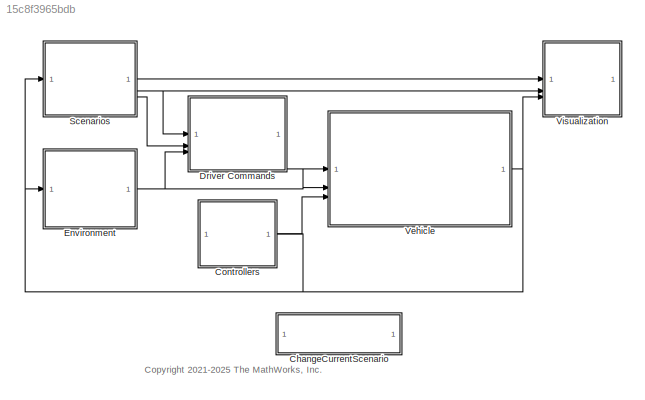
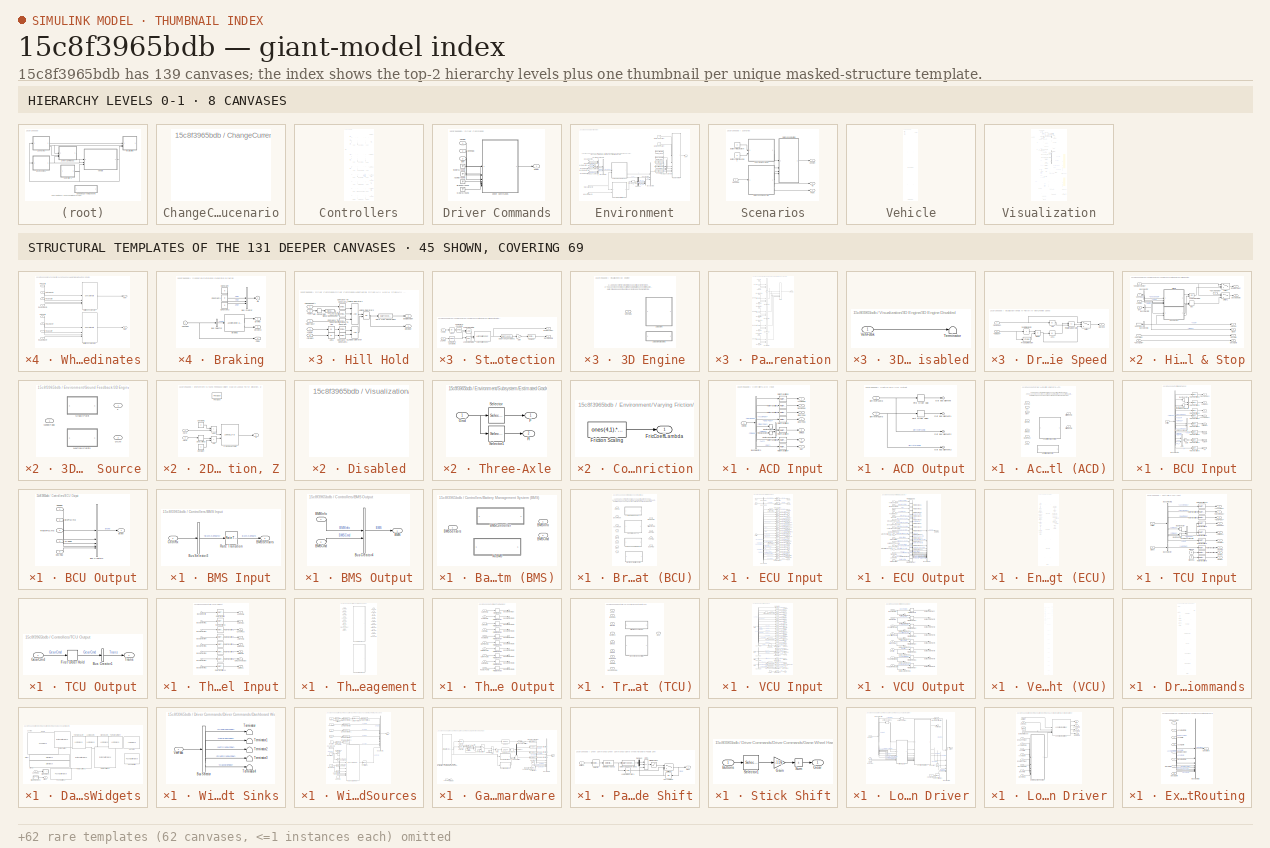
[diagram: thumbnail index - top-2 hierarchy levels (8 canvases) + 45 structural-template representatives of the remaining 131 canvases]
MODEL slx_15c8f3965bdb
KIND model
CONFIG StartFcn = %tic
CONFIG StopFcn = %toc
WORKSPACE source: mxarray member
WORKSPACE ExtDrvCmdsSwitch: Simulink.Parameter (value not decoded)
WORKSPACE ExtDrvRefSwitch: Simulink.Parameter (value not decoded)
WORKSPACE ExtEnvSwitch: Simulink.Parameter (value not decoded)
WORKSPACE ExtGndSwitch: Simulink.Parameter (value not decoded)
BLOCK [SubSystem] ChangeCurrentScenario
  OpenFcn = simstopped = autoblkschecksimstopped(gcb);\nif simstopped\nopen_system(gcb,'mask');\nautoblkVVCSetupScenarioMask();\nend
BLOCK [SubSystem] Controllers
  PortSchema = {"entries":[{"content":{"sides":[{"content":{"connectorIds":[]},"type":"ConnectorPlacement.EquallySpacedRectSide","uuid":"a925dd9c-6905-4c67-a62c-b22bb69d2bd6"},{"content":{"connectorIds":["Out1","In1"],"side":"RIGHT"},"type":"ConnectorPlacement.EquallySpacedRectSide","uuid":"9930ed3e-43a4-46d4-b9ee-7ed64fae32ef"},{"content":{"connectorIds":[],"side":"TOP"},"type":"ConnectorPlacement.EquallySpaced...<+241ch>
BLOCK [SubSystem] Controllers/ACD Input
BLOCK [Outport] Controllers/ACD Input/Acc
  Port = 6
BLOCK [Outport] Controllers/ACD Input/AccelFdbk
BLOCK [BusSelector] Controllers/ACD Input/Bus Selector3
  OutputSignals = Driver.AccelFdbk,Driver.DecelFdbk,Driver.SteerFdbk,Driver.GearFdbk,FrntWheels.Wheels.Omega,RearWheels.Wheels.Omega,IMU.Acc,IMU.pqr
BLOCK [BusToVector] Controllers/ACD Input/Bus to Vector
BLOCK [BusToVector] Controllers/ACD Input/Bus to Vector1
BLOCK [Inport] Controllers/ACD Input/CntrlRx
BLOCK [Outport] Controllers/ACD Input/DecelFdbk
  Port = 2
BLOCK [Outport] Controllers/ACD Input/GearFdbk
  Port = 4
BLOCK [Outport] Controllers/ACD Input/Omega
  Port = 5
BLOCK [RateTransition] Controllers/ACD Input/Rate Transition1
  Deterministic = off
BLOCK [RateTransition] Controllers/ACD Input/Rate Transition2
  Deterministic = off
BLOCK [RateTransition] Controllers/ACD Input/Rate Transition3
  Deterministic = off
BLOCK [RateTransition] Controllers/ACD Input/Rate Transition4
  Deterministic = off
BLOCK [RateTransition] Controllers/ACD Input/Rate Transition5
  Deterministic = off
BLOCK [RateTransition] Controllers/ACD Input/Rate Transition6
  Deterministic = off
BLOCK [RateTransition] Controllers/ACD Input/Rate Transition7
  Deterministic = off
BLOCK [Outport] Controllers/ACD Input/SteerFdbk
  Port = 3
BLOCK [Concatenate] Controllers/ACD Input/Vector Concatenate
BLOCK [Outport] Controllers/ACD Input/pqr
  Port = 7
BLOCK [SubSystem] Controllers/ACD Output
BLOCK [Inport] Controllers/ACD Output/DiffrntlPrsCmd
BLOCK [Inport] Controllers/ACD Output/DiffrntlTrqCmd
  Port = 2
BLOCK [FirstOrderHold] Controllers/ACD Output/First Order Hold
  ErrorTolerance = inf
BLOCK [FirstOrderHold] Controllers/ACD Output/First Order Hold1
  ErrorTolerance = inf
BLOCK [Outport] Controllers/ACD Output/Out Bus Element
BLOCK [Outport] Controllers/ACD Output/Out Bus Element1
BLOCK [Outport] Controllers/ACD Output/Out Bus Element2
  Port = 2
BLOCK [Outport] Controllers/ACD Output/Out Bus Element3
  Port = 2
BLOCK [SubSystem] Controllers/Active Differential Control (ACD)
  LabelModeActiveChoice = NoDifferentialControl
  Variant = on
  VariantChoicesSpecifier = {'NoDifferentialControl', 'RearDifferentialController'}
  VariantControlMode = label
BLOCK [Inport] Controllers/Active Differential Control (ACD)/Accel
  PortDimensions = 1
BLOCK [Inport] Controllers/Active Differential Control (ACD)/BrkCmd
  Port = 2
  PortDimensions = 1
BLOCK [Outport] Controllers/Active Differential Control (ACD)/DiffrntlPrsCmd
  VectorParamsAs1DForOutWhenUnconnected = off
BLOCK [Outport] Controllers/Active Differential Control (ACD)/DiffrntlTrqCmd
  Port = 2
  VectorParamsAs1DForOutWhenUnconnected = off
BLOCK [Inport] Controllers/Active Differential Control (ACD)/GearFdbk
  Port = 4
BLOCK [ModelReference] Controllers/Active Differential Control (ACD)/NoDifferentialControl
  ModelNameDialog = NoDifferentialControl
  ModelReferenceVersion = 3.0
  VariantControl = NoDifferentialControl
BLOCK [Inport] Controllers/Active Differential Control (ACD)/Omega
  Port = 5
  PortDimensions = 4
  Unit = rad/s
BLOCK [ModelReference] Controllers/Active Differential Control (ACD)/RearDifferentialController
  ModelNameDialog = RearDifferentialController
  ModelReferenceVersion = 7.0
  VariantControl = RearDifferentialController
BLOCK [Inport] Controllers/Active Differential Control (ACD)/Steer
  Port = 3
BLOCK [Inport] Controllers/Active Differential Control (ACD)/axayaz
  Port = 6
BLOCK [Inport] Controllers/Active Differential Control (ACD)/pqr
  Port = 7
BLOCK [SubSystem] Controllers/BCU Input
BLOCK [Outport] Controllers/BCU Input/<Acc>
  Port = 4
BLOCK [Outport] Controllers/BCU Input/<AccelFdbk>
  Port = 3
BLOCK [Outport] Controllers/BCU Input/<BrkPrs>
  Port = 5
BLOCK [Outport] Controllers/BCU Input/<DecelFdbk>
BLOCK [Outport] Controllers/BCU Input/<Omega>
  Port = 2
BLOCK [Outport] Controllers/BCU Input/<Steer>
  Port = 7
BLOCK [Outport] Controllers/BCU Input/<r>
  Port = 8
BLOCK [Outport] Controllers/BCU Input/<xdot>
  Port = 6
BLOCK [Sum] Controllers/BCU Input/Add
  IconShape = rectangular
BLOCK [BusSelector] Controllers/BCU Input/Bus Selector
  OutputSignals = Driver.DecelFdbk,FrntWheels.Wheels.Omega,RearWheels.Wheels.Omega,Body.BdyFrm.Cg.Acc.xddot,Driver.AccelFdbk,FrntWheels.Wheels.BrkPrs,RearWheels.Wheels.BrkPrs,Body.BdyFrm.Cg.Vel.xdot,Steering.Front.WhlAng.FL,Steering.Front.WhlAng.FR,Body.BdyFrm.Cg.AngVel.r
BLOCK [BusToVector] Controllers/BCU Input/Bus to Vector
BLOCK [BusToVector] Controllers/BCU Input/Bus to Vector1
BLOCK [Inport] Controllers/BCU Input/CntrlRx
BLOCK [Gain] Controllers/BCU Input/Gain
  Gain = 0.5
BLOCK [RateTransition] Controllers/BCU Input/Rate Transition1
  Deterministic = off
BLOCK [RateTransition] Controllers/BCU Input/Rate Transition2
  Deterministic = off
BLOCK [RateTransition] Controllers/BCU Input/Rate Transition3
  Deterministic = off
BLOCK [RateTransition] Controllers/BCU Input/Rate Transition4
  Deterministic = off
BLOCK [RateTransition] Controllers/BCU Input/Rate Transition5
  Deterministic = off
BLOCK [RateTransition] Controllers/BCU Input/Rate Transition6
  Deterministic = off
BLOCK [RateTransition] Controllers/BCU Input/Rate Transition7
  Deterministic = off
BLOCK [RateTransition] Controllers/BCU Input/Rate Transition8
  Deterministic = off
BLOCK [Concatenate] Controllers/BCU Input/Vector Concatenate
BLOCK [Concatenate] Controllers/BCU Input/Vector Concatenate1
BLOCK [SubSystem] Controllers/BCU Output
BLOCK [Inport] Controllers/BCU Output/ABSFlag
BLOCK [Outport] Controllers/BCU Output/Brake
BLOCK [Inport] Controllers/BCU Output/BrkPrsCmd
  Port = 2
BLOCK [BusCreator] Controllers/BCU Output/Bus Creator2
  DisplayOption = bar
  InheritFromInputs = on
  Inputs = 5
BLOCK [Inport] Controllers/BCU Output/ESCFlag
  Port = 5
BLOCK [Inport] Controllers/BCU Output/TCSFlag
  Port = 4
BLOCK [Inport] Controllers/BCU Output/TrlrBrkPrsCmd
  Port = 3
BLOCK [SubSystem] Controllers/BMS Input
BLOCK [Outport] Controllers/BMS Input/BMSSensors
BLOCK [BusSelector] Controllers/BMS Input/Bus Selector3
  OutputSignals = Battery.BMSSensors
BLOCK [Inport] Controllers/BMS Input/CntrlRx
BLOCK [RateTransition] Controllers/BMS Input/Rate Transition
BLOCK [SubSystem] Controllers/BMS Output
BLOCK [Outport] Controllers/BMS Output/BMS
BLOCK [Inport] Controllers/BMS Output/BMSCmd
  Port = 2
BLOCK [Inport] Controllers/BMS Output/BMSInfo
BLOCK [BusCreator] Controllers/BMS Output/Bus Creator4
  DisplayOption = bar
  InheritFromInputs = on
  Inputs = 2
BLOCK [SubSystem] Controllers/Battery Management System (BMS)
  LabelModeActiveChoice = NoBMS
  Variant = on
  VariantChoicesSpecifier = {'BMSController', 'NoBMS'}
  VariantControlMode = label
BLOCK [Outport] Controllers/Battery Management System (BMS)/BMSCmd
  Port = 2
BLOCK [ModelReference] Controllers/Battery Management System (BMS)/BMSController
  ModelNameDialog = BMSController.slx
  ModelReferenceVersion = 11.0
  VariantControl = BMSController
BLOCK [Outport] Controllers/Battery Management System (BMS)/BMSInfo
BLOCK [Inport] Controllers/Battery Management System (BMS)/BMSSensors
BLOCK [ModelReference] Controllers/Battery Management System (BMS)/NoBMS
  ModelNameDialog = NoBMS
  ModelReferenceVersion = 3.0
  VariantControl = NoBMS
BLOCK [SubSystem] Controllers/Brake Control Unit (BCU)
  LabelModeActiveChoice = OpenLoopBraking
  Variant = on
  VariantChoicesSpecifier = {'BangBangAbs', 'FiveStateAbsTcs', 'OpenLoopBraking', 'ElectronicStabilityControl'}
  VariantControlMode = label
BLOCK [Outport] Controllers/Brake Control Unit (BCU)/ABSFlag
  VectorParamsAs1DForOutWhenUnconnected = off
BLOCK [Inport] Controllers/Brake Control Unit (BCU)/Acc
  Port = 4
BLOCK [Inport] Controllers/Brake Control Unit (BCU)/AccelFdbk
  Port = 3
BLOCK [ModelReference] Controllers/Brake Control Unit (BCU)/BangBangAbs
  ModelNameDialog = BangBangAbs
  ModelReferenceVersion = 7.0
  VariantControl = BangBangAbs
BLOCK [Inport] Controllers/Brake Control Unit (BCU)/BrkPrs
  Port = 5
BLOCK [Outport] Controllers/Brake Control Unit (BCU)/BrkPrsCmd
  Port = 2
  VectorParamsAs1DForOutWhenUnconnected = off
BLOCK [Inport] Controllers/Brake Control Unit (BCU)/DecelFdbk
BLOCK [Outport] Controllers/Brake Control Unit (BCU)/ESCFlag
  Port = 5
  VectorParamsAs1DForOutWhenUnconnected = off
BLOCK [ModelReference] Controllers/Brake Control Unit (BCU)/ElectronicStabilityControl
  ModelNameDialog = ElectronicStabilityControl
  ModelReferenceVersion = 7.0
  VariantControl = ElectronicStabilityControl
BLOCK [ModelReference] Controllers/Brake Control Unit (BCU)/FiveStateAbsTcs
  ModelNameDialog = FiveStateAbsTcs
  ModelReferenceVersion = 7.0
  VariantControl = FiveStateAbsTcs
BLOCK [Inport] Controllers/Brake Control Unit (BCU)/Omega
  Port = 2
BLOCK [ModelReference] Controllers/Brake Control Unit (BCU)/OpenLoopBraking
  ModelNameDialog = OpenLoopBraking
  ModelReferenceVersion = 7.0
  VariantControl = OpenLoopBraking
BLOCK [Inport] Controllers/Brake Control Unit (BCU)/Steer
  Port = 7
BLOCK [Outport] Controllers/Brake Control Unit (BCU)/TCSFlag
  Port = 4
  VectorParamsAs1DForOutWhenUnconnected = off
BLOCK [Outport] Controllers/Brake Control Unit (BCU)/TrlrBrkPrsCmd
  Port = 3
  VectorParamsAs1DForOutWhenUnconnected = off
BLOCK [Inport] Controllers/Brake Control Unit (BCU)/r
  Port = 8
BLOCK [Inport] Controllers/Brake Control Unit (BCU)/xdot
  Port = 6
BLOCK [Outport] Controllers/Bus Element Out
BLOCK [Outport] Controllers/Bus Element Out1
BLOCK [Outport] Controllers/Bus Element Out2
BLOCK [Outport] Controllers/Bus Element Out3
BLOCK [Outport] Controllers/Bus Element Out4
BLOCK [Outport] Controllers/BusElementOut
BLOCK [Outport] Controllers/BusElementOut1
BLOCK [Inport] Controllers/CntrlRx
BLOCK [SubSystem] Controllers/ECU Input
BLOCK [Outport] Controllers/ECU Input/ABSFlag
  Port = 24
BLOCK [Outport] Controllers/ECU Input/Accel
  Port = 23
BLOCK [Outport] Controllers/ECU Input/Afr
  Port = 14
BLOCK [Outport] Controllers/ECU Input/Baro
  Port = 17
BLOCK [Inport] Controllers/ECU Input/Brake
  Port = 3
BLOCK [BusSelector] Controllers/ECU Input/Bus Selector
  OutputSignals = EngTrqCmd
BLOCK [BusSelector] Controllers/ECU Input/Bus Selector1
  OutputSignals = ABSFlag
BLOCK [BusSelector] Controllers/ECU Input/Bus Selector2
  OutputSignals = Engine.EngSpdOut,Engine.Map,Engine.Mat,Engine.ThrPosPct,Engine.WgAreaPct,Engine.IntkCamPhase,Engine.ExhCamPhase,Engine.TurboRackPos,Engine.EgrVlvAreaPct,Engine.VarCompRatioPos,Engine.IntkVlvLift,Engine.VarIntkRunLen,Engine.Afr,Engine.IntkSwirlVlvPos,Engine.TurboSpd,Env.BaroPress,Driver.IgnFdbk,Engine.Iat,Engine.Ect,Engine.EgrVlvDeltaPrs,Engine.EgrVlvInTemp,Driver.AccelFdbk
BLOCK [Inport] Controllers/ECU Input/CntrlRx
BLOCK [Outport] Controllers/ECU Input/Ect
  Port = 20
BLOCK [Outport] Controllers/ECU Input/EgrVlvAreaPct
  Port = 10
BLOCK [Outport] Controllers/ECU Input/EgrVlvDeltaPrs
  Port = 21
BLOCK [Outport] Controllers/ECU Input/EgrVlvInTemp
  Port = 22
BLOCK [Outport] Controllers/ECU Input/EngSpd
  Port = 2
BLOCK [Outport] Controllers/ECU Input/ExhCamPhase
  Port = 8
BLOCK [Outport] Controllers/ECU Input/Iat
  Port = 19
BLOCK [Outport] Controllers/ECU Input/IgSw
  Port = 18
BLOCK [Outport] Controllers/ECU Input/IntkCamPhase
  Port = 7
BLOCK [Outport] Controllers/ECU Input/IntkSwirlVlvPos
  Port = 15
BLOCK [Outport] Controllers/ECU Input/IntkVlvLift
  Port = 12
BLOCK [Outport] Controllers/ECU Input/Map
  Port = 3
BLOCK [Outport] Controllers/ECU Input/Mat
  Port = 4
BLOCK [RateTransition] Controllers/ECU Input/Rate Transition
  Deterministic = off
BLOCK [RateTransition] Controllers/ECU Input/Rate Transition1
  Deterministic = off
BLOCK [RateTransition] Controllers/ECU Input/Rate Transition10
  Deterministic = off
BLOCK [RateTransition] Controllers/ECU Input/Rate Transition11
  Deterministic = off
BLOCK [RateTransition] Controllers/ECU Input/Rate Transition12
  Deterministic = off
BLOCK [RateTransition] Controllers/ECU Input/Rate Transition13
  Deterministic = off
BLOCK [RateTransition] Controllers/ECU Input/Rate Transition14
  Deterministic = off
BLOCK [RateTransition] Controllers/ECU Input/Rate Transition15
  Deterministic = off
BLOCK [RateTransition] Controllers/ECU Input/Rate Transition16
  Deterministic = off
BLOCK [RateTransition] Controllers/ECU Input/Rate Transition17
  Deterministic = off
BLOCK [RateTransition] Controllers/ECU Input/Rate Transition18
  Deterministic = off
BLOCK [RateTransition] Controllers/ECU Input/Rate Transition19
  Deterministic = off
BLOCK [RateTransition] Controllers/ECU Input/Rate Transition2
  Deterministic = off
BLOCK [RateTransition] Controllers/ECU Input/Rate Transition20
  Deterministic = off
BLOCK [RateTransition] Controllers/ECU Input/Rate Transition21
  Deterministic = off
BLOCK [RateTransition] Controllers/ECU Input/Rate Transition22
  Deterministic = off
BLOCK [RateTransition] Controllers/ECU Input/Rate Transition23
  Deterministic = off
BLOCK [RateTransition] Controllers/ECU Input/Rate Transition3
  Deterministic = off
BLOCK [RateTransition] Controllers/ECU Input/Rate Transition4
  Deterministic = off
BLOCK [RateTransition] Controllers/ECU Input/Rate Transition5
  Deterministic = off
BLOCK [RateTransition] Controllers/ECU Input/Rate Transition6
  Deterministic = off
BLOCK [RateTransition] Controllers/ECU Input/Rate Transition7
  Deterministic = off
BLOCK [RateTransition] Controllers/ECU Input/Rate Transition8
  Deterministic = off
BLOCK [RateTransition] Controllers/ECU Input/Rate Transition9
  Deterministic = off
BLOCK [Outport] Controllers/ECU Input/ThrPosPct
  Port = 5
BLOCK [Outport] Controllers/ECU Input/TrqCmd
BLOCK [Outport] Controllers/ECU Input/TurboRackPos
  Port = 9
BLOCK [Outport] Controllers/ECU Input/TurboSpd
  Port = 16
BLOCK [UnitConversion] Controllers/ECU Input/Unit Conversion
BLOCK [UnitConversion] Controllers/ECU Input/Unit Conversion1
BLOCK [Outport] Controllers/ECU Input/VarCompRatioPos
  Port = 11
BLOCK [Outport] Controllers/ECU Input/VarIntkRunLen
  Port = 13
BLOCK [Inport] Controllers/ECU Input/Vcu
  Port = 2
BLOCK [Outport] Controllers/ECU Input/WgAreaPct
  Port = 6
BLOCK [SubSystem] Controllers/ECU Output
BLOCK [BusCreator] Controllers/ECU Output/Bus Creator
  DisplayOption = bar
  InheritFromInputs = on
  Inputs = 17
BLOCK [Inport] Controllers/ECU Output/ClsdLpFuelMult
  Port = 13
BLOCK [Inport] Controllers/ECU Output/EgrVlvAreaPctCmd
  Port = 9
BLOCK [Outport] Controllers/ECU Output/Engine
BLOCK [Inport] Controllers/ECU Output/EstIntkPortFlw
  Port = 17
BLOCK [Inport] Controllers/ECU Output/ExhCamPhaseCmd
  Port = 7
BLOCK [FirstOrderHold] Controllers/ECU Output/First Order Hold1
  ErrorTolerance = inf
BLOCK [FirstOrderHold] Controllers/ECU Output/First Order Hold10
  ErrorTolerance = inf
BLOCK [FirstOrderHold] Controllers/ECU Output/First Order Hold11
  ErrorTolerance = inf
BLOCK [FirstOrderHold] Controllers/ECU Output/First Order Hold12
  ErrorTolerance = inf
BLOCK [FirstOrderHold] Controllers/ECU Output/First Order Hold13
  ErrorTolerance = inf
BLOCK [FirstOrderHold] Controllers/ECU Output/First Order Hold14
  ErrorTolerance = inf
BLOCK [FirstOrderHold] Controllers/ECU Output/First Order Hold15
  ErrorTolerance = inf
BLOCK [FirstOrderHold] Controllers/ECU Output/First Order Hold16
  ErrorTolerance = inf
BLOCK [FirstOrderHold] Controllers/ECU Output/First Order Hold17
  ErrorTolerance = inf
BLOCK [FirstOrderHold] Controllers/ECU Output/First Order Hold2
  ErrorTolerance = inf
BLOCK [FirstOrderHold] Controllers/ECU Output/First Order Hold3
  ErrorTolerance = inf
BLOCK [FirstOrderHold] Controllers/ECU Output/First Order Hold4
  ErrorTolerance = inf
BLOCK [FirstOrderHold] Controllers/ECU Output/First Order Hold5
  ErrorTolerance = inf
BLOCK [FirstOrderHold] Controllers/ECU Output/First Order Hold6
  ErrorTolerance = inf
BLOCK [FirstOrderHold] Controllers/ECU Output/First Order Hold7
  ErrorTolerance = inf
BLOCK [FirstOrderHold] Controllers/ECU Output/First Order Hold8
  ErrorTolerance = inf
BLOCK [FirstOrderHold] Controllers/ECU Output/First Order Hold9
  ErrorTolerance = inf
BLOCK [Inport] Controllers/ECU Output/FuelMainSoi
  Port = 4
BLOCK [Inport] Controllers/ECU Output/InjPw
  Port = 3
BLOCK [Inport] Controllers/ECU Output/IntkCamPhaseCmd
  Port = 6
BLOCK [Inport] Controllers/ECU Output/IntkSwirlVlvPosCmd
  Port = 14
BLOCK [Inport] Controllers/ECU Output/IntkVlvLiftCmd
  Port = 11
BLOCK [Inport] Controllers/ECU Output/LoadCmd
  Port = 16
BLOCK [Inport] Controllers/ECU Output/SpkAdv
  Port = 5
BLOCK [Inport] Controllers/ECU Output/ThrPosPctCmd
BLOCK [Inport] Controllers/ECU Output/TrqCmdISC
  Port = 15
BLOCK [Inport] Controllers/ECU Output/TurboRackPosCmd
  Port = 8
BLOCK [Inport] Controllers/ECU Output/VarCompRatioPosCmd
  Port = 10
BLOCK [Inport] Controllers/ECU Output/VarIntkRunLenCmd
  Port = 12
BLOCK [Inport] Controllers/ECU Output/WgAreaPctCmd
  Port = 2
BLOCK [SubSystem] Controllers/Engine Control Unit (ECU)
  LabelModeActiveChoice = SimpleECU
  Variant = on
  VariantChoicesSpecifier = {'CiEngineController', 'NoEngineController', 'SiEngineController', 'SimpleECU'}
  VariantControlMode = label
BLOCK [Inport] Controllers/Engine Control Unit (ECU)/ABSFlag
  Port = 24
BLOCK [Inport] Controllers/Engine Control Unit (ECU)/Accel
  Port = 23
BLOCK [Inport] Controllers/Engine Control Unit (ECU)/Afr
  Port = 14
BLOCK [Inport] Controllers/Engine Control Unit (ECU)/AmbPrs
  Port = 17
BLOCK [ModelReference] Controllers/Engine Control Unit (ECU)/CiEngineController
  ModelNameDialog = CiEngineController
  ModelReferenceVersion = 12.0
  VariantControl = CiEngineController
BLOCK [Outport] Controllers/Engine Control Unit (ECU)/ClsdLpFuelMult
  Port = 13
  VectorParamsAs1DForOutWhenUnconnected = off
BLOCK [Inport] Controllers/Engine Control Unit (ECU)/Ect
  Port = 20
BLOCK [Inport] Controllers/Engine Control Unit (ECU)/EgrVlvAreaPct
  Port = 10
BLOCK [Outport] Controllers/Engine Control Unit (ECU)/EgrVlvAreaPctCmd
  Port = 9
  VectorParamsAs1DForOutWhenUnconnected = off
BLOCK [Inport] Controllers/Engine Control Unit (ECU)/EgrVlvDeltaPrs
  NameLocation = left
  Port = 21
BLOCK [Inport] Controllers/Engine Control Unit (ECU)/EgrVlvInTemp
  Port = 22
BLOCK [Inport] Controllers/Engine Control Unit (ECU)/EngSpd
  Port = 2
BLOCK [Outport] Controllers/Engine Control Unit (ECU)/EstIntkPortFlw
  Port = 17
  VectorParamsAs1DForOutWhenUnconnected = off
BLOCK [Inport] Controllers/Engine Control Unit (ECU)/ExhCamPhase
  Port = 8
BLOCK [Outport] Controllers/Engine Control Unit (ECU)/ExhCamPhaseCmd
  Port = 7
  VectorParamsAs1DForOutWhenUnconnected = off
BLOCK [Outport] Controllers/Engine Control Unit (ECU)/FuelMainSoi
  Port = 4
  VectorParamsAs1DForOutWhenUnconnected = off
BLOCK [Inport] Controllers/Engine Control Unit (ECU)/Iat
  Port = 19
BLOCK [Inport] Controllers/Engine Control Unit (ECU)/IgSw
  Port = 18
BLOCK [Outport] Controllers/Engine Control Unit (ECU)/InjPw
  Port = 3
  VectorParamsAs1DForOutWhenUnconnected = off
BLOCK [Inport] Controllers/Engine Control Unit (ECU)/IntkCamPhase
  Port = 7
BLOCK [Outport] Controllers/Engine Control Unit (ECU)/IntkCamPhaseCmd
  Port = 6
  VectorParamsAs1DForOutWhenUnconnected = off
BLOCK [Inport] Controllers/Engine Control Unit (ECU)/IntkSwirlVlvPos
  Port = 15
BLOCK [Outport] Controllers/Engine Control Unit (ECU)/IntkSwirlVlvPosCmd
  Port = 14
  VectorParamsAs1DForOutWhenUnconnected = off
BLOCK [Inport] Controllers/Engine Control Unit (ECU)/IntkVlvLift
  Port = 12
BLOCK [Outport] Controllers/Engine Control Unit (ECU)/IntkVlvLiftCmd
  Port = 11
  VectorParamsAs1DForOutWhenUnconnected = off
BLOCK [Outport] Controllers/Engine Control Unit (ECU)/LoadCmd
  Port = 16
  VectorParamsAs1DForOutWhenUnconnected = off
BLOCK [Inport] Controllers/Engine Control Unit (ECU)/Map
  Port = 3
BLOCK [Inport] Controllers/Engine Control Unit (ECU)/Mat
  Port = 4
BLOCK [ModelReference] Controllers/Engine Control Unit (ECU)/NoEngineController
  ModelNameDialog = NoEngineController
  ModelReferenceVersion = 3.0
  VariantControl = NoEngineController
BLOCK [ModelReference] Controllers/Engine Control Unit (ECU)/SiEngineController
  ModelNameDialog = SiEngineController
  ModelReferenceVersion = 11.0
  VariantControl = SiEngineController
BLOCK [ModelReference] Controllers/Engine Control Unit (ECU)/SimpleECU
  ModelNameDialog = SimpleECU
  ModelReferenceVersion = 3.0
  VariantControl = SimpleECU
BLOCK [Outport] Controllers/Engine Control Unit (ECU)/SpkAdv
  Port = 5
  VectorParamsAs1DForOutWhenUnconnected = off
BLOCK [Inport] Controllers/Engine Control Unit (ECU)/ThrPosPct
  Port = 5
BLOCK [Outport] Controllers/Engine Control Unit (ECU)/ThrPosPctCmd
  VectorParamsAs1DForOutWhenUnconnected = off
BLOCK [Inport] Controllers/Engine Control Unit (ECU)/TrqCmd
BLOCK [Outport] Controllers/Engine Control Unit (ECU)/TrqCmdISC
  Port = 15
  VectorParamsAs1DForOutWhenUnconnected = off
BLOCK [Inport] Controllers/Engine Control Unit (ECU)/TurboRackPos
  Port = 9
BLOCK [Outport] Controllers/Engine Control Unit (ECU)/TurboRackPosCmd
  Port = 8
  VectorParamsAs1DForOutWhenUnconnected = off
BLOCK [Inport] Controllers/Engine Control Unit (ECU)/TurboSpd
  Port = 16
  Unit = rpm
BLOCK [Inport] Controllers/Engine Control Unit (ECU)/VarCompRatioPos
  Port = 11
BLOCK [Outport] Controllers/Engine Control Unit (ECU)/VarCompRatioPosCmd
  Port = 10
  VectorParamsAs1DForOutWhenUnconnected = off
BLOCK [Inport] Controllers/Engine Control Unit (ECU)/VarIntkRunLen
  Port = 13
BLOCK [Outport] Controllers/Engine Control Unit (ECU)/VarIntkRunLenCmd
  Port = 12
  VectorParamsAs1DForOutWhenUnconnected = off
BLOCK [Inport] Controllers/Engine Control Unit (ECU)/WgAreaPct
  Port = 6
BLOCK [Outport] Controllers/Engine Control Unit (ECU)/WgAreaPctCmd
  Port = 2
  VectorParamsAs1DForOutWhenUnconnected = off
BLOCK [From] Controllers/From
  GotoTag = Diff
BLOCK [From] Controllers/From1
  GotoTag = Brake
BLOCK [From] Controllers/From2
  GotoTag = Vcu
BLOCK [From] Controllers/From3
  GotoTag = Brake
BLOCK [From] Controllers/From4
  GotoTag = Brake
BLOCK [From] Controllers/From5
  GotoTag = BMS
BLOCK [Goto] Controllers/Goto
  GotoTag = Diff
BLOCK [Goto] Controllers/Goto1
  GotoTag = Brake
BLOCK [Goto] Controllers/Goto2
  GotoTag = Vcu
BLOCK [Goto] Controllers/Goto3
  GotoTag = BMS
BLOCK [SubSystem] Controllers/TCU Input
BLOCK [Outport] Controllers/TCU Input/<AccFdbk>
BLOCK [Outport] Controllers/TCU Input/<DecelFdbk>
  Port = 2
BLOCK [Outport] Controllers/TCU Input/<EngSpd>
  Port = 4
BLOCK [Outport] Controllers/TCU Input/<GearFdbk>
  Port = 3
BLOCK [Outport] Controllers/TCU Input/<Omega>
  Port = 5
BLOCK [Outport] Controllers/TCU Input/<Vehicle>
  Port = 6
BLOCK [Outport] Controllers/TCU Input/ABSFlag
  Port = 7
BLOCK [Inport] Controllers/TCU Input/Brake
  Port = 2
BLOCK [BusSelector] Controllers/TCU Input/Bus Selector
  OutputSignals = ABSFlag
BLOCK [BusSelector] Controllers/TCU Input/Bus Selector1
  OutputSignals = Driver.AccelFdbk,Driver.DecelFdbk,Driver.GearFdbk,Trans.Info.Eng.EngSpd,FrntWheels.Wheels.Omega,RearWheels.Wheels.Omega,Body.BdyFrm.Cg.Vel.xdot
BLOCK [BusToVector] Controllers/TCU Input/Bus to Vector
BLOCK [BusToVector] Controllers/TCU Input/Bus to Vector1
BLOCK [Inport] Controllers/TCU Input/CntrlRx
BLOCK [Outport] Controllers/TCU Input/DnReq
  Port = 9
BLOCK [Ground] Controllers/TCU Input/Ground
BLOCK [Ground] Controllers/TCU Input/Ground1
BLOCK [RateTransition] Controllers/TCU Input/Rate Transition1
  Deterministic = off
BLOCK [RateTransition] Controllers/TCU Input/Rate Transition2
  Deterministic = off
BLOCK [RateTransition] Controllers/TCU Input/Rate Transition23
  Deterministic = off
BLOCK [RateTransition] Controllers/TCU Input/Rate Transition3
  Deterministic = off
BLOCK [RateTransition] Controllers/TCU Input/Rate Transition4
  Deterministic = off
BLOCK [RateTransition] Controllers/TCU Input/Rate Transition5
  Deterministic = off
BLOCK [RateTransition] Controllers/TCU Input/Rate Transition6
  Deterministic = off
BLOCK [RateTransition] Controllers/TCU Input/Rate Transition7
  Deterministic = off
BLOCK [RateTransition] Controllers/TCU Input/Rate Transition8
  Deterministic = off
BLOCK [Outport] Controllers/TCU Input/UpReq
  Port = 8
BLOCK [Concatenate] Controllers/TCU Input/Vector Concatenate
BLOCK [SubSystem] Controllers/TCU Output
BLOCK [BusCreator] Controllers/TCU Output/Bus Creator1
  DisplayOption = bar
  InheritFromInputs = on
  Inputs = 1
BLOCK [FirstOrderHold] Controllers/TCU Output/First Order Hold
  ErrorTolerance = inf
BLOCK [Inport] Controllers/TCU Output/GearCmd
BLOCK [Outport] Controllers/TCU Output/Trans
BLOCK [SubSystem] Controllers/Thermal Input
BLOCK [Outport] Controllers/Thermal Input/AmbTemp
  Port = 3
BLOCK [Outport] Controllers/Thermal Input/BattTemp
  Port = 6
BLOCK [Inport] Controllers/Thermal Input/Bus Element In
BLOCK [Inport] Controllers/Thermal Input/Bus Element In1
BLOCK [Inport] Controllers/Thermal Input/Bus Element In2
BLOCK [Inport] Controllers/Thermal Input/Bus Element In4
BLOCK [Inport] Controllers/Thermal Input/Bus Element In5
BLOCK [Inport] Controllers/Thermal Input/Bus Element In6
BLOCK [Inport] Controllers/Thermal Input/Bus Element In7
BLOCK [Inport] Controllers/Thermal Input/BusElementIn2
BLOCK [Outport] Controllers/Thermal Input/CellTemps
  Port = 2
BLOCK [Outport] Controllers/Thermal Input/ChlrPress
  Port = 8
BLOCK [Outport] Controllers/Thermal Input/CondPress
  Port = 4
BLOCK [Outport] Controllers/Thermal Input/CoolTemp
BLOCK [Outport] Controllers/Thermal Input/EMCoolTempOut
  Port = 7
BLOCK [Outport] Controllers/Thermal Input/MotorTemp
  Port = 5
BLOCK [RateTransition] Controllers/Thermal Input/Rate Transition
BLOCK [RateTransition] Controllers/Thermal Input/Rate Transition1
BLOCK [RateTransition] Controllers/Thermal Input/Rate Transition11
BLOCK [RateTransition] Controllers/Thermal Input/Rate Transition3
BLOCK [RateTransition] Controllers/Thermal Input/Rate Transition4
BLOCK [RateTransition] Controllers/Thermal Input/Rate Transition5
BLOCK [RateTransition] Controllers/Thermal Input/Rate Transition6
BLOCK [RateTransition] Controllers/Thermal Input/Rate Transition8
BLOCK [SubSystem] Controllers/Thermal Management
  LabelModeActiveChoice = NoThermalControl
  Variant = on
  VariantChoicesSpecifier = {'ThermalControl','NoThermalControl'}
  VariantControlMode = label
BLOCK [Inport] Controllers/Thermal Management/AmbTemp
  Port = 3
  Unit = K
BLOCK [Outport] Controllers/Thermal Management/BattPmpCmd
  Port = 7
BLOCK [Inport] Controllers/Thermal Management/BattTemp
  Port = 6
BLOCK [Inport] Controllers/Thermal Management/CellTemps
  Port = 2
BLOCK [Outport] Controllers/Thermal Management/ChlrByPCmd
  Port = 8
BLOCK [Inport] Controllers/Thermal Management/ChlrPress
  Port = 8
BLOCK [Outport] Controllers/Thermal Management/CmpCmd
  Port = 3
BLOCK [Inport] Controllers/Thermal Management/CondPress
  Port = 4
BLOCK [Inport] Controllers/Thermal Management/CoolTemp
BLOCK [Inport] Controllers/Thermal Management/EMCoolTempOut
  Port = 7
BLOCK [Outport] Controllers/Thermal Management/FanCmd
  Port = 4
BLOCK [Outport] Controllers/Thermal Management/HeaterCmd
  Port = 5
BLOCK [Outport] Controllers/Thermal Management/MotPmpCmd
  Port = 6
BLOCK [Inport] Controllers/Thermal Management/MotorTemp
  Port = 5
BLOCK [ModelReference] Controllers/Thermal Management/NoThermalControl
  ModelNameDialog = NoThermalControl
  ModelReferenceVersion = 5.0
  VariantControl = NoThermalControl
BLOCK [Outport] Controllers/Thermal Management/PumpCmd
  Port = 2
BLOCK [Outport] Controllers/Thermal Management/RadByPCmd
  Port = 10
BLOCK [Outport] Controllers/Thermal Management/SerParCmd
  Port = 9
BLOCK [ModelReference] Controllers/Thermal Management/ThermalControl
  ModelNameDialog = ThermalControl
  ModelReferenceVersion = 5.0
  VariantControl = ThermalControl
BLOCK [Outport] Controllers/Thermal Management/ValveCmd
BLOCK [SubSystem] Controllers/Thermal Output
BLOCK [Inport] Controllers/Thermal Output/BattPmpCmd
  Port = 7
BLOCK [Outport] Controllers/Thermal Output/Bus Element Out
BLOCK [Outport] Controllers/Thermal Output/Bus Element Out1
BLOCK [Outport] Controllers/Thermal Output/Bus Element Out2
BLOCK [Outport] Controllers/Thermal Output/Bus Element Out3
BLOCK [Outport] Controllers/Thermal Output/Bus Element Out4
BLOCK [Outport] Controllers/Thermal Output/Bus Element Out5
BLOCK [Outport] Controllers/Thermal Output/Bus Element Out6
BLOCK [Outport] Controllers/Thermal Output/Bus Element Out7
BLOCK [Outport] Controllers/Thermal Output/Bus Element Out8
BLOCK [Outport] Controllers/Thermal Output/Bus Element Out9
BLOCK [Inport] Controllers/Thermal Output/ChlrPyPCmd
  Port = 8
BLOCK [Inport] Controllers/Thermal Output/CmpCmd
  Port = 3
BLOCK [Inport] Controllers/Thermal Output/FanCmd
  Port = 4
BLOCK [FirstOrderHold] Controllers/Thermal Output/First Order Hold
  ErrorTolerance = inf
BLOCK [FirstOrderHold] Controllers/Thermal Output/First Order Hold1
  ErrorTolerance = inf
BLOCK [FirstOrderHold] Controllers/Thermal Output/First Order Hold2
  ErrorTolerance = inf
BLOCK [FirstOrderHold] Controllers/Thermal Output/First Order Hold3
  ErrorTolerance = inf
BLOCK [FirstOrderHold] Controllers/Thermal Output/First Order Hold4
  ErrorTolerance = inf
BLOCK [FirstOrderHold] Controllers/Thermal Output/First Order Hold5
  ErrorTolerance = inf
BLOCK [FirstOrderHold] Controllers/Thermal Output/First Order Hold6
  ErrorTolerance = inf
BLOCK [FirstOrderHold] Controllers/Thermal Output/First Order Hold7
  ErrorTolerance = inf
BLOCK [FirstOrderHold] Controllers/Thermal Output/First Order Hold8
  ErrorTolerance = inf
BLOCK [FirstOrderHold] Controllers/Thermal Output/First Order Hold9
  ErrorTolerance = inf
BLOCK [Inport] Controllers/Thermal Output/HeaterCmd
  Port = 5
BLOCK [Inport] Controllers/Thermal Output/MotPmpCmd
  Port = 6
BLOCK [Inport] Controllers/Thermal Output/PumpCmd
  Port = 2
BLOCK [Inport] Controllers/Thermal Output/RadByPCmd
  Port = 10
BLOCK [Inport] Controllers/Thermal Output/SerParCmd
  Port = 9
BLOCK [Inport] Controllers/Thermal Output/ValveCmd
BLOCK [SubSystem] Controllers/Transmission Control Unit (TCU)
  LabelModeActiveChoice = TransmissionController
  Variant = on
  VariantChoicesSpecifier = {'DriverPassThrough', 'TransmissionController'}
  VariantControl = Variant1
  VariantControlMode = label
BLOCK [Outport] Controllers/Transmission Control Unit (TCU)/ Gear
  VectorParamsAs1DForOutWhenUnconnected = off
BLOCK [Inport] Controllers/Transmission Control Unit (TCU)/ABSFlag
  Port = 7
BLOCK [Inport] Controllers/Transmission Control Unit (TCU)/Accel
BLOCK [Inport] Controllers/Transmission Control Unit (TCU)/BrkCmd
  Port = 2
BLOCK [Inport] Controllers/Transmission Control Unit (TCU)/DownReq
  Port = 9
  Unit = rad/s
BLOCK [ModelReference] Controllers/Transmission Control Unit (TCU)/DriverPassThrough
  ModelNameDialog = DriverPassThrough.slx
  ModelReferenceVersion = 11.0
  VariantControl = DriverPassThrough
BLOCK [Inport] Controllers/Transmission Control Unit (TCU)/EngSpd
  Port = 4
BLOCK [Inport] Controllers/Transmission Control Unit (TCU)/GearReq
  Port = 3
BLOCK [Inport] Controllers/Transmission Control Unit (TCU)/Omega
  Port = 5
  Unit = rad/s
BLOCK [ModelReference] Controllers/Transmission Control Unit (TCU)/TransmissionController
  ModelNameDialog = TransmissionController
  ModelReferenceVersion = 11.0
  VariantControl = TransmissionController
BLOCK [Inport] Controllers/Transmission Control Unit (TCU)/UpReq
  Port = 8
BLOCK [Inport] Controllers/Transmission Control Unit (TCU)/VehSpdFdbk
  Port = 6
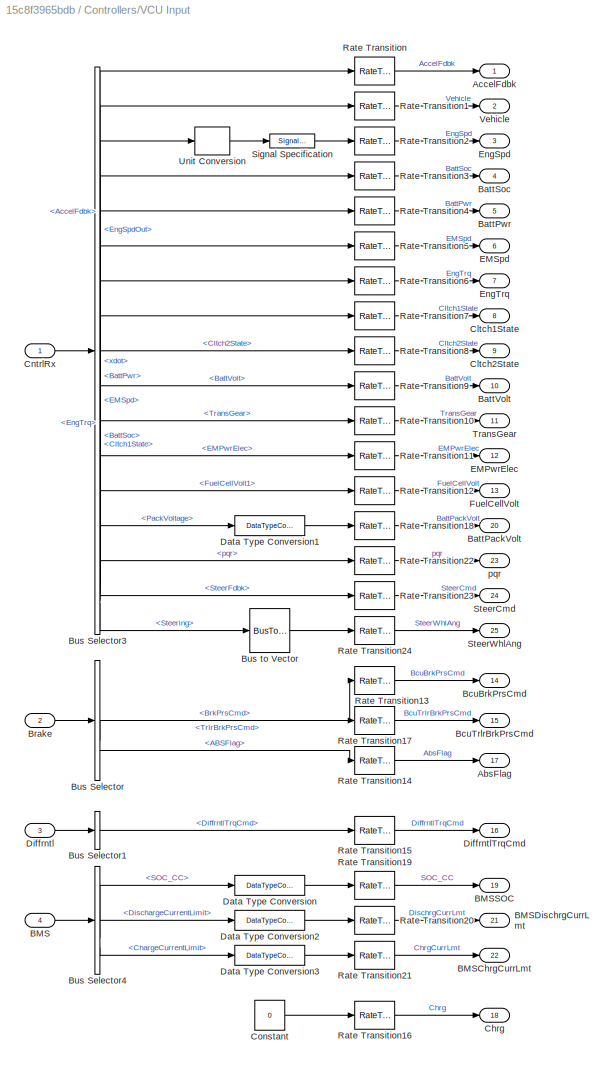
BLOCK [SubSystem] Controllers/VCU Input
BLOCK [Outport] Controllers/VCU Input/AbsFlag
  Port = 17
BLOCK [Outport] Controllers/VCU Input/AccelFdbk
BLOCK [Inport] Controllers/VCU Input/BMS
  Port = 4
BLOCK [Outport] Controllers/VCU Input/BMSChrgCurrLmt
  Port = 22
BLOCK [Outport] Controllers/VCU Input/BMSDischrgCurrLmt
  Port = 21
BLOCK [Outport] Controllers/VCU Input/BMSSOC
  Port = 19
BLOCK [Outport] Controllers/VCU Input/BattPackVolt
  Port = 20
BLOCK [Outport] Controllers/VCU Input/BattPwr
  Port = 5
BLOCK [Outport] Controllers/VCU Input/BattSoc
  Port = 4
BLOCK [Outport] Controllers/VCU Input/BattVolt
  Port = 10
BLOCK [Outport] Controllers/VCU Input/BcuBrkPrsCmd
  Port = 14
BLOCK [Outport] Controllers/VCU Input/BcuTrlrBrkPrsCmd
  Port = 15
BLOCK [Inport] Controllers/VCU Input/Brake
  Port = 2
BLOCK [BusSelector] Controllers/VCU Input/Bus Selector
  OutputSignals = BrkPrsCmd,TrlrBrkPrsCmd,ABSFlag
BLOCK [BusSelector] Controllers/VCU Input/Bus Selector1
  OutputSignals = DiffrntlTrqCmd
BLOCK [BusSelector] Controllers/VCU Input/Bus Selector3
  OutputSignals = Driver.AccelFdbk,Body.BdyFrm.Cg.Vel.xdot,Engine.EngSpdOut,Battery.BattInfo.BattSoc,Battery.BattInfo.BattPwr,EM.EMSpd,Engine.EngTrq,Trans.Cltch1State,Trans.Cltch2State,Battery.BattInfo.BattVolt,Trans.Info.Trans.TransGear,EM.EMPwrElec,FuelCell.FuelCellVolt1,Battery.BMSSensors.PackVoltage,IMU.pqr,Driver.SteerFdbk,Steering
BLOCK [BusSelector] Controllers/VCU Input/Bus Selector4
  OutputSignals = BMSInfo.SOC.SOC_CC,BMSCmd.CurrentLimitsBus.DischargeCurrentLimit,BMSCmd.CurrentLimitsBus.ChargeCurrentLimit
BLOCK [BusToVector] Controllers/VCU Input/Bus to Vector
BLOCK [Outport] Controllers/VCU Input/Chrg
  Port = 18
BLOCK [Outport] Controllers/VCU Input/Cltch1State
  Port = 8
BLOCK [Outport] Controllers/VCU Input/Cltch2State
  Port = 9
BLOCK [Inport] Controllers/VCU Input/CntrlRx
BLOCK [Constant] Controllers/VCU Input/Constant
  SampleTime = -1
  Value = 0
BLOCK [DataTypeConversion] Controllers/VCU Input/Data Type Conversion
  RndMeth = Floor
  SaturateOnIntegerOverflow = off
BLOCK [DataTypeConversion] Controllers/VCU Input/Data Type Conversion1
  RndMeth = Floor
  SaturateOnIntegerOverflow = off
BLOCK [DataTypeConversion] Controllers/VCU Input/Data Type Conversion2
  RndMeth = Floor
  SaturateOnIntegerOverflow = off
BLOCK [DataTypeConversion] Controllers/VCU Input/Data Type Conversion3
  RndMeth = Floor
  SaturateOnIntegerOverflow = off
BLOCK [Inport] Controllers/VCU Input/Diffrntl
  Port = 3
BLOCK [Outport] Controllers/VCU Input/DiffrntlTrqCmd
  Port = 16
BLOCK [Outport] Controllers/VCU Input/EMPwrElec
  Port = 12
BLOCK [Outport] Controllers/VCU Input/EMSpd
  Port = 6
BLOCK [Outport] Controllers/VCU Input/EngSpd
  Port = 3
BLOCK [Outport] Controllers/VCU Input/EngTrq
  Port = 7
BLOCK [Outport] Controllers/VCU Input/FuelCellVolt
  Port = 13
BLOCK [RateTransition] Controllers/VCU Input/Rate Transition
  Deterministic = off
BLOCK [RateTransition] Controllers/VCU Input/Rate Transition1
  Deterministic = off
BLOCK [RateTransition] Controllers/VCU Input/Rate Transition10
  Deterministic = off
BLOCK [RateTransition] Controllers/VCU Input/Rate Transition11
  Deterministic = off
BLOCK [RateTransition] Controllers/VCU Input/Rate Transition12
  Deterministic = off
BLOCK [RateTransition] Controllers/VCU Input/Rate Transition13
  Deterministic = off
BLOCK [RateTransition] Controllers/VCU Input/Rate Transition14
  Deterministic = off
BLOCK [RateTransition] Controllers/VCU Input/Rate Transition15
  Deterministic = off
BLOCK [RateTransition] Controllers/VCU Input/Rate Transition16
  Deterministic = off
BLOCK [RateTransition] Controllers/VCU Input/Rate Transition17
  Deterministic = off
BLOCK [RateTransition] Controllers/VCU Input/Rate Transition18
  Deterministic = off
BLOCK [RateTransition] Controllers/VCU Input/Rate Transition19
  Deterministic = off
BLOCK [RateTransition] Controllers/VCU Input/Rate Transition2
  Deterministic = off
BLOCK [RateTransition] Controllers/VCU Input/Rate Transition20
  Deterministic = off
BLOCK [RateTransition] Controllers/VCU Input/Rate Transition21
  Deterministic = off
BLOCK [RateTransition] Controllers/VCU Input/Rate Transition22
  Deterministic = off
BLOCK [RateTransition] Controllers/VCU Input/Rate Transition23
  Deterministic = off
BLOCK [RateTransition] Controllers/VCU Input/Rate Transition24
  Deterministic = off
BLOCK [RateTransition] Controllers/VCU Input/Rate Transition3
  Deterministic = off
BLOCK [RateTransition] Controllers/VCU Input/Rate Transition4
  Deterministic = off
BLOCK [RateTransition] Controllers/VCU Input/Rate Transition5
  Deterministic = off
BLOCK [RateTransition] Controllers/VCU Input/Rate Transition6
  Deterministic = off
BLOCK [RateTransition] Controllers/VCU Input/Rate Transition7
  Deterministic = off
BLOCK [RateTransition] Controllers/VCU Input/Rate Transition8
  Deterministic = off
BLOCK [RateTransition] Controllers/VCU Input/Rate Transition9
  Deterministic = off
BLOCK [SignalSpecification] Controllers/VCU Input/Signal Specification
  Unit = rad/s
BLOCK [Outport] Controllers/VCU Input/SteerCmd
  Port = 24
BLOCK [Outport] Controllers/VCU Input/SteerWhlAng
  Port = 25
BLOCK [Outport] Controllers/VCU Input/TransGear
  Port = 11
BLOCK [UnitConversion] Controllers/VCU Input/Unit Conversion
BLOCK [Outport] Controllers/VCU Input/Vehicle
  Port = 2
BLOCK [Outport] Controllers/VCU Input/pqr
  Port = 23
BLOCK [SubSystem] Controllers/VCU Output
BLOCK [Inport] Controllers/VCU Output/Cltch1Cmd
  Port = 5
BLOCK [Inport] Controllers/VCU Output/EMTrqCmd
  Port = 2
BLOCK [Inport] Controllers/VCU Output/EngTrqCmd
BLOCK [FirstOrderHold] Controllers/VCU Output/First Order Hold
  ErrorTolerance = inf
BLOCK [FirstOrderHold] Controllers/VCU Output/First Order Hold1
  ErrorTolerance = inf
BLOCK [FirstOrderHold] Controllers/VCU Output/First Order Hold2
  ErrorTolerance = inf
BLOCK [FirstOrderHold] Controllers/VCU Output/First Order Hold3
  AllowContinuousInput = on
  ErrorTolerance = inf
BLOCK [FirstOrderHold] Controllers/VCU Output/First Order Hold4
  ErrorTolerance = inf
BLOCK [FirstOrderHold] Controllers/VCU Output/First Order Hold5
  ErrorTolerance = inf
BLOCK [FirstOrderHold] Controllers/VCU Output/First Order Hold6
  ErrorTolerance = inf
BLOCK [FirstOrderHold] Controllers/VCU Output/First Order Hold7
  ErrorTolerance = inf
BLOCK [Inport] Controllers/VCU Output/FuelCellCurrCmd
  Port = 7
BLOCK [Inport] Controllers/VCU Output/FuelCellTempCmd
  Port = 8
BLOCK [Inport] Controllers/VCU Output/Neutral
  Port = 6
BLOCK [Outport] Controllers/VCU Output/Out Bus Element
BLOCK [Outport] Controllers/VCU Output/Out Bus Element1
BLOCK [Outport] Controllers/VCU Output/Out Bus Element10
  Port = 2
BLOCK [Outport] Controllers/VCU Output/Out Bus Element11
  Port = 2
BLOCK [Outport] Controllers/VCU Output/Out Bus Element12
  Port = 2
BLOCK [Outport] Controllers/VCU Output/Out Bus Element13
  Port = 2
BLOCK [Outport] Controllers/VCU Output/Out Bus Element14
  Port = 2
BLOCK [Outport] Controllers/VCU Output/Out Bus Element15
  Port = 2
BLOCK [Outport] Controllers/VCU Output/Out Bus Element2
BLOCK [Outport] Controllers/VCU Output/Out Bus Element3
BLOCK [Outport] Controllers/VCU Output/Out Bus Element4
BLOCK [Outport] Controllers/VCU Output/Out Bus Element5
BLOCK [Outport] Controllers/VCU Output/Out Bus Element6
BLOCK [Outport] Controllers/VCU Output/Out Bus Element7
BLOCK [Outport] Controllers/VCU Output/Out Bus Element8
  Port = 2
BLOCK [Outport] Controllers/VCU Output/Out Bus Element9
  Port = 2
BLOCK [Inport] Controllers/VCU Output/VcuBrkPrsCmd
  Port = 3
BLOCK [Inport] Controllers/VCU Output/VcuTrlrBrkPrsCmd
  Port = 4
BLOCK [SubSystem] Controllers/Vehicle Control Unit (VCU)
  LabelModeActiveChoice = NoVCU
  Variant = on
  VariantChoicesSpecifier = {'EvPowertrainController', 'EvPowertrainController2EM', 'EvPowertrainController3EMDualFront', 'EvPowertrainController3EMDualRear', 'EvPowertrainController4EM', 'EvPowertrainControllerBMS', 'FCEvPowertrainController', 'HevIpsPowertrainController', 'HevMmPowertrainController', 'HevP0OptimalController', 'HevP1OptimalController', 'HevP2OptimalController', 'HevP3OptimalController', 'HevP4OptimalControl...<+14ch>
  VariantControlMode = label
BLOCK [Inport] Controllers/Vehicle Control Unit (VCU)/AbsFlag
  Port = 17
BLOCK [Inport] Controllers/Vehicle Control Unit (VCU)/AccelPdl
BLOCK [Inport] Controllers/Vehicle Control Unit (VCU)/BMSChrgCurrLmt
  Port = 22
BLOCK [Inport] Controllers/Vehicle Control Unit (VCU)/BMSDischrgCurrLmt
  Port = 21
BLOCK [Inport] Controllers/Vehicle Control Unit (VCU)/BMSSOC
  Port = 19
BLOCK [Inport] Controllers/Vehicle Control Unit (VCU)/BattPackVolt
  Port = 20
BLOCK [Inport] Controllers/Vehicle Control Unit (VCU)/BattPwr
  Port = 5
BLOCK [Inport] Controllers/Vehicle Control Unit (VCU)/BattSoc
  Port = 4
BLOCK [Inport] Controllers/Vehicle Control Unit (VCU)/BattVolt
  Port = 10
BLOCK [Inport] Controllers/Vehicle Control Unit (VCU)/BcuBrkPrsCmd
  Port = 14
BLOCK [Inport] Controllers/Vehicle Control Unit (VCU)/BcuTrlrBrkPrsCmd
  Port = 15
BLOCK [Inport] Controllers/Vehicle Control Unit (VCU)/Chrg
  Port = 18
BLOCK [Outport] Controllers/Vehicle Control Unit (VCU)/Cltch1Cmd
  Port = 5
  VectorParamsAs1DForOutWhenUnconnected = off
BLOCK [Inport] Controllers/Vehicle Control Unit (VCU)/Cltch1State
  Port = 8
BLOCK [Inport] Controllers/Vehicle Control Unit (VCU)/Cltch2State
  Port = 9
BLOCK [Inport] Controllers/Vehicle Control Unit (VCU)/DiffrntlTrqCmd
  Port = 16
BLOCK [Inport] Controllers/Vehicle Control Unit (VCU)/EMPwrElec
  Port = 12
BLOCK [Inport] Controllers/Vehicle Control Unit (VCU)/EMSpd
  Port = 6
BLOCK [Outport] Controllers/Vehicle Control Unit (VCU)/EMTrqCmd
  Port = 2
  VectorParamsAs1DForOutWhenUnconnected = off
BLOCK [Inport] Controllers/Vehicle Control Unit (VCU)/EngSpdFdbk
  Port = 3
BLOCK [Outport] Controllers/Vehicle Control Unit (VCU)/EngTrqCmd
  VectorParamsAs1DForOutWhenUnconnected = off
BLOCK [Inport] Controllers/Vehicle Control Unit (VCU)/EngTrqOut
  Port = 7
BLOCK [ModelReference] Controllers/Vehicle Control Unit (VCU)/EvPowertrainController
  ModelNameDialog = EvPowertrainController
  ModelReferenceVersion = 10.0
  VariantControl = EvPowertrainController
BLOCK [ModelReference] Controllers/Vehicle Control Unit (VCU)/EvPowertrainController2EM
  ModelNameDialog = EvPowertrainController2EM.slx
  ModelReferenceVersion = 10.5
  VariantControl = EvPowertrainController2EM
BLOCK [ModelReference] Controllers/Vehicle Control Unit (VCU)/EvPowertrainController3EMDualFront
  ModelNameDialog = EvPowertrainController3EMDualFront.slx
  ModelReferenceVersion = 10.6
  VariantControl = EvPowertrainController3EMDualFront
BLOCK [ModelReference] Controllers/Vehicle Control Unit (VCU)/EvPowertrainController3EMDualRear
  ModelNameDialog = EvPowertrainController3EMDualRear.slx
  ModelReferenceVersion = 10.7
  VariantControl = EvPowertrainController3EMDualRear
BLOCK [ModelReference] Controllers/Vehicle Control Unit (VCU)/EvPowertrainController4EM
  ModelNameDialog = EvPowertrainController4EM.slx
  ModelReferenceVersion = 10.8
  VariantControl = EvPowertrainController4EM
BLOCK [ModelReference] Controllers/Vehicle Control Unit (VCU)/EvPowertrainControllerBMS
  ModelNameDialog = EvPowertrainControllerBMS.slx
  ModelReferenceVersion = 10.1
  VariantControl = EvPowertrainControllerBMS
BLOCK [ModelReference] Controllers/Vehicle Control Unit (VCU)/FCEvPowertrainController
  ModelNameDialog = FCEvPowertrainController
  ModelReferenceVersion = 8.0
  VariantControl = FCEvPowertrainController
BLOCK [Outport] Controllers/Vehicle Control Unit (VCU)/FuelCellCurrCmd
  Port = 7
  VectorParamsAs1DForOutWhenUnconnected = off
BLOCK [Outport] Controllers/Vehicle Control Unit (VCU)/FuelCellTempCmd
  Port = 8
  VectorParamsAs1DForOutWhenUnconnected = off
BLOCK [Inport] Controllers/Vehicle Control Unit (VCU)/FuelCellVolt
  Port = 13
BLOCK [ModelReference] Controllers/Vehicle Control Unit (VCU)/HevIpsPowertrainController
  ModelNameDialog = HevIpsPowertrainController
  ModelReferenceVersion = 13.6
  VariantControl = HevIpsPowertrainController
BLOCK [ModelReference] Controllers/Vehicle Control Unit (VCU)/HevMmPowertrainController
  ModelNameDialog = HevMmPowertrainController
  ModelReferenceVersion = 15.0
  VariantControl = HevMmPowertrainController
BLOCK [ModelReference] Controllers/Vehicle Control Unit (VCU)/HevP0OptimalController
  ModelNameDialog = HevP0OptimalController
  ModelReferenceVersion = 10.0
  VariantControl = HevP0OptimalController
BLOCK [ModelReference] Controllers/Vehicle Control Unit (VCU)/HevP1OptimalController
  ModelNameDialog = HevP1OptimalController
  ModelReferenceVersion = 10.0
  VariantControl = HevP1OptimalController
BLOCK [ModelReference] Controllers/Vehicle Control Unit (VCU)/HevP2OptimalController
  ModelNameDialog = HevP2OptimalController
  ModelReferenceVersion = 10.0
  VariantControl = HevP2OptimalController
BLOCK [ModelReference] Controllers/Vehicle Control Unit (VCU)/HevP3OptimalController
  ModelNameDialog = HevP3OptimalController
  ModelReferenceVersion = 10.0
  VariantControl = HevP3OptimalController
BLOCK [ModelReference] Controllers/Vehicle Control Unit (VCU)/HevP4OptimalController
  ModelNameDialog = HevP4OptimalController
  ModelReferenceVersion = 10.0
  VariantControl = HevP4OptimalController
BLOCK [Outport] Controllers/Vehicle Control Unit (VCU)/Neutral
  Port = 6
  VectorParamsAs1DForOutWhenUnconnected = off
BLOCK [ModelReference] Controllers/Vehicle Control Unit (VCU)/NoVCU
  ModelNameDialog = NoVCU
  ModelReferenceVersion = 1.6
  VariantControl = NoVCU
BLOCK [Inport] Controllers/Vehicle Control Unit (VCU)/SteerCmd
  Port = 24
BLOCK [Inport] Controllers/Vehicle Control Unit (VCU)/SteerWhlAng
  Port = 25
BLOCK [Inport] Controllers/Vehicle Control Unit (VCU)/TransGear
  Port = 11
BLOCK [Outport] Controllers/Vehicle Control Unit (VCU)/VcuBrkPrsCmd
  Port = 3
  VectorParamsAs1DForOutWhenUnconnected = off
BLOCK [Outport] Controllers/Vehicle Control Unit (VCU)/VcuTrlrBrkPrsCmd
  Port = 4
  VectorParamsAs1DForOutWhenUnconnected = off
BLOCK [Inport] Controllers/Vehicle Control Unit (VCU)/VehSpdFdbk
  Port = 2
BLOCK [Inport] Controllers/Vehicle Control Unit (VCU)/pqr
  Port = 23
BLOCK [SubSystem] Driver Commands
  VariantControl = 0
BLOCK [Ground] Driver Commands/AccelGround
BLOCK [Ground] Driver Commands/BrakeGround
BLOCK [Outport] Driver Commands/Driver
  VectorParamsAs1DForOutWhenUnconnected = off
BLOCK [SubSystem] Driver Commands/Driver Commands
  LabelModeActiveChoice = Longitudinal Driver
  Variant = on
  VariantControl = Variant1
  VariantControlMode = label
BLOCK [Outport] Driver Commands/Driver Commands/ Driver
  VectorParamsAs1DForOutWhenUnconnected = off
BLOCK [Inport] Driver Commands/Driver Commands/AccelCmd
  Port = 5
BLOCK [Inport] Driver Commands/Driver Commands/BrakeCmd
  Port = 6
BLOCK [SubSystem] Driver Commands/Driver Commands/Dashboard Widgets
  VariantControl = Dashboard Widgets
BLOCK [Outport] Driver Commands/Driver Commands/Dashboard Widgets/Driver
  VectorParamsAs1DForOutWhenUnconnected = off
BLOCK [LampBlock] Driver Commands/Driver Commands/Dashboard Widgets/Hazards
  DefaultColor = [192.0, 192.0, 192.0]
  Icon = Hazards
  LabelPosition = Hide
BLOCK [LampBlock] Driver Commands/Driver Commands/Dashboard Widgets/High Beams
  DefaultColor = [192.0, 192.0, 192.0]
  Icon = HighBeams
  LabelPosition = Hide
BLOCK [KnobBlock] Driver Commands/Driver Commands/Dashboard Widgets/Knob
  LabelPosition = Bottom
  ScaleMax = 90
  ScaleMin = -90
  TickInterval = 30
BLOCK [LampBlock] Driver Commands/Driver Commands/Dashboard Widgets/Low Beams
  DefaultColor = [192.0, 192.0, 192.0]
  Icon = LowBeams
  LabelPosition = Hide
BLOCK [PushButtonBlock] Driver Commands/Driver Commands/Dashboard Widgets/Push Button
  ButtonText = Hazzard
  ButtonType = Latch
  Icon = Hazards
  IconColor = On
  IconOffColor = [0.50196078431372548, 0.50196078431372548, 0.50196078431372548]
  IconOnColor = [1.0, 0.0, 0.0]
  OffValue = 0.000000
BLOCK [PushButtonBlock] Driver Commands/Driver Commands/Dashboard Widgets/Push Button1
  ButtonText = Start / Stop
  ButtonType = Latch
  IconColor = On
  IconOffColor = [0.0, 0.0, 0.0]
  IconOnColor = [0.0, 1.0, 0.0]
  OffValue = 0.000000
BLOCK [RotarySwitchBlock] Driver Commands/Driver Commands/Dashboard Widgets/Rotary Switch
  LabelPosition = Bottom
BLOCK [RotarySwitchBlock] Driver Commands/Driver Commands/Dashboard Widgets/Rotary Switch1
  LabelPosition = Bottom
BLOCK [RotarySwitchBlock] Driver Commands/Driver Commands/Dashboard Widgets/Rotary Switch2
  LabelPosition = Bottom
BLOCK [SliderBlock] Driver Commands/Driver Commands/Dashboard Widgets/Slider
  LabelPosition = Bottom
  ScaleMax = 1
  TickInterval = .2
BLOCK [SliderBlock] Driver Commands/Driver Commands/Dashboard Widgets/Slider1
  LabelPosition = Bottom
  NameLocation = top
  ScaleMax = 1
  TickInterval = .2
BLOCK [LampBlock] Driver Commands/Driver Commands/Dashboard Widgets/Turn Signal Left
  DefaultColor = [192.0, 192.0, 192.0]
  Icon = TurnSignalLeft
  LabelPosition = Hide
BLOCK [LampBlock] Driver Commands/Driver Commands/Dashboard Widgets/Turn Signal Right
  DefaultColor = [192.0, 192.0, 192.0]
  Icon = TurnSignalRight
  LabelPosition = Hide
BLOCK [Inport] Driver Commands/Driver Commands/Dashboard Widgets/VehFdbk
BLOCK [SubSystem] Driver Commands/Driver Commands/Dashboard Widgets/Widget Sinks
BLOCK [BusSelector] Driver Commands/Driver Commands/Dashboard Widgets/Widget Sinks/Bus Selector
  OutputSignals = Driver.LightsFdbk.HighBeamFdbk,Driver.LightsFdbk.LowBeamFdbk,Driver.LightsFdbk.LeftSignalFdbk,Driver.LightsFdbk.RightSignalFdbk,Driver.LightsFdbk.HazzardFdbk
BLOCK [Terminator] Driver Commands/Driver Commands/Dashboard Widgets/Widget Sinks/Terminator
BLOCK [Terminator] Driver Commands/Driver Commands/Dashboard Widgets/Widget Sinks/Terminator1
BLOCK [Terminator] Driver Commands/Driver Commands/Dashboard Widgets/Widget Sinks/Terminator2
BLOCK [Terminator] Driver Commands/Driver Commands/Dashboard Widgets/Widget Sinks/Terminator3
BLOCK [Terminator] Driver Commands/Driver Commands/Dashboard Widgets/Widget Sinks/Terminator4
BLOCK [Inport] Driver Commands/Driver Commands/Dashboard Widgets/Widget Sinks/VehFdbk
BLOCK [SubSystem] Driver Commands/Driver Commands/Dashboard Widgets/Widget Sources
BLOCK [Constant] Driver Commands/Driver Commands/Dashboard Widgets/Widget Sources/Accelerator
  SampleTime = -1
  Value = 0
BLOCK [Constant] Driver Commands/Driver Commands/Dashboard Widgets/Widget Sources/Brake
  SampleTime = -1
  Value = 0
BLOCK [BusAssignment] Driver Commands/Driver Commands/Dashboard Widgets/Widget Sources/Bus Assignment
  AssignedSignals = HighBeamCmd,LowBeamCmd,LeftSignalCmd,RightSignalCmd,HazzardCmd
BLOCK [BusCreator] Driver Commands/Driver Commands/Dashboard Widgets/Widget Sources/Bus Creator1
  DisplayOption = bar
  InheritFromInputs = on
  Inputs = 6
BLOCK [Reference] Driver Commands/Driver Commands/Dashboard Widgets/Widget Sources/Compare To Constant  REF=simulink/Logic and Bit
Operations/Compare
To Constant
  SourceBlock = simulink/Logic and Bit\nOperations/Compare\nTo Constant
  SourceType = Compare To Constant
BLOCK [Reference] Driver Commands/Driver Commands/Dashboard Widgets/Widget Sources/Compare To Constant1  REF=simulink/Logic and Bit
Operations/Compare
To Constant
  NameLocation = left
  SourceBlock = simulink/Logic and Bit\nOperations/Compare\nTo Constant
  SourceType = Compare To Constant
BLOCK [Reference] Driver Commands/Driver Commands/Dashboard Widgets/Widget Sources/Compare To Constant2  REF=simulink/Logic and Bit
Operations/Compare
To Constant
  SourceBlock = simulink/Logic and Bit\nOperations/Compare\nTo Constant
  SourceType = Compare To Constant
BLOCK [Reference] Driver Commands/Driver Commands/Dashboard Widgets/Widget Sources/Compare To Constant3  REF=simulink/Logic and Bit
Operations/Compare
To Constant
  SourceBlock = simulink/Logic and Bit\nOperations/Compare\nTo Constant
  SourceType = Compare To Constant
BLOCK [DataTypeConversion] Driver Commands/Driver Commands/Dashboard Widgets/Widget Sources/Data Type Conversion
  RndMeth = Floor
  SaturateOnIntegerOverflow = off
BLOCK [Outport] Driver Commands/Driver Commands/Dashboard Widgets/Widget Sources/Driver
BLOCK [Constant] Driver Commands/Driver Commands/Dashboard Widgets/Widget Sources/Gear
  SampleTime = -1
  Value = 80
BLOCK [Constant] Driver Commands/Driver Commands/Dashboard Widgets/Widget Sources/Hazzard
  OutDataTypeStr = boolean
  Value = 0
BLOCK [Constant] Driver Commands/Driver Commands/Dashboard Widgets/Widget Sources/Headlights
  Value = 0
BLOCK [Constant] Driver Commands/Driver Commands/Dashboard Widgets/Widget Sources/IgnSwtch
  Value = 0
BLOCK [Gain] Driver Commands/Driver Commands/Dashboard Widgets/Widget Sources/Scaled Wheel Angle Limit [deg]
  Gain = 2*360/90
  NameLocation = top
BLOCK [Constant] Driver Commands/Driver Commands/Dashboard Widgets/Widget Sources/Signal Lights
  Value = 0
BLOCK [SignalSpecification] Driver Commands/Driver Commands/Dashboard Widgets/Widget Sources/Signal Specification
  Unit = 1
BLOCK [SignalSpecification] Driver Commands/Driver Commands/Dashboard Widgets/Widget Sources/Signal Specification1
  Unit = 1
BLOCK [SignalSpecification] Driver Commands/Driver Commands/Dashboard Widgets/Widget Sources/Signal Specification2
  Unit = 1
BLOCK [SignalSpecification] Driver Commands/Driver Commands/Dashboard Widgets/Widget Sources/Signal Specification3
  Unit = deg
BLOCK [SignalSpecification] Driver Commands/Driver Commands/Dashboard Widgets/Widget Sources/Signal Specification4
  OutDataTypeStr = boolean
  Unit = 1
BLOCK [SignalSpecification] Driver Commands/Driver Commands/Dashboard Widgets/Widget Sources/Signal Specification5
  Unit = rad
BLOCK [Constant] Driver Commands/Driver Commands/Dashboard Widgets/Widget Sources/Steer
  SampleTime = -1
  Value = 0
BLOCK [SignalConversion] Driver Commands/Driver Commands/Dashboard Widgets/Widget Sources/To Virtual Bus
  ConversionOutput = Virtual bus
  OverrideOpt = off
BLOCK [UnitConversion] Driver Commands/Driver Commands/Dashboard Widgets/Widget Sources/Unit Conversion
BLOCK [Constant] Driver Commands/Driver Commands/Dashboard Widgets/Widget Sources/VVCLightsCmd
  OutDataTypeStr = Bus: VVCLightsCmdBUS
  SampleTime = -1
  Value = 0
BLOCK [Inport] Driver Commands/Driver Commands/Env
  Port = 3
BLOCK [SubSystem] Driver Commands/Driver Commands/Game Wheel Hardware
  VariantControl = Game Wheel Hardware
BLOCK [Sum] Driver Commands/Driver Commands/Game Wheel Hardware/Add
  IconShape = rectangular
  Inputs = -+
BLOCK [BusCreator] Driver Commands/Driver Commands/Game Wheel Hardware/Bus Creator1
  DisplayOption = bar
  InheritFromInputs = on
  Inputs = 6
BLOCK [Reference] Driver Commands/Driver Commands/Game Wheel Hardware/Compare To Zero  REF=simulink/Logic and Bit
Operations/Compare
To Zero
  SourceBlock = simulink/Logic and Bit\nOperations/Compare\nTo Zero
  SourceType = Compare To Zero
BLOCK [Constant] Driver Commands/Driver Commands/Game Wheel Hardware/Constant
  Value = false
BLOCK [Constant] Driver Commands/Driver Commands/Game Wheel Hardware/Constant1
BLOCK [Constant] Driver Commands/Driver Commands/Game Wheel Hardware/Constant2
BLOCK [Reference] Driver Commands/Driver Commands/Game Wheel Hardware/Cont LPF  REF=autolibutils/Cont LPF
  SourceBlock = autolibutils/Cont LPF
BLOCK [Reference] Driver Commands/Driver Commands/Game Wheel Hardware/Cont LPF1  REF=autolibutils/Cont LPF
  SourceBlock = autolibutils/Cont LPF
BLOCK [DeadZone] Driver Commands/Driver Commands/Game Wheel Hardware/Dead Zone
  LowerValue = 0
  UpperValue = .01
  ZeroCross = off
BLOCK [Demux] Driver Commands/Driver Commands/Game Wheel Hardware/Demux1
  Outputs = 2
BLOCK [Outport] Driver Commands/Driver Commands/Game Wheel Hardware/Driver
  VectorParamsAs1DForOutWhenUnconnected = off
BLOCK [Gain] Driver Commands/Driver Commands/Game Wheel Hardware/Gain
  Gain = .5
BLOCK [Reference] Driver Commands/Driver Commands/Game Wheel Hardware/Game Wheel Input Requires Simulink 3D Animation Signal dimensions and scaling are hardware dependent  REF=sl3dlib/Simulation 3D/Hardware Interface/Simulation 3D Joystick
  Commented = on
  SourceBlock = sl3dlib/Simulation 3D/Hardware Interface/Simulation 3D Joystick
  SourceType = Simulation 3D Joystick
BLOCK [ManualSwitch] Driver Commands/Driver Commands/Game Wheel Hardware/Manual Switch
  CurrentSetting = 0
BLOCK [Logic] Driver Commands/Driver Commands/Game Wheel Hardware/OR
  AllPortsSameDT = off
  IconShape = distinctive
  Operator = OR
  OutDataTypeStr = boolean
BLOCK [SubSystem] Driver Commands/Driver Commands/Game Wheel Hardware/Paddle Shift
BLOCK [Sum] Driver Commands/Driver Commands/Game Wheel Hardware/Paddle Shift/Add1
  IconShape = rectangular
  Inputs = +-+
BLOCK [Inport] Driver Commands/Driver Commands/Game Wheel Hardware/Paddle Shift/Buttons
BLOCK [UnitDelay] Driver Commands/Driver Commands/Game Wheel Hardware/Paddle Shift/Current Gear
  HasFrameUpgradeWarning = on
  SampleTime = -1
BLOCK [DataTypeConversion] Driver Commands/Driver Commands/Game Wheel Hardware/Paddle Shift/Data Type Conversion2
  OutDataTypeStr = double
  RndMeth = Floor
  SaturateOnIntegerOverflow = off
BLOCK [Demux] Driver Commands/Driver Commands/Game Wheel Hardware/Paddle Shift/Demux2
  Outputs = 2
BLOCK [Reference] Driver Commands/Driver Commands/Game Wheel Hardware/Paddle Shift/Detect Increase2  REF=simulink/Logic and Bit
Operations/Detect
Increase
  SourceBlock = simulink/Logic and Bit\nOperations/Detect\nIncrease
  SourceType = Detect Increase
BLOCK [Outport] Driver Commands/Driver Commands/Game Wheel Hardware/Paddle Shift/Gear
  VectorParamsAs1DForOutWhenUnconnected = off
BLOCK [Logic] Driver Commands/Driver Commands/Game Wheel Hardware/Paddle Shift/Logical Operator1
  AllPortsSameDT = off
  Inputs = 1
  Operator = XOR
  OutDataTypeStr = boolean
BLOCK [Saturate] Driver Commands/Driver Commands/Game Wheel Hardware/Paddle Shift/Min//Max Gear
  LowerLimit = -1
  UpperLimit = 10
BLOCK [Selector] Driver Commands/Driver Commands/Game Wheel Hardware/Paddle Shift/Selector
  IndexOptions = Index vector (dialog)
  Indices = [5 6]
  InputPortWidth = 32
  OutputSizes = 1
BLOCK [Switch] Driver Commands/Driver Commands/Game Wheel Hardware/Paddle Shift/Switch2
  Criteria = u2 > Threshold
  InputSameDT = off
  SaturateOnIntegerOverflow = off
BLOCK [Selector] Driver Commands/Driver Commands/Game Wheel Hardware/Selector
  IndexOptions = Index vector (dialog)
  Indices = [1]
  InputPortWidth = 8
  OutputSizes = 1
BLOCK [Selector] Driver Commands/Driver Commands/Game Wheel Hardware/Selector1
  IndexOptions = Index vector (dialog)
  Indices = [2 3]
  InputPortWidth = 8
  OutputSizes = 1
BLOCK [SignalSpecification] Driver Commands/Driver Commands/Game Wheel Hardware/Signal Specification
  Unit = 1
BLOCK [SignalSpecification] Driver Commands/Driver Commands/Game Wheel Hardware/Signal Specification1
  Unit = 1
BLOCK [SignalSpecification] Driver Commands/Driver Commands/Game Wheel Hardware/Signal Specification2
  Unit = 1
BLOCK [SignalSpecification] Driver Commands/Driver Commands/Game Wheel Hardware/Signal Specification3
  Unit = rad
BLOCK [SubSystem] Driver Commands/Driver Commands/Game Wheel Hardware/Stick Shift
BLOCK [Inport] Driver Commands/Driver Commands/Game Wheel Hardware/Stick Shift/Buttons
BLOCK [Gain] Driver Commands/Driver Commands/Game Wheel Hardware/Stick Shift/Gain
  Gain = [-1 1:6]
BLOCK [Outport] Driver Commands/Driver Commands/Game Wheel Hardware/Stick Shift/Gear
  VectorParamsAs1DForOutWhenUnconnected = off
BLOCK [Selector] Driver Commands/Driver Commands/Game Wheel Hardware/Stick Shift/Selector1
  IndexOptions = Index vector (dialog)
  Indices = [12:18]
  InputPortWidth = 32
  OutputSizes = 1
BLOCK [Sum] Driver Commands/Driver Commands/Game Wheel Hardware/Stick Shift/Sum
  IconShape = rectangular
  Inputs = +
BLOCK [Switch] Driver Commands/Driver Commands/Game Wheel Hardware/Switch
  Criteria = u2 ~= 0
  InputSameDT = off
  SaturateOnIntegerOverflow = off
BLOCK [Terminator] Driver Commands/Driver Commands/Game Wheel Hardware/Terminator
BLOCK [SignalConversion] Driver Commands/Driver Commands/Game Wheel Hardware/To Virtual Bus
  ConversionOutput = Virtual bus
  OverrideOpt = off
BLOCK [UnitDelay] Driver Commands/Driver Commands/Game Wheel Hardware/Unit Delay
  HasFrameUpgradeWarning = on
  SampleTime = -1
BLOCK [Constant] Driver Commands/Driver Commands/Game Wheel Hardware/VVCLightsCmd
  OutDataTypeStr = Bus: VVCLightsCmdBUS
  SampleTime = -1
  Value = 0
BLOCK [Inport] Driver Commands/Driver Commands/Game Wheel Hardware/VehFdbk
BLOCK [Gain] Driver Commands/Driver Commands/Game Wheel Hardware/Wheel Angle Limit [rad]
  Gain = 2*2*pi
  NameLocation = top
BLOCK [Inport] Driver Commands/Driver Commands/GearCmd
  Port = 7
BLOCK [SubSystem] Driver Commands/Driver Commands/Longitudinal Driver
  VariantControl = Longitudinal Driver
BLOCK [BusCreator] Driver Commands/Driver Commands/Longitudinal Driver/Bus Creator1
  DisplayOption = bar
  InheritFromInputs = on
  Inputs = 6
BLOCK [BusSelector] Driver Commands/Driver Commands/Longitudinal Driver/Bus Selector1
  OutputSignals = DrvCmd.SteerCmd.SteerCmd,DrvRef.LngRef,DrvCmd.AccelCmd.EnblAccelCmd,DrvCmd.AccelCmd.AccelCmd,DrvCmd.AccelCmd.AccelHld,DrvCmd.AccelCmd.AccelZero,DrvCmd.DecelCmd.EnblDecelCmd,DrvCmd.DecelCmd.DecelCmd,DrvCmd.DecelCmd.DecelHld,DrvCmd.DecelCmd.DecelZero
BLOCK [Constant] Driver Commands/Driver Commands/Longitudinal Driver/Constant
  Value = false
BLOCK [Outport] Driver Commands/Driver Commands/Longitudinal Driver/Driver
  VectorParamsAs1DForOutWhenUnconnected = off
BLOCK [Inport] Driver Commands/Driver Commands/Longitudinal Driver/Env
  Port = 3
BLOCK [SubSystem] Driver Commands/Driver Commands/Longitudinal Driver/Hill Hold & Stop
BLOCK [Inport] Driver Commands/Driver Commands/Longitudinal Driver/Hill Hold & Stop/<DecelHld>
  Port = 4
BLOCK [Inport] Driver Commands/Driver Commands/Longitudinal Driver/Hill Hold & Stop/<DecelOvrCmd>
  NameLocation = top
  Port = 3
BLOCK [Inport] Driver Commands/Driver Commands/Longitudinal Driver/Hill Hold & Stop/<DecelZero>
  Port = 5
BLOCK [Inport] Driver Commands/Driver Commands/Longitudinal Driver/Hill Hold & Stop/<EnblDecelCmd>
  Port = 2
BLOCK [BusSelector] Driver Commands/Driver Commands/Longitudinal Driver/Hill Hold & Stop/Bus Selector
  OutputSignals = Engine.EngSpdOut,Body.BdyFrm.Cg.Vel.xdot,Battery.BattInfo.BattSoc
BLOCK [BusSelector] Driver Commands/Driver Commands/Longitudinal Driver/Hill Hold & Stop/Bus Selector1
  OutputSignals = Body.BdyFrm.Cg.Vel.xdot
BLOCK [BusSelector] Driver Commands/Driver Commands/Longitudinal Driver/Hill Hold & Stop/Bus Selector2
  OutputSignals = Grade
BLOCK [Outport] Driver Commands/Driver Commands/Longitudinal Driver/Hill Hold & Stop/DecelHld
  Port = 3
BLOCK [Outport] Driver Commands/Driver Commands/Longitudinal Driver/Hill Hold & Stop/DecelOvrCmd
  Port = 2
BLOCK [Outport] Driver Commands/Driver Commands/Longitudinal Driver/Hill Hold & Stop/DecelZero
  Port = 4
BLOCK [Outport] Driver Commands/Driver Commands/Longitudinal Driver/Hill Hold & Stop/EnblDecelOvr
BLOCK [Inport] Driver Commands/Driver Commands/Longitudinal Driver/Hill Hold & Stop/Env
  Port = 6
BLOCK [Outport] Driver Commands/Driver Commands/Longitudinal Driver/Hill Hold & Stop/Grade
  Port = 6
BLOCK [SubSystem] Driver Commands/Driver Commands/Longitudinal Driver/Hill Hold & Stop/Hill Hold
  NameLocation = top
BLOCK [Inport] Driver Commands/Driver Commands/Longitudinal Driver/Hill Hold & Stop/Hill Hold/<BattSoc>
  Port = 3
BLOCK [Inport] Driver Commands/Driver Commands/Longitudinal Driver/Hill Hold & Stop/Hill Hold/<EngSpdOut>
  NameLocation = top
BLOCK [Inport] Driver Commands/Driver Commands/Longitudinal Driver/Hill Hold & Stop/Hill Hold/<Grade>
  Port = 5
BLOCK [Inport] Driver Commands/Driver Commands/Longitudinal Driver/Hill Hold & Stop/Hill Hold/<xdot>
  Port = 2
BLOCK [Abs] Driver Commands/Driver Commands/Longitudinal Driver/Hill Hold & Stop/Hill Hold/Abs
  SaturateOnIntegerOverflow = off
  ZeroCross = off
BLOCK [Abs] Driver Commands/Driver Commands/Longitudinal Driver/Hill Hold & Stop/Hill Hold/Abs1
  SaturateOnIntegerOverflow = off
  ZeroCross = off
BLOCK [Reference] Driver Commands/Driver Commands/Longitudinal Driver/Hill Hold & Stop/Hill Hold/Compare To Constant  REF=simulink/Logic and Bit
Operations/Compare
To Constant
  SourceBlock = simulink/Logic and Bit\nOperations/Compare\nTo Constant
  SourceType = Compare To Constant
BLOCK [Reference] Driver Commands/Driver Commands/Longitudinal Driver/Hill Hold & Stop/Hill Hold/Compare To Constant1  REF=simulink/Logic and Bit
Operations/Compare
To Constant
  SourceBlock = simulink/Logic and Bit\nOperations/Compare\nTo Constant
  SourceType = Compare To Constant
BLOCK [Reference] Driver Commands/Driver Commands/Longitudinal Driver/Hill Hold & Stop/Hill Hold/Compare To Constant2  REF=simulink/Logic and Bit
Operations/Compare
To Constant
  SourceBlock = simulink/Logic and Bit\nOperations/Compare\nTo Constant
  SourceType = Compare To Constant
BLOCK [Reference] Driver Commands/Driver Commands/Longitudinal Driver/Hill Hold & Stop/Hill Hold/Compare To Constant3  REF=simulink/Logic and Bit
Operations/Compare
To Constant
  SourceBlock = simulink/Logic and Bit\nOperations/Compare\nTo Constant
  SourceType = Compare To Constant
BLOCK [Reference] Driver Commands/Driver Commands/Longitudinal Driver/Hill Hold & Stop/Hill Hold/Compare To Constant4  REF=simulink/Logic and Bit
Operations/Compare
To Constant
  SourceBlock = simulink/Logic and Bit\nOperations/Compare\nTo Constant
  SourceType = Compare To Constant
BLOCK [DataTypeConversion] Driver Commands/Driver Commands/Longitudinal Driver/Hill Hold & Stop/Hill Hold/Data Type Conversion1
  RndMeth = Floor
  SaturateOnIntegerOverflow = off
BLOCK [Outport] Driver Commands/Driver Commands/Longitudinal Driver/Hill Hold & Stop/Hill Hold/DecelOvr
BLOCK [Outport] Driver Commands/Driver Commands/Longitudinal Driver/Hill Hold & Stop/Hill Hold/EnblDecelOvr
  Port = 2
BLOCK [Inport] Driver Commands/Driver Commands/Longitudinal Driver/Hill Hold & Stop/Hill Hold/LngRef
  Port = 4
BLOCK [Logic] Driver Commands/Driver Commands/Longitudinal Driver/Hill Hold & Stop/Hill Hold/Logical Operator
  AllPortsSameDT = off
  OutDataTypeStr = boolean
BLOCK [Logic] Driver Commands/Driver Commands/Longitudinal Driver/Hill Hold & Stop/Hill Hold/Logical Operator1
  AllPortsSameDT = off
  Inputs = 3
  OutDataTypeStr = boolean
BLOCK [Logic] Driver Commands/Driver Commands/Longitudinal Driver/Hill Hold & Stop/Hill Hold/Logical Operator2
  AllPortsSameDT = off
  Operator = OR
  OutDataTypeStr = boolean
BLOCK [SignalSpecification] Driver Commands/Driver Commands/Longitudinal Driver/Hill Hold & Stop/Hill Hold/Signal Specification
  Unit = m/s
BLOCK [UnitConversion] Driver Commands/Driver Commands/Longitudinal Driver/Hill Hold & Stop/Hill Hold/Unit Conversion
BLOCK [Inport] Driver Commands/Driver Commands/Longitudinal Driver/Hill Hold & Stop/LngRef
BLOCK [Logic] Driver Commands/Driver Commands/Longitudinal Driver/Hill Hold & Stop/Logical Operator4
  AllPortsSameDT = off
  Operator = OR
  OutDataTypeStr = boolean
BLOCK [MinMax] Driver Commands/Driver Commands/Longitudinal Driver/Hill Hold & Stop/Max
  Function = max
  Inputs = 2
  ZeroCross = off
BLOCK [SubSystem] Driver Commands/Driver Commands/Longitudinal Driver/Hill Hold & Stop/Stop Detection
BLOCK [Inport] Driver Commands/Driver Commands/Longitudinal Driver/Hill Hold & Stop/Stop Detection/<xdot>
  Port = 2
BLOCK [Abs] Driver Commands/Driver Commands/Longitudinal Driver/Hill Hold & Stop/Stop Detection/Abs2
  SaturateOnIntegerOverflow = off
  ZeroCross = off
BLOCK [Reference] Driver Commands/Driver Commands/Longitudinal Driver/Hill Hold & Stop/Stop Detection/Compare To Constant5  REF=simulink/Logic and Bit
Operations/Compare
To Constant
  SourceBlock = simulink/Logic and Bit\nOperations/Compare\nTo Constant
  SourceType = Compare To Constant
BLOCK [Reference] Driver Commands/Driver Commands/Longitudinal Driver/Hill Hold & Stop/Stop Detection/Compare To Constant6  REF=simulink/Logic and Bit
Operations/Compare
To Constant
  SourceBlock = simulink/Logic and Bit\nOperations/Compare\nTo Constant
  SourceType = Compare To Constant
BLOCK [Reference] Driver Commands/Driver Commands/Longitudinal Driver/Hill Hold & Stop/Stop Detection/Cont LPF  REF=autolibutils/Cont LPF
  SourceBlock = autolibutils/Cont LPF
BLOCK [DataTypeConversion] Driver Commands/Driver Commands/Longitudinal Driver/Hill Hold & Stop/Stop Detection/Data Type Conversion2
  RndMeth = Floor
  SaturateOnIntegerOverflow = off
BLOCK [Outport] Driver Commands/Driver Commands/Longitudinal Driver/Hill Hold & Stop/Stop Detection/DecelOvrCmd
BLOCK [Outport] Driver Commands/Driver Commands/Longitudinal Driver/Hill Hold & Stop/Stop Detection/EnblDecelOvr
  Port = 2
BLOCK [Gain] Driver Commands/Driver Commands/Longitudinal Driver/Hill Hold & Stop/Stop Detection/Gain
  Gain = .1
BLOCK [Reference] Driver Commands/Driver Commands/Longitudinal Driver/Hill Hold & Stop/Stop Detection/LatchSwitchCont  REF=autolibutils/LatchSwitchCont
  SourceBlock = autolibutils/LatchSwitchCont
BLOCK [Inport] Driver Commands/Driver Commands/Longitudinal Driver/Hill Hold & Stop/Stop Detection/LngRef
BLOCK [Logic] Driver Commands/Driver Commands/Longitudinal Driver/Hill Hold & Stop/Stop Detection/Logical Operator1
  AllPortsSameDT = off
  Operator = NOT
  OutDataTypeStr = boolean
BLOCK [Logic] Driver Commands/Driver Commands/Longitudinal Driver/Hill Hold & Stop/Stop Detection/Logical Operator3
  AllPortsSameDT = off
  OutDataTypeStr = boolean
BLOCK [Switch] Driver Commands/Driver Commands/Longitudinal Driver/Hill Hold & Stop/Switch
  Criteria = u2 > Threshold
  InputSameDT = off
  SaturateOnIntegerOverflow = off
BLOCK [Switch] Driver Commands/Driver Commands/Longitudinal Driver/Hill Hold & Stop/Switch1
  Criteria = u2 > Threshold
  InputSameDT = off
  SaturateOnIntegerOverflow = off
BLOCK [Inport] Driver Commands/Driver Commands/Longitudinal Driver/Hill Hold & Stop/VehFdbk
  Port = 7
BLOCK [InportShadow] Driver Commands/Driver Commands/Longitudinal Driver/Hill Hold & Stop/VehFdbk1
  Port = 7
BLOCK [Outport] Driver Commands/Driver Commands/Longitudinal Driver/Hill Hold & Stop/VelFdbk
  Port = 5
BLOCK [SubSystem] Driver Commands/Driver Commands/Longitudinal Driver/Longitudinal Driver
  SystemSampleTime = .01
BLOCK [Outport] Driver Commands/Driver Commands/Longitudinal Driver/Longitudinal Driver/AccelCmd
  Port = 2
  VectorParamsAs1DForOutWhenUnconnected = off
BLOCK [Inport] Driver Commands/Driver Commands/Longitudinal Driver/Longitudinal Driver/AccelHld
  Port = 4
BLOCK [Inport] Driver Commands/Driver Commands/Longitudinal Driver/Longitudinal Driver/AccelOvrCmd
  Port = 3
BLOCK [Inport] Driver Commands/Driver Commands/Longitudinal Driver/Longitudinal Driver/AccelZero
  Port = 5
BLOCK [Outport] Driver Commands/Driver Commands/Longitudinal Driver/Longitudinal Driver/DecelCmd
  Port = 3
  VectorParamsAs1DForOutWhenUnconnected = off
BLOCK [Inport] Driver Commands/Driver Commands/Longitudinal Driver/Longitudinal Driver/DecelHld
  Port = 8
BLOCK [Inport] Driver Commands/Driver Commands/Longitudinal Driver/Longitudinal Driver/DecelOvrCmd
  Port = 7
BLOCK [Inport] Driver Commands/Driver Commands/Longitudinal Driver/Longitudinal Driver/DecelZero
  Port = 9
BLOCK [Inport] Driver Commands/Driver Commands/Longitudinal Driver/Longitudinal Driver/EnblAccelOvr
  Port = 2
BLOCK [Inport] Driver Commands/Driver Commands/Longitudinal Driver/Longitudinal Driver/EnblDecelOvr
  Port = 6
BLOCK [Ground] Driver Commands/Driver Commands/Longitudinal Driver/Longitudinal Driver/ExtGearGround
BLOCK [SubSystem] Driver Commands/Driver Commands/Longitudinal Driver/Longitudinal Driver/External Action Routing
BLOCK [Inport] Driver Commands/Driver Commands/Longitudinal Driver/Longitudinal Driver/External Action Routing/AccelHld
  OutDataTypeStr = boolean
  Port = 3
  PortDimensions = 1
  Unit = 1
BLOCK [Inport] Driver Commands/Driver Commands/Longitudinal Driver/Longitudinal Driver/External Action Routing/AccelOvrCmd
  OutDataTypeStr = double
  Port = 2
  PortDimensions = 1
  Unit = 1
BLOCK [Inport] Driver Commands/Driver Commands/Longitudinal Driver/Longitudinal Driver/External Action Routing/AccelZero
  OutDataTypeStr = boolean
  Port = 4
  PortDimensions = 1
  Unit = 1
BLOCK [BusCreator] Driver Commands/Driver Commands/Longitudinal Driver/Longitudinal Driver/External Action Routing/Bus Creator2
  DisplayOption = bar
  InheritFromInputs = on
  Inputs = 8
BLOCK [Inport] Driver Commands/Driver Commands/Longitudinal Driver/Longitudinal Driver/External Action Routing/DecelHld
  OutDataTypeStr = boolean
  Port = 7
  PortDimensions = 1
  Unit = 1
BLOCK [Inport] Driver Commands/Driver Commands/Longitudinal Driver/Longitudinal Driver/External Action Routing/DecelOvrCmd
  OutDataTypeStr = double
  Port = 6
  PortDimensions = 1
  Unit = 1
BLOCK [Inport] Driver Commands/Driver Commands/Longitudinal Driver/Longitudinal Driver/External Action Routing/DecelZero
  OutDataTypeStr = boolean
  Port = 8
  PortDimensions = 1
  Unit = 1
BLOCK [Inport] Driver Commands/Driver Commands/Longitudinal Driver/Longitudinal Driver/External Action Routing/EnblAccelOvr
  OutDataTypeStr = boolean
  PortDimensions = 1
  Unit = 1
BLOCK [Inport] Driver Commands/Driver Commands/Longitudinal Driver/Longitudinal Driver/External Action Routing/EnblDecelOvr
  OutDataTypeStr = boolean
  Port = 5
  PortDimensions = 1
  Unit = 1
BLOCK [Outport] Driver Commands/Driver Commands/Longitudinal Driver/Longitudinal Driver/External Action Routing/ExtActions
BLOCK [Outport] Driver Commands/Driver Commands/Longitudinal Driver/Longitudinal Driver/GearCmd
  Port = 4
BLOCK [Inport] Driver Commands/Driver Commands/Longitudinal Driver/Longitudinal Driver/Grade
  Port = 11
BLOCK [Outport] Driver Commands/Driver Commands/Longitudinal Driver/Longitudinal Driver/Info
  InitialOutput = 0
  VectorParamsAs1DForOutWhenUnconnected = off
BLOCK [Reference] Driver Commands/Driver Commands/Longitudinal Driver/Longitudinal Driver/Longitudinal Driver  REF=autolibsharedcommon/Longitudinal Driver
  LibrarySourceBlock = autolibshared/Longitudinal Driver/Longitudinal Driver
  SourceBlock = autolibsharedcommon/Longitudinal Driver
  SourceType = Longitudinal Driver Model
BLOCK [Inport] Driver Commands/Driver Commands/Longitudinal Driver/Longitudinal Driver/VelFdbk
  Port = 10
  Unit = m/s
BLOCK [Inport] Driver Commands/Driver Commands/Longitudinal Driver/Longitudinal Driver/VelRef
  Unit = m/s
BLOCK [SignalSpecification] Driver Commands/Driver Commands/Longitudinal Driver/Signal Specification
  Unit = rad
BLOCK [Terminator] Driver Commands/Driver Commands/Longitudinal Driver/Terminator3
BLOCK [SignalConversion] Driver Commands/Driver Commands/Longitudinal Driver/To Nonvirtual Bus
  ConversionOutput = Virtual bus
  OverrideOpt = off
BLOCK [UnitConversion] Driver Commands/Driver Commands/Longitudinal Driver/Unit Conversion
BLOCK [UnitConversion] Driver Commands/Driver Commands/Longitudinal Driver/Unit Conversion1
BLOCK [Constant] Driver Commands/Driver Commands/Longitudinal Driver/VVCLightsCmd
  OutDataTypeStr = Bus: VVCLightsCmdBUS
  SampleTime = -1
  Value = 0
BLOCK [Inport] Driver Commands/Driver Commands/Longitudinal Driver/VehFdbk
  Port = 2
BLOCK [Inport] Driver Commands/Driver Commands/Longitudinal Driver/VehRef
BLOCK [SubSystem] Driver Commands/Driver Commands/No Driver
  VariantControl = No Driver
BLOCK [BusCreator] Driver Commands/Driver Commands/No Driver/Bus Creator1
  DisplayOption = bar
  InheritFromInputs = on
  Inputs = 6
BLOCK [BusSelector] Driver Commands/Driver Commands/No Driver/Bus Selector1
  OutputSignals = DrvCmd.SteerCmd.SteerCmd,DrvCmd.AccelCmd.AccelCmd,DrvCmd.DecelCmd.DecelCmd,DrvCmd.TransCmd.GearCmd,DrvCmd.IgnModeCmd,DrvCmd.LightsCmd
BLOCK [DataTypeConversion] Driver Commands/Driver Commands/No Driver/Data Type Conversion
  RndMeth = Floor
  SaturateOnIntegerOverflow = off
BLOCK [DataTypeConversion] Driver Commands/Driver Commands/No Driver/Data Type Conversion1
  RndMeth = Floor
  SaturateOnIntegerOverflow = off
BLOCK [Outport] Driver Commands/Driver Commands/No Driver/Driver
  VectorParamsAs1DForOutWhenUnconnected = off
BLOCK [Inport] Driver Commands/Driver Commands/No Driver/Env
  Port = 3
BLOCK [SignalSpecification] Driver Commands/Driver Commands/No Driver/Signal Specification
  Unit = 1
BLOCK [SignalSpecification] Driver Commands/Driver Commands/No Driver/Signal Specification1
  Unit = 1
BLOCK [SignalSpecification] Driver Commands/Driver Commands/No Driver/Signal Specification2
  Unit = 1
BLOCK [SignalSpecification] Driver Commands/Driver Commands/No Driver/Signal Specification3
  Unit = 1
BLOCK [SignalSpecification] Driver Commands/Driver Commands/No Driver/Signal Specification4
  Unit = rad
BLOCK [Terminator] Driver Commands/Driver Commands/No Driver/Terminator
BLOCK [Terminator] Driver Commands/Driver Commands/No Driver/Terminator1
BLOCK [SignalConversion] Driver Commands/Driver Commands/No Driver/To Nonvirtual Bus
  ConversionOutput = Virtual bus
  OverrideOpt = off
BLOCK [UnitConversion] Driver Commands/Driver Commands/No Driver/Unit Conversion
BLOCK [UnitConversion] Driver Commands/Driver Commands/No Driver/Unit Conversion1
BLOCK [UnitConversion] Driver Commands/Driver Commands/No Driver/Unit Conversion2
BLOCK [UnitConversion] Driver Commands/Driver Commands/No Driver/Unit Conversion3
BLOCK [Inport] Driver Commands/Driver Commands/No Driver/VehFdbk
  Port = 2
BLOCK [Inport] Driver Commands/Driver Commands/No Driver/VehRef
BLOCK [SubSystem] Driver Commands/Driver Commands/Open Loop
  VariantControl = Open Loop
BLOCK [Inport] Driver Commands/Driver Commands/Open Loop/AccelCmd
  Port = 3
BLOCK [Inport] Driver Commands/Driver Commands/Open Loop/BrakeCmd
  Port = 4
BLOCK [BusCreator] Driver Commands/Driver Commands/Open Loop/Bus Creator1
  DisplayOption = bar
  InheritFromInputs = on
  Inputs = 6
BLOCK [Constant] Driver Commands/Driver Commands/Open Loop/Constant
  Value = false
BLOCK [Outport] Driver Commands/Driver Commands/Open Loop/Driver
  VectorParamsAs1DForOutWhenUnconnected = off
BLOCK [Inport] Driver Commands/Driver Commands/Open Loop/GearCmd
  Port = 5
BLOCK [SignalSpecification] Driver Commands/Driver Commands/Open Loop/Signal Specification
  Unit = 1
BLOCK [SignalSpecification] Driver Commands/Driver Commands/Open Loop/Signal Specification1
  Unit = 1
BLOCK [SignalSpecification] Driver Commands/Driver Commands/Open Loop/Signal Specification2
  Unit = 1
BLOCK [Inport] Driver Commands/Driver Commands/Open Loop/SteerCmd
  Port = 2
BLOCK [Terminator] Driver Commands/Driver Commands/Open Loop/Terminator
BLOCK [SignalConversion] Driver Commands/Driver Commands/Open Loop/To Nonvirtual Bus
  ConversionOutput = Virtual bus
  OverrideOpt = off
BLOCK [UnitConversion] Driver Commands/Driver Commands/Open Loop/Unit Conversion
BLOCK [Constant] Driver Commands/Driver Commands/Open Loop/VVCLightsCmd
  OutDataTypeStr = Bus: VVCLightsCmdBUS
  SampleTime = -1
  Value = 0
BLOCK [Inport] Driver Commands/Driver Commands/Open Loop/VehFdbk
BLOCK [Gain] Driver Commands/Driver Commands/Open Loop/Wheel Angle Limit * Steer Ratio
  Gain = 40*pi/180*18
  NameLocation = top
BLOCK [SubSystem] Driver Commands/Driver Commands/Predictive Driver
  VariantControl = Predictive Driver
BLOCK [BusCreator] Driver Commands/Driver Commands/Predictive Driver/Bus Creator1
  DisplayOption = bar
  InheritFromInputs = on
  Inputs = 6
BLOCK [BusSelector] Driver Commands/Driver Commands/Predictive Driver/Bus Selector
  OutputSignals = Body.InertFrm.Cg.Disp.Y,Body.InertFrm.Cg.Vel.Ydot,Body.InertFrm.Cg.Ang.psi,Body.BdyFrm.Cg.AngVel.r
BLOCK [BusSelector] Driver Commands/Driver Commands/Predictive Driver/Bus Selector1
  OutputSignals = DrvRef.LngRef,DrvRef.LtrRef,DrvCmd.SteerCmd.EnblSteerCmd,DrvCmd.SteerCmd.SteerCmd,DrvCmd.SteerCmd.SteerHld,DrvCmd.SteerCmd.SteerZero,DrvCmd.AccelCmd.EnblAccelCmd,DrvCmd.AccelCmd.AccelCmd,DrvCmd.AccelCmd.AccelHld,DrvCmd.AccelCmd.AccelZero,DrvCmd.DecelCmd.EnblDecelCmd,DrvCmd.DecelCmd.DecelCmd,DrvCmd.DecelCmd.DecelHld,DrvCmd.DecelCmd.DecelZero
BLOCK [Constant] Driver Commands/Driver Commands/Predictive Driver/Constant
  Value = false
BLOCK [Outport] Driver Commands/Driver Commands/Predictive Driver/Driver
  VectorParamsAs1DForOutWhenUnconnected = off
BLOCK [Inport] Driver Commands/Driver Commands/Predictive Driver/Env
  Port = 3
BLOCK [SubSystem] Driver Commands/Driver Commands/Predictive Driver/Hill Hold & Stop
BLOCK [Inport] Driver Commands/Driver Commands/Predictive Driver/Hill Hold & Stop/<DecelHld>
  Port = 4
BLOCK [Inport] Driver Commands/Driver Commands/Predictive Driver/Hill Hold & Stop/<DecelOvrCmd>
  NameLocation = top
  Port = 3
BLOCK [Inport] Driver Commands/Driver Commands/Predictive Driver/Hill Hold & Stop/<DecelZero>
  Port = 5
BLOCK [Inport] Driver Commands/Driver Commands/Predictive Driver/Hill Hold & Stop/<EnblDecelCmd>
  Port = 2
BLOCK [BusSelector] Driver Commands/Driver Commands/Predictive Driver/Hill Hold & Stop/Bus Selector
  OutputSignals = Engine.EngSpdOut,Body.BdyFrm.Cg.Vel.xdot,Battery.BattInfo.BattSoc
BLOCK [BusSelector] Driver Commands/Driver Commands/Predictive Driver/Hill Hold & Stop/Bus Selector1
  OutputSignals = Body.BdyFrm.Cg.Vel.xdot
BLOCK [BusSelector] Driver Commands/Driver Commands/Predictive Driver/Hill Hold & Stop/Bus Selector2
  OutputSignals = Grade
BLOCK [Outport] Driver Commands/Driver Commands/Predictive Driver/Hill Hold & Stop/DecelHld
  Port = 3
BLOCK [Outport] Driver Commands/Driver Commands/Predictive Driver/Hill Hold & Stop/DecelOvrCmd
  Port = 2
BLOCK [Outport] Driver Commands/Driver Commands/Predictive Driver/Hill Hold & Stop/DecelZero
  Port = 4
BLOCK [Outport] Driver Commands/Driver Commands/Predictive Driver/Hill Hold & Stop/EnblDecelOvr
BLOCK [Inport] Driver Commands/Driver Commands/Predictive Driver/Hill Hold & Stop/Env
  Port = 6
BLOCK [Outport] Driver Commands/Driver Commands/Predictive Driver/Hill Hold & Stop/Grade
  Port = 5
BLOCK [SubSystem] Driver Commands/Driver Commands/Predictive Driver/Hill Hold & Stop/Hill Hold
  NameLocation = top
BLOCK [Inport] Driver Commands/Driver Commands/Predictive Driver/Hill Hold & Stop/Hill Hold/<BattSoc>
  Port = 3
BLOCK [Inport] Driver Commands/Driver Commands/Predictive Driver/Hill Hold & Stop/Hill Hold/<EngSpdOut>
  NameLocation = top
BLOCK [Inport] Driver Commands/Driver Commands/Predictive Driver/Hill Hold & Stop/Hill Hold/<Grade>
  Port = 5
BLOCK [Inport] Driver Commands/Driver Commands/Predictive Driver/Hill Hold & Stop/Hill Hold/<xdot>
  Port = 2
BLOCK [Abs] Driver Commands/Driver Commands/Predictive Driver/Hill Hold & Stop/Hill Hold/Abs
  SaturateOnIntegerOverflow = off
  ZeroCross = off
BLOCK [Abs] Driver Commands/Driver Commands/Predictive Driver/Hill Hold & Stop/Hill Hold/Abs1
  SaturateOnIntegerOverflow = off
  ZeroCross = off
BLOCK [Reference] Driver Commands/Driver Commands/Predictive Driver/Hill Hold & Stop/Hill Hold/Compare To Constant  REF=simulink/Logic and Bit
Operations/Compare
To Constant
  SourceBlock = simulink/Logic and Bit\nOperations/Compare\nTo Constant
  SourceType = Compare To Constant
BLOCK [Reference] Driver Commands/Driver Commands/Predictive Driver/Hill Hold & Stop/Hill Hold/Compare To Constant1  REF=simulink/Logic and Bit
Operations/Compare
To Constant
  SourceBlock = simulink/Logic and Bit\nOperations/Compare\nTo Constant
  SourceType = Compare To Constant
BLOCK [Reference] Driver Commands/Driver Commands/Predictive Driver/Hill Hold & Stop/Hill Hold/Compare To Constant2  REF=simulink/Logic and Bit
Operations/Compare
To Constant
  SourceBlock = simulink/Logic and Bit\nOperations/Compare\nTo Constant
  SourceType = Compare To Constant
BLOCK [Reference] Driver Commands/Driver Commands/Predictive Driver/Hill Hold & Stop/Hill Hold/Compare To Constant3  REF=simulink/Logic and Bit
Operations/Compare
To Constant
  SourceBlock = simulink/Logic and Bit\nOperations/Compare\nTo Constant
  SourceType = Compare To Constant
BLOCK [Reference] Driver Commands/Driver Commands/Predictive Driver/Hill Hold & Stop/Hill Hold/Compare To Constant4  REF=simulink/Logic and Bit
Operations/Compare
To Constant
  SourceBlock = simulink/Logic and Bit\nOperations/Compare\nTo Constant
  SourceType = Compare To Constant
BLOCK [DataTypeConversion] Driver Commands/Driver Commands/Predictive Driver/Hill Hold & Stop/Hill Hold/Data Type Conversion1
  RndMeth = Floor
  SaturateOnIntegerOverflow = off
BLOCK [Outport] Driver Commands/Driver Commands/Predictive Driver/Hill Hold & Stop/Hill Hold/DecelOvr
BLOCK [Outport] Driver Commands/Driver Commands/Predictive Driver/Hill Hold & Stop/Hill Hold/EnblDecelOvr
  Port = 2
BLOCK [Inport] Driver Commands/Driver Commands/Predictive Driver/Hill Hold & Stop/Hill Hold/LngRef
  Port = 4
BLOCK [Logic] Driver Commands/Driver Commands/Predictive Driver/Hill Hold & Stop/Hill Hold/Logical Operator
  AllPortsSameDT = off
  OutDataTypeStr = boolean
BLOCK [Logic] Driver Commands/Driver Commands/Predictive Driver/Hill Hold & Stop/Hill Hold/Logical Operator1
  AllPortsSameDT = off
  Inputs = 3
  OutDataTypeStr = boolean
BLOCK [Logic] Driver Commands/Driver Commands/Predictive Driver/Hill Hold & Stop/Hill Hold/Logical Operator2
  AllPortsSameDT = off
  Operator = OR
  OutDataTypeStr = boolean
BLOCK [SignalSpecification] Driver Commands/Driver Commands/Predictive Driver/Hill Hold & Stop/Hill Hold/Signal Specification
  Unit = m/s
BLOCK [UnitConversion] Driver Commands/Driver Commands/Predictive Driver/Hill Hold & Stop/Hill Hold/Unit Conversion
BLOCK [Inport] Driver Commands/Driver Commands/Predictive Driver/Hill Hold & Stop/LngRef
BLOCK [Logic] Driver Commands/Driver Commands/Predictive Driver/Hill Hold & Stop/Logical Operator4
  AllPortsSameDT = off
  Operator = OR
  OutDataTypeStr = boolean
BLOCK [MinMax] Driver Commands/Driver Commands/Predictive Driver/Hill Hold & Stop/Max
  Function = max
  Inputs = 2
BLOCK [SubSystem] Driver Commands/Driver Commands/Predictive Driver/Hill Hold & Stop/Stop Detection
BLOCK [Inport] Driver Commands/Driver Commands/Predictive Driver/Hill Hold & Stop/Stop Detection/<xdot>
  Port = 2
BLOCK [Abs] Driver Commands/Driver Commands/Predictive Driver/Hill Hold & Stop/Stop Detection/Abs2
  SaturateOnIntegerOverflow = off
  ZeroCross = off
BLOCK [Reference] Driver Commands/Driver Commands/Predictive Driver/Hill Hold & Stop/Stop Detection/Compare To Constant5  REF=simulink/Logic and Bit
Operations/Compare
To Constant
  SourceBlock = simulink/Logic and Bit\nOperations/Compare\nTo Constant
  SourceType = Compare To Constant
BLOCK [Reference] Driver Commands/Driver Commands/Predictive Driver/Hill Hold & Stop/Stop Detection/Compare To Constant6  REF=simulink/Logic and Bit
Operations/Compare
To Constant
  SourceBlock = simulink/Logic and Bit\nOperations/Compare\nTo Constant
  SourceType = Compare To Constant
BLOCK [Reference] Driver Commands/Driver Commands/Predictive Driver/Hill Hold & Stop/Stop Detection/Cont LPF  REF=autolibutils/Cont LPF
  SourceBlock = autolibutils/Cont LPF
BLOCK [DataTypeConversion] Driver Commands/Driver Commands/Predictive Driver/Hill Hold & Stop/Stop Detection/Data Type Conversion2
  RndMeth = Floor
  SaturateOnIntegerOverflow = off
BLOCK [Outport] Driver Commands/Driver Commands/Predictive Driver/Hill Hold & Stop/Stop Detection/DecelOvrCmd
BLOCK [Outport] Driver Commands/Driver Commands/Predictive Driver/Hill Hold & Stop/Stop Detection/EnblDecelOvr
  Port = 2
BLOCK [Gain] Driver Commands/Driver Commands/Predictive Driver/Hill Hold & Stop/Stop Detection/Gain
  Gain = .1
BLOCK [Reference] Driver Commands/Driver Commands/Predictive Driver/Hill Hold & Stop/Stop Detection/LatchSwitchCont  REF=autolibutils/LatchSwitchCont
  SourceBlock = autolibutils/LatchSwitchCont
BLOCK [Inport] Driver Commands/Driver Commands/Predictive Driver/Hill Hold & Stop/Stop Detection/LngRef
BLOCK [Logic] Driver Commands/Driver Commands/Predictive Driver/Hill Hold & Stop/Stop Detection/Logical Operator1
  AllPortsSameDT = off
  Operator = NOT
  OutDataTypeStr = boolean
BLOCK [Logic] Driver Commands/Driver Commands/Predictive Driver/Hill Hold & Stop/Stop Detection/Logical Operator3
  AllPortsSameDT = off
  OutDataTypeStr = boolean
BLOCK [Switch] Driver Commands/Driver Commands/Predictive Driver/Hill Hold & Stop/Switch
  Criteria = u2 > Threshold
  InputSameDT = off
  SaturateOnIntegerOverflow = off
BLOCK [Switch] Driver Commands/Driver Commands/Predictive Driver/Hill Hold & Stop/Switch1
  Criteria = u2 > Threshold
  InputSameDT = off
  SaturateOnIntegerOverflow = off
BLOCK [Inport] Driver Commands/Driver Commands/Predictive Driver/Hill Hold & Stop/VehFdbk
  Port = 7
BLOCK [InportShadow] Driver Commands/Driver Commands/Predictive Driver/Hill Hold & Stop/VehFdbk1
  Port = 7
BLOCK [Outport] Driver Commands/Driver Commands/Predictive Driver/Hill Hold & Stop/VelFdbk
  Port = 6
BLOCK [Reference] Driver Commands/Driver Commands/Predictive Driver/Linear Predictive Driver  REF=vehdynlibdriver/Predictive Driver
  SourceBlock = vehdynlibdriver/Predictive Driver
  SourceType = Predictive Driver
BLOCK [Terminator] Driver Commands/Driver Commands/Predictive Driver/Terminator
BLOCK [SignalConversion] Driver Commands/Driver Commands/Predictive Driver/To Nonvirtual Bus
  ConversionOutput = Virtual bus
  OverrideOpt = off
BLOCK [UnitConversion] Driver Commands/Driver Commands/Predictive Driver/Unit Conversion
BLOCK [Constant] Driver Commands/Driver Commands/Predictive Driver/VVCLightsCmd
  OutDataTypeStr = Bus: VVCLightsCmdBUS
  SampleTime = -1
  Value = 0
BLOCK [Inport] Driver Commands/Driver Commands/Predictive Driver/VehFdbk
  Port = 2
BLOCK [Inport] Driver Commands/Driver Commands/Predictive Driver/VehRef
BLOCK [SubSystem] Driver Commands/Driver Commands/Predictive Stanley Driver
  VariantControl = Predictive Stanley Driver
BLOCK [BusCreator] Driver Commands/Driver Commands/Predictive Stanley Driver/Bus Creator1
  DisplayOption = bar
  InheritFromInputs = on
  Inputs = 6
BLOCK [BusSelector] Driver Commands/Driver Commands/Predictive Stanley Driver/Bus Selector
  OutputSignals = Body.InertFrm.Cg.Disp.X,Body.InertFrm.Cg.Disp.Y,Body.InertFrm.Cg.Ang.psi,Body.BdyFrm.Cg.AngVel.r
BLOCK [BusSelector] Driver Commands/Driver Commands/Predictive Stanley Driver/Bus Selector1
  OutputSignals = DrvRef.LngRef,DrvRef.XRef,DrvRef.YRef,DrvRef.PhiRef,DrvCmd.SteerCmd.EnblSteerCmd,DrvCmd.SteerCmd.SteerCmd,DrvCmd.SteerCmd.SteerHld,DrvCmd.SteerCmd.SteerZero,DrvCmd.AccelCmd.EnblAccelCmd,DrvCmd.AccelCmd.AccelCmd,DrvCmd.AccelCmd.AccelHld,DrvCmd.AccelCmd.AccelZero,DrvCmd.DecelCmd.EnblDecelCmd,DrvCmd.DecelCmd.DecelCmd,DrvCmd.DecelCmd.DecelHld,DrvCmd.DecelCmd.DecelZero,DrvRef.CurvRef
BLOCK [Constant] Driver Commands/Driver Commands/Predictive Stanley Driver/Constant
  Value = false
BLOCK [Outport] Driver Commands/Driver Commands/Predictive Stanley Driver/Driver
  VectorParamsAs1DForOutWhenUnconnected = off
BLOCK [Inport] Driver Commands/Driver Commands/Predictive Stanley Driver/Env
  Port = 3
BLOCK [SubSystem] Driver Commands/Driver Commands/Predictive Stanley Driver/Hill Hold & Stop
BLOCK [Inport] Driver Commands/Driver Commands/Predictive Stanley Driver/Hill Hold & Stop/<CurvRef>
  Port = 6
BLOCK [Inport] Driver Commands/Driver Commands/Predictive Stanley Driver/Hill Hold & Stop/<DecelHld>
  Port = 4
BLOCK [Inport] Driver Commands/Driver Commands/Predictive Stanley Driver/Hill Hold & Stop/<DecelOvrCmd>
  NameLocation = top
  Port = 3
BLOCK [Inport] Driver Commands/Driver Commands/Predictive Stanley Driver/Hill Hold & Stop/<DecelZero>
  Port = 5
BLOCK [Inport] Driver Commands/Driver Commands/Predictive Stanley Driver/Hill Hold & Stop/<EnblDecelCmd>
  Port = 2
BLOCK [BusSelector] Driver Commands/Driver Commands/Predictive Stanley Driver/Hill Hold & Stop/Bus Selector
  OutputSignals = Engine.EngSpdOut,Body.BdyFrm.Cg.Vel.xdot,Battery.BattInfo.BattSoc
BLOCK [BusSelector] Driver Commands/Driver Commands/Predictive Stanley Driver/Hill Hold & Stop/Bus Selector1
  OutputSignals = Body.BdyFrm.Cg.Vel.xdot
BLOCK [BusSelector] Driver Commands/Driver Commands/Predictive Stanley Driver/Hill Hold & Stop/Bus Selector2
  OutputSignals = Grade
BLOCK [Outport] Driver Commands/Driver Commands/Predictive Stanley Driver/Hill Hold & Stop/CurvRef
  Port = 6
BLOCK [Outport] Driver Commands/Driver Commands/Predictive Stanley Driver/Hill Hold & Stop/DecelHld
  Port = 3
BLOCK [Outport] Driver Commands/Driver Commands/Predictive Stanley Driver/Hill Hold & Stop/DecelOvrCmd
  Port = 2
BLOCK [Outport] Driver Commands/Driver Commands/Predictive Stanley Driver/Hill Hold & Stop/DecelZero
  Port = 4
BLOCK [Outport] Driver Commands/Driver Commands/Predictive Stanley Driver/Hill Hold & Stop/EnblDecelOvr
BLOCK [Inport] Driver Commands/Driver Commands/Predictive Stanley Driver/Hill Hold & Stop/Env
  Port = 7
BLOCK [Outport] Driver Commands/Driver Commands/Predictive Stanley Driver/Hill Hold & Stop/Grade
  Port = 5
BLOCK [SubSystem] Driver Commands/Driver Commands/Predictive Stanley Driver/Hill Hold & Stop/Hill Hold
  NameLocation = top
BLOCK [Inport] Driver Commands/Driver Commands/Predictive Stanley Driver/Hill Hold & Stop/Hill Hold/<BattSoc>
  Port = 3
BLOCK [Inport] Driver Commands/Driver Commands/Predictive Stanley Driver/Hill Hold & Stop/Hill Hold/<EngSpdOut>
  NameLocation = top
BLOCK [Inport] Driver Commands/Driver Commands/Predictive Stanley Driver/Hill Hold & Stop/Hill Hold/<Grade>
  Port = 5
BLOCK [Inport] Driver Commands/Driver Commands/Predictive Stanley Driver/Hill Hold & Stop/Hill Hold/<xdot>
  Port = 2
BLOCK [Abs] Driver Commands/Driver Commands/Predictive Stanley Driver/Hill Hold & Stop/Hill Hold/Abs
  SaturateOnIntegerOverflow = off
  ZeroCross = off
BLOCK [Abs] Driver Commands/Driver Commands/Predictive Stanley Driver/Hill Hold & Stop/Hill Hold/Abs1
  SaturateOnIntegerOverflow = off
  ZeroCross = off
BLOCK [Reference] Driver Commands/Driver Commands/Predictive Stanley Driver/Hill Hold & Stop/Hill Hold/Compare To Constant  REF=simulink/Logic and Bit
Operations/Compare
To Constant
  SourceBlock = simulink/Logic and Bit\nOperations/Compare\nTo Constant
  SourceType = Compare To Constant
BLOCK [Reference] Driver Commands/Driver Commands/Predictive Stanley Driver/Hill Hold & Stop/Hill Hold/Compare To Constant1  REF=simulink/Logic and Bit
Operations/Compare
To Constant
  SourceBlock = simulink/Logic and Bit\nOperations/Compare\nTo Constant
  SourceType = Compare To Constant
BLOCK [Reference] Driver Commands/Driver Commands/Predictive Stanley Driver/Hill Hold & Stop/Hill Hold/Compare To Constant2  REF=simulink/Logic and Bit
Operations/Compare
To Constant
  SourceBlock = simulink/Logic and Bit\nOperations/Compare\nTo Constant
  SourceType = Compare To Constant
BLOCK [Reference] Driver Commands/Driver Commands/Predictive Stanley Driver/Hill Hold & Stop/Hill Hold/Compare To Constant3  REF=simulink/Logic and Bit
Operations/Compare
To Constant
  SourceBlock = simulink/Logic and Bit\nOperations/Compare\nTo Constant
  SourceType = Compare To Constant
BLOCK [Reference] Driver Commands/Driver Commands/Predictive Stanley Driver/Hill Hold & Stop/Hill Hold/Compare To Constant4  REF=simulink/Logic and Bit
Operations/Compare
To Constant
  SourceBlock = simulink/Logic and Bit\nOperations/Compare\nTo Constant
  SourceType = Compare To Constant
BLOCK [DataTypeConversion] Driver Commands/Driver Commands/Predictive Stanley Driver/Hill Hold & Stop/Hill Hold/Data Type Conversion1
  RndMeth = Floor
  SaturateOnIntegerOverflow = off
BLOCK [Outport] Driver Commands/Driver Commands/Predictive Stanley Driver/Hill Hold & Stop/Hill Hold/DecelOvr
BLOCK [Outport] Driver Commands/Driver Commands/Predictive Stanley Driver/Hill Hold & Stop/Hill Hold/EnblDecelOvr
  Port = 2
BLOCK [Inport] Driver Commands/Driver Commands/Predictive Stanley Driver/Hill Hold & Stop/Hill Hold/LngRef
  Port = 4
BLOCK [Logic] Driver Commands/Driver Commands/Predictive Stanley Driver/Hill Hold & Stop/Hill Hold/Logical Operator
  AllPortsSameDT = off
  OutDataTypeStr = boolean
BLOCK [Logic] Driver Commands/Driver Commands/Predictive Stanley Driver/Hill Hold & Stop/Hill Hold/Logical Operator1
  AllPortsSameDT = off
  Inputs = 3
  OutDataTypeStr = boolean
BLOCK [Logic] Driver Commands/Driver Commands/Predictive Stanley Driver/Hill Hold & Stop/Hill Hold/Logical Operator2
  AllPortsSameDT = off
  Operator = OR
  OutDataTypeStr = boolean
BLOCK [SignalSpecification] Driver Commands/Driver Commands/Predictive Stanley Driver/Hill Hold & Stop/Hill Hold/Signal Specification
  Unit = m/s
BLOCK [UnitConversion] Driver Commands/Driver Commands/Predictive Stanley Driver/Hill Hold & Stop/Hill Hold/Unit Conversion
BLOCK [Inport] Driver Commands/Driver Commands/Predictive Stanley Driver/Hill Hold & Stop/LngRef
BLOCK [Logic] Driver Commands/Driver Commands/Predictive Stanley Driver/Hill Hold & Stop/Logical Operator4
  AllPortsSameDT = off
  Operator = OR
  OutDataTypeStr = boolean
BLOCK [MinMax] Driver Commands/Driver Commands/Predictive Stanley Driver/Hill Hold & Stop/Max
  Function = max
  Inputs = 2
BLOCK [SubSystem] Driver Commands/Driver Commands/Predictive Stanley Driver/Hill Hold & Stop/Stop Detection
BLOCK [Inport] Driver Commands/Driver Commands/Predictive Stanley Driver/Hill Hold & Stop/Stop Detection/<xdot>
  Port = 2
BLOCK [Abs] Driver Commands/Driver Commands/Predictive Stanley Driver/Hill Hold & Stop/Stop Detection/Abs2
  SaturateOnIntegerOverflow = off
  ZeroCross = off
BLOCK [Reference] Driver Commands/Driver Commands/Predictive Stanley Driver/Hill Hold & Stop/Stop Detection/Compare To Constant5  REF=simulink/Logic and Bit
Operations/Compare
To Constant
  SourceBlock = simulink/Logic and Bit\nOperations/Compare\nTo Constant
  SourceType = Compare To Constant
BLOCK [Reference] Driver Commands/Driver Commands/Predictive Stanley Driver/Hill Hold & Stop/Stop Detection/Compare To Constant6  REF=simulink/Logic and Bit
Operations/Compare
To Constant
  SourceBlock = simulink/Logic and Bit\nOperations/Compare\nTo Constant
  SourceType = Compare To Constant
BLOCK [Reference] Driver Commands/Driver Commands/Predictive Stanley Driver/Hill Hold & Stop/Stop Detection/Cont LPF  REF=autolibutils/Cont LPF
  SourceBlock = autolibutils/Cont LPF
BLOCK [DataTypeConversion] Driver Commands/Driver Commands/Predictive Stanley Driver/Hill Hold & Stop/Stop Detection/Data Type Conversion2
  RndMeth = Floor
  SaturateOnIntegerOverflow = off
BLOCK [Outport] Driver Commands/Driver Commands/Predictive Stanley Driver/Hill Hold & Stop/Stop Detection/DecelOvrCmd
BLOCK [Outport] Driver Commands/Driver Commands/Predictive Stanley Driver/Hill Hold & Stop/Stop Detection/EnblDecelOvr
  Port = 2
BLOCK [Gain] Driver Commands/Driver Commands/Predictive Stanley Driver/Hill Hold & Stop/Stop Detection/Gain
  Gain = .1
BLOCK [Reference] Driver Commands/Driver Commands/Predictive Stanley Driver/Hill Hold & Stop/Stop Detection/LatchSwitchCont  REF=autolibutils/LatchSwitchCont
  SourceBlock = autolibutils/LatchSwitchCont
BLOCK [Inport] Driver Commands/Driver Commands/Predictive Stanley Driver/Hill Hold & Stop/Stop Detection/LngRef
BLOCK [Logic] Driver Commands/Driver Commands/Predictive Stanley Driver/Hill Hold & Stop/Stop Detection/Logical Operator1
  AllPortsSameDT = off
  Operator = NOT
  OutDataTypeStr = boolean
BLOCK [Logic] Driver Commands/Driver Commands/Predictive Stanley Driver/Hill Hold & Stop/Stop Detection/Logical Operator3
  AllPortsSameDT = off
  OutDataTypeStr = boolean
BLOCK [Switch] Driver Commands/Driver Commands/Predictive Stanley Driver/Hill Hold & Stop/Switch
  Criteria = u2 > Threshold
  InputSameDT = off
  SaturateOnIntegerOverflow = off
BLOCK [Switch] Driver Commands/Driver Commands/Predictive Stanley Driver/Hill Hold & Stop/Switch1
  Criteria = u2 > Threshold
  InputSameDT = off
  SaturateOnIntegerOverflow = off
BLOCK [Inport] Driver Commands/Driver Commands/Predictive Stanley Driver/Hill Hold & Stop/VehFdbk
  Port = 8
BLOCK [InportShadow] Driver Commands/Driver Commands/Predictive Stanley Driver/Hill Hold & Stop/VehFdbk1
  Port = 8
BLOCK [Outport] Driver Commands/Driver Commands/Predictive Stanley Driver/Hill Hold & Stop/VelFdbk
  Port = 7
BLOCK [Reference] Driver Commands/Driver Commands/Predictive Stanley Driver/Linear Predictive Driver  REF=vehdynlibdriver/Predictive Driver
  SourceBlock = vehdynlibdriver/Predictive Driver
  SourceType = Predictive Driver
BLOCK [Terminator] Driver Commands/Driver Commands/Predictive Stanley Driver/Terminator
BLOCK [SignalConversion] Driver Commands/Driver Commands/Predictive Stanley Driver/To Nonvirtual Bus
  ConversionOutput = Virtual bus
  OverrideOpt = off
BLOCK [UnitConversion] Driver Commands/Driver Commands/Predictive Stanley Driver/Unit Conversion
BLOCK [Constant] Driver Commands/Driver Commands/Predictive Stanley Driver/VVCLightsCmd
  OutDataTypeStr = Bus: VVCLightsCmdBUS
  SampleTime = -1
  Value = 0
BLOCK [Inport] Driver Commands/Driver Commands/Predictive Stanley Driver/VehFdbk
  Port = 2
BLOCK [Inport] Driver Commands/Driver Commands/Predictive Stanley Driver/VehRef
BLOCK [Inport] Driver Commands/Driver Commands/SteerCmd
  Port = 4
BLOCK [Inport] Driver Commands/Driver Commands/VehFdbk
  Port = 2
BLOCK [Inport] Driver Commands/Driver Commands/VehRef
BLOCK [Inport] Driver Commands/Env
  Port = 3
BLOCK [Ground] Driver Commands/GearGround
BLOCK [Ground] Driver Commands/SteerGround
BLOCK [Inport] Driver Commands/VehFdbk
  Port = 2
BLOCK [Inport] Driver Commands/VehRef
BLOCK [SubSystem] Environment
BLOCK [Constant] Environment/Baro_Pa
  SampleTime = 0
  Value = EnvAbsPrs
BLOCK [BusCreator] Environment/Bus Creator
  DisplayOption = bar
  InheritFromInputs = on
  Inputs = 3
BLOCK [BusCreator] Environment/Bus Creator2
  DisplayOption = bar
  InheritFromInputs = on
  Inputs = 4
BLOCK [BusCreator] Environment/Bus Creator3
  DisplayOption = bar
  InheritFromInputs = on
  Inputs = 3
BLOCK [BusToVector] Environment/Bus to Vector
BLOCK [BusToVector] Environment/Bus to Vector1
BLOCK [Inport] Environment/BusElementIn
BLOCK [Inport] Environment/BusElementIn1
BLOCK [Inport] Environment/BusElementIn2
BLOCK [Inport] Environment/BusElementIn3
BLOCK [Inport] Environment/BusElementIn4
BLOCK [Inport] Environment/BusElementIn5
BLOCK [Constant] Environment/Constant3
  SampleTime = 0
  Value = EnvWindVelX
BLOCK [Constant] Environment/Constant4
  SampleTime = 0
  Value = EnvWindVelY
BLOCK [Constant] Environment/Constant5
  SampleTime = 0
  Value = EnvWindVelZ
BLOCK [Demux] Environment/Demux1
BLOCK [Outport] Environment/Env
  VectorParamsAs1DForOutWhenUnconnected = off
BLOCK [Constant] Environment/ExtEnvConstant
  OutDataTypeStr = Bus: VVCEnvBUS
  Value = 0
BLOCK [Constant] Environment/ExtGndConstant
  OutDataTypeStr = Bus: VVCGndSTI4wBUS
  Value = 0
BLOCK [SubSystem] Environment/Ground Feedback
  LabelModeActiveChoice = 0
  Variant = on
  VariantControlMode = label
BLOCK [SubSystem] Environment/Ground Feedback/3D Engine
  VariantControl = 1
BLOCK [SubSystem] Environment/Ground Feedback/3D Engine/3D Engine Source
  Variant = on
  VariantControl = Choice
BLOCK [Outport] Environment/Ground Feedback/3D Engine/3D Engine Source/DCM
  Port = 2
BLOCK [SubSystem] Environment/Ground Feedback/3D Engine/3D Engine Source/Multiple Points
  VariantControl = terrType==2
BLOCK [BusCreator] Environment/Ground Feedback/3D Engine/3D Engine Source/Multiple Points/Bus Creator
  DisplayOption = bar
  InheritFromInputs = on
  Inputs = 4
BLOCK [BusSelector] Environment/Ground Feedback/3D Engine/3D Engine Source/Multiple Points/Bus Selector1
  OutputSignals = Wheel1Positions,Wheel2Positions,Wheel3Positions,Wheel4Positions
BLOCK [BusSelector] Environment/Ground Feedback/3D Engine/3D Engine Source/Multiple Points/Bus Selector2
  OutputSignals = z,Omega,WhlAng
BLOCK [Constant] Environment/Ground Feedback/3D Engine/3D Engine Source/Multiple Points/Constant3
  Value = -ones(4,2).*.25*0
BLOCK [Outport] Environment/Ground Feedback/3D Engine/3D Engine Source/Multiple Points/DCM
  Port = 2
BLOCK [DataTypeConversion] Environment/Ground Feedback/3D Engine/3D Engine Source/Multiple Points/Data Type Conversion
  OutDataTypeStr = double
  RndMeth = Floor
  SaturateOnIntegerOverflow = off
BLOCK [DataTypeConversion] Environment/Ground Feedback/3D Engine/3D Engine Source/Multiple Points/Data Type Conversion5
  OutDataTypeStr = double
  RndMeth = Floor
  SaturateOnIntegerOverflow = off
BLOCK [DataTypeConversion] Environment/Ground Feedback/3D Engine/3D Engine Source/Multiple Points/Data Type Conversion6
  OutDataTypeStr = double
  RndMeth = Floor
  SaturateOnIntegerOverflow = off
BLOCK [DataTypeConversion] Environment/Ground Feedback/3D Engine/3D Engine Source/Multiple Points/Data Type Conversion7
  OutDataTypeStr = double
  RndMeth = Floor
  SaturateOnIntegerOverflow = off
BLOCK [Demux] Environment/Ground Feedback/3D Engine/3D Engine Source/Multiple Points/Demux2
BLOCK [FirstOrderHold] Environment/Ground Feedback/3D Engine/3D Engine Source/Multiple Points/First Order Hold1
  ErrorTolerance = .001
  OutputAlgorithm = Fast (Minimize Error)
BLOCK [FirstOrderHold] Environment/Ground Feedback/3D Engine/3D Engine Source/Multiple Points/First Order Hold9
  ErrorTolerance = .001
  InitialOutput = reshape(repmat(eye(3),1,1,4),[],1)
  OutputAlgorithm = Fast (Minimize Error)
BLOCK [SubSystem] Environment/Ground Feedback/3D Engine/3D Engine Source/Multiple Points/For Each Subsystem
  TreatAsAtomicUnit = on
BLOCK [ForEach] Environment/Ground Feedback/3D Engine/3D Engine Source/Multiple Points/For Each Subsystem/For Each
  DisableCoverage = on
BLOCK [Reference] Environment/Ground Feedback/3D Engine/3D Engine Source/Multiple Points/For Each Subsystem/Rotation Angles to Direction Cosine Matrix1  REF=sharedtransform/Rotation Angles to
Direction Cosine Matrix
  AttributesFormatString = Rotation Order: %<rotationOrder>
  SourceBlock = sharedtransform/Rotation Angles to\nDirection Cosine Matrix
  SourceType = Ang2DCM
BLOCK [Selector] Environment/Ground Feedback/3D Engine/3D Engine Source/Multiple Points/For Each Subsystem/Selector5
  IndexOptions = Index vector (dialog)
  Indices = [2 1 3]
  InputPortWidth = 3
  OutputSizes = 1
BLOCK [Outport] Environment/Ground Feedback/3D Engine/3D Engine Source/Multiple Points/For Each Subsystem/WheelDCM
  ConcatenationDimension = 3
BLOCK [Inport] Environment/Ground Feedback/3D Engine/3D Engine Source/Multiple Points/For Each Subsystem/phi,theta,psi
  Partition = on
  PartitionDimension = 2
  PartitionOffset = 0
  PartitionWidth = 1
BLOCK [Integrator] Environment/Ground Feedback/3D Engine/3D Engine Source/Multiple Points/Integrator
  WrapState = on
  ZeroCross = off
BLOCK [Reference] Environment/Ground Feedback/3D Engine/3D Engine Source/Multiple Points/Internal Tire Contact Plotter  REF=vehdynlibviscommon/Internal Tire Contact Plotter
  SourceBlock = vehdynlibviscommon/Internal Tire Contact Plotter
  SourceType = Tire Contact Plotter
BLOCK [RateTransition] Environment/Ground Feedback/3D Engine/3D Engine Source/Multiple Points/Rate Transition1
  Deterministic = off
  Integrity = off
  OutPortSampleTime = .01
BLOCK [RateTransition] Environment/Ground Feedback/3D Engine/3D Engine Source/Multiple Points/Rate Transition2
  Deterministic = off
  Integrity = off
  OutPortSampleTime = .01
BLOCK [Reshape] Environment/Ground Feedback/3D Engine/3D Engine Source/Multiple Points/Reshape
  OutputDimensionality = Column vector (2-D)
BLOCK [Reshape] Environment/Ground Feedback/3D Engine/3D Engine Source/Multiple Points/Reshape1
  OutputDimensionality = Column vector (2-D)
BLOCK [Reshape] Environment/Ground Feedback/3D Engine/3D Engine Source/Multiple Points/Reshape2
  OutputDimensionality = Row vector (2-D)
BLOCK [Reshape] Environment/Ground Feedback/3D Engine/3D Engine Source/Multiple Points/Reshape3
  OutputDimensionality = Row vector (2-D)
BLOCK [Reshape] Environment/Ground Feedback/3D Engine/3D Engine Source/Multiple Points/Reshape4
  OutputDimensionality = Row vector (2-D)
BLOCK [Reshape] Environment/Ground Feedback/3D Engine/3D Engine Source/Multiple Points/Reshape5
  OutputDimensionality = Customize
  OutputDimensions = [3,3,4]
BLOCK [Selector] Environment/Ground Feedback/3D Engine/3D Engine Source/Multiple Points/Selector
  IndexOptions = Select all,Index vector (dialog)
  Indices = [1 3],3
  InputPortWidth = 3
  NumberOfDimensions = 2
  OutputSizes = 1,1
BLOCK [Selector] Environment/Ground Feedback/3D Engine/3D Engine Source/Multiple Points/Selector1
  IndexOptions = Index vector (dialog),Select all
  Indices = [3],1
  InputPortWidth = 3
  NumberOfDimensions = 2
  OutputSizes = 1,1
BLOCK [Selector] Environment/Ground Feedback/3D Engine/3D Engine Source/Multiple Points/Selector2
  IndexOptions = Index vector (dialog),Select all
  Indices = [1],1
  InputPortWidth = 3
  NumberOfDimensions = 2
  OutputSizes = 1,1
BLOCK [SignalSpecification] Environment/Ground Feedback/3D Engine/3D Engine Source/Multiple Points/Signal Specification2
  Unit = m
BLOCK [SignalSpecification] Environment/Ground Feedback/3D Engine/3D Engine Source/Multiple Points/Signal Specification3
  Unit = m
BLOCK [SignalSpecification] Environment/Ground Feedback/3D Engine/3D Engine Source/Multiple Points/Signal Specification4
  Unit = m
BLOCK [SignalSpecification] Environment/Ground Feedback/3D Engine/3D Engine Source/Multiple Points/Signal Specification5
  Unit = m
BLOCK [Reference] Environment/Ground Feedback/3D Engine/3D Engine Source/Multiple Points/Simulation 3D Terrain Sensor  REF=sim3dgroundtruthsensorlib/Simulation 3D Terrain Sensor
  Priority = 1
  SourceBlock = sim3dgroundtruthsensorlib/Simulation 3D Terrain Sensor
  SourceType = Simulation 3D Terrain Sensor
BLOCK [Terminator] Environment/Ground Feedback/3D Engine/3D Engine Source/Multiple Points/Terminator
BLOCK [UnaryMinus] Environment/Ground Feedback/3D Engine/3D Engine Source/Multiple Points/Unary Minus
BLOCK [Concatenate] Environment/Ground Feedback/3D Engine/3D Engine Source/Multiple Points/Vector Concatenate
  ConcatenateDimension = 3
  Mode = Multidimensional array
  NumInputs = 4
BLOCK [Concatenate] Environment/Ground Feedback/3D Engine/3D Engine Source/Multiple Points/Vector Concatenate3
  ConcatenateDimension = 2
  Mode = Multidimensional array
BLOCK [Concatenate] Environment/Ground Feedback/3D Engine/3D Engine Source/Multiple Points/Vector Concatenate4
  Mode = Multidimensional array
  NumInputs = 3
BLOCK [Inport] Environment/Ground Feedback/3D Engine/3D Engine Source/Multiple Points/WheelFdbk
BLOCK [Outport] Environment/Ground Feedback/3D Engine/3D Engine Source/Multiple Points/z
BLOCK [SubSystem] Environment/Ground Feedback/3D Engine/3D Engine Source/Single Point
  VariantControl = terrType ==1
BLOCK [BusCreator] Environment/Ground Feedback/3D Engine/3D Engine Source/Single Point/Bus Creator1
  DisplayOption = bar
  InheritFromInputs = on
  Inputs = 4
BLOCK [BusSelector] Environment/Ground Feedback/3D Engine/3D Engine Source/Single Point/Bus Selector2
  OutputSignals = Wheel1Positions,Wheel2Positions,Wheel3Positions,Wheel4Positions
BLOCK [Constant] Environment/Ground Feedback/3D Engine/3D Engine Source/Single Point/Constant2
  SampleTime = -1
  Value = repmat(eye(3),1,1,4)
BLOCK [Outport] Environment/Ground Feedback/3D Engine/3D Engine Source/Single Point/DCM
  Port = 2
BLOCK [DataTypeConversion] Environment/Ground Feedback/3D Engine/3D Engine Source/Single Point/Data Type Conversion1
  RndMeth = Floor
  SaturateOnIntegerOverflow = off
BLOCK [DataTypeConversion] Environment/Ground Feedback/3D Engine/3D Engine Source/Single Point/Data Type Conversion2
  RndMeth = Floor
  SaturateOnIntegerOverflow = off
BLOCK [DataTypeConversion] Environment/Ground Feedback/3D Engine/3D Engine Source/Single Point/Data Type Conversion3
  RndMeth = Floor
  SaturateOnIntegerOverflow = off
BLOCK [DataTypeConversion] Environment/Ground Feedback/3D Engine/3D Engine Source/Single Point/Data Type Conversion4
  RndMeth = Floor
  SaturateOnIntegerOverflow = off
BLOCK [FirstOrderHold] Environment/Ground Feedback/3D Engine/3D Engine Source/Single Point/First Order Hold5
  ErrorTolerance = 1
BLOCK [FirstOrderHold] Environment/Ground Feedback/3D Engine/3D Engine Source/Single Point/First Order Hold6
  ErrorTolerance = 1
BLOCK [FirstOrderHold] Environment/Ground Feedback/3D Engine/3D Engine Source/Single Point/First Order Hold7
  ErrorTolerance = 1
BLOCK [FirstOrderHold] Environment/Ground Feedback/3D Engine/3D Engine Source/Single Point/First Order Hold8
  ErrorTolerance = 1
BLOCK [Saturate] Environment/Ground Feedback/3D Engine/3D Engine Source/Single Point/Range Limiter5
  LowerLimit = -1e3
  NameLocation = right
  UpperLimit = 1e3
  ZeroCross = off
BLOCK [Saturate] Environment/Ground Feedback/3D Engine/3D Engine Source/Single Point/Range Limiter6
  LowerLimit = -1e3
  NameLocation = right
  UpperLimit = 1e3
  ZeroCross = off
BLOCK [Saturate] Environment/Ground Feedback/3D Engine/3D Engine Source/Single Point/Range Limiter7
  LowerLimit = -1e3
  NameLocation = right
  UpperLimit = 1e3
  ZeroCross = off
BLOCK [Saturate] Environment/Ground Feedback/3D Engine/3D Engine Source/Single Point/Range Limiter8
  LowerLimit = -1e3
  NameLocation = right
  UpperLimit = 1e3
  ZeroCross = off
BLOCK [SignalSpecification] Environment/Ground Feedback/3D Engine/3D Engine Source/Single Point/Signal Specification6
  Unit = m
BLOCK [SignalSpecification] Environment/Ground Feedback/3D Engine/3D Engine Source/Single Point/Signal Specification7
  Unit = m
BLOCK [SignalSpecification] Environment/Ground Feedback/3D Engine/3D Engine Source/Single Point/Signal Specification8
  Unit = m
BLOCK [SignalSpecification] Environment/Ground Feedback/3D Engine/3D Engine Source/Single Point/Signal Specification9
  Unit = m
BLOCK [Reference] Environment/Ground Feedback/3D Engine/3D Engine Source/Single Point/Simulation 3D Terrain Sensor1  REF=sim3dgroundtruthsensorlib/Simulation 3D Terrain Sensor
  Priority = 1
  SourceBlock = sim3dgroundtruthsensorlib/Simulation 3D Terrain Sensor
  SourceType = Simulation 3D Terrain Sensor
BLOCK [Selector] Environment/Ground Feedback/3D Engine/3D Engine Source/Single Point/Zend Select1
  IndexOptions = Select all,Index vector (dialog)
  Indices = [1 3],3
  InputPortWidth = 3
  NumberOfDimensions = 2
  OutputSizes = 1,1
BLOCK [Selector] Environment/Ground Feedback/3D Engine/3D Engine Source/Single Point/Zend Select2
  IndexOptions = Select all,Index vector (dialog)
  Indices = [1 3],3
  InputPortWidth = 3
  NumberOfDimensions = 2
  OutputSizes = 1,1
BLOCK [Selector] Environment/Ground Feedback/3D Engine/3D Engine Source/Single Point/Zend Select3
  IndexOptions = Select all,Index vector (dialog)
  Indices = [1 3],3
  InputPortWidth = 3
  NumberOfDimensions = 2
  OutputSizes = 1,1
BLOCK [Selector] Environment/Ground Feedback/3D Engine/3D Engine Source/Single Point/Zend Select4
  IndexOptions = Select all,Index vector (dialog)
  Indices = [1 3],3
  InputPortWidth = 3
  NumberOfDimensions = 2
  OutputSizes = 1,1
BLOCK [Outport] Environment/Ground Feedback/3D Engine/3D Engine Source/Single Point/z
BLOCK [Inport] Environment/Ground Feedback/3D Engine/3D Engine Source/WheelFdbk
BLOCK [Outport] Environment/Ground Feedback/3D Engine/3D Engine Source/z
BLOCK [Outport] Environment/Ground Feedback/3D Engine/DCM
  Port = 2
  VectorParamsAs1DForOutWhenUnconnected = off
BLOCK [Inport] Environment/Ground Feedback/3D Engine/WheelFdbk
BLOCK [Outport] Environment/Ground Feedback/3D Engine/Z
  VectorParamsAs1DForOutWhenUnconnected = off
BLOCK [SubSystem] Environment/Ground Feedback/Constant
  VariantControl = 0
BLOCK [BusCreator] Environment/Ground Feedback/Constant/Bus Creator
  DisplayOption = bar
  InheritFromInputs = on
  Inputs = 4
BLOCK [Constant] Environment/Ground Feedback/Constant/Constant1
  Value = zeros(4,1)
BLOCK [Constant] Environment/Ground Feedback/Constant/Constant2
  SampleTime = -1
  Value = repmat(eye(3),1,1,4)
BLOCK [Outport] Environment/Ground Feedback/Constant/DCM
  Port = 2
  VectorParamsAs1DForOutWhenUnconnected = off
BLOCK [Demux] Environment/Ground Feedback/Constant/Demux
BLOCK [SignalSpecification] Environment/Ground Feedback/Constant/Signal Specification
  Unit = m
BLOCK [Outport] Environment/Ground Feedback/Constant/Z
  VectorParamsAs1DForOutWhenUnconnected = off
BLOCK [Outport] Environment/Ground Feedback/DCM
  Port = 2
  VectorParamsAs1DForOutWhenUnconnected = off
BLOCK [SubSystem] Environment/Ground Feedback/Height Map
  VariantControl = 3
BLOCK [SubSystem] Environment/Ground Feedback/Height Map/2D Lookup Tbl for Elevation, Z
  TreatAsAtomicUnit = on
BLOCK [Lookup_n-D] Environment/Ground Feedback/Height Map/2D Lookup Tbl for Elevation, Z/2-D Lookup Table
  BeginIndexSearchUsingPreviousIndexResult = on
  BreakpointsForDimension1 = EnvScnHeightMapXBpts
  BreakpointsForDimension2 = EnvScnHeightMapYBpts
  ExtrapMethod = Clip
  InputPortMap = u0,u1
  InternalRulePriority = Speed
  RndMeth = Simplest
  Table = EnvScnHeightMap
BLOCK [Sum] Environment/Ground Feedback/Height Map/2D Lookup Tbl for Elevation, Z/Add
  IconShape = rectangular
BLOCK [Sum] Environment/Ground Feedback/Height Map/2D Lookup Tbl for Elevation, Z/Add1
  IconShape = rectangular
BLOCK [Constant] Environment/Ground Feedback/Height Map/2D Lookup Tbl for Elevation, Z/Constant
  Value = 0
BLOCK [Constant] Environment/Ground Feedback/Height Map/2D Lookup Tbl for Elevation, Z/Constant1
  Value = 0
BLOCK [ForEach] Environment/Ground Feedback/Height Map/2D Lookup Tbl for Elevation, Z/For Each
  DisableCoverage = on
BLOCK [UnaryMinus] Environment/Ground Feedback/Height Map/2D Lookup Tbl for Elevation, Z/Unary Minus
BLOCK [Inport] Environment/Ground Feedback/Height Map/2D Lookup Tbl for Elevation, Z/XWhl
  Partition = on
  PartitionDimension = 1
  PartitionOffset = 0
  PartitionWidth = 1
BLOCK [Inport] Environment/Ground Feedback/Height Map/2D Lookup Tbl for Elevation, Z/YWhl
  Partition = on
  PartitionDimension = 1
  PartitionOffset = 0
  PartitionWidth = 1
  Port = 2
BLOCK [Outport] Environment/Ground Feedback/Height Map/2D Lookup Tbl for Elevation, Z/Z
  ConcatenationDimension = 1
BLOCK [BusCreator] Environment/Ground Feedback/Height Map/Bus Creator
  DisplayOption = bar
  InheritFromInputs = on
  Inputs = 4
BLOCK [BusSelector] Environment/Ground Feedback/Height Map/Bus Selector
  OutputSignals = FrntAxl.Lft.Disp.X,FrntAxl.Rght.Disp.X,RearAxl.Lft.Disp.X,RearAxl.Rght.Disp.X
BLOCK [BusSelector] Environment/Ground Feedback/Height Map/Bus Selector1
  OutputSignals = FrntAxl.Lft.Disp.Y,FrntAxl.Rght.Disp.Y,RearAxl.Lft.Disp.Y,RearAxl.Rght.Disp.Y
BLOCK [Constant] Environment/Ground Feedback/Height Map/Constant2
  SampleTime = -1
  Value = repmat(eye(3),1,1,4)
BLOCK [Outport] Environment/Ground Feedback/Height Map/DCM
  Port = 2
BLOCK [Demux] Environment/Ground Feedback/Height Map/Demux
BLOCK [Inport] Environment/Ground Feedback/Height Map/InertFrm
BLOCK [SignalSpecification] Environment/Ground Feedback/Height Map/Signal Specification
  Unit = m
BLOCK [SubSystem] Environment/Ground Feedback/Height Map/Wheel Coordinates
BLOCK [Inport] Environment/Ground Feedback/Height Map/Wheel Coordinates/FrntAxlLftX
BLOCK [Inport] Environment/Ground Feedback/Height Map/Wheel Coordinates/FrntAxlLftY
  Port = 5
BLOCK [Inport] Environment/Ground Feedback/Height Map/Wheel Coordinates/FrntAxlRghtX
  Port = 2
BLOCK [Inport] Environment/Ground Feedback/Height Map/Wheel Coordinates/FrntAxlRghtY
  Port = 6
BLOCK [Concatenate] Environment/Ground Feedback/Height Map/Wheel Coordinates/Matrix Concatenate
  Mode = Multidimensional array
  NumInputs = 4
BLOCK [Concatenate] Environment/Ground Feedback/Height Map/Wheel Coordinates/Matrix Concatenate1
  Mode = Multidimensional array
  NumInputs = 4
BLOCK [Inport] Environment/Ground Feedback/Height Map/Wheel Coordinates/RearAxlLftX
  Port = 3
BLOCK [Inport] Environment/Ground Feedback/Height Map/Wheel Coordinates/RearAxlLftY
  Port = 7
BLOCK [Inport] Environment/Ground Feedback/Height Map/Wheel Coordinates/RearAxlRghtX
  Port = 4
BLOCK [Inport] Environment/Ground Feedback/Height Map/Wheel Coordinates/RearAxlRghtY
  Port = 8
BLOCK [Outport] Environment/Ground Feedback/Height Map/Wheel Coordinates/XWhl
BLOCK [Outport] Environment/Ground Feedback/Height Map/Wheel Coordinates/YWhl
  Port = 2
BLOCK [Outport] Environment/Ground Feedback/Height Map/Z
BLOCK [SubSystem] Environment/Ground Feedback/Ideal Inclined Plane
  VariantControl = 4
BLOCK [BusCreator] Environment/Ground Feedback/Ideal Inclined Plane/Bus Creator
  DisplayOption = bar
  InheritFromInputs = on
  Inputs = 4
BLOCK [BusSelector] Environment/Ground Feedback/Ideal Inclined Plane/Bus Selector
  OutputSignals = FrntAxl.Lft.Disp.X,FrntAxl.Rght.Disp.X,RearAxl.Lft.Disp.X,RearAxl.Rght.Disp.X
BLOCK [BusSelector] Environment/Ground Feedback/Ideal Inclined Plane/Bus Selector1
  OutputSignals = FrntAxl.Lft.Disp.Y,FrntAxl.Rght.Disp.Y,RearAxl.Lft.Disp.Y,RearAxl.Rght.Disp.Y
BLOCK [Outport] Environment/Ground Feedback/Ideal Inclined Plane/DCM
  Port = 2
BLOCK [Demux] Environment/Ground Feedback/Ideal Inclined Plane/Demux
BLOCK [SubSystem] Environment/Ground Feedback/Ideal Inclined Plane/Ideal Inclined Plane
BLOCK [Constant] Environment/Ground Feedback/Ideal Inclined Plane/Ideal Inclined Plane/Constant
  Value = Z_est
BLOCK [Outport] Environment/Ground Feedback/Ideal Inclined Plane/Ideal Inclined Plane/DCM
  Port = 2
BLOCK [SubSystem] Environment/Ground Feedback/Ideal Inclined Plane/Ideal Inclined Plane/Enabled
  Variant = on
BLOCK [SubSystem] Environment/Ground Feedback/Ideal Inclined Plane/Ideal Inclined Plane/Enabled/Disabled
  VariantControl = plane3D==0
BLOCK [SubSystem] Environment/Ground Feedback/Ideal Inclined Plane/Ideal Inclined Plane/Enabled/Enabled
  VariantControl = plane3D==1
BLOCK [Constant] Environment/Ground Feedback/Ideal Inclined Plane/Ideal Inclined Plane/Enabled/Enabled/Constant1
  Value = [planeX/200, planeY/200, 1]
BLOCK [Constant] Environment/Ground Feedback/Ideal Inclined Plane/Ideal Inclined Plane/Enabled/Enabled/Constant4
  Value = 0
BLOCK [Constant] Environment/Ground Feedback/Ideal Inclined Plane/Ideal Inclined Plane/Enabled/Enabled/Constant5
  Value = 0
BLOCK [Mux] Environment/Ground Feedback/Ideal Inclined Plane/Ideal Inclined Plane/Enabled/Enabled/Mux
  DisplayOption = bar
  Inputs = 3
BLOCK [Mux] Environment/Ground Feedback/Ideal Inclined Plane/Ideal Inclined Plane/Enabled/Enabled/Mux1
  DisplayOption = bar
  Inputs = 3
BLOCK [Reshape] Environment/Ground Feedback/Ideal Inclined Plane/Ideal Inclined Plane/Enabled/Enabled/Reshape
  OutputDimensionality = Row vector (2-D)
BLOCK [Reshape] Environment/Ground Feedback/Ideal Inclined Plane/Ideal Inclined Plane/Enabled/Enabled/Reshape1
  OutputDimensionality = Row vector (2-D)
BLOCK [Reshape] Environment/Ground Feedback/Ideal Inclined Plane/Ideal Inclined Plane/Enabled/Enabled/Reshape2
  OutputDimensionality = Row vector (2-D)
BLOCK [SignalSpecification] Environment/Ground Feedback/Ideal Inclined Plane/Ideal Inclined Plane/Enabled/Enabled/Signal Specification2
  Unit = deg
BLOCK [SignalSpecification] Environment/Ground Feedback/Ideal Inclined Plane/Ideal Inclined Plane/Enabled/Enabled/Signal Specification3
  Unit = rad
BLOCK [Reference] Environment/Ground Feedback/Ideal Inclined Plane/Ideal Inclined Plane/Enabled/Enabled/Simulation 3D Actor  REF=sim3dlib/Simulation 3D Actor
  Priority = 1
  SourceBlock = sim3dlib/Simulation 3D Actor
  SourceType = Simulation 3D Actor
BLOCK [Sum] Environment/Ground Feedback/Ideal Inclined Plane/Ideal Inclined Plane/Enabled/Enabled/Subtract
  IconShape = rectangular
  Inputs = +-
BLOCK [Terminator] Environment/Ground Feedback/Ideal Inclined Plane/Ideal Inclined Plane/Enabled/Enabled/Terminator
BLOCK [UnitConversion] Environment/Ground Feedback/Ideal Inclined Plane/Ideal Inclined Plane/Enabled/Enabled/Unit Conversion1
BLOCK [Inport] Environment/Ground Feedback/Ideal Inclined Plane/Ideal Inclined Plane/Enabled/Enabled/Z
BLOCK [Constant] Environment/Ground Feedback/Ideal Inclined Plane/Ideal Inclined Plane/Enabled/Enabled/half plane thickness
  Value = .015
BLOCK [Inport] Environment/Ground Feedback/Ideal Inclined Plane/Ideal Inclined Plane/Enabled/Enabled/phi
  Port = 2
BLOCK [Inport] Environment/Ground Feedback/Ideal Inclined Plane/Ideal Inclined Plane/Enabled/Enabled/theta
  Port = 3
BLOCK [Inport] Environment/Ground Feedback/Ideal Inclined Plane/Ideal Inclined Plane/Enabled/Z
BLOCK [Inport] Environment/Ground Feedback/Ideal Inclined Plane/Ideal Inclined Plane/Enabled/phi
  Port = 2
BLOCK [Inport] Environment/Ground Feedback/Ideal Inclined Plane/Ideal Inclined Plane/Enabled/theta
  Port = 3
BLOCK [SignalSpecification] Environment/Ground Feedback/Ideal Inclined Plane/Ideal Inclined Plane/Signal Specification1
  Unit = rad
BLOCK [SignalSpecification] Environment/Ground Feedback/Ideal Inclined Plane/Ideal Inclined Plane/Signal Specification3
  Unit = rad
BLOCK [SignalSpecification] Environment/Ground Feedback/Ideal Inclined Plane/Ideal Inclined Plane/Signal Specification4
  Unit = m
BLOCK [SignalSpecification] Environment/Ground Feedback/Ideal Inclined Plane/Ideal Inclined Plane/Signal Specification5
  Unit = m
BLOCK [SignalSpecification] Environment/Ground Feedback/Ideal Inclined Plane/Ideal Inclined Plane/Signal Specification6
  Unit = m
BLOCK [Inport] Environment/Ground Feedback/Ideal Inclined Plane/Ideal Inclined Plane/X
BLOCK [Inport] Environment/Ground Feedback/Ideal Inclined Plane/Ideal Inclined Plane/Y
  Port = 2
BLOCK [Outport] Environment/Ground Feedback/Ideal Inclined Plane/Ideal Inclined Plane/Z
BLOCK [SubSystem] Environment/Ground Feedback/Ideal Inclined Plane/Ideal Inclined Plane/Z Plane
  ErrorFcn = Stateflow.Translate.translate
  InitFcn = if builtin('license','test','Vehicle_Dynamics_Blockset')\n   [~]=builtin('license','checkout','Vehicle_Dynamics_Blockset');\nelse\n   error(message('autoblks_shared:autosharederrAutoIcon:invalidLicense'));\nend
  MaskHideContents = on
  PermitHierarchicalResolution = ExplicitOnly
  SFBlockType = MATLAB Function
  TreatAsAtomicUnit = on
BLOCK [Demux] Environment/Ground Feedback/Ideal Inclined Plane/Ideal Inclined Plane/Z Plane/ Demux 
  Outputs = 1
BLOCK [S-Function] Environment/Ground Feedback/Ideal Inclined Plane/Ideal Inclined Plane/Z Plane/ SFunction 
  EnableBusSupport = off
  FunctionName = sf_sfun
  PortCounts = [5 3]
  SFcnIsStateOwnerBlock = off
  SFunctionDeploymentMode = off
  Tag = Stateflow S-Function 2
BLOCK [Terminator] Environment/Ground Feedback/Ideal Inclined Plane/Ideal Inclined Plane/Z Plane/ Terminator 
BLOCK [Outport] Environment/Ground Feedback/Ideal Inclined Plane/Ideal Inclined Plane/Z Plane/DCM
  Port = 2
BLOCK [Inport] Environment/Ground Feedback/Ideal Inclined Plane/Ideal Inclined Plane/Z Plane/X
BLOCK [Inport] Environment/Ground Feedback/Ideal Inclined Plane/Ideal Inclined Plane/Z Plane/Y
  Port = 2
BLOCK [Outport] Environment/Ground Feedback/Ideal Inclined Plane/Ideal Inclined Plane/Z Plane/Z
BLOCK [Inport] Environment/Ground Feedback/Ideal Inclined Plane/Ideal Inclined Plane/Z Plane/Zoffset
  Port = 3
BLOCK [Inport] Environment/Ground Feedback/Ideal Inclined Plane/Ideal Inclined Plane/Z Plane/phi
  Port = 4
BLOCK [Inport] Environment/Ground Feedback/Ideal Inclined Plane/Ideal Inclined Plane/Z Plane/theta
  Port = 5
BLOCK [Inport] Environment/Ground Feedback/Ideal Inclined Plane/Ideal Inclined Plane/phi
  Port = 3
BLOCK [Inport] Environment/Ground Feedback/Ideal Inclined Plane/Ideal Inclined Plane/theta
  Port = 4
BLOCK [Inport] Environment/Ground Feedback/Ideal Inclined Plane/InertFrm
BLOCK [RateLimiter] Environment/Ground Feedback/Ideal Inclined Plane/Rate Limiter
  FallingSlewLimit = -10
  RisingSlewLimit = 10
  SampleTimeMode = inherited
BLOCK [RateLimiter] Environment/Ground Feedback/Ideal Inclined Plane/Rate Limiter1
  FallingSlewLimit = -10
  RisingSlewLimit = 10
  SampleTimeMode = inherited
BLOCK [SignalSpecification] Environment/Ground Feedback/Ideal Inclined Plane/Signal Specification
  Unit = m
BLOCK [SignalSpecification] Environment/Ground Feedback/Ideal Inclined Plane/Signal Specification1
  Unit = deg
BLOCK [SignalSpecification] Environment/Ground Feedback/Ideal Inclined Plane/Signal Specification2
  Unit = deg
BLOCK [SliderBlock] Environment/Ground Feedback/Ideal Inclined Plane/Slider
  ScaleMax = 30
  ScaleMin = -30
BLOCK [SliderBlock] Environment/Ground Feedback/Ideal Inclined Plane/Slider1
  ScaleMax = 30
  ScaleMin = -30
BLOCK [UnitConversion] Environment/Ground Feedback/Ideal Inclined Plane/Unit Conversion
BLOCK [UnitConversion] Environment/Ground Feedback/Ideal Inclined Plane/Unit Conversion1
BLOCK [Concatenate] Environment/Ground Feedback/Ideal Inclined Plane/Vector Concatenate
  ConcatenateDimension = 3
  Mode = Multidimensional array
  NumInputs = 4
BLOCK [SubSystem] Environment/Ground Feedback/Ideal Inclined Plane/Wheel Coordinates
BLOCK [Inport] Environment/Ground Feedback/Ideal Inclined Plane/Wheel Coordinates/FrntAxlLftX
BLOCK [Inport] Environment/Ground Feedback/Ideal Inclined Plane/Wheel Coordinates/FrntAxlLftY
  Port = 5
BLOCK [Inport] Environment/Ground Feedback/Ideal Inclined Plane/Wheel Coordinates/FrntAxlRghtX
  Port = 2
BLOCK [Inport] Environment/Ground Feedback/Ideal Inclined Plane/Wheel Coordinates/FrntAxlRghtY
  Port = 6
BLOCK [Concatenate] Environment/Ground Feedback/Ideal Inclined Plane/Wheel Coordinates/Matrix Concatenate
  Mode = Multidimensional array
  NumInputs = 4
BLOCK [Concatenate] Environment/Ground Feedback/Ideal Inclined Plane/Wheel Coordinates/Matrix Concatenate1
  Mode = Multidimensional array
  NumInputs = 4
BLOCK [Inport] Environment/Ground Feedback/Ideal Inclined Plane/Wheel Coordinates/RearAxlLftX
  Port = 3
BLOCK [Inport] Environment/Ground Feedback/Ideal Inclined Plane/Wheel Coordinates/RearAxlLftY
  Port = 7
BLOCK [Inport] Environment/Ground Feedback/Ideal Inclined Plane/Wheel Coordinates/RearAxlRghtX
  Port = 4
BLOCK [Inport] Environment/Ground Feedback/Ideal Inclined Plane/Wheel Coordinates/RearAxlRghtY
  Port = 8
BLOCK [Outport] Environment/Ground Feedback/Ideal Inclined Plane/Wheel Coordinates/XWhl
BLOCK [Outport] Environment/Ground Feedback/Ideal Inclined Plane/Wheel Coordinates/YWhl
  Port = 2
BLOCK [Outport] Environment/Ground Feedback/Ideal Inclined Plane/Z
BLOCK [UnaryMinus] Environment/Ground Feedback/Ideal Inclined Plane/Z+up
BLOCK [Constant] Environment/Ground Feedback/Ideal Inclined Plane/phiPlane
  Value = 0
BLOCK [Constant] Environment/Ground Feedback/Ideal Inclined Plane/thetaPlane
  Value = 0
BLOCK [Inport] Environment/Ground Feedback/InertFrm
  Port = 2
BLOCK [SubSystem] Environment/Ground Feedback/Three-Axle Constant
  VariantControl = 2
BLOCK [BusCreator] Environment/Ground Feedback/Three-Axle Constant/Bus Creator
  DisplayOption = bar
  InheritFromInputs = on
  Inputs = 6
BLOCK [Constant] Environment/Ground Feedback/Three-Axle Constant/Constant1
  Value = zeros(6,1)
BLOCK [Constant] Environment/Ground Feedback/Three-Axle Constant/Constant2
  SampleTime = -1
  Value = repmat(eye(3),1,1,6)
BLOCK [Outport] Environment/Ground Feedback/Three-Axle Constant/DCM
  Port = 2
  VectorParamsAs1DForOutWhenUnconnected = off
BLOCK [Demux] Environment/Ground Feedback/Three-Axle Constant/Demux
  Outputs = 6
BLOCK [SignalSpecification] Environment/Ground Feedback/Three-Axle Constant/Signal Specification
  Unit = m
BLOCK [Outport] Environment/Ground Feedback/Three-Axle Constant/Z
  VectorParamsAs1DForOutWhenUnconnected = off
BLOCK [Inport] Environment/Ground Feedback/WheelFdbk
BLOCK [Outport] Environment/Ground Feedback/Z
  VectorParamsAs1DForOutWhenUnconnected = off
BLOCK [Inport] Environment/In Bus Element1
BLOCK [Inport] Environment/In Bus Element8
BLOCK [SignalSpecification] Environment/Signal Specification1
  Unit = 1
BLOCK [SubSystem] Environment/Subsystem
BLOCK [Inport] Environment/Subsystem/AmbTemp
  Port = 3
BLOCK [Inport] Environment/Subsystem/BaroPress
  Port = 4
BLOCK [BusAssignment] Environment/Subsystem/Bus Assignment
  AssignedSignals = AmbTemp,BaroPress,Wind,Grade
BLOCK [BusAssignment] Environment/Subsystem/Bus Assignment1
  AssignedSignals = Z,DCM,lambda_mux
BLOCK [BusAssignment] Environment/Subsystem/Bus Assignment2
  AssignedSignals = BaroPress,AmbTemp,Wind,Grade,Gnd
BLOCK [BusSelector] Environment/Subsystem/Bus Selector
  OutputSignals = BaroPress,AmbTemp,Wind,Grade
BLOCK [Outport] Environment/Subsystem/Env
BLOCK [SubSystem] Environment/Subsystem/Estimated Grade
BLOCK [Trigonometry] Environment/Subsystem/Estimated Grade/Atan
  Operator = atan
BLOCK [BusSelector] Environment/Subsystem/Estimated Grade/Bus Selector
  OutputAsBus = on
  OutputSignals = z
BLOCK [BusToVector] Environment/Subsystem/Estimated Grade/Bus to Vector
BLOCK [Constant] Environment/Subsystem/Estimated Grade/Constant Grade
  SampleTime = -1
  Value = EnvNominalGrade
BLOCK [Constant] Environment/Subsystem/Estimated Grade/Constant1
  SampleTime = -1
  Value = PlntVehDstCGFrntAxl+PlntVehDstCGRearAxl
BLOCK [Product] Environment/Subsystem/Estimated Grade/Divide
  Inputs = */
BLOCK [Gain] Environment/Subsystem/Estimated Grade/Gain
  Gain = .5
BLOCK [Gain] Environment/Subsystem/Estimated Grade/Gain1
  Gain = .5
BLOCK [Inport] Environment/Subsystem/Estimated Grade/Gnd
BLOCK [Outport] Environment/Subsystem/Estimated Grade/Grade
  PortDimensions = 1
BLOCK [ManualSwitch] Environment/Subsystem/Estimated Grade/Grade Source
  CurrentSetting = 0
BLOCK [SignalSpecification] Environment/Subsystem/Estimated Grade/Signal Specification
  Unit = rad
BLOCK [SignalSpecification] Environment/Subsystem/Estimated Grade/Signal Specification1
  Unit = deg
BLOCK [SignalSpecification] Environment/Subsystem/Estimated Grade/Signal Specification2
  Unit = deg
BLOCK [Sum] Environment/Subsystem/Estimated Grade/Subtract
  IconShape = rectangular
  Inputs = +-
BLOCK [Sum] Environment/Subsystem/Estimated Grade/Sum of Elements
  IconShape = rectangular
  Inputs = +
BLOCK [Sum] Environment/Subsystem/Estimated Grade/Sum of Elements1
  IconShape = rectangular
  Inputs = +
BLOCK [UnitConversion] Environment/Subsystem/Estimated Grade/Unit Conversion
BLOCK [SubSystem] Environment/Subsystem/Estimated Grade/Variant Subsystem
  LabelModeActiveChoice = TwoAxle
  Variant = on
  VariantControlMode = label
BLOCK [Outport] Environment/Subsystem/Estimated Grade/Variant Subsystem/F
BLOCK [Inport] Environment/Subsystem/Estimated Grade/Variant Subsystem/Gnd
BLOCK [Outport] Environment/Subsystem/Estimated Grade/Variant Subsystem/R
  Port = 2
BLOCK [SubSystem] Environment/Subsystem/Estimated Grade/Variant Subsystem/Three-Axle
  VariantControl = ThreeAxle
BLOCK [Outport] Environment/Subsystem/Estimated Grade/Variant Subsystem/Three-Axle/F
BLOCK [Inport] Environment/Subsystem/Estimated Grade/Variant Subsystem/Three-Axle/Gnd
BLOCK [Outport] Environment/Subsystem/Estimated Grade/Variant Subsystem/Three-Axle/R
  Port = 2
BLOCK [Selector] Environment/Subsystem/Estimated Grade/Variant Subsystem/Three-Axle/Selector
  IndexOptions = Index vector (dialog)
  Indices = [1 2]
  InputPortWidth = 6
  OutputSizes = 1
BLOCK [Selector] Environment/Subsystem/Estimated Grade/Variant Subsystem/Three-Axle/Selector1
  IndexOptions = Index vector (dialog)
  Indices = [5 6]
  InputPortWidth = 6
  OutputSizes = 1
BLOCK [SubSystem] Environment/Subsystem/Estimated Grade/Variant Subsystem/Two-Axle
  VariantControl = TwoAxle
BLOCK [Outport] Environment/Subsystem/Estimated Grade/Variant Subsystem/Two-Axle/F
BLOCK [Inport] Environment/Subsystem/Estimated Grade/Variant Subsystem/Two-Axle/Gnd
BLOCK [Outport] Environment/Subsystem/Estimated Grade/Variant Subsystem/Two-Axle/R
  Port = 2
BLOCK [Selector] Environment/Subsystem/Estimated Grade/Variant Subsystem/Two-Axle/Selector
  IndexOptions = Index vector (dialog)
  Indices = [1 2]
  InputPortWidth = 4
  OutputSizes = 1
BLOCK [Selector] Environment/Subsystem/Estimated Grade/Variant Subsystem/Two-Axle/Selector1
  IndexOptions = Index vector (dialog)
  Indices = [3 4]
  InputPortWidth = 4
  OutputSizes = 1
BLOCK [Inport] Environment/Subsystem/ExtEnv
BLOCK [Constant] Environment/Subsystem/ExtEnvSwitch
  SampleTime = -1
  Value = ExtEnvSwitch
BLOCK [Inport] Environment/Subsystem/ExtGnd
  Port = 2
BLOCK [Constant] Environment/Subsystem/ExtGndSwitch
  SampleTime = -1
  Value = ExtGndSwitch
BLOCK [Inport] Environment/Subsystem/InGnd
  Port = 6
BLOCK [Switch] Environment/Subsystem/Switch
  Criteria = u2 > Threshold
  InputSameDT = off
  SaturateOnIntegerOverflow = off
BLOCK [Switch] Environment/Subsystem/Switch1
  Criteria = u2 > Threshold
  InputSameDT = off
  SaturateOnIntegerOverflow = off
BLOCK [SignalConversion] Environment/Subsystem/To Virtual Bus
  ConversionOutput = Virtual bus
  OverrideOpt = off
BLOCK [Constant] Environment/Subsystem/VVCEnv
  OutDataTypeStr = Bus: VVCEnvGndBUS
  SampleTime = -1
  Value = 0
BLOCK [SubSystem] Environment/Subsystem/Variant Subsystem
  LabelModeActiveChoice = TwoAxle
  Variant = on
  VariantControlMode = label
BLOCK [Outport] Environment/Subsystem/Variant Subsystem/<DCM>
  Port = 2
BLOCK [Inport] Environment/Subsystem/Variant Subsystem/InGnd
BLOCK [SubSystem] Environment/Subsystem/Variant Subsystem/Three-Axle
  VariantControl = ThreeAxle
BLOCK [Outport] Environment/Subsystem/Variant Subsystem/Three-Axle/<DCM>
  Port = 2
BLOCK [BusSelector] Environment/Subsystem/Variant Subsystem/Three-Axle/Bus Selector1
  OutputSignals = z.G_FL_z,z.G_FR_z,z.G_ML_z,z.G_MR_z,z.G_RL_z,z.G_RR_z,DCM,mu.mu_FL,mu.mu_FR,mu.mu_ML,mu.mu_MR,mu.mu_RL,mu.mu_RR
BLOCK [Inport] Environment/Subsystem/Variant Subsystem/Three-Axle/InGnd
BLOCK [Mux] Environment/Subsystem/Variant Subsystem/Three-Axle/Mux
  DisplayOption = bar
  Inputs = 6
BLOCK [Mux] Environment/Subsystem/Variant Subsystem/Three-Axle/Mux1
  DisplayOption = bar
  Inputs = 6
BLOCK [Outport] Environment/Subsystem/Variant Subsystem/Three-Axle/lambda_mux
  Port = 3
BLOCK [Outport] Environment/Subsystem/Variant Subsystem/Three-Axle/z
BLOCK [SubSystem] Environment/Subsystem/Variant Subsystem/Two-Axle
  VariantControl = TwoAxle
BLOCK [Outport] Environment/Subsystem/Variant Subsystem/Two-Axle/<DCM>
  Port = 2
BLOCK [BusSelector] Environment/Subsystem/Variant Subsystem/Two-Axle/Bus Selector1
  OutputSignals = z.G_FL_z,z.G_FR_z,z.G_RL_z,z.G_RR_z,DCM,mu.mu_FL,mu.mu_FR,mu.mu_RL,mu.mu_RR
BLOCK [Inport] Environment/Subsystem/Variant Subsystem/Two-Axle/InGnd
BLOCK [Mux] Environment/Subsystem/Variant Subsystem/Two-Axle/Mux
  DisplayOption = bar
BLOCK [Mux] Environment/Subsystem/Variant Subsystem/Two-Axle/Mux1
  DisplayOption = bar
BLOCK [Outport] Environment/Subsystem/Variant Subsystem/Two-Axle/lambda_mux
  Port = 3
BLOCK [Outport] Environment/Subsystem/Variant Subsystem/Two-Axle/z
BLOCK [Outport] Environment/Subsystem/Variant Subsystem/lambda_mux
  Port = 3
BLOCK [Outport] Environment/Subsystem/Variant Subsystem/z
BLOCK [Inport] Environment/Subsystem/Wind
  Port = 5
BLOCK [Constant] Environment/Temp_degK
  SampleTime = 0
  Value = EnvAirTemp
BLOCK [SubSystem] Environment/Varying Friction
  LabelModeActiveChoice = 0
  Variant = on
  VariantControl = Choice
  VariantControlMode = label
BLOCK [Inport] Environment/Varying Friction/Cg
  Port = 2
BLOCK [SubSystem] Environment/Varying Friction/Constant Friction
  VariantControl = 0
BLOCK [Outport] Environment/Varying Friction/Constant Friction/FricCoeffLambda
BLOCK [Constant] Environment/Varying Friction/Constant Friction/Friction Scaling
  SampleTime = 0
  Value = ones(4,1).*EnvNomFrictionScaling
BLOCK [Outport] Environment/Varying Friction/FricCoeffLambda
BLOCK [SubSystem] Environment/Varying Friction/Friction Map
  VariantControl = 3
BLOCK [SubSystem] Environment/Varying Friction/Friction Map/2D Lookup Tbl for Scaling Fctr (Lambda)
  TreatAsAtomicUnit = on
BLOCK [Lookup_n-D] Environment/Varying Friction/Friction Map/2D Lookup Tbl for Scaling Fctr (Lambda)/2-D Lookup Table
  BeginIndexSearchUsingPreviousIndexResult = on
  BreakpointsForDimension1 = EnvScnFrictionMapXBpts
  BreakpointsForDimension2 = EnvScnFrictionMapYBpts
  ExtrapMethod = Clip
  InputPortMap = u0,u1
  InternalRulePriority = Speed
  InterpMethod = Nearest
  RndMeth = Simplest
  Table = EnvScnFrictionMap
BLOCK [Sum] Environment/Varying Friction/Friction Map/2D Lookup Tbl for Scaling Fctr (Lambda)/Add
  IconShape = rectangular
BLOCK [Sum] Environment/Varying Friction/Friction Map/2D Lookup Tbl for Scaling Fctr (Lambda)/Add1
  IconShape = rectangular
BLOCK [Constant] Environment/Varying Friction/Friction Map/2D Lookup Tbl for Scaling Fctr (Lambda)/Constant
  Value = 0
BLOCK [Constant] Environment/Varying Friction/Friction Map/2D Lookup Tbl for Scaling Fctr (Lambda)/Constant1
  Value = 0
BLOCK [ForEach] Environment/Varying Friction/Friction Map/2D Lookup Tbl for Scaling Fctr (Lambda)/For Each
  DisableCoverage = on
BLOCK [Outport] Environment/Varying Friction/Friction Map/2D Lookup Tbl for Scaling Fctr (Lambda)/FricCoeffLambda
  ConcatenationDimension = 1
BLOCK [UnaryMinus] Environment/Varying Friction/Friction Map/2D Lookup Tbl for Scaling Fctr (Lambda)/Unary Minus
BLOCK [Inport] Environment/Varying Friction/Friction Map/2D Lookup Tbl for Scaling Fctr (Lambda)/XWhl
  Partition = on
  PartitionDimension = 1
  PartitionOffset = 0
  PartitionWidth = 1
BLOCK [Inport] Environment/Varying Friction/Friction Map/2D Lookup Tbl for Scaling Fctr (Lambda)/YWhl
  Partition = on
  PartitionDimension = 1
  PartitionOffset = 0
  PartitionWidth = 1
  Port = 2
BLOCK [BusSelector] Environment/Varying Friction/Friction Map/Bus Selector
  OutputSignals = FrntAxl.Lft.Disp.X,FrntAxl.Rght.Disp.X,RearAxl.Lft.Disp.X,RearAxl.Rght.Disp.X
BLOCK [BusSelector] Environment/Varying Friction/Friction Map/Bus Selector1
  OutputSignals = FrntAxl.Lft.Disp.Y,FrntAxl.Rght.Disp.Y,RearAxl.Lft.Disp.Y,RearAxl.Rght.Disp.Y
BLOCK [Outport] Environment/Varying Friction/Friction Map/FricCoeffLambda
BLOCK [Inport] Environment/Varying Friction/Friction Map/InertFrm
BLOCK [SubSystem] Environment/Varying Friction/Friction Map/Wheel Coordinates
BLOCK [Inport] Environment/Varying Friction/Friction Map/Wheel Coordinates/FrntAxlLftX
BLOCK [Inport] Environment/Varying Friction/Friction Map/Wheel Coordinates/FrntAxlLftY
  Port = 5
BLOCK [Inport] Environment/Varying Friction/Friction Map/Wheel Coordinates/FrntAxlRghtX
  Port = 2
BLOCK [Inport] Environment/Varying Friction/Friction Map/Wheel Coordinates/FrntAxlRghtY
  Port = 6
BLOCK [Concatenate] Environment/Varying Friction/Friction Map/Wheel Coordinates/Matrix Concatenate
  Mode = Multidimensional array
  NumInputs = 4
BLOCK [Concatenate] Environment/Varying Friction/Friction Map/Wheel Coordinates/Matrix Concatenate1
  Mode = Multidimensional array
  NumInputs = 4
BLOCK [Inport] Environment/Varying Friction/Friction Map/Wheel Coordinates/RearAxlLftX
  Port = 3
BLOCK [Inport] Environment/Varying Friction/Friction Map/Wheel Coordinates/RearAxlLftY
  Port = 7
BLOCK [Inport] Environment/Varying Friction/Friction Map/Wheel Coordinates/RearAxlRghtX
  Port = 4
BLOCK [Inport] Environment/Varying Friction/Friction Map/Wheel Coordinates/RearAxlRghtY
  Port = 8
BLOCK [Outport] Environment/Varying Friction/Friction Map/Wheel Coordinates/XWhl
BLOCK [Outport] Environment/Varying Friction/Friction Map/Wheel Coordinates/YWhl
  Port = 2
BLOCK [Inport] Environment/Varying Friction/InertFrm
BLOCK [SubSystem] Environment/Varying Friction/Three-Axle Constant Friction
  VariantControl = 2
BLOCK [Outport] Environment/Varying Friction/Three-Axle Constant Friction/FricCoeffLambda
BLOCK [Constant] Environment/Varying Friction/Three-Axle Constant Friction/Friction Scaling
  SampleTime = 0
  Value = ones(6,1).*EnvNomFrictionScaling
BLOCK [SubSystem] Environment/Varying Friction/Varying Friction
  VariantControl = 1
BLOCK [BusSelector] Environment/Varying Friction/Varying Friction/Bus Selector
  OutputSignals = FrntAxl.Lft.Disp.X,FrntAxl.Rght.Disp.X,RearAxl.Lft.Disp.X,RearAxl.Rght.Disp.X
BLOCK [BusSelector] Environment/Varying Friction/Varying Friction/Bus Selector1
  OutputSignals = FrntAxl.Lft.Disp.Y,FrntAxl.Rght.Disp.Y,RearAxl.Lft.Disp.Y,RearAxl.Rght.Disp.Y
BLOCK [Inport] Environment/Varying Friction/Varying Friction/Cg
  Port = 2
BLOCK [Outport] Environment/Varying Friction/Varying Friction/FricCoeffLambda
BLOCK [Inport] Environment/Varying Friction/Varying Friction/InertFrm
BLOCK [SubSystem] Environment/Varying Friction/Varying Friction/Road Track Friction
BLOCK [SubSystem] Environment/Varying Friction/Varying Friction/Road Track Friction/2D Lookup Tbl for Scaling Fctr (Lambda)
  TreatAsAtomicUnit = on
BLOCK [Lookup_n-D] Environment/Varying Friction/Varying Friction/Road Track Friction/2D Lookup Tbl for Scaling Fctr (Lambda)/2-D Lookup Table
  BreakpointsForDimension1 = xbr
  BreakpointsForDimension1Source = Input port
  BreakpointsForDimension2 = ybr
  BreakpointsForDimension2Source = Input port
  ExtrapMethod = Clip
  InputPortMap = u0,u1,p5,p7
  InternalRulePriority = Speed
  RndMeth = Simplest
  Table = mutable
BLOCK [ForEach] Environment/Varying Friction/Varying Friction/Road Track Friction/2D Lookup Tbl for Scaling Fctr (Lambda)/For Each
  DisableCoverage = on
BLOCK [Outport] Environment/Varying Friction/Varying Friction/Road Track Friction/2D Lookup Tbl for Scaling Fctr (Lambda)/Lambda for each whl
  ConcatenationDimension = 1
BLOCK [Inport] Environment/Varying Friction/Varying Friction/Road Track Friction/2D Lookup Tbl for Scaling Fctr (Lambda)/XBpt
  Port = 3
BLOCK [Inport] Environment/Varying Friction/Varying Friction/Road Track Friction/2D Lookup Tbl for Scaling Fctr (Lambda)/XWhl
  Partition = on
  PartitionDimension = 1
  PartitionOffset = 0
  PartitionWidth = 1
BLOCK [Inport] Environment/Varying Friction/Varying Friction/Road Track Friction/2D Lookup Tbl for Scaling Fctr (Lambda)/YBpt
  Port = 4
BLOCK [Inport] Environment/Varying Friction/Varying Friction/Road Track Friction/2D Lookup Tbl for Scaling Fctr (Lambda)/YWhl
  Partition = on
  PartitionDimension = 1
  PartitionOffset = 0
  PartitionWidth = 1
  Port = 2
BLOCK [BusSelector] Environment/Varying Friction/Varying Friction/Road Track Friction/Bus Selector
  OutputSignals = X,Y
BLOCK [Inport] Environment/Varying Friction/Varying Friction/Road Track Friction/Cg
  Port = 3
BLOCK [Constant] Environment/Varying Friction/Varying Friction/Road Track Friction/Cnst Lambda
  Value = ones(4,1).*lambda_g
BLOCK [Constant] Environment/Varying Friction/Varying Friction/Road Track Friction/Constant1
  Value = SplitLambdaTrck
BLOCK [SubSystem] Environment/Varying Friction/Varying Friction/Road Track Friction/Creating Inertial Frm Bpt
BLOCK [Sum] Environment/Varying Friction/Varying Friction/Road Track Friction/Creating Inertial Frm Bpt/Add
  IconShape = rectangular
BLOCK [Sum] Environment/Varying Friction/Varying Friction/Road Track Friction/Creating Inertial Frm Bpt/Add1
  IconShape = rectangular
BLOCK [Constant] Environment/Varying Friction/Varying Friction/Road Track Friction/Creating Inertial Frm Bpt/Constant1
  Value = ybr
BLOCK [Constant] Environment/Varying Friction/Varying Friction/Road Track Friction/Creating Inertial Frm Bpt/Constant3
  Value = xbr
BLOCK [EnablePort] Environment/Varying Friction/Varying Friction/Road Track Friction/Creating Inertial Frm Bpt/Enable
BLOCK [Outport] Environment/Varying Friction/Varying Friction/Road Track Friction/Creating Inertial Frm Bpt/XBpt
BLOCK [Inport] Environment/Varying Friction/Varying Friction/Road Track Friction/Creating Inertial Frm Bpt/XCg
BLOCK [Outport] Environment/Varying Friction/Varying Friction/Road Track Friction/Creating Inertial Frm Bpt/YBpt
  Port = 2
BLOCK [Inport] Environment/Varying Friction/Varying Friction/Road Track Friction/Creating Inertial Frm Bpt/YCg
  Port = 2
BLOCK [SubSystem] Environment/Varying Friction/Varying Friction/Road Track Friction/En at t = 0
BLOCK [Clock] Environment/Varying Friction/Varying Friction/Road Track Friction/En at t = 0/Clock1
BLOCK [Reference] Environment/Varying Friction/Varying Friction/Road Track Friction/En at t = 0/Compare To Zero  REF=simulink/Logic and Bit
Operations/Compare
To Zero
  SourceBlock = simulink/Logic and Bit\nOperations/Compare\nTo Zero
  SourceType = Compare To Zero
BLOCK [Constant] Environment/Varying Friction/Varying Friction/Road Track Friction/En at t = 0/Constant
BLOCK [Constant] Environment/Varying Friction/Varying Friction/Road Track Friction/En at t = 0/Constant2
  Value = 0
BLOCK [Outport] Environment/Varying Friction/Varying Friction/Road Track Friction/En at t = 0/Out1
BLOCK [Switch] Environment/Varying Friction/Varying Friction/Road Track Friction/En at t = 0/Switch1
  Criteria = u2 > Threshold
  InputSameDT = off
  SaturateOnIntegerOverflow = off
BLOCK [Outport] Environment/Varying Friction/Varying Friction/Road Track Friction/FricCoeffLambda
BLOCK [Memory] Environment/Varying Friction/Varying Friction/Road Track Friction/Lambda (t = 0) 
  InheritSampleTime = on
  InitialCondition = ones(4,1).*lambda_g
BLOCK [Switch] Environment/Varying Friction/Varying Friction/Road Track Friction/Switch
  Criteria = u2 > Threshold
  InputSameDT = off
  SaturateOnIntegerOverflow = off
BLOCK [Inport] Environment/Varying Friction/Varying Friction/Road Track Friction/XWhl
BLOCK [Inport] Environment/Varying Friction/Varying Friction/Road Track Friction/YWhl
  Port = 2
BLOCK [SubSystem] Environment/Varying Friction/Varying Friction/Wheel Coordinates
BLOCK [Inport] Environment/Varying Friction/Varying Friction/Wheel Coordinates/FrntAxlLftX
BLOCK [Inport] Environment/Varying Friction/Varying Friction/Wheel Coordinates/FrntAxlLftY
  Port = 5
BLOCK [Inport] Environment/Varying Friction/Varying Friction/Wheel Coordinates/FrntAxlRghtX
  Port = 2
BLOCK [Inport] Environment/Varying Friction/Varying Friction/Wheel Coordinates/FrntAxlRghtY
  Port = 6
BLOCK [Concatenate] Environment/Varying Friction/Varying Friction/Wheel Coordinates/Matrix Concatenate
  Mode = Multidimensional array
  NumInputs = 4
BLOCK [Concatenate] Environment/Varying Friction/Varying Friction/Wheel Coordinates/Matrix Concatenate1
  Mode = Multidimensional array
  NumInputs = 4
BLOCK [Inport] Environment/Varying Friction/Varying Friction/Wheel Coordinates/RearAxlLftX
  Port = 3
BLOCK [Inport] Environment/Varying Friction/Varying Friction/Wheel Coordinates/RearAxlLftY
  Port = 7
BLOCK [Inport] Environment/Varying Friction/Varying Friction/Wheel Coordinates/RearAxlRghtX
  Port = 4
BLOCK [Inport] Environment/Varying Friction/Varying Friction/Wheel Coordinates/RearAxlRghtY
  Port = 8
BLOCK [Outport] Environment/Varying Friction/Varying Friction/Wheel Coordinates/XWhl
BLOCK [Outport] Environment/Varying Friction/Varying Friction/Wheel Coordinates/YWhl
  Port = 2
BLOCK [Concatenate] Environment/Vector Concatenate
  NumInputs = 3
BLOCK [Concatenate] Environment/Vector Concatenate1
BLOCK [Concatenate] Environment/Vector Concatenate2
BLOCK [Concatenate] Environment/Vector Concatenate3
  ConcatenateDimension = 2
  Mode = Multidimensional array
BLOCK [SubSystem] Scenarios
BLOCK [SubSystem] Scenarios/Coordinate Systems
  LabelModeActiveChoice = ISO 8855 (Z-up)1
  Variant = on
  VariantControl = Choice
  VariantControlMode = label
BLOCK [Outport] Scenarios/Coordinate Systems/ExtDrvCmd
  Port = 2
BLOCK [Inport] Scenarios/Coordinate Systems/ExtDrvCmdIn
  Port = 2
BLOCK [Outport] Scenarios/Coordinate Systems/ExtDrvRef
BLOCK [Inport] Scenarios/Coordinate Systems/ExtDrvRefIn
BLOCK [SubSystem] Scenarios/Coordinate Systems/ISO 8855 (Z-up)
  VariantControl = Choice
BLOCK [BusAssignment] Scenarios/Coordinate Systems/ISO 8855 (Z-up)/Bus Assignment
  AssignedSignals = LtrRef,YRef,PhiRef,CurvRef,CurvGradRef
BLOCK [BusAssignment] Scenarios/Coordinate Systems/ISO 8855 (Z-up)/Bus Assignment1
  AssignedSignals = SteerCmd.SteerCmd
BLOCK [BusSelector] Scenarios/Coordinate Systems/ISO 8855 (Z-up)/Bus Selector
  OutputSignals = LtrRef,YRef,PhiRef,CurvRef,CurvGradRef
BLOCK [BusSelector] Scenarios/Coordinate Systems/ISO 8855 (Z-up)/Bus Selector1
  OutputSignals = SteerCmd.SteerCmd
BLOCK [Outport] Scenarios/Coordinate Systems/ISO 8855 (Z-up)/ExtDrvCmd
  Port = 2
BLOCK [Inport] Scenarios/Coordinate Systems/ISO 8855 (Z-up)/ExtDrvCmdIn
  Port = 2
BLOCK [Outport] Scenarios/Coordinate Systems/ISO 8855 (Z-up)/ExtDrvRef
BLOCK [Inport] Scenarios/Coordinate Systems/ISO 8855 (Z-up)/ExtDrvRefIn
BLOCK [UnaryMinus] Scenarios/Coordinate Systems/ISO 8855 (Z-up)/Unary Minus
BLOCK [UnaryMinus] Scenarios/Coordinate Systems/ISO 8855 (Z-up)/Unary Minus1
BLOCK [UnaryMinus] Scenarios/Coordinate Systems/ISO 8855 (Z-up)/Unary Minus2
BLOCK [UnaryMinus] Scenarios/Coordinate Systems/ISO 8855 (Z-up)/Unary Minus3
BLOCK [UnaryMinus] Scenarios/Coordinate Systems/ISO 8855 (Z-up)/Unary Minus4
BLOCK [UnaryMinus] Scenarios/Coordinate Systems/ISO 8855 (Z-up)/Unary Minus5
BLOCK [SubSystem] Scenarios/Coordinate Systems/SAE J670 (Z-down)
  VariantControl = ISO 8855 (Z-up)1
BLOCK [Outport] Scenarios/Coordinate Systems/SAE J670 (Z-down)/ExtDrvCmd
  Port = 2
BLOCK [Inport] Scenarios/Coordinate Systems/SAE J670 (Z-down)/ExtDrvCmdIn
  Port = 2
BLOCK [Outport] Scenarios/Coordinate Systems/SAE J670 (Z-down)/ExtDrvRef
BLOCK [Inport] Scenarios/Coordinate Systems/SAE J670 (Z-down)/ExtDrvRefIn
BLOCK [Constant] Scenarios/ExtDrvCmdConstant
  OutDataTypeStr = Bus: VVCDrvCmdBUS
  Value = 0
BLOCK [Constant] Scenarios/ExtDrvRefConstant
  OutDataTypeStr = Bus: VVCDrvRefBUS
  Value = 0
BLOCK [Outport] Scenarios/Fdbk
  Port = 3
BLOCK [SubSystem] Scenarios/Reference Generator
  LabelModeActiveChoice = Drive Cycle
  Variant = on
  VariantControlMode = label
BLOCK [Outport] Scenarios/Reference Generator/ Fdbk
  Port = 4
  VectorParamsAs1DForOutWhenUnconnected = off
BLOCK [Outport] Scenarios/Reference Generator/ Vis
  Port = 3
  VectorParamsAs1DForOutWhenUnconnected = off
BLOCK [SubSystem] Scenarios/Reference Generator/Braking
  VariantControl = Braking
BLOCK [Outport] Scenarios/Reference Generator/Braking/ Fdbk
  Port = 4
  VectorParamsAs1DForOutWhenUnconnected = off
BLOCK [Outport] Scenarios/Reference Generator/Braking/ Vis
BLOCK [Reference] Scenarios/Reference Generator/Braking/Braking  REF=vehdynlibscenariocommon/Acceleration and Deceleration Signal Input
  LibrarySourceBlock = vehdynlibscenario/Acceleration and Braking
  SourceBlock = vehdynlibscenariocommon/Acceleration and Deceleration Signal Input
  SourceType = Acceleration and Deceleration
BLOCK [BusCreator] Scenarios/Reference Generator/Braking/Bus Creator
  DisplayOption = bar
  InheritFromInputs = on
  Inputs = 3
BLOCK [BusSelector] Scenarios/Reference Generator/Braking/Bus Selector
  OutputSignals = Body.BdyFrm.Cg.Vel.xdot
BLOCK [Constant] Scenarios/Reference Generator/Braking/Constant
  Value = 0
BLOCK [Constant] Scenarios/Reference Generator/Braking/Constant1
  Value = 0
BLOCK [Constant] Scenarios/Reference Generator/Braking/Constant2
  Value = 0
BLOCK [Outport] Scenarios/Reference Generator/Braking/DrvCmd
  Port = 3
  VectorParamsAs1DForOutWhenUnconnected = off
BLOCK [Outport] Scenarios/Reference Generator/Braking/DrvRef
  Port = 2
  VectorParamsAs1DForOutWhenUnconnected = off
BLOCK [Inport] Scenarios/Reference Generator/Braking/VehFdbk 
BLOCK [SubSystem] Scenarios/Reference Generator/Constant Radius
  VariantControl = Constant Radius
BLOCK [Outport] Scenarios/Reference Generator/Constant Radius/ Fdbk
  Port = 4
  VectorParamsAs1DForOutWhenUnconnected = off
BLOCK [Outport] Scenarios/Reference Generator/Constant Radius/ Vis
BLOCK [BusCreator] Scenarios/Reference Generator/Constant Radius/Bus Creator
  DisplayOption = bar
  InheritFromInputs = on
  Inputs = 3
BLOCK [BusSelector] Scenarios/Reference Generator/Constant Radius/Bus Selector
  OutputSignals = Body.InertFrm.Geom.Disp.Z,Body.InertFrm.Geom.Disp.X,Body.InertFrm.Geom.Disp.Y,Body.InertFrm.Cg.Ang.psi
BLOCK [BusSelector] Scenarios/Reference Generator/Constant Radius/Bus Selector1
  OutputSignals = XRef,YRef
BLOCK [Reference] Scenarios/Reference Generator/Constant Radius/Constant Radius  REF=vehdynlibscenariocommon/Constant Radius Signal Input
  LibrarySourceBlock = vehdynlibscenario/Constant Radius
  SourceBlock = vehdynlibscenariocommon/Constant Radius Signal Input
  SourceType = Constant Radius
BLOCK [Outport] Scenarios/Reference Generator/Constant Radius/DrvCmd
  Port = 3
  VectorParamsAs1DForOutWhenUnconnected = off
BLOCK [Outport] Scenarios/Reference Generator/Constant Radius/DrvRef
  Port = 2
  VectorParamsAs1DForOutWhenUnconnected = off
BLOCK [SignalConversion] Scenarios/Reference Generator/Constant Radius/Signal Copy
  OverrideOpt = off
BLOCK [SignalConversion] Scenarios/Reference Generator/Constant Radius/Signal Copy1
  OverrideOpt = off
BLOCK [SignalConversion] Scenarios/Reference Generator/Constant Radius/Signal Copy2
  OverrideOpt = off
BLOCK [Inport] Scenarios/Reference Generator/Constant Radius/VehFdbk
BLOCK [SubSystem] Scenarios/Reference Generator/Double Lane Change
  VariantControl = Double Lane Change
BLOCK [Outport] Scenarios/Reference Generator/Double Lane Change/ Fdbk
  Port = 4
  VectorParamsAs1DForOutWhenUnconnected = off
BLOCK [Outport] Scenarios/Reference Generator/Double Lane Change/ Vis
  VectorParamsAs1DForOutWhenUnconnected = off
BLOCK [BusSelector] Scenarios/Reference Generator/Double Lane Change/Bus Selector
  OutputSignals = Body.BdyFrm.Cg.Vel.xdot,Body.InertFrm.Geom.Disp.X,Body.InertFrm.Geom.Disp.Y,Body.InertFrm.Cg.Ang.psi
BLOCK [Reference] Scenarios/Reference Generator/Double Lane Change/Double Lane Change  REF=vehdynlibscenariocommon/Lane Change Signal Input
  LibrarySourceBlock = vehdynlibscenario/Lane Change
  SourceBlock = vehdynlibscenariocommon/Lane Change Signal Input
  SourceType = Lane Change
BLOCK [Outport] Scenarios/Reference Generator/Double Lane Change/DrvCmd
  Port = 3
  VectorParamsAs1DForOutWhenUnconnected = off
BLOCK [Outport] Scenarios/Reference Generator/Double Lane Change/DrvRef
  Port = 2
  VectorParamsAs1DForOutWhenUnconnected = off
BLOCK [Inport] Scenarios/Reference Generator/Double Lane Change/VehFdbk 
BLOCK [SubSystem] Scenarios/Reference Generator/Drive Cycle
  VariantControl = Drive Cycle
BLOCK [Outport] Scenarios/Reference Generator/Drive Cycle/ Fdbk
  Port = 4
  VectorParamsAs1DForOutWhenUnconnected = off
BLOCK [Outport] Scenarios/Reference Generator/Drive Cycle/ Vis
  VectorParamsAs1DForOutWhenUnconnected = off
BLOCK [BusAssignment] Scenarios/Reference Generator/Drive Cycle/Bus Assignment
  AssignedSignals = LngRef,XRef
BLOCK [BusCreator] Scenarios/Reference Generator/Drive Cycle/Bus Creator
  DisplayOption = bar
  InheritFromInputs = on
  Inputs = 3
BLOCK [BusSelector] Scenarios/Reference Generator/Drive Cycle/Bus Selector
  OutputSignals = Body.InertFrm.Cg.Disp.X
BLOCK [Constant] Scenarios/Reference Generator/Drive Cycle/Constant13
  Value = 0
BLOCK [Constant] Scenarios/Reference Generator/Drive Cycle/Constant14
  Value = 0
BLOCK [Constant] Scenarios/Reference Generator/Drive Cycle/Constant15
  Value = 0
BLOCK [Reference] Scenarios/Reference Generator/Drive Cycle/Drive Cycle Source  REF=autolibshared/Drive Cycle Source
  AttributesFormatString = %<cycleVar> (%<tfinal>)
  SourceBlock = autolibshared/Drive Cycle Source
  SourceType = Drive Cycle Source
BLOCK [Outport] Scenarios/Reference Generator/Drive Cycle/DrvCmd
  Port = 3
  VectorParamsAs1DForOutWhenUnconnected = off
BLOCK [Reference] Scenarios/Reference Generator/Drive Cycle/DrvCmdSrc  REF=autolibsharedcommon/DrvCmd
  SourceBlock = autolibsharedcommon/DrvCmd
  SourceType = SubSystem
BLOCK [Outport] Scenarios/Reference Generator/Drive Cycle/DrvRef
  Port = 2
  VectorParamsAs1DForOutWhenUnconnected = off
BLOCK [Reference] Scenarios/Reference Generator/Drive Cycle/DrvRefSrc  REF=autolibsharedcommon/DrvRef
  SourceBlock = autolibsharedcommon/DrvRef
  SourceType = SubSystem
BLOCK [UnitConversion] Scenarios/Reference Generator/Drive Cycle/Unit Conversion
BLOCK [Inport] Scenarios/Reference Generator/Drive Cycle/VehFdbk 
BLOCK [Outport] Scenarios/Reference Generator/DrvCmd
  Port = 2
  VectorParamsAs1DForOutWhenUnconnected = off
BLOCK [Outport] Scenarios/Reference Generator/DrvRef
  VectorParamsAs1DForOutWhenUnconnected = off
BLOCK [SubSystem] Scenarios/Reference Generator/Fishhook
  VariantControl = Fishhook
BLOCK [Outport] Scenarios/Reference Generator/Fishhook/ Fdbk
  Port = 4
  VectorParamsAs1DForOutWhenUnconnected = off
BLOCK [Outport] Scenarios/Reference Generator/Fishhook/ Vis
  VectorParamsAs1DForOutWhenUnconnected = off
BLOCK [BusCreator] Scenarios/Reference Generator/Fishhook/Bus Creator
  DisplayOption = bar
  InheritFromInputs = on
  Inputs = 3
BLOCK [BusSelector] Scenarios/Reference Generator/Fishhook/Bus Selector
  OutputSignals = Body.BdyFrm.Cg.Vel.xdot
BLOCK [Constant] Scenarios/Reference Generator/Fishhook/Constant
  Value = 0
BLOCK [Constant] Scenarios/Reference Generator/Fishhook/Constant1
  Value = 0
BLOCK [Constant] Scenarios/Reference Generator/Fishhook/Constant2
  Value = 0
BLOCK [Outport] Scenarios/Reference Generator/Fishhook/DrvCmd
  Port = 3
  VectorParamsAs1DForOutWhenUnconnected = off
BLOCK [Outport] Scenarios/Reference Generator/Fishhook/DrvRef
  Port = 2
  VectorParamsAs1DForOutWhenUnconnected = off
BLOCK [Reference] Scenarios/Reference Generator/Fishhook/Fishhook  REF=vehdynlibscenariocommon/Fishhook Signal Input
  LibrarySourceBlock = vehdynlibscenario/Fishhook
  SourceBlock = vehdynlibscenariocommon/Fishhook Signal Input
  SourceType = Fishhook
BLOCK [Inport] Scenarios/Reference Generator/Fishhook/VehFdbk 
BLOCK [SubSystem] Scenarios/Reference Generator/Increasing Steer
  VariantControl = Increasing Steer
BLOCK [Outport] Scenarios/Reference Generator/Increasing Steer/ Fdbk
  Port = 4
  VectorParamsAs1DForOutWhenUnconnected = off
BLOCK [Outport] Scenarios/Reference Generator/Increasing Steer/ Vis
  VectorParamsAs1DForOutWhenUnconnected = off
BLOCK [BusCreator] Scenarios/Reference Generator/Increasing Steer/Bus Creator
  DisplayOption = bar
  InheritFromInputs = on
  Inputs = 3
BLOCK [BusSelector] Scenarios/Reference Generator/Increasing Steer/Bus Selector
  OutputSignals = Body.BdyFrm.Cg.Vel.xdot,Body.BdyFrm.Cg.Acc.ay
BLOCK [Constant] Scenarios/Reference Generator/Increasing Steer/Constant
  Value = 0
BLOCK [Constant] Scenarios/Reference Generator/Increasing Steer/Constant1
  Value = 0
BLOCK [Constant] Scenarios/Reference Generator/Increasing Steer/Constant2
  Value = 0
BLOCK [Outport] Scenarios/Reference Generator/Increasing Steer/DrvCmd
  Port = 3
  VectorParamsAs1DForOutWhenUnconnected = off
BLOCK [Outport] Scenarios/Reference Generator/Increasing Steer/DrvRef
  Port = 2
  VectorParamsAs1DForOutWhenUnconnected = off
BLOCK [Reference] Scenarios/Reference Generator/Increasing Steer/Increasing Steer  REF=vehdynlibscenariocommon/Increasing Steer Signal Input
  LibrarySourceBlock = vehdynlibscenario/Slowly Increasing Steer
  SourceBlock = vehdynlibscenariocommon/Increasing Steer Signal Input
  SourceType = Increasing Steer
BLOCK [Inport] Scenarios/Reference Generator/Increasing Steer/VehFdbk 
BLOCK [SubSystem] Scenarios/Reference Generator/No Commands
  VariantControl = No Commands
BLOCK [Outport] Scenarios/Reference Generator/No Commands/ Fdbk
  Port = 4
  VectorParamsAs1DForOutWhenUnconnected = off
BLOCK [Outport] Scenarios/Reference Generator/No Commands/ Vis
  VectorParamsAs1DForOutWhenUnconnected = off
BLOCK [BusCreator] Scenarios/Reference Generator/No Commands/Bus Creator
  DisplayOption = bar
  InheritFromInputs = on
  Inputs = 3
BLOCK [Constant] Scenarios/Reference Generator/No Commands/Constant13
  Value = 0
BLOCK [Constant] Scenarios/Reference Generator/No Commands/Constant14
  Value = 0
BLOCK [Constant] Scenarios/Reference Generator/No Commands/Constant15
  Value = 0
BLOCK [Outport] Scenarios/Reference Generator/No Commands/DrvCmd
  Port = 3
  VectorParamsAs1DForOutWhenUnconnected = off
BLOCK [Reference] Scenarios/Reference Generator/No Commands/DrvCmd1  REF=autolibsharedcommon/DrvCmd
  SourceBlock = autolibsharedcommon/DrvCmd
  SourceType = SubSystem
BLOCK [Outport] Scenarios/Reference Generator/No Commands/DrvRef
  Port = 2
  VectorParamsAs1DForOutWhenUnconnected = off
BLOCK [Reference] Scenarios/Reference Generator/No Commands/DrvRef1  REF=autolibsharedcommon/DrvRef
  SourceBlock = autolibsharedcommon/DrvRef
  SourceType = SubSystem
BLOCK [SignalSpecification] Scenarios/Reference Generator/No Commands/Signal Specification4
  Unit = m
BLOCK [SignalSpecification] Scenarios/Reference Generator/No Commands/Signal Specification5
  Unit = m
BLOCK [SignalSpecification] Scenarios/Reference Generator/No Commands/Signal Specification6
  Unit = m
BLOCK [Inport] Scenarios/Reference Generator/No Commands/VehFdbk 
BLOCK [SubSystem] Scenarios/Reference Generator/Sine with Dwell
  VariantControl = Sine with Dwell
BLOCK [Outport] Scenarios/Reference Generator/Sine with Dwell/ Fdbk
  Port = 4
  VectorParamsAs1DForOutWhenUnconnected = off
BLOCK [Outport] Scenarios/Reference Generator/Sine with Dwell/ Vis
  VectorParamsAs1DForOutWhenUnconnected = off
BLOCK [BusCreator] Scenarios/Reference Generator/Sine with Dwell/Bus Creator
  DisplayOption = bar
  InheritFromInputs = on
  Inputs = 3
BLOCK [BusSelector] Scenarios/Reference Generator/Sine with Dwell/Bus Selector
  OutputSignals = Body.BdyFrm.Cg.Vel.xdot
BLOCK [Constant] Scenarios/Reference Generator/Sine with Dwell/Constant
  Value = 0
BLOCK [Constant] Scenarios/Reference Generator/Sine with Dwell/Constant1
  Value = 0
BLOCK [Constant] Scenarios/Reference Generator/Sine with Dwell/Constant2
  Value = 0
BLOCK [Outport] Scenarios/Reference Generator/Sine with Dwell/DrvCmd
  Port = 3
  VectorParamsAs1DForOutWhenUnconnected = off
BLOCK [Outport] Scenarios/Reference Generator/Sine with Dwell/DrvRef
  Port = 2
  VectorParamsAs1DForOutWhenUnconnected = off
BLOCK [Reference] Scenarios/Reference Generator/Sine with Dwell/Sine with Dwell  REF=vehdynlibscenariocommon/Sine With Dwell Signal Input
  LibrarySourceBlock = vehdynlibscenario/Sine With Dwell
  SourceBlock = vehdynlibscenariocommon/Sine With Dwell Signal Input
  SourceType = Sine With Dwell
BLOCK [Inport] Scenarios/Reference Generator/Sine with Dwell/VehFdbk 
BLOCK [SubSystem] Scenarios/Reference Generator/Swept Sine
  VariantControl = Swept Sine
BLOCK [Outport] Scenarios/Reference Generator/Swept Sine/ Fdbk
  Port = 4
  VectorParamsAs1DForOutWhenUnconnected = off
BLOCK [Outport] Scenarios/Reference Generator/Swept Sine/ Vis
  VectorParamsAs1DForOutWhenUnconnected = off
BLOCK [BusCreator] Scenarios/Reference Generator/Swept Sine/Bus Creator
  DisplayOption = bar
  InheritFromInputs = on
  Inputs = 3
BLOCK [BusSelector] Scenarios/Reference Generator/Swept Sine/Bus Selector
  OutputSignals = Body.BdyFrm.Cg.Vel.xdot
BLOCK [Constant] Scenarios/Reference Generator/Swept Sine/Constant
  Value = 0
BLOCK [Constant] Scenarios/Reference Generator/Swept Sine/Constant1
  Value = 0
BLOCK [Constant] Scenarios/Reference Generator/Swept Sine/Constant2
  Value = 0
BLOCK [Outport] Scenarios/Reference Generator/Swept Sine/DrvCmd
  Port = 3
  VectorParamsAs1DForOutWhenUnconnected = off
BLOCK [Outport] Scenarios/Reference Generator/Swept Sine/DrvRef
  Port = 2
  VectorParamsAs1DForOutWhenUnconnected = off
BLOCK [Reference] Scenarios/Reference Generator/Swept Sine/Swept Sine  REF=vehdynlibscenariocommon/Swept Sine Signal Input
  LibrarySourceBlock = vehdynlibscenario/Swept Sine
  SourceBlock = vehdynlibscenariocommon/Swept Sine Signal Input
  SourceType = Swept Sine Steer
BLOCK [Inport] Scenarios/Reference Generator/Swept Sine/VehFdbk 
BLOCK [Inport] Scenarios/Reference Generator/VehFdbk 
BLOCK [SubSystem] Scenarios/Reference Generator/WOT
  VariantControl = Wide Open Throttle
BLOCK [Outport] Scenarios/Reference Generator/WOT/ Fdbk
  Port = 2
  VectorParamsAs1DForOutWhenUnconnected = off
BLOCK [Outport] Scenarios/Reference Generator/WOT/ Vis
  VectorParamsAs1DForOutWhenUnconnected = off
BLOCK [BusAssignment] Scenarios/Reference Generator/WOT/Bus Assignment
  AssignedSignals = LngRef,XRef,YRef,PhiRef
BLOCK [BusCreator] Scenarios/Reference Generator/WOT/Bus Creator
  DisplayOption = bar
  InheritFromInputs = on
  Inputs = 3
BLOCK [BusSelector] Scenarios/Reference Generator/WOT/Bus Selector
  OutputSignals = Body.InertFrm.Cg.Disp.X,Body.InertFrm.Cg.Disp.Y,Body.InertFrm.Cg.Ang.psi
BLOCK [Constant] Scenarios/Reference Generator/WOT/Constant13
  Value = 0
BLOCK [Constant] Scenarios/Reference Generator/WOT/Constant14
  Value = 0
BLOCK [Constant] Scenarios/Reference Generator/WOT/Constant15
  Value = 0
BLOCK [Reference] Scenarios/Reference Generator/WOT/Drive Cycle Source  REF=autolibshared/Drive Cycle Source
  AttributesFormatString = %<cycleVar> (%<tfinal>)
  SourceBlock = autolibshared/Drive Cycle Source
  SourceType = Drive Cycle Source
BLOCK [Outport] Scenarios/Reference Generator/WOT/DrvCmd
  Port = 4
  VectorParamsAs1DForOutWhenUnconnected = off
BLOCK [Reference] Scenarios/Reference Generator/WOT/DrvCmdSrc  REF=autolibsharedcommon/DrvCmd
  SourceBlock = autolibsharedcommon/DrvCmd
  SourceType = SubSystem
BLOCK [Outport] Scenarios/Reference Generator/WOT/DrvRef
  Port = 3
  VectorParamsAs1DForOutWhenUnconnected = off
BLOCK [Reference] Scenarios/Reference Generator/WOT/DrvRefSrc  REF=autolibsharedcommon/DrvRef
  SourceBlock = autolibsharedcommon/DrvRef
  SourceType = SubSystem
BLOCK [UnitConversion] Scenarios/Reference Generator/WOT/Unit Conversion
BLOCK [Inport] Scenarios/Reference Generator/WOT/VehFdbk 
BLOCK [SubSystem] Scenarios/Reference Routing
  NameLocation = top
BLOCK [BusAssignment] Scenarios/Reference Routing/Bus Assignment
  AssignedSignals = LngRef,LtrRef,XRef,YRef,PhiRef,CurvRef
BLOCK [BusAssignment] Scenarios/Reference Routing/Bus Assignment1
  AssignedSignals = SteerCmd.EnblSteerCmd,SteerCmd.SteerCmd,SteerCmd.SteerHld,SteerCmd.SteerZero,AccelCmd.EnblAccelCmd,AccelCmd.AccelCmd,AccelCmd.AccelHld,AccelCmd.AccelZero,DecelCmd.EnblDecelCmd,DecelCmd.DecelCmd,DecelCmd.DecelHld,DecelCmd.DecelZero,TransCmd.TransModeCmd,TransCmd.GearCmd,TransCmd.UpShiftCmd,TransCmd.DwnShiftCmd,TransCmd.ClutchCmd
BLOCK [BusCreator] Scenarios/Reference Routing/Bus Creator
  DisplayOption = bar
  InheritFromInputs = on
  Inputs = 2
BLOCK [BusSelector] Scenarios/Reference Routing/Bus Selector
  OutputSignals = LngRef,LtrRef,XRef,YRef,PhiRef,CurvRef
BLOCK [BusSelector] Scenarios/Reference Routing/Bus Selector1
  OutputSignals = SteerCmd.EnblSteerCmd,SteerCmd.SteerCmd,SteerCmd.SteerHld,SteerCmd.SteerZero,AccelCmd.EnableAccelCmd,AccelCmd.AccelCmd,AccelCmd.AccelHld,AccelCmd.AccelZero,DecelCmd.EnblDecelCmd,DecelCmd.DecelCmd,DecelCmd.DecelHld,DecelCmd.DecelZero,TransCmd.TransModeCmd,TransCmd.GearCmd,TransCmd.UpShiftCmd,TransCmd.DwnShiftCmd,TransCmd.ClutchCmd
BLOCK [Inport] Scenarios/Reference Routing/DrvCmd
  Port = 4
BLOCK [Inport] Scenarios/Reference Routing/DrvRef
  Port = 3
BLOCK [Inport] Scenarios/Reference Routing/ExtDrvCmds
  OutDataTypeStr = Bus: VVCDrvCmdBUS
  Port = 2
BLOCK [Constant] Scenarios/Reference Routing/ExtDrvCmdsSwitch
  Value = ExtDrvCmdsSwitch
BLOCK [Inport] Scenarios/Reference Routing/ExtDrvRef
  OutDataTypeStr = Bus: VVCDrvRefBUS
BLOCK [Constant] Scenarios/Reference Routing/ExtDrvRefSwitch
  Value = ExtDrvRefSwitch
BLOCK [Switch] Scenarios/Reference Routing/Switch
  Criteria = u2 > Threshold
  InputSameDT = off
  SaturateOnIntegerOverflow = off
BLOCK [Switch] Scenarios/Reference Routing/Switch1
  Criteria = u2 > Threshold
  InputSameDT = off
  SaturateOnIntegerOverflow = off
BLOCK [UnitConversion] Scenarios/Reference Routing/Unit Conversion1
BLOCK [Outport] Scenarios/Reference Routing/VehRef
BLOCK [Inport] Scenarios/VehFdbk
BLOCK [Outport] Scenarios/VehRef
  Port = 2
BLOCK [Outport] Scenarios/Vis
BLOCK [SubSystem] Vehicle
  LabelModeActiveChoice = SimulinkPlantModels
  Variant = on
  VariantChoicesSpecifier = {'SimulinkPlantModels', 'SimscapePlantModels'}
  VariantControl = Vehicle
  VariantControlMode = label
BLOCK [Inport] Vehicle/Cntrl
  Port = 3
BLOCK [Inport] Vehicle/Driver
BLOCK [Inport] Vehicle/Env
  Port = 2
BLOCK [SubSystem] Vehicle/SimscapePlantModels
  ReferencedSubsystem = SimscapePlantModels
  VariantControl = SimscapePlantModels
BLOCK [SubSystem] Vehicle/SimulinkPlantModels
  ReferencedSubsystem = SimulinkPlantModels
  VariantControl = SimulinkPlantModels
BLOCK [Outport] Vehicle/VehFdbk
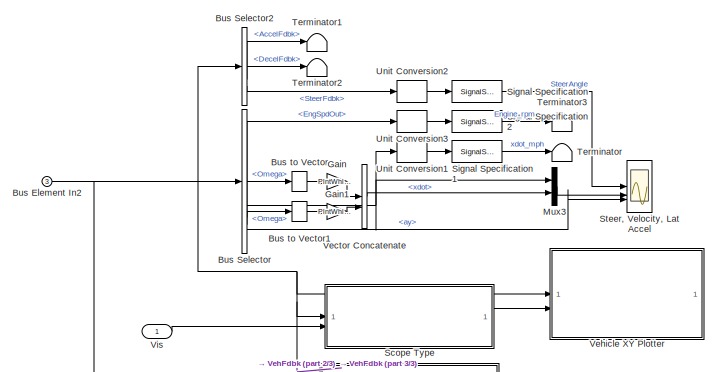
[diagram: Visualization - part 1/3, full width, top band]
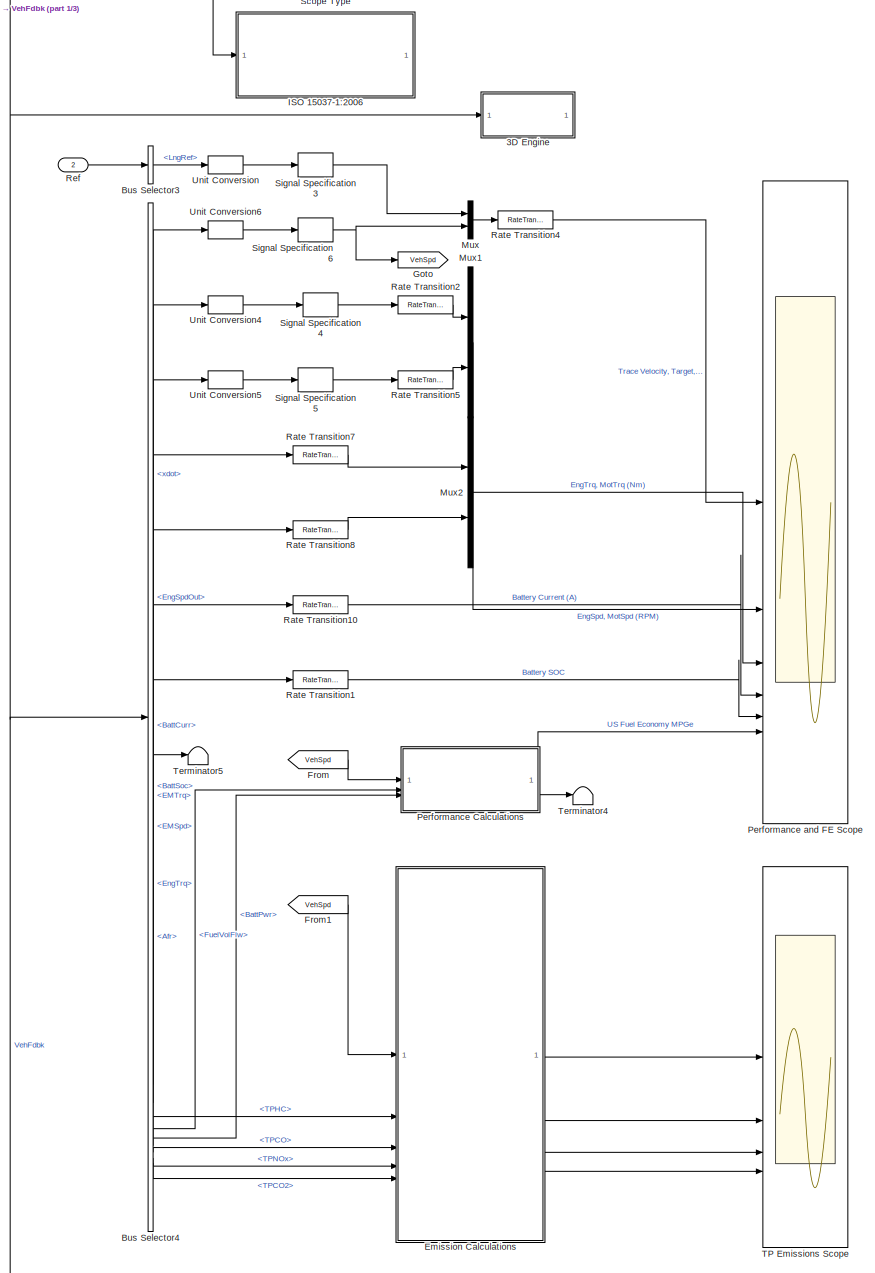
[diagram: Visualization - part 2/3, full width, middle band]
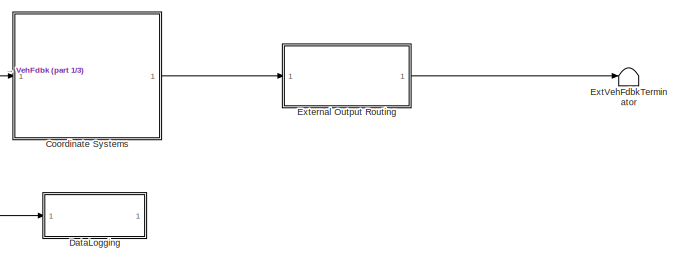
[diagram: Visualization - part 3/3, bottom center region]
BLOCK [SubSystem] Visualization
BLOCK [SubSystem] Visualization/3D Engine
  LabelModeActiveChoice = NoEngine3D
  Variant = on
  VariantControlMode = label
BLOCK [SubSystem] Visualization/3D Engine/3D Engine
  VariantControl = Engine3D
BLOCK [SubSystem] Visualization/3D Engine/3D Engine Disabled
  VariantControl = NoEngine3D
BLOCK [Terminator] Visualization/3D Engine/3D Engine Disabled/Terminator
BLOCK [Inport] Visualization/3D Engine/3D Engine Disabled/VehFdbk
BLOCK [BusSelector] Visualization/3D Engine/3D Engine/Bus Selector
  OutputSignals = Body.InertFrm.Geom.Disp.X,Body.InertFrm.Geom.Disp.Y,Body.InertFrm.Geom.Disp.Z,Body.InertFrm.Cg.Ang.phi,Body.InertFrm.Cg.Ang.theta,Body.InertFrm.Cg.Ang.psi
BLOCK [BusSelector] Visualization/3D Engine/3D Engine/Bus Selector1
  OutputAsBus = on
  OutputSignals = Driver.LightsFdbk.HighBeamFdbk,Driver.LightsFdbk.LowBeamFdbk,Driver.LightsFdbk.BrakeLightFdbk,Driver.LightsFdbk.ReverseLightFdbk,Driver.LightsFdbk.LeftSignalFdbk,Driver.LightsFdbk.RightSignalFdbk
BLOCK [BusSelector] Visualization/3D Engine/3D Engine/Bus Selector2
  OutputSignals = FrntSuspension.FrntSuspWheel.dz,RearSuspension.RearSuspWheel.dz,FrntWheels.Wheels.Omega,RearWheels.Wheels.Omega,FrntSuspension.FrntSuspWheel.WhlAng,RearSuspension.RearSuspWheel.WhlAng
BLOCK [BusToVector] Visualization/3D Engine/3D Engine/Bus to Vector
BLOCK [BusToVector] Visualization/3D Engine/3D Engine/Bus to Vector1
BLOCK [BusToVector] Visualization/3D Engine/3D Engine/Bus to Vector2
BLOCK [Constant] Visualization/3D Engine/3D Engine/Constant2
  OutDataTypeStr = single
  Value = 0
BLOCK [DataTypeConversion] Visualization/3D Engine/3D Engine/Data Type Conversion1
  OutDataTypeStr = single
  RndMeth = Floor
  SaturateOnIntegerOverflow = off
BLOCK [DataTypeConversion] Visualization/3D Engine/3D Engine/Data Type Conversion10
  OutDataTypeStr = single
  RndMeth = Floor
  SaturateOnIntegerOverflow = off
BLOCK [DataTypeConversion] Visualization/3D Engine/3D Engine/Data Type Conversion12
  OutDataTypeStr = single
  RndMeth = Floor
  SaturateOnIntegerOverflow = off
BLOCK [DataTypeConversion] Visualization/3D Engine/3D Engine/Data Type Conversion2
  OutDataTypeStr = single
  RndMeth = Floor
  SaturateOnIntegerOverflow = off
BLOCK [DataTypeConversion] Visualization/3D Engine/3D Engine/Data Type Conversion4
  OutDataTypeStr = single
  RndMeth = Floor
  SaturateOnIntegerOverflow = off
BLOCK [DataTypeConversion] Visualization/3D Engine/3D Engine/Data Type Conversion5
  OutDataTypeStr = single
  RndMeth = Floor
  SaturateOnIntegerOverflow = off
BLOCK [DataTypeConversion] Visualization/3D Engine/3D Engine/Data Type Conversion6
  OutDataTypeStr = single
  RndMeth = Floor
  SaturateOnIntegerOverflow = off
BLOCK [DataTypeConversion] Visualization/3D Engine/3D Engine/Data Type Conversion7
  OutDataTypeStr = single
  RndMeth = Floor
  SaturateOnIntegerOverflow = off
BLOCK [DataTypeConversion] Visualization/3D Engine/3D Engine/Data Type Conversion8
  OutDataTypeStr = single
  RndMeth = Floor
  SaturateOnIntegerOverflow = off
BLOCK [DataTypeConversion] Visualization/3D Engine/3D Engine/Data Type Conversion9
  OutDataTypeStr = single
  RndMeth = Floor
  SaturateOnIntegerOverflow = off
BLOCK [Demux] Visualization/3D Engine/3D Engine/Demux
BLOCK [Demux] Visualization/3D Engine/3D Engine/Demux1
BLOCK [Demux] Visualization/3D Engine/3D Engine/Demux2
BLOCK [Demux] Visualization/3D Engine/3D Engine/Demux3
BLOCK [Integrator] Visualization/3D Engine/3D Engine/Integrator
  WrapState = on
  WrappedStateLowerValue = 0
  WrappedStateUpperValue = 2*pi
  ZeroCross = off
BLOCK [SubSystem] Visualization/3D Engine/3D Engine/Part Rotation Concatenation
BLOCK [Concatenate] Visualization/3D Engine/3D Engine/Part Rotation Concatenation/AllParts
  Mode = Multidimensional array
  NumInputs = 5
BLOCK [Concatenate] Visualization/3D Engine/3D Engine/Part Rotation Concatenation/Body
  ConcatenateDimension = 2
  Mode = Multidimensional array
  NumInputs = 3
BLOCK [Inport] Visualization/3D Engine/3D Engine/Part Rotation Concatenation/Body Ptich
  Port = 2
BLOCK [Inport] Visualization/3D Engine/3D Engine/Part Rotation Concatenation/Body Roll
BLOCK [Inport] Visualization/3D Engine/3D Engine/Part Rotation Concatenation/Body Yaw
  Port = 3
BLOCK [Outport] Visualization/3D Engine/3D Engine/Part Rotation Concatenation/ConcatOut
  VectorParamsAs1DForOutWhenUnconnected = off
BLOCK [Concatenate] Visualization/3D Engine/3D Engine/Part Rotation Concatenation/WheelFrontLeft
  ConcatenateDimension = 2
  Mode = Multidimensional array
  NumInputs = 3
BLOCK [Inport] Visualization/3D Engine/3D Engine/Part Rotation Concatenation/WheelFrontLeft Pitch
  Port = 4
BLOCK [Inport] Visualization/3D Engine/3D Engine/Part Rotation Concatenation/WheelFrontLeft Roll
  Port = 8
BLOCK [Inport] Visualization/3D Engine/3D Engine/Part Rotation Concatenation/WheelFrontLeft Yaw
  Port = 12
BLOCK [Concatenate] Visualization/3D Engine/3D Engine/Part Rotation Concatenation/WheelFrontRight
  ConcatenateDimension = 2
  Mode = Multidimensional array
  NumInputs = 3
BLOCK [Inport] Visualization/3D Engine/3D Engine/Part Rotation Concatenation/WheelFrontRight Pitch
  Port = 5
BLOCK [Inport] Visualization/3D Engine/3D Engine/Part Rotation Concatenation/WheelFrontRight Roll
  Port = 9
BLOCK [Inport] Visualization/3D Engine/3D Engine/Part Rotation Concatenation/WheelFrontRight Yaw
  Port = 13
BLOCK [Concatenate] Visualization/3D Engine/3D Engine/Part Rotation Concatenation/WheelRearLeft
  ConcatenateDimension = 2
  Mode = Multidimensional array
  NumInputs = 3
BLOCK [Inport] Visualization/3D Engine/3D Engine/Part Rotation Concatenation/WheelRearLeft Pitch
  Port = 6
BLOCK [Inport] Visualization/3D Engine/3D Engine/Part Rotation Concatenation/WheelRearLeft Roll
  Port = 10
BLOCK [Inport] Visualization/3D Engine/3D Engine/Part Rotation Concatenation/WheelRearLeft Yaw
  Port = 14
BLOCK [Concatenate] Visualization/3D Engine/3D Engine/Part Rotation Concatenation/WheelRearRight
  ConcatenateDimension = 2
  Mode = Multidimensional array
  NumInputs = 3
BLOCK [Inport] Visualization/3D Engine/3D Engine/Part Rotation Concatenation/WheelRearRight Ptich
  Port = 7
BLOCK [Inport] Visualization/3D Engine/3D Engine/Part Rotation Concatenation/WheelRearRight Roll
  Port = 11
BLOCK [Inport] Visualization/3D Engine/3D Engine/Part Rotation Concatenation/WheelRearRight Yaw
  Port = 15
BLOCK [SubSystem] Visualization/3D Engine/3D Engine/Part Translation Concatenation
BLOCK [Concatenate] Visualization/3D Engine/3D Engine/Part Translation Concatenation/AllParts
  Mode = Multidimensional array
  NumInputs = 5
BLOCK [Concatenate] Visualization/3D Engine/3D Engine/Part Translation Concatenation/Body
  ConcatenateDimension = 2
  Mode = Multidimensional array
  NumInputs = 3
BLOCK [Inport] Visualization/3D Engine/3D Engine/Part Translation Concatenation/BodyX
BLOCK [Inport] Visualization/3D Engine/3D Engine/Part Translation Concatenation/BodyY
  Port = 2
BLOCK [Inport] Visualization/3D Engine/3D Engine/Part Translation Concatenation/BodyZ
  Port = 3
BLOCK [Outport] Visualization/3D Engine/3D Engine/Part Translation Concatenation/ConcatOut
  VectorParamsAs1DForOutWhenUnconnected = off
BLOCK [Concatenate] Visualization/3D Engine/3D Engine/Part Translation Concatenation/WheelFrontLeft
  ConcatenateDimension = 2
  Mode = Multidimensional array
  NumInputs = 3
BLOCK [Inport] Visualization/3D Engine/3D Engine/Part Translation Concatenation/WheelFrontLeftX
  Port = 4
BLOCK [Inport] Visualization/3D Engine/3D Engine/Part Translation Concatenation/WheelFrontLeftY
  Port = 8
BLOCK [Inport] Visualization/3D Engine/3D Engine/Part Translation Concatenation/WheelFrontLeftZ
  Port = 12
BLOCK [Concatenate] Visualization/3D Engine/3D Engine/Part Translation Concatenation/WheelFrontRight
  ConcatenateDimension = 2
  Mode = Multidimensional array
  NumInputs = 3
BLOCK [Inport] Visualization/3D Engine/3D Engine/Part Translation Concatenation/WheelFrontRightX
  Port = 5
BLOCK [Inport] Visualization/3D Engine/3D Engine/Part Translation Concatenation/WheelFrontRightY
  Port = 9
BLOCK [Inport] Visualization/3D Engine/3D Engine/Part Translation Concatenation/WheelFrontRightZ
  Port = 13
BLOCK [Concatenate] Visualization/3D Engine/3D Engine/Part Translation Concatenation/WheelRearLeft
  ConcatenateDimension = 2
  Mode = Multidimensional array
  NumInputs = 3
BLOCK [Inport] Visualization/3D Engine/3D Engine/Part Translation Concatenation/WheelRearLeftX
  Port = 6
BLOCK [Inport] Visualization/3D Engine/3D Engine/Part Translation Concatenation/WheelRearLeftY
  Port = 10
BLOCK [Inport] Visualization/3D Engine/3D Engine/Part Translation Concatenation/WheelRearLeftZ
  Port = 14
BLOCK [Concatenate] Visualization/3D Engine/3D Engine/Part Translation Concatenation/WheelRearRight
  ConcatenateDimension = 2
  Mode = Multidimensional array
  NumInputs = 3
BLOCK [Inport] Visualization/3D Engine/3D Engine/Part Translation Concatenation/WheelRearRightX
  Port = 7
BLOCK [Inport] Visualization/3D Engine/3D Engine/Part Translation Concatenation/WheelRearRightY
  Port = 11
BLOCK [Inport] Visualization/3D Engine/3D Engine/Part Translation Concatenation/WheelRearRightZ
  Port = 15
BLOCK [RateTransition] Visualization/3D Engine/3D Engine/Rate Transition
  OutPortSampleTime = 0.03
BLOCK [SubSystem] Visualization/3D Engine/3D Engine/Scale
BLOCK [Constant] Visualization/3D Engine/3D Engine/Scale/Constant1
  OutDataTypeStr = single
BLOCK [Constant] Visualization/3D Engine/3D Engine/Scale/Constant10
  OutDataTypeStr = single
BLOCK [Constant] Visualization/3D Engine/3D Engine/Scale/Constant11
  OutDataTypeStr = single
BLOCK [Constant] Visualization/3D Engine/3D Engine/Scale/Constant12
  OutDataTypeStr = single
BLOCK [Constant] Visualization/3D Engine/3D Engine/Scale/Constant17
  OutDataTypeStr = single
BLOCK [Constant] Visualization/3D Engine/3D Engine/Scale/Constant2
  OutDataTypeStr = single
BLOCK [Constant] Visualization/3D Engine/3D Engine/Scale/Constant3
  OutDataTypeStr = single
BLOCK [Constant] Visualization/3D Engine/3D Engine/Scale/Constant32
  OutDataTypeStr = single
BLOCK [Constant] Visualization/3D Engine/3D Engine/Scale/Constant33
  OutDataTypeStr = single
BLOCK [Constant] Visualization/3D Engine/3D Engine/Scale/Constant4
  OutDataTypeStr = single
BLOCK [Constant] Visualization/3D Engine/3D Engine/Scale/Constant5
  OutDataTypeStr = single
BLOCK [Constant] Visualization/3D Engine/3D Engine/Scale/Constant6
  OutDataTypeStr = single
BLOCK [Constant] Visualization/3D Engine/3D Engine/Scale/Constant7
  OutDataTypeStr = single
BLOCK [Constant] Visualization/3D Engine/3D Engine/Scale/Constant8
  OutDataTypeStr = single
BLOCK [Constant] Visualization/3D Engine/3D Engine/Scale/Constant9
  OutDataTypeStr = single
BLOCK [SubSystem] Visualization/3D Engine/3D Engine/Scale/PartConcatenation
BLOCK [Concatenate] Visualization/3D Engine/3D Engine/Scale/PartConcatenation/AllParts
  Mode = Multidimensional array
  NumInputs = 5
BLOCK [Concatenate] Visualization/3D Engine/3D Engine/Scale/PartConcatenation/Body
  ConcatenateDimension = 2
  Mode = Multidimensional array
  NumInputs = 3
BLOCK [Inport] Visualization/3D Engine/3D Engine/Scale/PartConcatenation/BodyX
BLOCK [Inport] Visualization/3D Engine/3D Engine/Scale/PartConcatenation/BodyY
  Port = 2
BLOCK [Inport] Visualization/3D Engine/3D Engine/Scale/PartConcatenation/BodyZ
  Port = 3
BLOCK [Outport] Visualization/3D Engine/3D Engine/Scale/PartConcatenation/ConcatOut
  VectorParamsAs1DForOutWhenUnconnected = off
BLOCK [Concatenate] Visualization/3D Engine/3D Engine/Scale/PartConcatenation/WheelFrontLeft
  ConcatenateDimension = 2
  Mode = Multidimensional array
  NumInputs = 3
BLOCK [Inport] Visualization/3D Engine/3D Engine/Scale/PartConcatenation/WheelFrontLeftX
  Port = 4
BLOCK [Inport] Visualization/3D Engine/3D Engine/Scale/PartConcatenation/WheelFrontLeftY
  Port = 5
BLOCK [Inport] Visualization/3D Engine/3D Engine/Scale/PartConcatenation/WheelFrontLeftZ
  Port = 6
BLOCK [Concatenate] Visualization/3D Engine/3D Engine/Scale/PartConcatenation/WheelFrontRight
  ConcatenateDimension = 2
  Mode = Multidimensional array
  NumInputs = 3
BLOCK [Inport] Visualization/3D Engine/3D Engine/Scale/PartConcatenation/WheelFrontRightX
  Port = 7
BLOCK [Inport] Visualization/3D Engine/3D Engine/Scale/PartConcatenation/WheelFrontRightY
  Port = 8
BLOCK [Inport] Visualization/3D Engine/3D Engine/Scale/PartConcatenation/WheelFrontRightZ
  Port = 9
BLOCK [Concatenate] Visualization/3D Engine/3D Engine/Scale/PartConcatenation/WheelRearLeft
  ConcatenateDimension = 2
  Mode = Multidimensional array
  NumInputs = 3
BLOCK [Inport] Visualization/3D Engine/3D Engine/Scale/PartConcatenation/WheelRearLeftX
  Port = 10
BLOCK [Inport] Visualization/3D Engine/3D Engine/Scale/PartConcatenation/WheelRearLeftY
  Port = 11
BLOCK [Inport] Visualization/3D Engine/3D Engine/Scale/PartConcatenation/WheelRearLeftZ
  Port = 12
BLOCK [Concatenate] Visualization/3D Engine/3D Engine/Scale/PartConcatenation/WheelRearRight
  ConcatenateDimension = 2
  Mode = Multidimensional array
  NumInputs = 3
BLOCK [Inport] Visualization/3D Engine/3D Engine/Scale/PartConcatenation/WheelRearRightX
  Port = 13
BLOCK [Inport] Visualization/3D Engine/3D Engine/Scale/PartConcatenation/WheelRearRightY
  Port = 14
BLOCK [Inport] Visualization/3D Engine/3D Engine/Scale/PartConcatenation/WheelRearRightZ
  Port = 15
BLOCK [Outport] Visualization/3D Engine/3D Engine/Scale/ScaleOut
  VectorParamsAs1DForOutWhenUnconnected = off
BLOCK [Selector] Visualization/3D Engine/3D Engine/Selector
  IndexOptions = Index vector (dialog),Select all
  Indices = [3],1
  InputPortWidth = 3
  NumberOfDimensions = 2
  OutputSizes = 1,1
BLOCK [Selector] Visualization/3D Engine/3D Engine/Selector1
  IndexOptions = Index vector (dialog),Select all
  Indices = [1],1
  InputPortWidth = 3
  NumberOfDimensions = 2
  OutputSizes = 1,1
BLOCK [Reference] Visualization/3D Engine/3D Engine/Simulation 3D Scene Configuration  REF=sim3dlib/Simulation 3D Scene Configuration
  LibrarySourceBlock = vdynlib/Vehicle Scenarios/Sim3D/Sim3D Core/Simulation 3D Scene Configuration
  Priority = 0
  SourceBlock = sim3dlib/Simulation 3D Scene Configuration
  SourceType = Simulation 3D Scene Configuration
BLOCK [Reference] Visualization/3D Engine/3D Engine/Simulation 3D Vehicle  REF=sim3dautolib/Simulation 3D Vehicle
  Priority = -1
  SourceBlock = sim3dautolib/Simulation 3D Vehicle
  SourceType = Simulation 3D Vehicle
BLOCK [SubSystem] Visualization/3D Engine/3D Engine/Trailer
  LabelModeActiveChoice = No Trailer
  Variant = on
  VariantControlMode = label
BLOCK [SubSystem] Visualization/3D Engine/3D Engine/Trailer/No Trailer
  VariantControl = No Trailer
BLOCK [Terminator] Visualization/3D Engine/3D Engine/Trailer/No Trailer/Terminator
BLOCK [Inport] Visualization/3D Engine/3D Engine/Trailer/No Trailer/VehFdbk
BLOCK [SubSystem] Visualization/3D Engine/3D Engine/Trailer/One-Axle Trailer
  VariantControl = One-Axle Trailer
BLOCK [Reference] Visualization/3D Engine/3D Engine/Trailer/One-Axle Trailer/Simulation 3D Trailer  REF=sim3dautolib/Simulation 3D Trailer
  LibrarySourceBlock = vehdynlibsim3d/Simulation 3D Trailer
  Priority = -1
  SourceBlock = sim3dautolib/Simulation 3D Trailer
  SourceType = Simulation 3D Trailer
BLOCK [SubSystem] Visualization/3D Engine/3D Engine/Trailer/One-Axle Trailer/Trailer Rotation
BLOCK [Concatenate] Visualization/3D Engine/3D Engine/Trailer/One-Axle Trailer/Trailer Rotation/AllParts
  Mode = Multidimensional array
  NumInputs = 3
BLOCK [Concatenate] Visualization/3D Engine/3D Engine/Trailer/One-Axle Trailer/Trailer Rotation/Body
  ConcatenateDimension = 2
  Mode = Multidimensional array
  NumInputs = 3
BLOCK [BusSelector] Visualization/3D Engine/3D Engine/Trailer/One-Axle Trailer/Trailer Rotation/Bus Selector
  OutputSignals = TrlrBody.InertFrm.Cg.Ang.phi,TrlrBody.InertFrm.Cg.Ang.theta,TrlrBody.InertFrm.Cg.Ang.psi
BLOCK [BusSelector] Visualization/3D Engine/3D Engine/Trailer/One-Axle Trailer/Trailer Rotation/Bus Selector1
  OutputSignals = TrlrWheels.Wheels.TireFrame.Omega
BLOCK [BusSelector] Visualization/3D Engine/3D Engine/Trailer/One-Axle Trailer/Trailer Rotation/Bus Selector2
  OutputSignals = TrlrBody.Suspension.WhlAng
BLOCK [DataTypeConversion] Visualization/3D Engine/3D Engine/Trailer/One-Axle Trailer/Trailer Rotation/Data Type Conversion1
  OutDataTypeStr = single
  RndMeth = Floor
  SaturateOnIntegerOverflow = off
BLOCK [DataTypeConversion] Visualization/3D Engine/3D Engine/Trailer/One-Axle Trailer/Trailer Rotation/Data Type Conversion10
  OutDataTypeStr = single
  RndMeth = Floor
  SaturateOnIntegerOverflow = off
BLOCK [DataTypeConversion] Visualization/3D Engine/3D Engine/Trailer/One-Axle Trailer/Trailer Rotation/Data Type Conversion2
  OutDataTypeStr = single
  RndMeth = Floor
  SaturateOnIntegerOverflow = off
BLOCK [DataTypeConversion] Visualization/3D Engine/3D Engine/Trailer/One-Axle Trailer/Trailer Rotation/Data Type Conversion7
  OutDataTypeStr = single
  RndMeth = Floor
  SaturateOnIntegerOverflow = off
BLOCK [DataTypeConversion] Visualization/3D Engine/3D Engine/Trailer/One-Axle Trailer/Trailer Rotation/Data Type Conversion8
  OutDataTypeStr = single
  RndMeth = Floor
  SaturateOnIntegerOverflow = off
BLOCK [DataTypeConversion] Visualization/3D Engine/3D Engine/Trailer/One-Axle Trailer/Trailer Rotation/Data Type Conversion9
  OutDataTypeStr = single
  RndMeth = Floor
  SaturateOnIntegerOverflow = off
BLOCK [Demux] Visualization/3D Engine/3D Engine/Trailer/One-Axle Trailer/Trailer Rotation/Demux
  Outputs = 2
BLOCK [Demux] Visualization/3D Engine/3D Engine/Trailer/One-Axle Trailer/Trailer Rotation/Demux1
  Outputs = 2
BLOCK [Demux] Visualization/3D Engine/3D Engine/Trailer/One-Axle Trailer/Trailer Rotation/Demux2
  Outputs = 2
BLOCK [From] Visualization/3D Engine/3D Engine/Trailer/One-Axle Trailer/Trailer Rotation/From
  GotoTag = rollL
BLOCK [From] Visualization/3D Engine/3D Engine/Trailer/One-Axle Trailer/Trailer Rotation/From1
  GotoTag = yawL
BLOCK [From] Visualization/3D Engine/3D Engine/Trailer/One-Axle Trailer/Trailer Rotation/From2
  GotoTag = pitchL
BLOCK [From] Visualization/3D Engine/3D Engine/Trailer/One-Axle Trailer/Trailer Rotation/From3
  GotoTag = rollR
BLOCK [From] Visualization/3D Engine/3D Engine/Trailer/One-Axle Trailer/Trailer Rotation/From4
  GotoTag = yawR
BLOCK [From] Visualization/3D Engine/3D Engine/Trailer/One-Axle Trailer/Trailer Rotation/From5
  GotoTag = pitchR
BLOCK [Goto] Visualization/3D Engine/3D Engine/Trailer/One-Axle Trailer/Trailer Rotation/Goto
  GotoTag = rollL
BLOCK [Goto] Visualization/3D Engine/3D Engine/Trailer/One-Axle Trailer/Trailer Rotation/Goto1
  GotoTag = rollR
BLOCK [Goto] Visualization/3D Engine/3D Engine/Trailer/One-Axle Trailer/Trailer Rotation/Goto2
  GotoTag = yawL
BLOCK [Goto] Visualization/3D Engine/3D Engine/Trailer/One-Axle Trailer/Trailer Rotation/Goto3
  GotoTag = yawR
BLOCK [Goto] Visualization/3D Engine/3D Engine/Trailer/One-Axle Trailer/Trailer Rotation/Goto4
  GotoTag = pitchL
BLOCK [Goto] Visualization/3D Engine/3D Engine/Trailer/One-Axle Trailer/Trailer Rotation/Goto5
  GotoTag = pitchR
BLOCK [Integrator] Visualization/3D Engine/3D Engine/Trailer/One-Axle Trailer/Trailer Rotation/Integrator
  WrapState = on
  WrappedStateLowerValue = 0
  WrappedStateUpperValue = 2*pi
  ZeroCross = off
BLOCK [Outport] Visualization/3D Engine/3D Engine/Trailer/One-Axle Trailer/Trailer Rotation/Rotation
BLOCK [Selector] Visualization/3D Engine/3D Engine/Trailer/One-Axle Trailer/Trailer Rotation/Selector
  IndexOptions = Index vector (dialog),Select all
  Indices = [3],1
  InputPortWidth = 3
  NumberOfDimensions = 2
  OutputSizes = 1,1
BLOCK [Selector] Visualization/3D Engine/3D Engine/Trailer/One-Axle Trailer/Trailer Rotation/Selector1
  IndexOptions = Index vector (dialog),Select all
  Indices = [1],1
  InputPortWidth = 3
  NumberOfDimensions = 2
  OutputSizes = 1,1
BLOCK [Inport] Visualization/3D Engine/3D Engine/Trailer/One-Axle Trailer/Trailer Rotation/Trailer
BLOCK [UnaryMinus] Visualization/3D Engine/3D Engine/Trailer/One-Axle Trailer/Trailer Rotation/Unary Minus
BLOCK [Concatenate] Visualization/3D Engine/3D Engine/Trailer/One-Axle Trailer/Trailer Rotation/WheelL
  ConcatenateDimension = 2
  Mode = Multidimensional array
  NumInputs = 3
BLOCK [Concatenate] Visualization/3D Engine/3D Engine/Trailer/One-Axle Trailer/Trailer Rotation/WheelR
  ConcatenateDimension = 2
  Mode = Multidimensional array
  NumInputs = 3
BLOCK [SubSystem] Visualization/3D Engine/3D Engine/Trailer/One-Axle Trailer/Trailer Translation
BLOCK [Concatenate] Visualization/3D Engine/3D Engine/Trailer/One-Axle Trailer/Trailer Translation/AllParts
  Mode = Multidimensional array
  NumInputs = 3
BLOCK [Concatenate] Visualization/3D Engine/3D Engine/Trailer/One-Axle Trailer/Trailer Translation/Body
  ConcatenateDimension = 2
  Mode = Multidimensional array
  NumInputs = 3
BLOCK [BusSelector] Visualization/3D Engine/3D Engine/Trailer/One-Axle Trailer/Trailer Translation/Bus Selector
  OutputSignals = TrlrBody.InertFrm.HitchF.Disp.X,TrlrBody.InertFrm.HitchF.Disp.Y,TrlrBody.InertFrm.Cg.Disp.Z
BLOCK [BusSelector] Visualization/3D Engine/3D Engine/Trailer/One-Axle Trailer/Trailer Translation/Bus Selector1
  OutputSignals = TrlrBody.Suspension.dz
BLOCK [Constant] Visualization/3D Engine/3D Engine/Trailer/One-Axle Trailer/Trailer Translation/Constant
  OutDataTypeStr = single
  Value = 0
BLOCK [Constant] Visualization/3D Engine/3D Engine/Trailer/One-Axle Trailer/Trailer Translation/Constant1
  OutDataTypeStr = single
  Value = 0
BLOCK [DataTypeConversion] Visualization/3D Engine/3D Engine/Trailer/One-Axle Trailer/Trailer Translation/Data Type Conversion1
  OutDataTypeStr = single
  RndMeth = Floor
  SaturateOnIntegerOverflow = off
BLOCK [DataTypeConversion] Visualization/3D Engine/3D Engine/Trailer/One-Axle Trailer/Trailer Translation/Data Type Conversion10
  OutDataTypeStr = single
  RndMeth = Floor
  SaturateOnIntegerOverflow = off
BLOCK [DataTypeConversion] Visualization/3D Engine/3D Engine/Trailer/One-Axle Trailer/Trailer Translation/Data Type Conversion7
  OutDataTypeStr = single
  RndMeth = Floor
  SaturateOnIntegerOverflow = off
BLOCK [DataTypeConversion] Visualization/3D Engine/3D Engine/Trailer/One-Axle Trailer/Trailer Translation/Data Type Conversion8
  OutDataTypeStr = single
  RndMeth = Floor
  SaturateOnIntegerOverflow = off
BLOCK [Demux] Visualization/3D Engine/3D Engine/Trailer/One-Axle Trailer/Trailer Translation/Demux
  Outputs = 2
BLOCK [From] Visualization/3D Engine/3D Engine/Trailer/One-Axle Trailer/Trailer Translation/From
  GotoTag = zR
BLOCK [From] Visualization/3D Engine/3D Engine/Trailer/One-Axle Trailer/Trailer Translation/From1
  GotoTag = zL
BLOCK [Goto] Visualization/3D Engine/3D Engine/Trailer/One-Axle Trailer/Trailer Translation/Goto
  GotoTag = zL
BLOCK [Goto] Visualization/3D Engine/3D Engine/Trailer/One-Axle Trailer/Trailer Translation/Goto1
  GotoTag = zR
BLOCK [Inport] Visualization/3D Engine/3D Engine/Trailer/One-Axle Trailer/Trailer Translation/Trailer
BLOCK [Outport] Visualization/3D Engine/3D Engine/Trailer/One-Axle Trailer/Trailer Translation/Translation
BLOCK [UnaryMinus] Visualization/3D Engine/3D Engine/Trailer/One-Axle Trailer/Trailer Translation/Unary Minus1
BLOCK [Concatenate] Visualization/3D Engine/3D Engine/Trailer/One-Axle Trailer/Trailer Translation/WheelL
  ConcatenateDimension = 2
  Mode = Multidimensional array
  NumInputs = 3
BLOCK [Concatenate] Visualization/3D Engine/3D Engine/Trailer/One-Axle Trailer/Trailer Translation/WheelR
  ConcatenateDimension = 2
  Mode = Multidimensional array
  NumInputs = 3
BLOCK [Inport] Visualization/3D Engine/3D Engine/Trailer/One-Axle Trailer/VehFdbk
BLOCK [Inport] Visualization/3D Engine/3D Engine/Trailer/VehFdbk
BLOCK [UnaryMinus] Visualization/3D Engine/3D Engine/Unary Minus
BLOCK [UnaryMinus] Visualization/3D Engine/3D Engine/Unary Minus1
BLOCK [Concatenate] Visualization/3D Engine/3D Engine/Vector Concatenate1
BLOCK [Concatenate] Visualization/3D Engine/3D Engine/Vector Concatenate2
BLOCK [Concatenate] Visualization/3D Engine/3D Engine/Vector Concatenate3
  ConcatenateDimension = 2
  Mode = Multidimensional array
BLOCK [Inport] Visualization/3D Engine/3D Engine/VehFdbk
BLOCK [Inport] Visualization/3D Engine/VehFdbk
BLOCK [Inport] Visualization/Bus Element In2
  Port = 3
BLOCK [BusSelector] Visualization/Bus Selector
  OutputSignals = Engine.EngSpdOut,Body.BdyFrm.Cg.Vel.xdot,FrntWheels.Wheels.Omega,RearWheels.Wheels.Omega,Body.BdyFrm.Cg.Acc.ay
BLOCK [BusSelector] Visualization/Bus Selector2
  OutputSignals = Driver.AccelFdbk,Driver.DecelFdbk,Driver.SteerFdbk
BLOCK [BusSelector] Visualization/Bus Selector3
  OutputSignals = DrvRef.LngRef
BLOCK [BusSelector] Visualization/Bus Selector4
  OutputSignals = Body.BdyFrm.Cg.Vel.xdot,Engine.EngSpdOut,EM.EMSpd,Engine.EngTrq,EM.EMTrq,Battery.BattInfo.BattCurr,Battery.BattInfo.BattSoc,Engine.Afr,Engine.FuelVolFlw,Battery.BattInfo.BattPwr,Engine.TPHC,Engine.TPCO,Engine.TPNOx,Engine.TPCO2
BLOCK [BusToVector] Visualization/Bus to Vector
BLOCK [BusToVector] Visualization/Bus to Vector1
BLOCK [SubSystem] Visualization/Coordinate Systems
  LabelModeActiveChoice = ISO 8855 (Z-up)1
  Variant = on
  VariantControl = Choice
  VariantControlMode = label
BLOCK [SubSystem] Visualization/Coordinate Systems/ISO 8855 (Z-up)
  VariantControl = Choice
BLOCK [BusAssignment] Visualization/Coordinate Systems/ISO 8855 (Z-up)/Bus Assignment
  AssignedSignals = Body.InertFrm.Cg.Disp.Y,Body.InertFrm.Cg.Disp.Z,Body.InertFrm.Cg.Vel.Ydot,Body.InertFrm.Cg.Vel.Zdot,Body.InertFrm.Geom.Disp.Y,Body.InertFrm.Geom.Disp.Z,Body.InertFrm.Cg.Ang.theta,Body.InertFrm.Cg.Ang.psi,Body.BdyFrm.Cg.Vel.ydot,Body.BdyFrm.Cg.Vel.zdot,Body.BdyFrm.Cg.AngVel.q,Body.BdyFrm.Cg.AngVel.r,Body.BdyFrm.Cg.Acc.ay,Body.BdyFrm.Cg.Acc.az,Body.BdyFrm.Cg.Acc.yddot,Body.BdyFrm.Cg.Acc.zddot
BLOCK [BusSelector] Visualization/Coordinate Systems/ISO 8855 (Z-up)/Bus Selector
  OutputSignals = Body.InertFrm.Cg.Disp.Y,Body.InertFrm.Cg.Disp.Z,Body.InertFrm.Cg.Vel.Ydot,Body.InertFrm.Cg.Vel.Zdot,Body.InertFrm.Geom.Disp.Y,Body.InertFrm.Geom.Disp.Z,Body.InertFrm.Cg.Ang.theta,Body.InertFrm.Cg.Ang.psi,Body.BdyFrm.Cg.Vel.ydot,Body.BdyFrm.Cg.Vel.zdot,Body.BdyFrm.Cg.AngVel.q,Body.BdyFrm.Cg.AngVel.r,Body.BdyFrm.Cg.Acc.ay,Body.BdyFrm.Cg.Acc.az,Body.BdyFrm.Cg.Acc.yddot,Body.BdyFrm.Cg.Acc.zddot
BLOCK [UnaryMinus] Visualization/Coordinate Systems/ISO 8855 (Z-up)/Unary Minus
BLOCK [UnaryMinus] Visualization/Coordinate Systems/ISO 8855 (Z-up)/Unary Minus1
BLOCK [UnaryMinus] Visualization/Coordinate Systems/ISO 8855 (Z-up)/Unary Minus10
BLOCK [UnaryMinus] Visualization/Coordinate Systems/ISO 8855 (Z-up)/Unary Minus11
BLOCK [UnaryMinus] Visualization/Coordinate Systems/ISO 8855 (Z-up)/Unary Minus12
BLOCK [UnaryMinus] Visualization/Coordinate Systems/ISO 8855 (Z-up)/Unary Minus13
BLOCK [UnaryMinus] Visualization/Coordinate Systems/ISO 8855 (Z-up)/Unary Minus14
BLOCK [UnaryMinus] Visualization/Coordinate Systems/ISO 8855 (Z-up)/Unary Minus15
BLOCK [UnaryMinus] Visualization/Coordinate Systems/ISO 8855 (Z-up)/Unary Minus2
BLOCK [UnaryMinus] Visualization/Coordinate Systems/ISO 8855 (Z-up)/Unary Minus3
BLOCK [UnaryMinus] Visualization/Coordinate Systems/ISO 8855 (Z-up)/Unary Minus4
BLOCK [UnaryMinus] Visualization/Coordinate Systems/ISO 8855 (Z-up)/Unary Minus5
BLOCK [UnaryMinus] Visualization/Coordinate Systems/ISO 8855 (Z-up)/Unary Minus6
BLOCK [UnaryMinus] Visualization/Coordinate Systems/ISO 8855 (Z-up)/Unary Minus7
BLOCK [UnaryMinus] Visualization/Coordinate Systems/ISO 8855 (Z-up)/Unary Minus8
BLOCK [UnaryMinus] Visualization/Coordinate Systems/ISO 8855 (Z-up)/Unary Minus9
BLOCK [Outport] Visualization/Coordinate Systems/ISO 8855 (Z-up)/VehFdbk
BLOCK [Inport] Visualization/Coordinate Systems/ISO 8855 (Z-up)/VehFdbkIn
BLOCK [SubSystem] Visualization/Coordinate Systems/SAE J670 (Z-down)
  VariantControl = ISO 8855 (Z-up)1
BLOCK [Outport] Visualization/Coordinate Systems/SAE J670 (Z-down)/VehFdbk
BLOCK [Inport] Visualization/Coordinate Systems/SAE J670 (Z-down)/VehFdbkIn
BLOCK [Outport] Visualization/Coordinate Systems/VehFdbk
BLOCK [Inport] Visualization/Coordinate Systems/VehFdbkIn
BLOCK [SubSystem] Visualization/DataLogging
BLOCK [BusSelector] Visualization/DataLogging/Bus Selector
  OutputSignals = Driver.SteerFdbk
BLOCK [Terminator] Visualization/DataLogging/Terminator
BLOCK [Inport] Visualization/DataLogging/VehFdbk
BLOCK [SubSystem] Visualization/Emission Calculations
BLOCK [Integrator] Visualization/Emission Calculations/Integrator
BLOCK [Integrator] Visualization/Emission Calculations/Integrator1
BLOCK [Integrator] Visualization/Emission Calculations/Integrator2
BLOCK [Integrator] Visualization/Emission Calculations/Integrator3
BLOCK [Integrator] Visualization/Emission Calculations/Integrator4
BLOCK [Gain] Visualization/Emission Calculations/Kg to g
  Gain = 1000
BLOCK [Gain] Visualization/Emission Calculations/Kg to g 
  Gain = 1000
BLOCK [Gain] Visualization/Emission Calculations/Kg to g  
  Gain = 1000
BLOCK [Gain] Visualization/Emission Calculations/Kg to g   
  Gain = 1000
BLOCK [Product] Visualization/Emission Calculations/L//100 Km Calc
  Inputs = /*
BLOCK [Product] Visualization/Emission Calculations/L//100 Km Calc1
  Inputs = /*
BLOCK [Product] Visualization/Emission Calculations/L//100 Km Calc2
  Inputs = /*
BLOCK [Product] Visualization/Emission Calculations/L//100 Km Calc3
  Inputs = /*
BLOCK [RateTransition] Visualization/Emission Calculations/Rate Transition
  Deterministic = off
BLOCK [RateTransition] Visualization/Emission Calculations/Rate Transition1
  Deterministic = off
BLOCK [RateTransition] Visualization/Emission Calculations/Rate Transition2
  Deterministic = off
BLOCK [RateTransition] Visualization/Emission Calculations/Rate Transition3
  Deterministic = off
BLOCK [Saturate] Visualization/Emission Calculations/Saturation
  LowerLimit = 0.2
  UpperLimit = Inf
  ZeroCross = off
BLOCK [Saturate] Visualization/Emission Calculations/Saturation1
  LowerLimit = 1
  UpperLimit = Inf
  ZeroCross = off
BLOCK [SignalSpecification] Visualization/Emission Calculations/Signal Specification5
  Unit = m/s
BLOCK [Outport] Visualization/Emission Calculations/TP CO Mass
  Port = 2
  VectorParamsAs1DForOutWhenUnconnected = off
BLOCK [Inport] Visualization/Emission Calculations/TP CO Mass Flow
  Port = 3
BLOCK [Outport] Visualization/Emission Calculations/TP CO2 Mass
  Port = 4
  VectorParamsAs1DForOutWhenUnconnected = off
BLOCK [Inport] Visualization/Emission Calculations/TP CO2 Mass Flow
  Port = 5
BLOCK [Outport] Visualization/Emission Calculations/TP HC Mass
  VectorParamsAs1DForOutWhenUnconnected = off
BLOCK [Inport] Visualization/Emission Calculations/TP HC Mass Flow
  Port = 2
BLOCK [Outport] Visualization/Emission Calculations/TP NOx Mass
  Port = 3
  VectorParamsAs1DForOutWhenUnconnected = off
BLOCK [Inport] Visualization/Emission Calculations/TP NOx Mass Flow
  Port = 4
BLOCK [UnitConversion] Visualization/Emission Calculations/Unit Conversion5
BLOCK [Inport] Visualization/Emission Calculations/VehSpd
BLOCK [Gain] Visualization/Emission Calculations/m to km
  Gain = 0.001
BLOCK [Gain] Visualization/Emission Calculations/m to mi
  Gain = 0.000621371
BLOCK [Terminator] Visualization/ExtVehFdbkTerminator
BLOCK [SubSystem] Visualization/External Output Routing
BLOCK [BusAssignment] Visualization/External Output Routing/Bus Assignment
  AssignedSignals = Driver.SteerFdbk,Driver.AccelFdbk,Driver.DecelFdbk,Driver.GearFdbk,Driver.IgnFdbk,Driveline.EngSpd,Driveline.TransGear,Body.InertFrm.Cg.Disp.X,Body.InertFrm.Cg.Disp.Y,Body.InertFrm.Cg.Disp.Z,Body.InertFrm.Cg.Vel.Xdot,Body.InertFrm.Cg.Vel.Ydot,Body.InertFrm.Cg.Vel.Zdot,Body.InertFrm.Cg.Ang.phi,Body.InertFrm.Cg.Ang.theta,Body.InertFrm.Cg.Ang.psi,Body.InertFrm.Geom.Disp.X,Body.InertFrm.Geom.Disp.Y,Bo...<+473ch>
BLOCK [BusSelector] Visualization/External Output Routing/Bus Selector1
  OutputSignals = Driver.SteerFdbk,Driver.AccelFdbk,Driver.DecelFdbk,Driver.GearFdbk,Driver.IgnFdbk
BLOCK [BusSelector] Visualization/External Output Routing/Bus Selector2
  OutputSignals = Body.InertFrm.Cg.Disp.X,Body.InertFrm.Cg.Disp.Y,Body.InertFrm.Cg.Disp.Z,Body.InertFrm.Cg.Vel.Xdot,Body.InertFrm.Cg.Vel.Ydot,Body.InertFrm.Cg.Vel.Zdot,Body.InertFrm.Cg.Ang.phi,Body.InertFrm.Cg.Ang.theta,Body.InertFrm.Cg.Ang.psi,Body.InertFrm.Geom.Disp.X,Body.InertFrm.Geom.Disp.Y,Body.InertFrm.Geom.Disp.Z,Body.InertFrm.Geom.Vel.Xdot,Body.InertFrm.Geom.Vel.Ydot,Body.InertFrm.Geom.Vel.Zdot,Body.BdyFrm...<+354ch>
BLOCK [BusSelector] Visualization/External Output Routing/Bus Selector3
  OutputSignals = Engine.EngSpdOut,Trans.Info.Trans.TransGear
BLOCK [Constant] Visualization/External Output Routing/Constant
  OutDataTypeStr = Bus: VVCVehFdbkBUS
  SampleTime = -1
  Value = 0
BLOCK [DataTypeConversion] Visualization/External Output Routing/Data Type Conversion
  RndMeth = Floor
  SaturateOnIntegerOverflow = off
BLOCK [DataTypeConversion] Visualization/External Output Routing/Data Type Conversion1
  RndMeth = Floor
  SaturateOnIntegerOverflow = off
BLOCK [DataTypeConversion] Visualization/External Output Routing/Data Type Conversion2
  RndMeth = Floor
  SaturateOnIntegerOverflow = off
BLOCK [Outport] Visualization/External Output Routing/ExtVehFdbk
BLOCK [RateTransition] Visualization/External Output Routing/Rate Transition
  Integrity = off
BLOCK [RateTransition] Visualization/External Output Routing/Rate Transition1
  Integrity = off
BLOCK [RateTransition] Visualization/External Output Routing/Rate Transition2
  Integrity = off
BLOCK [UnitConversion] Visualization/External Output Routing/Unit Conversion1
BLOCK [UnitConversion] Visualization/External Output Routing/Unit Conversion2
BLOCK [UnitConversion] Visualization/External Output Routing/Unit Conversion3
BLOCK [UnitConversion] Visualization/External Output Routing/Unit Conversion4
BLOCK [UnitConversion] Visualization/External Output Routing/Unit Conversion5
BLOCK [UnitConversion] Visualization/External Output Routing/Unit Conversion6
BLOCK [UnitConversion] Visualization/External Output Routing/Unit Conversion7
BLOCK [UnitConversion] Visualization/External Output Routing/Unit Conversion8
BLOCK [Inport] Visualization/External Output Routing/VehFdbk
BLOCK [From] Visualization/From
  GotoTag = VehSpd
BLOCK [From] Visualization/From1
  GotoTag = VehSpd
BLOCK [Gain] Visualization/Gain
  Gain = PlntWhlLdRadiusFrnt
BLOCK [Gain] Visualization/Gain1
  Gain = PlntWhlLdRadiusRear
BLOCK [Goto] Visualization/Goto
  GotoTag = VehSpd
BLOCK [SubSystem] Visualization/ISO 15037-1:2006
  AttributesFormatString = %<Measurement>
  LabelModeActiveChoice = 0
  StopFcn = switch get_param(gcb,'Measurement')\n       case 'Enabled'\n       VDBSmldatxfolder=[matlabroot '\toolbox\vdynblks\vdynsolution\mldatx'];\n       Simulink.sdi.loadView([VDBSmldatxfolder filesep 'ISO15037_1_2006E.mldatx']);\n       Simulink.sdi.view;\nend
  Variant = on
  VariantControlMode = label
BLOCK [SubSystem] Visualization/ISO 15037-1:2006/Disabled
  VariantControl = 0
BLOCK [Terminator] Visualization/ISO 15037-1:2006/Disabled/Terminator1
BLOCK [Inport] Visualization/ISO 15037-1:2006/Disabled/VehFdbk
BLOCK [SubSystem] Visualization/ISO 15037-1:2006/Enabled
  VariantControl = 1
BLOCK [BusSelector] Visualization/ISO 15037-1:2006/Enabled/Bus Selector
  OutputSignals = Driver.SteerFdbk,Body.BdyFrm.Cg.Vel.xdot,Body.BdyFrm.Cg.Vel.ydot,Body.BdyFrm.Cg.Acc.ax,Body.BdyFrm.Cg.Acc.ay,Body.BdyFrm.Cg.AngVel.r,Body.BdyFrm.Cg.AngVel.q,Body.BdyFrm.Cg.AngVel.p,Body.InertFrm.Cg.Ang.phi,Body.InertFrm.Cg.Ang.theta
BLOCK [SignalSpecification] Visualization/ISO 15037-1:2006/Enabled/Signal Specification
  Unit = deg
BLOCK [SignalSpecification] Visualization/ISO 15037-1:2006/Enabled/Signal Specification10
  Unit = deg
BLOCK [SignalSpecification] Visualization/ISO 15037-1:2006/Enabled/Signal Specification11
  Unit = deg
BLOCK [SignalSpecification] Visualization/ISO 15037-1:2006/Enabled/Signal Specification2
  Unit = km/h
BLOCK [SignalSpecification] Visualization/ISO 15037-1:2006/Enabled/Signal Specification3
  Unit = m/s
BLOCK [SignalSpecification] Visualization/ISO 15037-1:2006/Enabled/Signal Specification5
  Unit = m/s^2
BLOCK [SignalSpecification] Visualization/ISO 15037-1:2006/Enabled/Signal Specification6
  Unit = m/s^2
BLOCK [SignalSpecification] Visualization/ISO 15037-1:2006/Enabled/Signal Specification7
  Unit = deg/s
BLOCK [SignalSpecification] Visualization/ISO 15037-1:2006/Enabled/Signal Specification8
  Unit = deg/s
BLOCK [SignalSpecification] Visualization/ISO 15037-1:2006/Enabled/Signal Specification9
  Unit = deg/s
BLOCK [Terminator] Visualization/ISO 15037-1:2006/Enabled/Terminator
BLOCK [Terminator] Visualization/ISO 15037-1:2006/Enabled/Terminator10
BLOCK [Terminator] Visualization/ISO 15037-1:2006/Enabled/Terminator11
BLOCK [Terminator] Visualization/ISO 15037-1:2006/Enabled/Terminator2
BLOCK [Terminator] Visualization/ISO 15037-1:2006/Enabled/Terminator3
BLOCK [Terminator] Visualization/ISO 15037-1:2006/Enabled/Terminator5
BLOCK [Terminator] Visualization/ISO 15037-1:2006/Enabled/Terminator6
BLOCK [Terminator] Visualization/ISO 15037-1:2006/Enabled/Terminator7
BLOCK [Terminator] Visualization/ISO 15037-1:2006/Enabled/Terminator8
BLOCK [Terminator] Visualization/ISO 15037-1:2006/Enabled/Terminator9
BLOCK [UnitConversion] Visualization/ISO 15037-1:2006/Enabled/Unit Conversion10
BLOCK [UnitConversion] Visualization/ISO 15037-1:2006/Enabled/Unit Conversion11
BLOCK [UnitConversion] Visualization/ISO 15037-1:2006/Enabled/Unit Conversion12
BLOCK [UnitConversion] Visualization/ISO 15037-1:2006/Enabled/Unit Conversion2
BLOCK [UnitConversion] Visualization/ISO 15037-1:2006/Enabled/Unit Conversion3
BLOCK [UnitConversion] Visualization/ISO 15037-1:2006/Enabled/Unit Conversion4
BLOCK [UnitConversion] Visualization/ISO 15037-1:2006/Enabled/Unit Conversion6
BLOCK [UnitConversion] Visualization/ISO 15037-1:2006/Enabled/Unit Conversion7
BLOCK [UnitConversion] Visualization/ISO 15037-1:2006/Enabled/Unit Conversion8
BLOCK [UnitConversion] Visualization/ISO 15037-1:2006/Enabled/Unit Conversion9
BLOCK [Inport] Visualization/ISO 15037-1:2006/Enabled/VehFdbk
BLOCK [Inport] Visualization/ISO 15037-1:2006/VehFdbk
BLOCK [Mux] Visualization/Mux
  DisplayOption = bar
  Inputs = 2
BLOCK [Mux] Visualization/Mux1
  DisplayOption = bar
  Inputs = 2
BLOCK [Mux] Visualization/Mux2
  DisplayOption = bar
  Inputs = 2
BLOCK [Mux] Visualization/Mux3
  DisplayOption = bar
  Inputs = 2
BLOCK [SubSystem] Visualization/Performance Calculations
BLOCK [Sum] Visualization/Performance Calculations/Add
  IconShape = rectangular
BLOCK [Inport] Visualization/Performance Calculations/BattPwr
  Port = 3
BLOCK [Product] Visualization/Performance Calculations/Divide
  Inputs = */
BLOCK [Product] Visualization/Performance Calculations/Divide1
  Inputs = */
BLOCK [Product] Visualization/Performance Calculations/Divide2
  Inputs = */
BLOCK [Inport] Visualization/Performance Calculations/FuelVolFlow
  Port = 2
BLOCK [Integrator] Visualization/Performance Calculations/Integrator
BLOCK [Integrator] Visualization/Performance Calculations/Integrator1
BLOCK [Product] Visualization/Performance Calculations/L//100 Km Calc
  Inputs = /*
BLOCK [Outport] Visualization/Performance Calculations/L//100Km
  Port = 2
  VectorParamsAs1DForOutWhenUnconnected = off
BLOCK [Product] Visualization/Performance Calculations/Product
BLOCK [RateTransition] Visualization/Performance Calculations/Rate Transition3
  Deterministic = off
BLOCK [Saturate] Visualization/Performance Calculations/Saturation
  LowerLimit = 0.001
  UpperLimit = Inf
  ZeroCross = off
BLOCK [Saturate] Visualization/Performance Calculations/Saturation1
  LowerLimit = 1e-3
  UpperLimit = Inf
  ZeroCross = off
BLOCK [SignalSpecification] Visualization/Performance Calculations/Signal Specification5
  Unit = m/s
BLOCK [Sqrt] Visualization/Performance Calculations/Sqrt
BLOCK [Constant] Visualization/Performance Calculations/US EPA kwh//USgal equivalent
  Value = 33.7
BLOCK [Outport] Visualization/Performance Calculations/US MPG
  VectorParamsAs1DForOutWhenUnconnected = off
BLOCK [Product] Visualization/Performance Calculations/US MPG Calc
  Inputs = */
BLOCK [UnitConversion] Visualization/Performance Calculations/Unit Conversion5
BLOCK [Inport] Visualization/Performance Calculations/VehSpd
BLOCK [Gain] Visualization/Performance Calculations/m to 100Km
  Gain = 1/1000/100
BLOCK [Gain] Visualization/Performance Calculations/m to mile
  Gain = 0.000621371
BLOCK [Gain] Visualization/Performance Calculations/m^3 per gal
  Gain = 0.00378541
BLOCK [Gain] Visualization/Performance Calculations/m^3 to L
  Gain = 1000
BLOCK [Gain] Visualization/Performance Calculations/m^3 to US Gal
  Gain = 264.172
BLOCK [Constant] Visualization/Performance Calculations/s per h
  Value = 3600
BLOCK [Constant] Visualization/Performance Calculations/w per kw
  Value = 1000
BLOCK [Scope] Visualization/Performance and FE Scope
  ActiveDisplayYMaximum = 63.78947
  ActiveDisplayYMinimum = -7.10525
  DataLoggingVariableName = ScopeData1
  Floating = off
  GraphicalSettings = {"GraphicalSettings":{"LegacySettings":true,"Style":{"AxesScalingProperties":{"ScaleAxesLimitsAtStop":false},"Cursors":{"CursorChannels":"[1 1]","Enabled":"true","Horizontal":"false","LinkToWaveform":"true","LockSpacing":"false","SnapToData":"false","XLocation":"[1611.46054333765 1371.11142373432]","YLocation":"[NaN NaN]"},"Style":{"AxesColor":"[0 0 0]","ChannelNames":["","","","","","","","",""],...<+1063ch>
  LayoutDimensionsString = [3 2]
  MultipleDisplayCache = [{"MaxYLimMag":63.78947,"MaxYLimReal":63.78947,"MinYLimMag":0,"MinYLimReal":-7.10525,"PlotAsMagnitudePhase":false,"ShowGrid":true,"ShowLegend":false,"Title":"%<SignalLabel>","YLabel":""},{"MaxYLimMag":2667.84199,"MaxYLimReal":4095.71061,"MinYLimMag":0,"MinYLimReal":-572.79563,"PlotAsMagnitudePhase":false,"ShowGrid":true,"ShowLegend":true,"Title":"%<SignalLabel>","YLabel":""},{"MaxYLimMag":10,"MaxY...<+676ch>
  NumInputPorts = 6
  SampleTime = 0.1
  WasSavedAsWebScope = on
  WindowPosition = [1 41 1540 887]
BLOCK [RateTransition] Visualization/Rate Transition1
  Deterministic = off
BLOCK [RateTransition] Visualization/Rate Transition10
  Deterministic = off
BLOCK [RateTransition] Visualization/Rate Transition2
  Deterministic = off
BLOCK [RateTransition] Visualization/Rate Transition4
  Deterministic = off
BLOCK [RateTransition] Visualization/Rate Transition5
  Deterministic = off
BLOCK [RateTransition] Visualization/Rate Transition7
  Deterministic = off
BLOCK [RateTransition] Visualization/Rate Transition8
  Deterministic = off
BLOCK [Inport] Visualization/Ref
  Port = 2
BLOCK [SubSystem] Visualization/Scope Type
  LabelModeActiveChoice = 0
  Variant = on
  VariantControl = Variant1
  VariantControlMode = label
BLOCK [Outport] Visualization/Scope Type/ Ref
  VectorParamsAs1DForOutWhenUnconnected = off
BLOCK [SubSystem] Visualization/Scope Type/DLC
  VariantControl = 1
BLOCK [BusCreator] Visualization/Scope Type/DLC/Bus Creator
  DisplayOption = bar
  InheritFromInputs = on
  Inputs = 3
BLOCK [BusSelector] Visualization/Scope Type/DLC/Bus Selector3
  OutputSignals = Body.InertFrm.Cg.Disp.X,Body.InertFrm.Cg.Disp.Z
BLOCK [BusSelector] Visualization/Scope Type/DLC/Bus Selector4
  OutputSignals = LeftBnd,RightBnd,LtrlRef
BLOCK [Scope] Visualization/Scope Type/DLC/Lane Change
  ActiveDisplayYMaximum = 6.06905
  ActiveDisplayYMinimum = -3.28469
  DataLoggingDecimateData = on
  DataLoggingDecimation = 1
  DataLoggingSaveFormat = Array
  DataLoggingVariableName = ScopeData1
  Floating = off
  GraphicalSettings = {"GraphicalSettings":{"LegacySettings":true,"Style":{"AxesScalingProperties":{"ScaleAxesLimitsAtStop":false},"Style":{"AxesColor":"[0 0 0]","BackgroundColor":"[0.501960784313725 0.501960784313725 0.501960784313725]","ChannelNames":["","","",""],"ColorOrder":"[1 1 0.0666666666666667;0.0745098039215686 0.623529411764706 1;1 0.411764705882353 0.16078431372549;0.392156862745098 0.831372549019608 0.074...<+708ch>
  MultipleDisplayCache = [{"MaxYLimMag":6.06905,"MaxYLimReal":6.06905,"MinYLimMag":0,"MinYLimReal":-3.28469,"PlotAsMagnitudePhase":false,"ShowGrid":true,"ShowLegend":true,"Title":"Double Lane Change: Lateral Displacement","YLabel":"Lateral Displacement [m] (positive = right direction)"}]
  NumInputPorts = 1
  ShowLegend = on
  ShowTimeAxisLabel = on
  TimeUnits = Seconds
  Title = Double Lane Change: Lateral Displacement
  WasSavedAsWebScope = on
  WindowPosition = [1 905 1536 748.8]
  YLabel = Lateral Displacement [m] (positive = right direction)
BLOCK [Mux] Visualization/Scope Type/DLC/Mux1
  DisplayOption = bar
  Inputs = 3
BLOCK [RateTransition] Visualization/Scope Type/DLC/Rate Transition
  OutPortSampleTime = .1
BLOCK [RateTransition] Visualization/Scope Type/DLC/Rate Transition1
  OutPortSampleTime = .1
BLOCK [RateTransition] Visualization/Scope Type/DLC/Rate Transition3
  OutPortSampleTime = .1
BLOCK [Outport] Visualization/Scope Type/DLC/Ref
  VectorParamsAs1DForOutWhenUnconnected = off
BLOCK [SignalConversion] Visualization/Scope Type/DLC/Signal Copy
  OverrideOpt = off
BLOCK [SignalConversion] Visualization/Scope Type/DLC/Signal Copy1
  OverrideOpt = off
BLOCK [SignalConversion] Visualization/Scope Type/DLC/Signal Copy2
  OverrideOpt = off
BLOCK [Inport] Visualization/Scope Type/DLC/VehFdbk
BLOCK [Inport] Visualization/Scope Type/DLC/Vis
  Port = 2
BLOCK [SubSystem] Visualization/Scope Type/None
  VariantControl = 0
BLOCK [BusSelector] Visualization/Scope Type/None/Bus Selector2
  OutputSignals = Driver.SteerFdbk
BLOCK [BusSelector] Visualization/Scope Type/None/Bus Selector9
  OutputSignals = Body.BdyFrm.Cg.AngVel.r
BLOCK [Outport] Visualization/Scope Type/None/Ref
  VectorParamsAs1DForOutWhenUnconnected = off
BLOCK [SignalSpecification] Visualization/Scope Type/None/Signal Specification1
  Unit = rad/s
BLOCK [SignalSpecification] Visualization/Scope Type/None/Signal Specification3
  Unit = deg/s
BLOCK [UnitConversion] Visualization/Scope Type/None/Unit Conversion4
BLOCK [Inport] Visualization/Scope Type/None/VehFdbk
BLOCK [Inport] Visualization/Scope Type/None/Vis
  Port = 2
BLOCK [Scope] Visualization/Scope Type/None/Yaw Rate and Steer
  ActiveDisplayYMaximum = 112.49996
  ActiveDisplayYMinimum = -112.49987
  DataLoggingVariableName = ScopeData1
  Floating = off
  GraphicalSettings = {"GraphicalSettings":{"LegacySettings":true,"Style":{"Style":{"AxesColor":"[0 0 0]","ChannelNames":["",""],"ColorOrder":"[1 1 0.0666666666666667;0.0745098039215686 0.623529411764706 1;1 0.411764705882353 0.16078431372549;0.392156862745098 0.831372549019608 0.0745098039215686;0.717647058823529 0.274509803921569 1;0.0588235294117647 1 1;1 0.0745098039215686 0.650980392156863]","CurrentConfiguration"...<+349ch>
  MultipleDisplayCache = [{"MaxYLimMag":112.49996,"MaxYLimReal":112.49996,"MinYLimMag":0,"MinYLimReal":-112.49987,"PlotAsMagnitudePhase":false,"ShowGrid":true,"ShowLegend":false,"Title":"%<SignalLabel>","YLabel":""}]
  NumInputPorts = 2
  WasSavedAsWebScope = on
  WindowPosition = [1 31.6666666666667 2560 1336.66666666667]
BLOCK [Inport] Visualization/Scope Type/VehFdbk 
BLOCK [Inport] Visualization/Scope Type/Vis 
  Port = 2
BLOCK [SubSystem] Visualization/Scope Type/XYZ
  VariantControl = 2
BLOCK [Outport] Visualization/Scope Type/XYZ/Ref
  VectorParamsAs1DForOutWhenUnconnected = off
BLOCK [Terminator] Visualization/Scope Type/XYZ/Terminator
BLOCK [Inport] Visualization/Scope Type/XYZ/VehFdbk
BLOCK [Inport] Visualization/Scope Type/XYZ/Vis
  Port = 2
BLOCK [SignalSpecification] Visualization/Signal Specification
  Unit = deg
BLOCK [SignalSpecification] Visualization/Signal Specification1
  Unit = mph
BLOCK [SignalSpecification] Visualization/Signal Specification2
  Unit = rpm
BLOCK [SignalSpecification] Visualization/Signal Specification3
  Unit = mph
BLOCK [SignalSpecification] Visualization/Signal Specification4
  Unit = rpm
BLOCK [SignalSpecification] Visualization/Signal Specification5
  Unit = rpm
BLOCK [SignalSpecification] Visualization/Signal Specification6
  Unit = mph
BLOCK [Scope] Visualization/Steer, Velocity, Lat Accel
  ActiveDisplayYMaximum = 44.39148
  ActiveDisplayYMinimum = -4.93239
  Floating = off
  GraphicalSettings = {"GraphicalSettings":{"LegacySettings":true,"Style":{"AxesScalingProperties":{"ScaleAxesLimitsAtStop":false},"Style":{"AxesColor":"[0 0 0]","ColorOrder":"[1 1 0.0666666666666667;0.0745098039215686 0.623529411764706 1;1 0.411764705882353 0.16078431372549;0.392156862745098 0.831372549019608 0.0745098039215686;0.717647058823529 0.274509803921569 1;0.0588235294117647 1 1;1 0.0745098039215686 0.6509803...<+514ch>
  LayoutDimensionsString = [3 1]
  MultipleDisplayCache = [{"MaxYLimMag":44.39148,"MaxYLimReal":44.39148,"MinYLimMag":0,"MinYLimReal":-4.93239,"PlotAsMagnitudePhase":false,"ShowGrid":true,"ShowLegend":false,"Title":"%<SignalLabel>","YLabel":""},{"MaxYLimMag":10,"MaxYLimReal":17.43494,"MinYLimMag":0,"MinYLimReal":-1.95834,"PlotAsMagnitudePhase":false,"ShowGrid":true,"ShowLegend":false,"Title":"%<SignalLabel>","YLabel":""},{"MaxYLimMag":10,"MaxYLimReal":0....<+146ch>
  NumInputPorts = 3
  WasSavedAsWebScope = on
  WindowPosition = [978 619 928 1007]
BLOCK [Scope] Visualization/TP Emissions Scope
  ActiveDisplayYMaximum = 0.91889
  ActiveDisplayYMinimum = -0.1021
  Commented = on
  DataLoggingVariableName = ScopeData2
  Floating = off
  GraphicalSettings = {"GraphicalSettings":{"LegacySettings":true,"Style":{"AxesScalingProperties":{"ScaleAxesLimitsAtStop":false},"Style":{"AxesColor":"[0 0 0]","ColorOrder":"[1 1 0.0666666666666667;0.0745098039215686 0.623529411764706 1;1 0.411764705882353 0.16078431372549;0.392156862745098 0.831372549019608 0.0745098039215686;0.717647058823529 0.274509803921569 1;0.0588235294117647 1 1;1 0.0745098039215686 0.6509803...<+515ch>
  LayoutDimensionsString = [4 1]
  MultipleDisplayCache = [{"MaxYLimMag":0.91889,"MaxYLimReal":0.91889,"MinYLimMag":0,"MinYLimReal":-0.1021,"PlotAsMagnitudePhase":false,"ShowGrid":true,"ShowLegend":false,"Title":"%<SignalLabel>","YLabel":""},{"MaxYLimMag":0.46364,"MaxYLimReal":0.06857,"MinYLimMag":0,"MinYLimReal":-0.00762,"PlotAsMagnitudePhase":false,"ShowGrid":true,"ShowLegend":false,"Title":"%<SignalLabel>","YLabel":""},{"MaxYLimMag":0.46364,"MaxYLimRe...<+338ch>
  NumInputPorts = 4
  SampleTime = 0.1
  WasSavedAsWebScope = on
  WindowPosition = [67 563 711 461]
BLOCK [Terminator] Visualization/Terminator
BLOCK [Terminator] Visualization/Terminator1
BLOCK [Terminator] Visualization/Terminator2
BLOCK [Terminator] Visualization/Terminator3
BLOCK [Terminator] Visualization/Terminator4
BLOCK [Terminator] Visualization/Terminator5
BLOCK [UnitConversion] Visualization/Unit Conversion
BLOCK [UnitConversion] Visualization/Unit Conversion1
BLOCK [UnitConversion] Visualization/Unit Conversion2
BLOCK [UnitConversion] Visualization/Unit Conversion3
BLOCK [UnitConversion] Visualization/Unit Conversion4
BLOCK [UnitConversion] Visualization/Unit Conversion5
BLOCK [UnitConversion] Visualization/Unit Conversion6
BLOCK [Concatenate] Visualization/Vector Concatenate
BLOCK [SubSystem] Visualization/Vehicle XY Plotter
  LabelModeActiveChoice = 2
  Variant = on
  VariantControl = Variant1
  VariantControlMode = label
BLOCK [SubSystem] Visualization/Vehicle XY Plotter/Disabled
  VariantControl = 2
BLOCK [Inport] Visualization/Vehicle XY Plotter/Ref 
  Port = 2
BLOCK [Inport] Visualization/Vehicle XY Plotter/VehFdbk 
BLOCK [SubSystem] Visualization/Vehicle XY Plotter/XY View
  VariantControl = 0
BLOCK [SubSystem] Visualization/Vehicle XY Plotter/XY View Ref
  VariantControl = 1
BLOCK [SubSystem] Visualization/Vehicle XY Plotter/XY View Ref with One-Axle Trailer
  VariantControl = 3
BLOCK [Inport] Visualization/Vehicle XY Plotter/XY View Ref with One-Axle Trailer/Bus Element In1
  Port = 2
BLOCK [Inport] Visualization/Vehicle XY Plotter/XY View Ref with One-Axle Trailer/Bus Element In2
BLOCK [Inport] Visualization/Vehicle XY Plotter/XY View Ref with One-Axle Trailer/Bus Element In3
  Port = 2
BLOCK [BusSelector] Visualization/Vehicle XY Plotter/XY View Ref with One-Axle Trailer/Bus Selector1
  OutputAsBus = on
  OutputSignals = Body.InertFrm.Cg.Ang.phi,Body.InertFrm.Cg.Ang.theta,Body.InertFrm.Cg.Ang.psi
BLOCK [BusSelector] Visualization/Vehicle XY Plotter/XY View Ref with One-Axle Trailer/Bus Selector10
  OutputSignals = FrntWheels.Wheels.Fx,RearWheels.Wheels.Fx,FrntWheels.Wheels.Fy,RearWheels.Wheels.Fy,TrlrWheels.Wheels.TireFrame.Fx,TrlrWheels.Wheels.TireFrame.Fy
BLOCK [BusSelector] Visualization/Vehicle XY Plotter/XY View Ref with One-Axle Trailer/Bus Selector16
  OutputAsBus = on
  OutputSignals = TrlrWheels.Wheels.Steering.WheelAngles
BLOCK [BusSelector] Visualization/Vehicle XY Plotter/XY View Ref with One-Axle Trailer/Bus Selector2
  OutputAsBus = on
  OutputSignals = TrlrBody.InertFrm.Geom.Disp.X,TrlrBody.InertFrm.Geom.Disp.Y,TrlrBody.InertFrm.Geom.Disp.Z
BLOCK [BusSelector] Visualization/Vehicle XY Plotter/XY View Ref with One-Axle Trailer/Bus Selector3
  OutputAsBus = on
  OutputSignals = TrlrBody.InertFrm.Cg.Ang.phi,TrlrBody.InertFrm.Cg.Ang.theta,TrlrBody.InertFrm.Cg.Ang.psi
BLOCK [BusSelector] Visualization/Vehicle XY Plotter/XY View Ref with One-Axle Trailer/Bus Selector4
  OutputAsBus = on
  OutputSignals = TrlrBody.InertFrm.Geom.Vel.Xdot,TrlrBody.InertFrm.Geom.Vel.Ydot,TrlrBody.InertFrm.Geom.Vel.Zdot
BLOCK [BusSelector] Visualization/Vehicle XY Plotter/XY View Ref with One-Axle Trailer/Bus Selector5
  OutputAsBus = on
  OutputSignals = Steering.Front.WhlAng.FL,Steering.Front.WhlAng.FR,Steering.Rear.WhlAng.RL,Steering.Rear.WhlAng.RR
BLOCK [BusSelector] Visualization/Vehicle XY Plotter/XY View Ref with One-Axle Trailer/Bus Selector6
  OutputAsBus = on
  OutputSignals = Body.InertFrm.Geom.Disp.X,Body.InertFrm.Geom.Disp.Y,Body.InertFrm.Geom.Disp.Z
BLOCK [BusSelector] Visualization/Vehicle XY Plotter/XY View Ref with One-Axle Trailer/Bus Selector7
  OutputAsBus = on
  OutputSignals = Body.InertFrm.Geom.Vel.Xdot,Body.InertFrm.Geom.Vel.Ydot,Body.InertFrm.Geom.Vel.Zdot
BLOCK [BusSelector] Visualization/Vehicle XY Plotter/XY View Ref with One-Axle Trailer/Bus Selector8
  OutputSignals = Trans.Info.Eng.EngSpd,EM.EMSpd,Trans.Info.Trans.TransGear
BLOCK [BusToVector] Visualization/Vehicle XY Plotter/XY View Ref with One-Axle Trailer/Bus to Vector
BLOCK [BusToVector] Visualization/Vehicle XY Plotter/XY View Ref with One-Axle Trailer/Bus to Vector1
BLOCK [BusToVector] Visualization/Vehicle XY Plotter/XY View Ref with One-Axle Trailer/Bus to Vector2
BLOCK [BusToVector] Visualization/Vehicle XY Plotter/XY View Ref with One-Axle Trailer/Bus to Vector4
BLOCK [BusToVector] Visualization/Vehicle XY Plotter/XY View Ref with One-Axle Trailer/Bus to Vector5
BLOCK [BusToVector] Visualization/Vehicle XY Plotter/XY View Ref with One-Axle Trailer/Bus to Vector6
BLOCK [BusToVector] Visualization/Vehicle XY Plotter/XY View Ref with One-Axle Trailer/Bus to Vector7
BLOCK [BusToVector] Visualization/Vehicle XY Plotter/XY View Ref with One-Axle Trailer/Bus to Vector8
BLOCK [BusToVector] Visualization/Vehicle XY Plotter/XY View Ref with One-Axle Trailer/Bus to Vector9
BLOCK [SubSystem] Visualization/Vehicle XY Plotter/XY View Ref with One-Axle Trailer/Driveline Speed
  NameLocation = top
BLOCK [Inport] Visualization/Vehicle XY Plotter/XY View Ref with One-Axle Trailer/Driveline Speed/<EMSpd>
  Port = 2
BLOCK [Inport] Visualization/Vehicle XY Plotter/XY View Ref with One-Axle Trailer/Driveline Speed/<EngSpd>
BLOCK [Abs] Visualization/Vehicle XY Plotter/XY View Ref with One-Axle Trailer/Driveline Speed/Abs
  SaturateOnIntegerOverflow = off
  ZeroCross = off
BLOCK [Abs] Visualization/Vehicle XY Plotter/XY View Ref with One-Axle Trailer/Driveline Speed/Abs1
  SaturateOnIntegerOverflow = off
  ZeroCross = off
BLOCK [Product] Visualization/Vehicle XY Plotter/XY View Ref with One-Axle Trailer/Driveline Speed/Divide
  Inputs = */
BLOCK [Outport] Visualization/Vehicle XY Plotter/XY View Ref with One-Axle Trailer/Driveline Speed/MaxSpd
BLOCK [Probe] Visualization/Vehicle XY Plotter/XY View Ref with One-Axle Trailer/Driveline Speed/Probe Dimension
  ProbeComplexSignal = off
  ProbeSampleTime = off
  ProbeSignalDimensions = on
  ProbeWidth = off
BLOCK [RelationalOperator] Visualization/Vehicle XY Plotter/XY View Ref with One-Axle Trailer/Driveline Speed/Relational Operator
  InputSameDT = off
  Operator = <=
  OutDataTypeStr = boolean
  RndMeth = Simplest
  ZeroCross = off
BLOCK [Sum] Visualization/Vehicle XY Plotter/XY View Ref with One-Axle Trailer/Driveline Speed/Sum of Elements
  IconShape = rectangular
  Inputs = +
BLOCK [Switch] Visualization/Vehicle XY Plotter/XY View Ref with One-Axle Trailer/Driveline Speed/Switch
  Criteria = u2 > Threshold
  InputSameDT = off
  SaturateOnIntegerOverflow = off
  ZeroCross = off
BLOCK [Ground] Visualization/Vehicle XY Plotter/XY View Ref with One-Axle Trailer/Ground1
BLOCK [Mux] Visualization/Vehicle XY Plotter/XY View Ref with One-Axle Trailer/Mux
  DisplayOption = bar
  Inputs = 3
BLOCK [Concatenate] Visualization/Vehicle XY Plotter/XY View Ref with One-Axle Trailer/Vector Concatenate
BLOCK [Concatenate] Visualization/Vehicle XY Plotter/XY View Ref with One-Axle Trailer/Vector Concatenate1
BLOCK [Concatenate] Visualization/Vehicle XY Plotter/XY View Ref with One-Axle Trailer/Vector Concatenate2
BLOCK [Reference] Visualization/Vehicle XY Plotter/XY View Ref with One-Axle Trailer/Vehicle XY Plot Configuration with One-Axle Trailer  REF=vehdynlibviscommon/Vehicle XY Plot Configuration with One-Axle Trailer
  SourceBlock = vehdynlibviscommon/Vehicle XY Plot Configuration with One-Axle Trailer
  SourceType = Vehicle XY Plotter
BLOCK [Inport] Visualization/Vehicle XY Plotter/XY View Ref/Bus Element In1
  Port = 2
BLOCK [Inport] Visualization/Vehicle XY Plotter/XY View Ref/Bus Element In2
BLOCK [Inport] Visualization/Vehicle XY Plotter/XY View Ref/Bus Element In3
  Port = 2
BLOCK [BusSelector] Visualization/Vehicle XY Plotter/XY View Ref/Bus Selector1
  OutputAsBus = on
  OutputSignals = Body.InertFrm.Cg.Ang.phi,Body.InertFrm.Cg.Ang.theta,Body.InertFrm.Cg.Ang.psi
BLOCK [BusSelector] Visualization/Vehicle XY Plotter/XY View Ref/Bus Selector10
  OutputSignals = FrntWheels.Wheels.Fx,RearWheels.Wheels.Fx,FrntWheels.Wheels.Fy,RearWheels.Wheels.Fy
BLOCK [BusSelector] Visualization/Vehicle XY Plotter/XY View Ref/Bus Selector5
  OutputAsBus = on
  OutputSignals = Steering.Front.WhlAng.FL,Steering.Front.WhlAng.FR,Steering.Rear.WhlAng.RL,Steering.Rear.WhlAng.RR
BLOCK [BusSelector] Visualization/Vehicle XY Plotter/XY View Ref/Bus Selector6
  OutputAsBus = on
  OutputSignals = Body.InertFrm.Geom.Disp.X,Body.InertFrm.Geom.Disp.Y,Body.InertFrm.Geom.Disp.Z
BLOCK [BusSelector] Visualization/Vehicle XY Plotter/XY View Ref/Bus Selector7
  OutputAsBus = on
  OutputSignals = Body.InertFrm.Geom.Vel.Xdot,Body.InertFrm.Geom.Vel.Ydot,Body.InertFrm.Geom.Vel.Zdot
BLOCK [BusSelector] Visualization/Vehicle XY Plotter/XY View Ref/Bus Selector9
  OutputSignals = Trans.Info.Eng.EngSpd,EM.EMSpd,Trans.Info.Trans.TransGear
BLOCK [BusToVector] Visualization/Vehicle XY Plotter/XY View Ref/Bus to Vector
BLOCK [BusToVector] Visualization/Vehicle XY Plotter/XY View Ref/Bus to Vector1
BLOCK [BusToVector] Visualization/Vehicle XY Plotter/XY View Ref/Bus to Vector2
BLOCK [BusToVector] Visualization/Vehicle XY Plotter/XY View Ref/Bus to Vector4
BLOCK [BusToVector] Visualization/Vehicle XY Plotter/XY View Ref/Bus to Vector5
BLOCK [SubSystem] Visualization/Vehicle XY Plotter/XY View Ref/Driveline Speed
  NameLocation = top
BLOCK [Inport] Visualization/Vehicle XY Plotter/XY View Ref/Driveline Speed/<EMSpd>
  Port = 2
BLOCK [Inport] Visualization/Vehicle XY Plotter/XY View Ref/Driveline Speed/<EngSpd>
BLOCK [Abs] Visualization/Vehicle XY Plotter/XY View Ref/Driveline Speed/Abs
  SaturateOnIntegerOverflow = off
  ZeroCross = off
BLOCK [Abs] Visualization/Vehicle XY Plotter/XY View Ref/Driveline Speed/Abs1
  SaturateOnIntegerOverflow = off
  ZeroCross = off
BLOCK [Product] Visualization/Vehicle XY Plotter/XY View Ref/Driveline Speed/Divide
  Inputs = */
BLOCK [Outport] Visualization/Vehicle XY Plotter/XY View Ref/Driveline Speed/MaxSpd
BLOCK [Probe] Visualization/Vehicle XY Plotter/XY View Ref/Driveline Speed/Probe Dimension
  ProbeComplexSignal = off
  ProbeSampleTime = off
  ProbeSignalDimensions = on
  ProbeWidth = off
BLOCK [RelationalOperator] Visualization/Vehicle XY Plotter/XY View Ref/Driveline Speed/Relational Operator
  InputSameDT = off
  Operator = <=
  OutDataTypeStr = boolean
  RndMeth = Simplest
  ZeroCross = off
BLOCK [Sum] Visualization/Vehicle XY Plotter/XY View Ref/Driveline Speed/Sum of Elements
  IconShape = rectangular
  Inputs = +
BLOCK [Switch] Visualization/Vehicle XY Plotter/XY View Ref/Driveline Speed/Switch
  Criteria = u2 > Threshold
  InputSameDT = off
  SaturateOnIntegerOverflow = off
  ZeroCross = off
BLOCK [Ground] Visualization/Vehicle XY Plotter/XY View Ref/Ground1
BLOCK [Mux] Visualization/Vehicle XY Plotter/XY View Ref/Mux
  DisplayOption = bar
  Inputs = 3
BLOCK [Concatenate] Visualization/Vehicle XY Plotter/XY View Ref/Vector Concatenate
BLOCK [Concatenate] Visualization/Vehicle XY Plotter/XY View Ref/Vector Concatenate1
BLOCK [Concatenate] Visualization/Vehicle XY Plotter/XY View Ref/Vector Concatenate2
BLOCK [Reference] Visualization/Vehicle XY Plotter/XY View Ref/Vehicle XY Plotter  REF=vehdynlibviscommon/Vehicle XY Plot Configuration
  SourceBlock = vehdynlibviscommon/Vehicle XY Plot Configuration
  SourceType = Vehicle XY Plotter
BLOCK [Inport] Visualization/Vehicle XY Plotter/XY View/Bus Element In2
BLOCK [BusSelector] Visualization/Vehicle XY Plotter/XY View/Bus Selector1
  OutputAsBus = on
  OutputSignals = Body.InertFrm.Cg.Ang.phi,Body.InertFrm.Cg.Ang.theta,Body.InertFrm.Cg.Ang.psi
BLOCK [BusSelector] Visualization/Vehicle XY Plotter/XY View/Bus Selector10
  OutputSignals = FrntWheels.Wheels.Fx,RearWheels.Wheels.Fx,FrntWheels.Wheels.Fy,RearWheels.Wheels.Fy
BLOCK [BusSelector] Visualization/Vehicle XY Plotter/XY View/Bus Selector5
  OutputAsBus = on
  OutputSignals = Steering.Front.WhlAng.FL,Steering.Front.WhlAng.FR,Steering.Rear.WhlAng.RL,Steering.Rear.WhlAng.RR
BLOCK [BusSelector] Visualization/Vehicle XY Plotter/XY View/Bus Selector6
  OutputAsBus = on
  OutputSignals = Body.InertFrm.Geom.Disp.X,Body.InertFrm.Geom.Disp.Y,Body.InertFrm.Geom.Disp.Z
BLOCK [BusSelector] Visualization/Vehicle XY Plotter/XY View/Bus Selector7
  OutputAsBus = on
  OutputSignals = Body.InertFrm.Geom.Vel.Xdot,Body.InertFrm.Geom.Vel.Ydot,Body.InertFrm.Geom.Vel.Zdot
BLOCK [BusSelector] Visualization/Vehicle XY Plotter/XY View/Bus Selector9
  OutputSignals = Trans.Info.Eng.EngSpd,EM.EMSpd,Trans.Info.Trans.TransGear
BLOCK [BusToVector] Visualization/Vehicle XY Plotter/XY View/Bus to Vector
BLOCK [BusToVector] Visualization/Vehicle XY Plotter/XY View/Bus to Vector1
BLOCK [BusToVector] Visualization/Vehicle XY Plotter/XY View/Bus to Vector2
BLOCK [BusToVector] Visualization/Vehicle XY Plotter/XY View/Bus to Vector4
BLOCK [BusToVector] Visualization/Vehicle XY Plotter/XY View/Bus to Vector5
BLOCK [BusToVector] Visualization/Vehicle XY Plotter/XY View/Bus to Vector6
BLOCK [SubSystem] Visualization/Vehicle XY Plotter/XY View/Driveline Speed
  NameLocation = top
BLOCK [Inport] Visualization/Vehicle XY Plotter/XY View/Driveline Speed/<EMSpd>
  Port = 2
BLOCK [Inport] Visualization/Vehicle XY Plotter/XY View/Driveline Speed/<EngSpd>
BLOCK [Abs] Visualization/Vehicle XY Plotter/XY View/Driveline Speed/Abs
  SaturateOnIntegerOverflow = off
  ZeroCross = off
BLOCK [Abs] Visualization/Vehicle XY Plotter/XY View/Driveline Speed/Abs1
  SaturateOnIntegerOverflow = off
  ZeroCross = off
BLOCK [Product] Visualization/Vehicle XY Plotter/XY View/Driveline Speed/Divide
  Inputs = */
BLOCK [Outport] Visualization/Vehicle XY Plotter/XY View/Driveline Speed/MaxSpd
BLOCK [Probe] Visualization/Vehicle XY Plotter/XY View/Driveline Speed/Probe Dimension
  ProbeComplexSignal = off
  ProbeSampleTime = off
  ProbeSignalDimensions = on
  ProbeWidth = off
BLOCK [RelationalOperator] Visualization/Vehicle XY Plotter/XY View/Driveline Speed/Relational Operator
  InputSameDT = off
  Operator = <=
  OutDataTypeStr = boolean
  RndMeth = Simplest
  ZeroCross = off
BLOCK [Sum] Visualization/Vehicle XY Plotter/XY View/Driveline Speed/Sum of Elements
  IconShape = rectangular
  Inputs = +
BLOCK [Switch] Visualization/Vehicle XY Plotter/XY View/Driveline Speed/Switch
  Criteria = u2 > Threshold
  InputSameDT = off
  SaturateOnIntegerOverflow = off
  ZeroCross = off
BLOCK [Concatenate] Visualization/Vehicle XY Plotter/XY View/Vector Concatenate
BLOCK [Concatenate] Visualization/Vehicle XY Plotter/XY View/Vector Concatenate1
BLOCK [Concatenate] Visualization/Vehicle XY Plotter/XY View/Vector Concatenate2
BLOCK [Reference] Visualization/Vehicle XY Plotter/XY View/Vehicle XY Plotter  REF=vehdynlibviscommon/Vehicle XY Plot Configuration
  SourceBlock = vehdynlibviscommon/Vehicle XY Plot Configuration
  SourceType = Vehicle XY Plotter
BLOCK [Inport] Visualization/Vis
ANNOTATION (root): <copyright redacted>
ANNOTATION Controllers/Active Differential Control (ACD): 1) Add Subsystem or Model blocks as valid variant choices. 2) You cannot connect blocks at this level. At simulation, connectivity is automatically determined, based on the active variant and port name matching.
ANNOTATION Controllers/Brake Control Unit (BCU): 1) Add Subsystem or Model blocks as valid variant choices. 2) You cannot connect blocks at this level. At simulation, connectivity is automatically determined, based on the active variant and port name matching.
ANNOTATION Driver Commands/Driver Commands/Dashboard Widgets: Controls
ANNOTATION Environment: The Ground Feedback variant subsystem is automatically enabled/disabled according to the 3D Engine settings found in the Reference Generator. Manually overriding this variant may result in initialization errors.
ANNOTATION Environment/Subsystem/Estimated Grade/Variant Subsystem: 1) Add Subsystem or Model blocks as valid variant choices. 2) You cannot connect blocks at this level. At simulation, connectivity is automatically determined, based on the active variant and port name matching.
ANNOTATION Environment/Subsystem/Variant Subsystem: 1) Add Subsystem or Model blocks as valid variant choices. 2) You cannot connect blocks at this level. At simulation, connectivity is automatically determined, based on the active variant and port name matching.
ANNOTATION Scenarios/Reference Generator: 1) Add Subsystem or Model blocks as valid variant choices. 2) You cannot connect blocks at this level. At simulation, connectivity is automatically determined, based on the active variant and port name matching.
ANNOTATION Visualization/3D Engine: 1) Add Subsystem or Model blocks as valid variant choices. 2) You cannot connect blocks at this level. At simulation, connectivity is automatically determined, based on the active variant and port name matching.
ANNOTATION Visualization/3D Engine/3D Engine/Trailer: 1) Add Subsystem or Model blocks as valid variant choices. 2) You cannot connect blocks at this level. At simulation, connectivity is automatically determined, based on the active variant and port name matching.
LINE Controllers/ACD Input/Bus Selector3:1 -> Controllers/ACD Input/Rate Transition5:1
LINE Controllers/ACD Input/Bus Selector3:2 -> Controllers/ACD Input/Rate Transition1:1
LINE Controllers/ACD Input/Bus Selector3:3 -> Controllers/ACD Input/Rate Transition2:1
LINE Controllers/ACD Input/Bus Selector3:4 -> Controllers/ACD Input/Rate Transition3:1
LINE Controllers/ACD Input/Bus Selector3:5 -> Controllers/ACD Input/Bus to Vector:1
LINE Controllers/ACD Input/Bus Selector3:6 -> Controllers/ACD Input/Bus to Vector1:1
LINE Controllers/ACD Input/Bus Selector3:7 -> Controllers/ACD Input/Rate Transition6:1
LINE Controllers/ACD Input/Bus Selector3:8 -> Controllers/ACD Input/Rate Transition7:1
LINE Controllers/ACD Input/Bus to Vector1:1 -> Controllers/ACD Input/Vector Concatenate:2
LINE Controllers/ACD Input/Bus to Vector:1 -> Controllers/ACD Input/Vector Concatenate:1
LINE Controllers/ACD Input/CntrlRx:1 -> Controllers/ACD Input/Bus Selector3:1
LINE Controllers/ACD Input/Rate Transition1:1 -> Controllers/ACD Input/DecelFdbk:1
LINE Controllers/ACD Input/Rate Transition2:1 -> Controllers/ACD Input/SteerFdbk:1
LINE Controllers/ACD Input/Rate Transition3:1 -> Controllers/ACD Input/GearFdbk:1
LINE Controllers/ACD Input/Rate Transition4:1 -> Controllers/ACD Input/Omega:1
LINE Controllers/ACD Input/Rate Transition5:1 -> Controllers/ACD Input/AccelFdbk:1
LINE Controllers/ACD Input/Rate Transition6:1 -> Controllers/ACD Input/Acc:1
LINE Controllers/ACD Input/Rate Transition7:1 -> Controllers/ACD Input/pqr:1
LINE Controllers/ACD Input/Vector Concatenate:1 -> Controllers/ACD Input/Rate Transition4:1
LINE Controllers/ACD Input:1 -> Controllers/Active Differential Control (ACD):1
LINE Controllers/ACD Input:2 -> Controllers/Active Differential Control (ACD):2
LINE Controllers/ACD Input:3 -> Controllers/Active Differential Control (ACD):3
LINE Controllers/ACD Input:4 -> Controllers/Active Differential Control (ACD):4
LINE Controllers/ACD Input:5 -> Controllers/Active Differential Control (ACD):5
LINE Controllers/ACD Input:6 -> Controllers/Active Differential Control (ACD):6
LINE Controllers/ACD Input:7 -> Controllers/Active Differential Control (ACD):7
NET Controllers/ACD Output/DiffrntlPrsCmd:1 -> Controllers/ACD Output/First Order Hold:1, Controllers/ACD Output/Out Bus Element2:1
NET Controllers/ACD Output/DiffrntlTrqCmd:1 -> Controllers/ACD Output/First Order Hold1:1, Controllers/ACD Output/Out Bus Element3:1
LINE Controllers/ACD Output/First Order Hold1:1 -> Controllers/ACD Output/Out Bus Element1:1
LINE Controllers/ACD Output/First Order Hold:1 -> Controllers/ACD Output/Out Bus Element:1
LINE Controllers/ACD Output:1 -> Controllers/Bus Element Out4:1
LINE Controllers/ACD Output:2 -> Controllers/Goto:1
LINE Controllers/Active Differential Control (ACD):1 -> Controllers/ACD Output:1
LINE Controllers/Active Differential Control (ACD):2 -> Controllers/ACD Output:2
LINE Controllers/BCU Input/Add:1 -> Controllers/BCU Input/Gain:1
LINE Controllers/BCU Input/Bus Selector:1 -> Controllers/BCU Input/Rate Transition5:1
LINE Controllers/BCU Input/Bus Selector:10 -> Controllers/BCU Input/Add:2
LINE Controllers/BCU Input/Bus Selector:11 -> Controllers/BCU Input/Rate Transition8:1
LINE Controllers/BCU Input/Bus Selector:2 -> Controllers/BCU Input/Bus to Vector:1
LINE Controllers/BCU Input/Bus Selector:3 -> Controllers/BCU Input/Bus to Vector1:1
LINE Controllers/BCU Input/Bus Selector:4 -> Controllers/BCU Input/Rate Transition2:1
LINE Controllers/BCU Input/Bus Selector:5 -> Controllers/BCU Input/Rate Transition3:1
LINE Controllers/BCU Input/Bus Selector:6 -> Controllers/BCU Input/Vector Concatenate1:1
LINE Controllers/BCU Input/Bus Selector:7 -> Controllers/BCU Input/Vector Concatenate1:2
LINE Controllers/BCU Input/Bus Selector:8 -> Controllers/BCU Input/Rate Transition6:1
LINE Controllers/BCU Input/Bus Selector:9 -> Controllers/BCU Input/Add:1
LINE Controllers/BCU Input/Bus to Vector1:1 -> Controllers/BCU Input/Vector Concatenate:2
LINE Controllers/BCU Input/Bus to Vector:1 -> Controllers/BCU Input/Vector Concatenate:1
LINE Controllers/BCU Input/CntrlRx:1 -> Controllers/BCU Input/Bus Selector:1
LINE Controllers/BCU Input/Gain:1 -> Controllers/BCU Input/Rate Transition7:1
LINE Controllers/BCU Input/Rate Transition1:1 -> Controllers/BCU Input/<Omega>:1
LINE Controllers/BCU Input/Rate Transition2:1 -> Controllers/BCU Input/<Acc>:1
LINE Controllers/BCU Input/Rate Transition3:1 -> Controllers/BCU Input/<AccelFdbk>:1
LINE Controllers/BCU Input/Rate Transition4:1 -> Controllers/BCU Input/<BrkPrs>:1
LINE Controllers/BCU Input/Rate Transition5:1 -> Controllers/BCU Input/<DecelFdbk>:1
LINE Controllers/BCU Input/Rate Transition6:1 -> Controllers/BCU Input/<xdot>:1
LINE Controllers/BCU Input/Rate Transition7:1 -> Controllers/BCU Input/<Steer>:1
LINE Controllers/BCU Input/Rate Transition8:1 -> Controllers/BCU Input/<r>:1
LINE Controllers/BCU Input/Vector Concatenate1:1 -> Controllers/BCU Input/Rate Transition4:1
LINE Controllers/BCU Input/Vector Concatenate:1 -> Controllers/BCU Input/Rate Transition1:1
LINE Controllers/BCU Input:1 -> Controllers/Brake Control Unit (BCU):1
LINE Controllers/BCU Input:2 -> Controllers/Brake Control Unit (BCU):2
LINE Controllers/BCU Input:3 -> Controllers/Brake Control Unit (BCU):3
LINE Controllers/BCU Input:4 -> Controllers/Brake Control Unit (BCU):4
LINE Controllers/BCU Input:5 -> Controllers/Brake Control Unit (BCU):5
LINE Controllers/BCU Input:6 -> Controllers/Brake Control Unit (BCU):6
LINE Controllers/BCU Input:7 -> Controllers/Brake Control Unit (BCU):7
LINE Controllers/BCU Input:8 -> Controllers/Brake Control Unit (BCU):8
LINE Controllers/BCU Output/ABSFlag:1 -> Controllers/BCU Output/Bus Creator2:1
LINE Controllers/BCU Output/BrkPrsCmd:1 -> Controllers/BCU Output/Bus Creator2:2
LINE Controllers/BCU Output/Bus Creator2:1 -> Controllers/BCU Output/Brake:1
LINE Controllers/BCU Output/ESCFlag:1 -> Controllers/BCU Output/Bus Creator2:5
LINE Controllers/BCU Output/TCSFlag:1 -> Controllers/BCU Output/Bus Creator2:4
LINE Controllers/BCU Output/TrlrBrkPrsCmd:1 -> Controllers/BCU Output/Bus Creator2:3
NET Controllers/BCU Output:1 -> Controllers/Bus Element Out3:1, Controllers/Goto1:1
LINE Controllers/BMS Input/Bus Selector3:1 -> Controllers/BMS Input/Rate Transition:1
LINE Controllers/BMS Input/CntrlRx:1 -> Controllers/BMS Input/Bus Selector3:1
LINE Controllers/BMS Input/Rate Transition:1 -> Controllers/BMS Input/BMSSensors:1
LINE Controllers/BMS Input:1 -> Controllers/Battery Management System (BMS):1
LINE Controllers/BMS Output/BMSCmd:1 -> Controllers/BMS Output/Bus Creator4:2
LINE Controllers/BMS Output/BMSInfo:1 -> Controllers/BMS Output/Bus Creator4:1
LINE Controllers/BMS Output/Bus Creator4:1 -> Controllers/BMS Output/BMS:1
NET Controllers/BMS Output:1 -> Controllers/BusElementOut:1, Controllers/Goto3:1
LINE Controllers/Battery Management System (BMS):1 -> Controllers/BMS Output:1
LINE Controllers/Battery Management System (BMS):2 -> Controllers/BMS Output:2
LINE Controllers/Brake Control Unit (BCU):1 -> Controllers/BCU Output:1
LINE Controllers/Brake Control Unit (BCU):2 -> Controllers/BCU Output:2
LINE Controllers/Brake Control Unit (BCU):3 -> Controllers/BCU Output:3
LINE Controllers/Brake Control Unit (BCU):4 -> Controllers/BCU Output:4
LINE Controllers/Brake Control Unit (BCU):5 -> Controllers/BCU Output:5
NET Controllers/CntrlRx:1 -> Controllers/ACD Input:1, Controllers/BCU Input:1, Controllers/BMS Input:1, Controllers/ECU Input:1, Controllers/TCU Input:1, Controllers/Thermal Input:1, Controllers/VCU Input:1
LINE Controllers/ECU Input/Brake:1 -> Controllers/ECU Input/Bus Selector1:1
LINE Controllers/ECU Input/Bus Selector1:1 -> Controllers/ECU Input/Rate Transition1:1
LINE Controllers/ECU Input/Bus Selector2:1 -> Controllers/ECU Input/Unit Conversion:1
LINE Controllers/ECU Input/Bus Selector2:10 -> Controllers/ECU Input/Rate Transition11:1
LINE Controllers/ECU Input/Bus Selector2:11 -> Controllers/ECU Input/Rate Transition12:1
LINE Controllers/ECU Input/Bus Selector2:12 -> Controllers/ECU Input/Rate Transition13:1
LINE Controllers/ECU Input/Bus Selector2:13 -> Controllers/ECU Input/Rate Transition14:1
LINE Controllers/ECU Input/Bus Selector2:14 -> Controllers/ECU Input/Rate Transition15:1
LINE Controllers/ECU Input/Bus Selector2:15 -> Controllers/ECU Input/Unit Conversion1:1
LINE Controllers/ECU Input/Bus Selector2:16 -> Controllers/ECU Input/Rate Transition17:1
LINE Controllers/ECU Input/Bus Selector2:17 -> Controllers/ECU Input/Rate Transition18:1
LINE Controllers/ECU Input/Bus Selector2:18 -> Controllers/ECU Input/Rate Transition19:1
LINE Controllers/ECU Input/Bus Selector2:19 -> Controllers/ECU Input/Rate Transition20:1
LINE Controllers/ECU Input/Bus Selector2:2 -> Controllers/ECU Input/Rate Transition3:1
LINE Controllers/ECU Input/Bus Selector2:20 -> Controllers/ECU Input/Rate Transition21:1
LINE Controllers/ECU Input/Bus Selector2:21 -> Controllers/ECU Input/Rate Transition22:1
LINE Controllers/ECU Input/Bus Selector2:22 -> Controllers/ECU Input/Rate Transition23:1
LINE Controllers/ECU Input/Bus Selector2:3 -> Controllers/ECU Input/Rate Transition4:1
LINE Controllers/ECU Input/Bus Selector2:4 -> Controllers/ECU Input/Rate Transition5:1
LINE Controllers/ECU Input/Bus Selector2:5 -> Controllers/ECU Input/Rate Transition6:1
LINE Controllers/ECU Input/Bus Selector2:6 -> Controllers/ECU Input/Rate Transition7:1
LINE Controllers/ECU Input/Bus Selector2:7 -> Controllers/ECU Input/Rate Transition8:1
LINE Controllers/ECU Input/Bus Selector2:8 -> Controllers/ECU Input/Rate Transition9:1
LINE Controllers/ECU Input/Bus Selector2:9 -> Controllers/ECU Input/Rate Transition10:1
LINE Controllers/ECU Input/Bus Selector:1 -> Controllers/ECU Input/Rate Transition:1
LINE Controllers/ECU Input/CntrlRx:1 -> Controllers/ECU Input/Bus Selector2:1
LINE Controllers/ECU Input/Rate Transition10:1 -> Controllers/ECU Input/EgrVlvAreaPct:1
LINE Controllers/ECU Input/Rate Transition11:1 -> Controllers/ECU Input/VarCompRatioPos:1
LINE Controllers/ECU Input/Rate Transition12:1 -> Controllers/ECU Input/IntkVlvLift:1
LINE Controllers/ECU Input/Rate Transition13:1 -> Controllers/ECU Input/VarIntkRunLen:1
LINE Controllers/ECU Input/Rate Transition14:1 -> Controllers/ECU Input/Afr:1
LINE Controllers/ECU Input/Rate Transition15:1 -> Controllers/ECU Input/IntkSwirlVlvPos:1
LINE Controllers/ECU Input/Rate Transition16:1 -> Controllers/ECU Input/TurboSpd:1
LINE Controllers/ECU Input/Rate Transition17:1 -> Controllers/ECU Input/Baro:1
LINE Controllers/ECU Input/Rate Transition18:1 -> Controllers/ECU Input/IgSw:1
LINE Controllers/ECU Input/Rate Transition19:1 -> Controllers/ECU Input/Iat:1
LINE Controllers/ECU Input/Rate Transition1:1 -> Controllers/ECU Input/ABSFlag:1
LINE Controllers/ECU Input/Rate Transition20:1 -> Controllers/ECU Input/Ect:1
LINE Controllers/ECU Input/Rate Transition21:1 -> Controllers/ECU Input/EgrVlvDeltaPrs:1
LINE Controllers/ECU Input/Rate Transition22:1 -> Controllers/ECU Input/EgrVlvInTemp:1
LINE Controllers/ECU Input/Rate Transition23:1 -> Controllers/ECU Input/Accel:1
LINE Controllers/ECU Input/Rate Transition2:1 -> Controllers/ECU Input/EngSpd:1
LINE Controllers/ECU Input/Rate Transition3:1 -> Controllers/ECU Input/Map:1
LINE Controllers/ECU Input/Rate Transition4:1 -> Controllers/ECU Input/Mat:1
LINE Controllers/ECU Input/Rate Transition5:1 -> Controllers/ECU Input/ThrPosPct:1
LINE Controllers/ECU Input/Rate Transition6:1 -> Controllers/ECU Input/WgAreaPct:1
LINE Controllers/ECU Input/Rate Transition7:1 -> Controllers/ECU Input/IntkCamPhase:1
LINE Controllers/ECU Input/Rate Transition8:1 -> Controllers/ECU Input/ExhCamPhase:1
LINE Controllers/ECU Input/Rate Transition9:1 -> Controllers/ECU Input/TurboRackPos:1
LINE Controllers/ECU Input/Rate Transition:1 -> Controllers/ECU Input/TrqCmd:1
LINE Controllers/ECU Input/Unit Conversion1:1 -> Controllers/ECU Input/Rate Transition16:1
LINE Controllers/ECU Input/Unit Conversion:1 -> Controllers/ECU Input/Rate Transition2:1
LINE Controllers/ECU Input/Vcu:1 -> Controllers/ECU Input/Bus Selector:1
LINE Controllers/ECU Input:1 -> Controllers/Engine Control Unit (ECU):1
LINE Controllers/ECU Input:10 -> Controllers/Engine Control Unit (ECU):10
LINE Controllers/ECU Input:11 -> Controllers/Engine Control Unit (ECU):11
LINE Controllers/ECU Input:12 -> Controllers/Engine Control Unit (ECU):12
LINE Controllers/ECU Input:13 -> Controllers/Engine Control Unit (ECU):13
LINE Controllers/ECU Input:14 -> Controllers/Engine Control Unit (ECU):14
LINE Controllers/ECU Input:15 -> Controllers/Engine Control Unit (ECU):15
LINE Controllers/ECU Input:16 -> Controllers/Engine Control Unit (ECU):16
LINE Controllers/ECU Input:17 -> Controllers/Engine Control Unit (ECU):17
LINE Controllers/ECU Input:18 -> Controllers/Engine Control Unit (ECU):18
LINE Controllers/ECU Input:19 -> Controllers/Engine Control Unit (ECU):19
LINE Controllers/ECU Input:2 -> Controllers/Engine Control Unit (ECU):2
LINE Controllers/ECU Input:20 -> Controllers/Engine Control Unit (ECU):20
LINE Controllers/ECU Input:21 -> Controllers/Engine Control Unit (ECU):21
LINE Controllers/ECU Input:22 -> Controllers/Engine Control Unit (ECU):22
LINE Controllers/ECU Input:23 -> Controllers/Engine Control Unit (ECU):23
LINE Controllers/ECU Input:24 -> Controllers/Engine Control Unit (ECU):24
LINE Controllers/ECU Input:3 -> Controllers/Engine Control Unit (ECU):3
LINE Controllers/ECU Input:4 -> Controllers/Engine Control Unit (ECU):4
LINE Controllers/ECU Input:5 -> Controllers/Engine Control Unit (ECU):5
LINE Controllers/ECU Input:6 -> Controllers/Engine Control Unit (ECU):6
LINE Controllers/ECU Input:7 -> Controllers/Engine Control Unit (ECU):7
LINE Controllers/ECU Input:8 -> Controllers/Engine Control Unit (ECU):8
LINE Controllers/ECU Input:9 -> Controllers/Engine Control Unit (ECU):9
LINE Controllers/ECU Output/Bus Creator:1 -> Controllers/ECU Output/Engine:1
LINE Controllers/ECU Output/ClsdLpFuelMult:1 -> Controllers/ECU Output/First Order Hold13:1
LINE Controllers/ECU Output/EgrVlvAreaPctCmd:1 -> Controllers/ECU Output/First Order Hold9:1
LINE Controllers/ECU Output/EstIntkPortFlw:1 -> Controllers/ECU Output/First Order Hold17:1
LINE Controllers/ECU Output/ExhCamPhaseCmd:1 -> Controllers/ECU Output/First Order Hold7:1
LINE Controllers/ECU Output/First Order Hold10:1 -> Controllers/ECU Output/Bus Creator:10
LINE Controllers/ECU Output/First Order Hold11:1 -> Controllers/ECU Output/Bus Creator:11
LINE Controllers/ECU Output/First Order Hold12:1 -> Controllers/ECU Output/Bus Creator:12
LINE Controllers/ECU Output/First Order Hold13:1 -> Controllers/ECU Output/Bus Creator:13
LINE Controllers/ECU Output/First Order Hold14:1 -> Controllers/ECU Output/Bus Creator:14
LINE Controllers/ECU Output/First Order Hold15:1 -> Controllers/ECU Output/Bus Creator:15
LINE Controllers/ECU Output/First Order Hold16:1 -> Controllers/ECU Output/Bus Creator:16
LINE Controllers/ECU Output/First Order Hold17:1 -> Controllers/ECU Output/Bus Creator:17
LINE Controllers/ECU Output/First Order Hold1:1 -> Controllers/ECU Output/Bus Creator:2
LINE Controllers/ECU Output/First Order Hold2:1 -> Controllers/ECU Output/Bus Creator:3
LINE Controllers/ECU Output/First Order Hold3:1 -> Controllers/ECU Output/Bus Creator:4
LINE Controllers/ECU Output/First Order Hold4:1 -> Controllers/ECU Output/Bus Creator:5
LINE Controllers/ECU Output/First Order Hold5:1 -> Controllers/ECU Output/Bus Creator:1
LINE Controllers/ECU Output/First Order Hold6:1 -> Controllers/ECU Output/Bus Creator:6
LINE Controllers/ECU Output/First Order Hold7:1 -> Controllers/ECU Output/Bus Creator:7
LINE Controllers/ECU Output/First Order Hold8:1 -> Controllers/ECU Output/Bus Creator:8
LINE Controllers/ECU Output/First Order Hold9:1 -> Controllers/ECU Output/Bus Creator:9
LINE Controllers/ECU Output/FuelMainSoi:1 -> Controllers/ECU Output/First Order Hold3:1
LINE Controllers/ECU Output/InjPw:1 -> Controllers/ECU Output/First Order Hold2:1
LINE Controllers/ECU Output/IntkCamPhaseCmd:1 -> Controllers/ECU Output/First Order Hold6:1
LINE Controllers/ECU Output/IntkSwirlVlvPosCmd:1 -> Controllers/ECU Output/First Order Hold14:1
LINE Controllers/ECU Output/IntkVlvLiftCmd:1 -> Controllers/ECU Output/First Order Hold11:1
LINE Controllers/ECU Output/LoadCmd:1 -> Controllers/ECU Output/First Order Hold16:1
LINE Controllers/ECU Output/SpkAdv:1 -> Controllers/ECU Output/First Order Hold4:1
LINE Controllers/ECU Output/ThrPosPctCmd:1 -> Controllers/ECU Output/First Order Hold5:1
LINE Controllers/ECU Output/TrqCmdISC:1 -> Controllers/ECU Output/First Order Hold15:1
LINE Controllers/ECU Output/TurboRackPosCmd:1 -> Controllers/ECU Output/First Order Hold8:1
LINE Controllers/ECU Output/VarCompRatioPosCmd:1 -> Controllers/ECU Output/First Order Hold10:1
LINE Controllers/ECU Output/VarIntkRunLenCmd:1 -> Controllers/ECU Output/First Order Hold12:1
LINE Controllers/ECU Output/WgAreaPctCmd:1 -> Controllers/ECU Output/First Order Hold1:1
LINE Controllers/ECU Output:1 -> Controllers/Bus Element Out1:1
LINE Controllers/Engine Control Unit (ECU):1 -> Controllers/ECU Output:1
LINE Controllers/Engine Control Unit (ECU):10 -> Controllers/ECU Output:10
LINE Controllers/Engine Control Unit (ECU):11 -> Controllers/ECU Output:11
LINE Controllers/Engine Control Unit (ECU):12 -> Controllers/ECU Output:12
LINE Controllers/Engine Control Unit (ECU):13 -> Controllers/ECU Output:13
LINE Controllers/Engine Control Unit (ECU):14 -> Controllers/ECU Output:14
LINE Controllers/Engine Control Unit (ECU):15 -> Controllers/ECU Output:15
LINE Controllers/Engine Control Unit (ECU):16 -> Controllers/ECU Output:16
LINE Controllers/Engine Control Unit (ECU):17 -> Controllers/ECU Output:17
LINE Controllers/Engine Control Unit (ECU):2 -> Controllers/ECU Output:2
LINE Controllers/Engine Control Unit (ECU):3 -> Controllers/ECU Output:3
LINE Controllers/Engine Control Unit (ECU):4 -> Controllers/ECU Output:4
LINE Controllers/Engine Control Unit (ECU):5 -> Controllers/ECU Output:5
LINE Controllers/Engine Control Unit (ECU):6 -> Controllers/ECU Output:6
LINE Controllers/Engine Control Unit (ECU):7 -> Controllers/ECU Output:7
LINE Controllers/Engine Control Unit (ECU):8 -> Controllers/ECU Output:8
LINE Controllers/Engine Control Unit (ECU):9 -> Controllers/ECU Output:9
LINE Controllers/From1:1 -> Controllers/VCU Input:2
LINE Controllers/From2:1 -> Controllers/ECU Input:2
LINE Controllers/From3:1 -> Controllers/TCU Input:2
LINE Controllers/From4:1 -> Controllers/ECU Input:3
LINE Controllers/From5:1 -> Controllers/VCU Input:4
LINE Controllers/From:1 -> Controllers/VCU Input:3
LINE Controllers/TCU Input/Brake:1 -> Controllers/TCU Input/Bus Selector:1
LINE Controllers/TCU Input/Bus Selector1:1 -> Controllers/TCU Input/Rate Transition23:1
LINE Controllers/TCU Input/Bus Selector1:2 -> Controllers/TCU Input/Rate Transition1:1
LINE Controllers/TCU Input/Bus Selector1:3 -> Controllers/TCU Input/Rate Transition2:1
LINE Controllers/TCU Input/Bus Selector1:4 -> Controllers/TCU Input/Rate Transition3:1
LINE Controllers/TCU Input/Bus Selector1:5 -> Controllers/TCU Input/Bus to Vector:1
LINE Controllers/TCU Input/Bus Selector1:6 -> Controllers/TCU Input/Bus to Vector1:1
LINE Controllers/TCU Input/Bus Selector1:7 -> Controllers/TCU Input/Rate Transition5:1
LINE Controllers/TCU Input/Bus Selector:1 -> Controllers/TCU Input/Rate Transition6:1
LINE Controllers/TCU Input/Bus to Vector1:1 -> Controllers/TCU Input/Vector Concatenate:2
LINE Controllers/TCU Input/Bus to Vector:1 -> Controllers/TCU Input/Vector Concatenate:1
LINE Controllers/TCU Input/CntrlRx:1 -> Controllers/TCU Input/Bus Selector1:1
LINE Controllers/TCU Input/Ground1:1 -> Controllers/TCU Input/Rate Transition8:1
LINE Controllers/TCU Input/Ground:1 -> Controllers/TCU Input/Rate Transition7:1
LINE Controllers/TCU Input/Rate Transition1:1 -> Controllers/TCU Input/<DecelFdbk>:1
LINE Controllers/TCU Input/Rate Transition23:1 -> Controllers/TCU Input/<AccFdbk>:1
LINE Controllers/TCU Input/Rate Transition2:1 -> Controllers/TCU Input/<GearFdbk>:1
LINE Controllers/TCU Input/Rate Transition3:1 -> Controllers/TCU Input/<EngSpd>:1
LINE Controllers/TCU Input/Rate Transition4:1 -> Controllers/TCU Input/<Omega>:1
LINE Controllers/TCU Input/Rate Transition5:1 -> Controllers/TCU Input/<Vehicle>:1
LINE Controllers/TCU Input/Rate Transition6:1 -> Controllers/TCU Input/ABSFlag:1
LINE Controllers/TCU Input/Rate Transition7:1 -> Controllers/TCU Input/UpReq:1
LINE Controllers/TCU Input/Rate Transition8:1 -> Controllers/TCU Input/DnReq:1
LINE Controllers/TCU Input/Vector Concatenate:1 -> Controllers/TCU Input/Rate Transition4:1
LINE Controllers/TCU Input:1 -> Controllers/Transmission Control Unit (TCU):1
LINE Controllers/TCU Input:2 -> Controllers/Transmission Control Unit (TCU):2
LINE Controllers/TCU Input:3 -> Controllers/Transmission Control Unit (TCU):3
LINE Controllers/TCU Input:4 -> Controllers/Transmission Control Unit (TCU):4
LINE Controllers/TCU Input:5 -> Controllers/Transmission Control Unit (TCU):5
LINE Controllers/TCU Input:6 -> Controllers/Transmission Control Unit (TCU):6
LINE Controllers/TCU Input:7 -> Controllers/Transmission Control Unit (TCU):7
LINE Controllers/TCU Input:8 -> Controllers/Transmission Control Unit (TCU):8
LINE Controllers/TCU Input:9 -> Controllers/Transmission Control Unit (TCU):9
LINE Controllers/TCU Output/Bus Creator1:1 -> Controllers/TCU Output/Trans:1
LINE Controllers/TCU Output/First Order Hold:1 -> Controllers/TCU Output/Bus Creator1:1
LINE Controllers/TCU Output/GearCmd:1 -> Controllers/TCU Output/First Order Hold:1
LINE Controllers/TCU Output:1 -> Controllers/Bus Element Out2:1
LINE Controllers/Thermal Input/Bus Element In1:1 -> Controllers/Thermal Input/Rate Transition8:1
LINE Controllers/Thermal Input/Bus Element In2:1 -> Controllers/Thermal Input/Rate Transition1:1
LINE Controllers/Thermal Input/Bus Element In4:1 -> Controllers/Thermal Input/Rate Transition3:1
LINE Controllers/Thermal Input/Bus Element In5:1 -> Controllers/Thermal Input/Rate Transition4:1
LINE Controllers/Thermal Input/Bus Element In6:1 -> Controllers/Thermal Input/Rate Transition5:1
LINE Controllers/Thermal Input/Bus Element In7:1 -> Controllers/Thermal Input/Rate Transition6:1
LINE Controllers/Thermal Input/Bus Element In:1 -> Controllers/Thermal Input/Rate Transition:1
LINE Controllers/Thermal Input/BusElementIn2:1 -> Controllers/Thermal Input/Rate Transition11:1
LINE Controllers/Thermal Input/Rate Transition11:1 -> Controllers/Thermal Input/ChlrPress:1
LINE Controllers/Thermal Input/Rate Transition1:1 -> Controllers/Thermal Input/CondPress:1
LINE Controllers/Thermal Input/Rate Transition3:1 -> Controllers/Thermal Input/AmbTemp:1
LINE Controllers/Thermal Input/Rate Transition4:1 -> Controllers/Thermal Input/MotorTemp:1
LINE Controllers/Thermal Input/Rate Transition5:1 -> Controllers/Thermal Input/BattTemp:1
LINE Controllers/Thermal Input/Rate Transition6:1 -> Controllers/Thermal Input/EMCoolTempOut:1
LINE Controllers/Thermal Input/Rate Transition8:1 -> Controllers/Thermal Input/CellTemps:1
LINE Controllers/Thermal Input/Rate Transition:1 -> Controllers/Thermal Input/CoolTemp:1
LINE Controllers/Thermal Input:1 -> Controllers/Thermal Management:1
LINE Controllers/Thermal Input:2 -> Controllers/Thermal Management:2
LINE Controllers/Thermal Input:3 -> Controllers/Thermal Management:3
LINE Controllers/Thermal Input:4 -> Controllers/Thermal Management:4
LINE Controllers/Thermal Input:5 -> Controllers/Thermal Management:5
LINE Controllers/Thermal Input:6 -> Controllers/Thermal Management:6
LINE Controllers/Thermal Input:7 -> Controllers/Thermal Management:7
LINE Controllers/Thermal Input:8 -> Controllers/Thermal Management:8
LINE Controllers/Thermal Management:1 -> Controllers/Thermal Output:1
LINE Controllers/Thermal Management:10 -> Controllers/Thermal Output:10
LINE Controllers/Thermal Management:2 -> Controllers/Thermal Output:2
LINE Controllers/Thermal Management:3 -> Controllers/Thermal Output:3
LINE Controllers/Thermal Management:4 -> Controllers/Thermal Output:4
LINE Controllers/Thermal Management:5 -> Controllers/Thermal Output:5
LINE Controllers/Thermal Management:6 -> Controllers/Thermal Output:6
LINE Controllers/Thermal Management:7 -> Controllers/Thermal Output:7
LINE Controllers/Thermal Management:8 -> Controllers/Thermal Output:8
LINE Controllers/Thermal Management:9 -> Controllers/Thermal Output:9
LINE Controllers/Thermal Output/BattPmpCmd:1 -> Controllers/Thermal Output/First Order Hold6:1
LINE Controllers/Thermal Output/ChlrPyPCmd:1 -> Controllers/Thermal Output/First Order Hold7:1
LINE Controllers/Thermal Output/CmpCmd:1 -> Controllers/Thermal Output/First Order Hold2:1
LINE Controllers/Thermal Output/FanCmd:1 -> Controllers/Thermal Output/First Order Hold3:1
LINE Controllers/Thermal Output/First Order Hold1:1 -> Controllers/Thermal Output/Bus Element Out1:1
LINE Controllers/Thermal Output/First Order Hold2:1 -> Controllers/Thermal Output/Bus Element Out2:1
LINE Controllers/Thermal Output/First Order Hold3:1 -> Controllers/Thermal Output/Bus Element Out3:1
LINE Controllers/Thermal Output/First Order Hold4:1 -> Controllers/Thermal Output/Bus Element Out4:1
LINE Controllers/Thermal Output/First Order Hold5:1 -> Controllers/Thermal Output/Bus Element Out5:1
LINE Controllers/Thermal Output/First Order Hold6:1 -> Controllers/Thermal Output/Bus Element Out6:1
LINE Controllers/Thermal Output/First Order Hold7:1 -> Controllers/Thermal Output/Bus Element Out7:1
LINE Controllers/Thermal Output/First Order Hold8:1 -> Controllers/Thermal Output/Bus Element Out8:1
LINE Controllers/Thermal Output/First Order Hold9:1 -> Controllers/Thermal Output/Bus Element Out9:1
LINE Controllers/Thermal Output/First Order Hold:1 -> Controllers/Thermal Output/Bus Element Out:1
LINE Controllers/Thermal Output/HeaterCmd:1 -> Controllers/Thermal Output/First Order Hold4:1
LINE Controllers/Thermal Output/MotPmpCmd:1 -> Controllers/Thermal Output/First Order Hold5:1
LINE Controllers/Thermal Output/PumpCmd:1 -> Controllers/Thermal Output/First Order Hold1:1
LINE Controllers/Thermal Output/RadByPCmd:1 -> Controllers/Thermal Output/First Order Hold9:1
LINE Controllers/Thermal Output/SerParCmd:1 -> Controllers/Thermal Output/First Order Hold8:1
LINE Controllers/Thermal Output/ValveCmd:1 -> Controllers/Thermal Output/First Order Hold:1
LINE Controllers/Thermal Output:1 -> Controllers/BusElementOut1:1
LINE Controllers/Transmission Control Unit (TCU):1 -> Controllers/TCU Output:1
LINE Controllers/VCU Input/BMS:1 -> Controllers/VCU Input/Bus Selector4:1
LINE Controllers/VCU Input/Brake:1 -> Controllers/VCU Input/Bus Selector:1
LINE Controllers/VCU Input/Bus Selector1:1 -> Controllers/VCU Input/Rate Transition15:1
LINE Controllers/VCU Input/Bus Selector3:1 -> Controllers/VCU Input/Rate Transition:1
LINE Controllers/VCU Input/Bus Selector3:10 -> Controllers/VCU Input/Rate Transition9:1
LINE Controllers/VCU Input/Bus Selector3:11 -> Controllers/VCU Input/Rate Transition10:1
LINE Controllers/VCU Input/Bus Selector3:12 -> Controllers/VCU Input/Rate Transition11:1
LINE Controllers/VCU Input/Bus Selector3:13 -> Controllers/VCU Input/Rate Transition12:1
LINE Controllers/VCU Input/Bus Selector3:14 -> Controllers/VCU Input/Data Type Conversion1:1
LINE Controllers/VCU Input/Bus Selector3:15 -> Controllers/VCU Input/Rate Transition22:1
LINE Controllers/VCU Input/Bus Selector3:16 -> Controllers/VCU Input/Rate Transition23:1
LINE Controllers/VCU Input/Bus Selector3:17 -> Controllers/VCU Input/Bus to Vector:1
LINE Controllers/VCU Input/Bus Selector3:2 -> Controllers/VCU Input/Rate Transition1:1
LINE Controllers/VCU Input/Bus Selector3:3 -> Controllers/VCU Input/Unit Conversion:1
LINE Controllers/VCU Input/Bus Selector3:4 -> Controllers/VCU Input/Rate Transition3:1
LINE Controllers/VCU Input/Bus Selector3:5 -> Controllers/VCU Input/Rate Transition4:1
LINE Controllers/VCU Input/Bus Selector3:6 -> Controllers/VCU Input/Rate Transition5:1
LINE Controllers/VCU Input/Bus Selector3:7 -> Controllers/VCU Input/Rate Transition6:1
LINE Controllers/VCU Input/Bus Selector3:8 -> Controllers/VCU Input/Rate Transition7:1
LINE Controllers/VCU Input/Bus Selector3:9 -> Controllers/VCU Input/Rate Transition8:1
LINE Controllers/VCU Input/Bus Selector4:1 -> Controllers/VCU Input/Data Type Conversion:1
LINE Controllers/VCU Input/Bus Selector4:2 -> Controllers/VCU Input/Data Type Conversion2:1
LINE Controllers/VCU Input/Bus Selector4:3 -> Controllers/VCU Input/Data Type Conversion3:1
LINE Controllers/VCU Input/Bus Selector:1 -> Controllers/VCU Input/Rate Transition13:1
LINE Controllers/VCU Input/Bus Selector:2 -> Controllers/VCU Input/Rate Transition17:1
LINE Controllers/VCU Input/Bus Selector:3 -> Controllers/VCU Input/Rate Transition14:1
LINE Controllers/VCU Input/Bus to Vector:1 -> Controllers/VCU Input/Rate Transition24:1
LINE Controllers/VCU Input/CntrlRx:1 -> Controllers/VCU Input/Bus Selector3:1
LINE Controllers/VCU Input/Constant:1 -> Controllers/VCU Input/Rate Transition16:1
LINE Controllers/VCU Input/Data Type Conversion1:1 -> Controllers/VCU Input/Rate Transition18:1
LINE Controllers/VCU Input/Data Type Conversion2:1 -> Controllers/VCU Input/Rate Transition20:1
LINE Controllers/VCU Input/Data Type Conversion3:1 -> Controllers/VCU Input/Rate Transition21:1
LINE Controllers/VCU Input/Data Type Conversion:1 -> Controllers/VCU Input/Rate Transition19:1
LINE Controllers/VCU Input/Diffrntl:1 -> Controllers/VCU Input/Bus Selector1:1
LINE Controllers/VCU Input/Rate Transition10:1 -> Controllers/VCU Input/TransGear:1
LINE Controllers/VCU Input/Rate Transition11:1 -> Controllers/VCU Input/EMPwrElec:1
LINE Controllers/VCU Input/Rate Transition12:1 -> Controllers/VCU Input/FuelCellVolt:1
LINE Controllers/VCU Input/Rate Transition13:1 -> Controllers/VCU Input/BcuBrkPrsCmd:1
LINE Controllers/VCU Input/Rate Transition14:1 -> Controllers/VCU Input/AbsFlag:1
LINE Controllers/VCU Input/Rate Transition15:1 -> Controllers/VCU Input/DiffrntlTrqCmd:1
LINE Controllers/VCU Input/Rate Transition16:1 -> Controllers/VCU Input/Chrg:1
LINE Controllers/VCU Input/Rate Transition17:1 -> Controllers/VCU Input/BcuTrlrBrkPrsCmd:1
LINE Controllers/VCU Input/Rate Transition18:1 -> Controllers/VCU Input/BattPackVolt:1
LINE Controllers/VCU Input/Rate Transition19:1 -> Controllers/VCU Input/BMSSOC:1
LINE Controllers/VCU Input/Rate Transition1:1 -> Controllers/VCU Input/Vehicle:1
LINE Controllers/VCU Input/Rate Transition20:1 -> Controllers/VCU Input/BMSDischrgCurrLmt:1
LINE Controllers/VCU Input/Rate Transition21:1 -> Controllers/VCU Input/BMSChrgCurrLmt:1
LINE Controllers/VCU Input/Rate Transition22:1 -> Controllers/VCU Input/pqr:1
LINE Controllers/VCU Input/Rate Transition23:1 -> Controllers/VCU Input/SteerCmd:1
LINE Controllers/VCU Input/Rate Transition24:1 -> Controllers/VCU Input/SteerWhlAng:1
LINE Controllers/VCU Input/Rate Transition2:1 -> Controllers/VCU Input/EngSpd:1
LINE Controllers/VCU Input/Rate Transition3:1 -> Controllers/VCU Input/BattSoc:1
LINE Controllers/VCU Input/Rate Transition4:1 -> Controllers/VCU Input/BattPwr:1
LINE Controllers/VCU Input/Rate Transition5:1 -> Controllers/VCU Input/EMSpd:1
LINE Controllers/VCU Input/Rate Transition6:1 -> Controllers/VCU Input/EngTrq:1
LINE Controllers/VCU Input/Rate Transition7:1 -> Controllers/VCU Input/Cltch1State:1
LINE Controllers/VCU Input/Rate Transition8:1 -> Controllers/VCU Input/Cltch2State:1
LINE Controllers/VCU Input/Rate Transition9:1 -> Controllers/VCU Input/BattVolt:1
LINE Controllers/VCU Input/Rate Transition:1 -> Controllers/VCU Input/AccelFdbk:1
LINE Controllers/VCU Input/Signal Specification:1 -> Controllers/VCU Input/Rate Transition2:1
LINE Controllers/VCU Input/Unit Conversion:1 -> Controllers/VCU Input/Signal Specification:1
LINE Controllers/VCU Input:1 -> Controllers/Vehicle Control Unit (VCU):1
LINE Controllers/VCU Input:10 -> Controllers/Vehicle Control Unit (VCU):10
LINE Controllers/VCU Input:11 -> Controllers/Vehicle Control Unit (VCU):11
LINE Controllers/VCU Input:12 -> Controllers/Vehicle Control Unit (VCU):12
LINE Controllers/VCU Input:13 -> Controllers/Vehicle Control Unit (VCU):13
LINE Controllers/VCU Input:14 -> Controllers/Vehicle Control Unit (VCU):14
LINE Controllers/VCU Input:15 -> Controllers/Vehicle Control Unit (VCU):15
LINE Controllers/VCU Input:16 -> Controllers/Vehicle Control Unit (VCU):16
LINE Controllers/VCU Input:17 -> Controllers/Vehicle Control Unit (VCU):17
LINE Controllers/VCU Input:18 -> Controllers/Vehicle Control Unit (VCU):18
LINE Controllers/VCU Input:19 -> Controllers/Vehicle Control Unit (VCU):19
LINE Controllers/VCU Input:2 -> Controllers/Vehicle Control Unit (VCU):2
LINE Controllers/VCU Input:20 -> Controllers/Vehicle Control Unit (VCU):20
LINE Controllers/VCU Input:21 -> Controllers/Vehicle Control Unit (VCU):21
LINE Controllers/VCU Input:22 -> Controllers/Vehicle Control Unit (VCU):22
LINE Controllers/VCU Input:23 -> Controllers/Vehicle Control Unit (VCU):23
LINE Controllers/VCU Input:24 -> Controllers/Vehicle Control Unit (VCU):24
LINE Controllers/VCU Input:25 -> Controllers/Vehicle Control Unit (VCU):25
LINE Controllers/VCU Input:3 -> Controllers/Vehicle Control Unit (VCU):3
LINE Controllers/VCU Input:4 -> Controllers/Vehicle Control Unit (VCU):4
LINE Controllers/VCU Input:5 -> Controllers/Vehicle Control Unit (VCU):5
LINE Controllers/VCU Input:6 -> Controllers/Vehicle Control Unit (VCU):6
LINE Controllers/VCU Input:7 -> Controllers/Vehicle Control Unit (VCU):7
LINE Controllers/VCU Input:8 -> Controllers/Vehicle Control Unit (VCU):8
LINE Controllers/VCU Input:9 -> Controllers/Vehicle Control Unit (VCU):9
NET Controllers/VCU Output/Cltch1Cmd:1 -> Controllers/VCU Output/First Order Hold4:1, Controllers/VCU Output/Out Bus Element12:1
NET Controllers/VCU Output/EMTrqCmd:1 -> Controllers/VCU Output/First Order Hold1:1, Controllers/VCU Output/Out Bus Element9:1
NET Controllers/VCU Output/EngTrqCmd:1 -> Controllers/VCU Output/First Order Hold:1, Controllers/VCU Output/Out Bus Element8:1
LINE Controllers/VCU Output/First Order Hold1:1 -> Controllers/VCU Output/Out Bus Element1:1
LINE Controllers/VCU Output/First Order Hold2:1 -> Controllers/VCU Output/Out Bus Element2:1
LINE Controllers/VCU Output/First Order Hold3:1 -> Controllers/VCU Output/Out Bus Element3:1
LINE Controllers/VCU Output/First Order Hold4:1 -> Controllers/VCU Output/Out Bus Element4:1
LINE Controllers/VCU Output/First Order Hold5:1 -> Controllers/VCU Output/Out Bus Element5:1
LINE Controllers/VCU Output/First Order Hold6:1 -> Controllers/VCU Output/Out Bus Element6:1
LINE Controllers/VCU Output/First Order Hold7:1 -> Controllers/VCU Output/Out Bus Element7:1
LINE Controllers/VCU Output/First Order Hold:1 -> Controllers/VCU Output/Out Bus Element:1
NET Controllers/VCU Output/FuelCellCurrCmd:1 -> Controllers/VCU Output/First Order Hold6:1, Controllers/VCU Output/Out Bus Element14:1
NET Controllers/VCU Output/FuelCellTempCmd:1 -> Controllers/VCU Output/First Order Hold7:1, Controllers/VCU Output/Out Bus Element15:1
NET Controllers/VCU Output/Neutral:1 -> Controllers/VCU Output/First Order Hold5:1, Controllers/VCU Output/Out Bus Element13:1
NET Controllers/VCU Output/VcuBrkPrsCmd:1 -> Controllers/VCU Output/First Order Hold2:1, Controllers/VCU Output/Out Bus Element10:1
NET Controllers/VCU Output/VcuTrlrBrkPrsCmd:1 -> Controllers/VCU Output/First Order Hold3:1, Controllers/VCU Output/Out Bus Element11:1
LINE Controllers/VCU Output:1 -> Controllers/Bus Element Out:1
LINE Controllers/VCU Output:2 -> Controllers/Goto2:1
LINE Controllers/Vehicle Control Unit (VCU):1 -> Controllers/VCU Output:1
LINE Controllers/Vehicle Control Unit (VCU):2 -> Controllers/VCU Output:2
LINE Controllers/Vehicle Control Unit (VCU):3 -> Controllers/VCU Output:3
LINE Controllers/Vehicle Control Unit (VCU):4 -> Controllers/VCU Output:4
LINE Controllers/Vehicle Control Unit (VCU):5 -> Controllers/VCU Output:5
LINE Controllers/Vehicle Control Unit (VCU):6 -> Controllers/VCU Output:6
LINE Controllers/Vehicle Control Unit (VCU):7 -> Controllers/VCU Output:7
LINE Controllers/Vehicle Control Unit (VCU):8 -> Controllers/VCU Output:8
LINE Controllers:1 -> Vehicle:3
LINE Driver Commands/AccelGround:1 -> Driver Commands/Driver Commands:5
LINE Driver Commands/BrakeGround:1 -> Driver Commands/Driver Commands:6
LINE Driver Commands/Driver Commands/Dashboard Widgets/VehFdbk:1 -> Driver Commands/Driver Commands/Dashboard Widgets/Widget Sinks:1
LINE Driver Commands/Driver Commands/Dashboard Widgets/Widget Sinks/Bus Selector:1 -> Driver Commands/Driver Commands/Dashboard Widgets/Widget Sinks/Terminator:1
LINE Driver Commands/Driver Commands/Dashboard Widgets/Widget Sinks/Bus Selector:2 -> Driver Commands/Driver Commands/Dashboard Widgets/Widget Sinks/Terminator1:1
LINE Driver Commands/Driver Commands/Dashboard Widgets/Widget Sinks/Bus Selector:3 -> Driver Commands/Driver Commands/Dashboard Widgets/Widget Sinks/Terminator2:1
LINE Driver Commands/Driver Commands/Dashboard Widgets/Widget Sinks/Bus Selector:4 -> Driver Commands/Driver Commands/Dashboard Widgets/Widget Sinks/Terminator3:1
LINE Driver Commands/Driver Commands/Dashboard Widgets/Widget Sinks/Bus Selector:5 -> Driver Commands/Driver Commands/Dashboard Widgets/Widget Sinks/Terminator4:1
LINE Driver Commands/Driver Commands/Dashboard Widgets/Widget Sinks/VehFdbk:1 -> Driver Commands/Driver Commands/Dashboard Widgets/Widget Sinks/Bus Selector:1
LINE Driver Commands/Driver Commands/Dashboard Widgets/Widget Sources/Accelerator:1 -> Driver Commands/Driver Commands/Dashboard Widgets/Widget Sources/Signal Specification:1
LINE Driver Commands/Driver Commands/Dashboard Widgets/Widget Sources/Brake:1 -> Driver Commands/Driver Commands/Dashboard Widgets/Widget Sources/Signal Specification1:1
LINE Driver Commands/Driver Commands/Dashboard Widgets/Widget Sources/Bus Assignment:1 -> Driver Commands/Driver Commands/Dashboard Widgets/Widget Sources/To Virtual Bus:1
LINE Driver Commands/Driver Commands/Dashboard Widgets/Widget Sources/Bus Creator1:1 -> Driver Commands/Driver Commands/Dashboard Widgets/Widget Sources/Driver:1
LINE Driver Commands/Driver Commands/Dashboard Widgets/Widget Sources/Compare To Constant1:1 -> Driver Commands/Driver Commands/Dashboard Widgets/Widget Sources/Bus Assignment:3
LINE Driver Commands/Driver Commands/Dashboard Widgets/Widget Sources/Compare To Constant2:1 -> Driver Commands/Driver Commands/Dashboard Widgets/Widget Sources/Bus Assignment:4
LINE Driver Commands/Driver Commands/Dashboard Widgets/Widget Sources/Compare To Constant3:1 -> Driver Commands/Driver Commands/Dashboard Widgets/Widget Sources/Bus Assignment:5
LINE Driver Commands/Driver Commands/Dashboard Widgets/Widget Sources/Compare To Constant:1 -> Driver Commands/Driver Commands/Dashboard Widgets/Widget Sources/Bus Assignment:2
LINE Driver Commands/Driver Commands/Dashboard Widgets/Widget Sources/Data Type Conversion:1 -> Driver Commands/Driver Commands/Dashboard Widgets/Widget Sources/Signal Specification4:1
LINE Driver Commands/Driver Commands/Dashboard Widgets/Widget Sources/Gear:1 -> Driver Commands/Driver Commands/Dashboard Widgets/Widget Sources/Signal Specification2:1
LINE Driver Commands/Driver Commands/Dashboard Widgets/Widget Sources/Hazzard:1 -> Driver Commands/Driver Commands/Dashboard Widgets/Widget Sources/Bus Assignment:6
NET Driver Commands/Driver Commands/Dashboard Widgets/Widget Sources/Headlights:1 -> Driver Commands/Driver Commands/Dashboard Widgets/Widget Sources/Compare To Constant1:1, Driver Commands/Driver Commands/Dashboard Widgets/Widget Sources/Compare To Constant:1
LINE Driver Commands/Driver Commands/Dashboard Widgets/Widget Sources/IgnSwtch:1 -> Driver Commands/Driver Commands/Dashboard Widgets/Widget Sources/Data Type Conversion:1
LINE Driver Commands/Driver Commands/Dashboard Widgets/Widget Sources/Scaled Wheel Angle Limit [deg]:1 -> Driver Commands/Driver Commands/Dashboard Widgets/Widget Sources/Signal Specification3:1
NET Driver Commands/Driver Commands/Dashboard Widgets/Widget Sources/Signal Lights:1 -> Driver Commands/Driver Commands/Dashboard Widgets/Widget Sources/Compare To Constant2:1, Driver Commands/Driver Commands/Dashboard Widgets/Widget Sources/Compare To Constant3:1
LINE Driver Commands/Driver Commands/Dashboard Widgets/Widget Sources/Signal Specification1:1 -> Driver Commands/Driver Commands/Dashboard Widgets/Widget Sources/Bus Creator1:3
LINE Driver Commands/Driver Commands/Dashboard Widgets/Widget Sources/Signal Specification2:1 -> Driver Commands/Driver Commands/Dashboard Widgets/Widget Sources/Bus Creator1:4
LINE Driver Commands/Driver Commands/Dashboard Widgets/Widget Sources/Signal Specification3:1 -> Driver Commands/Driver Commands/Dashboard Widgets/Widget Sources/Unit Conversion:1
LINE Driver Commands/Driver Commands/Dashboard Widgets/Widget Sources/Signal Specification4:1 -> Driver Commands/Driver Commands/Dashboard Widgets/Widget Sources/Bus Creator1:5
LINE Driver Commands/Driver Commands/Dashboard Widgets/Widget Sources/Signal Specification5:1 -> Driver Commands/Driver Commands/Dashboard Widgets/Widget Sources/Bus Creator1:1
LINE Driver Commands/Driver Commands/Dashboard Widgets/Widget Sources/Signal Specification:1 -> Driver Commands/Driver Commands/Dashboard Widgets/Widget Sources/Bus Creator1:2
LINE Driver Commands/Driver Commands/Dashboard Widgets/Widget Sources/Steer:1 -> Driver Commands/Driver Commands/Dashboard Widgets/Widget Sources/Scaled Wheel Angle Limit [deg]:1
LINE Driver Commands/Driver Commands/Dashboard Widgets/Widget Sources/To Virtual Bus:1 -> Driver Commands/Driver Commands/Dashboard Widgets/Widget Sources/Bus Creator1:6
LINE Driver Commands/Driver Commands/Dashboard Widgets/Widget Sources/Unit Conversion:1 -> Driver Commands/Driver Commands/Dashboard Widgets/Widget Sources/Signal Specification5:1
LINE Driver Commands/Driver Commands/Dashboard Widgets/Widget Sources/VVCLightsCmd:1 -> Driver Commands/Driver Commands/Dashboard Widgets/Widget Sources/Bus Assignment:1
LINE Driver Commands/Driver Commands/Dashboard Widgets/Widget Sources:1 -> Driver Commands/Driver Commands/Dashboard Widgets/Driver:1
LINE Driver Commands/Driver Commands/Game Wheel Hardware/Add:1 -> Driver Commands/Driver Commands/Game Wheel Hardware/Gain:1
LINE Driver Commands/Driver Commands/Game Wheel Hardware/Bus Creator1:1 -> Driver Commands/Driver Commands/Game Wheel Hardware/Driver:1
LINE Driver Commands/Driver Commands/Game Wheel Hardware/Compare To Zero:1 -> Driver Commands/Driver Commands/Game Wheel Hardware/OR:1
LINE Driver Commands/Driver Commands/Game Wheel Hardware/Constant1:1 -> Driver Commands/Driver Commands/Game Wheel Hardware/Add:2
LINE Driver Commands/Driver Commands/Game Wheel Hardware/Constant2:1 -> Driver Commands/Driver Commands/Game Wheel Hardware/Switch:3
LINE Driver Commands/Driver Commands/Game Wheel Hardware/Constant:1 -> Driver Commands/Driver Commands/Game Wheel Hardware/Bus Creator1:5
LINE Driver Commands/Driver Commands/Game Wheel Hardware/Cont LPF1:1 -> Driver Commands/Driver Commands/Game Wheel Hardware/Dead Zone:1
LINE Driver Commands/Driver Commands/Game Wheel Hardware/Cont LPF:1 -> Driver Commands/Driver Commands/Game Wheel Hardware/Wheel Angle Limit [rad]:1
LINE Driver Commands/Driver Commands/Game Wheel Hardware/Dead Zone:1 -> Driver Commands/Driver Commands/Game Wheel Hardware/Demux1:1
LINE Driver Commands/Driver Commands/Game Wheel Hardware/Demux1:1 -> Driver Commands/Driver Commands/Game Wheel Hardware/Signal Specification:1
LINE Driver Commands/Driver Commands/Game Wheel Hardware/Demux1:2 -> Driver Commands/Driver Commands/Game Wheel Hardware/Signal Specification1:1
LINE Driver Commands/Driver Commands/Game Wheel Hardware/Gain:1 -> Driver Commands/Driver Commands/Game Wheel Hardware/Cont LPF1:1
NET Driver Commands/Driver Commands/Game Wheel Hardware/Game Wheel Input Requires Simulink 3D Animation Signal dimensions and scaling are hardware dependent:1 -> Driver Commands/Driver Commands/Game Wheel Hardware/Selector1:1, Driver Commands/Driver Commands/Game Wheel Hardware/Selector:1
NET Driver Commands/Driver Commands/Game Wheel Hardware/Game Wheel Input Requires Simulink 3D Animation Signal dimensions and scaling are hardware dependent:2 -> Driver Commands/Driver Commands/Game Wheel Hardware/Paddle Shift:1, Driver Commands/Driver Commands/Game Wheel Hardware/Stick Shift:1
LINE Driver Commands/Driver Commands/Game Wheel Hardware/Manual Switch:1 -> Driver Commands/Driver Commands/Game Wheel Hardware/Signal Specification2:1
NET Driver Commands/Driver Commands/Game Wheel Hardware/OR:1 -> Driver Commands/Driver Commands/Game Wheel Hardware/Switch:2, Driver Commands/Driver Commands/Game Wheel Hardware/Unit Delay:1
LINE Driver Commands/Driver Commands/Game Wheel Hardware/Paddle Shift/Add1:1 -> Driver Commands/Driver Commands/Game Wheel Hardware/Paddle Shift/Min//Max Gear:1
LINE Driver Commands/Driver Commands/Game Wheel Hardware/Paddle Shift/Buttons:1 -> Driver Commands/Driver Commands/Game Wheel Hardware/Paddle Shift/Selector:1
NET Driver Commands/Driver Commands/Game Wheel Hardware/Paddle Shift/Current Gear:1 -> Driver Commands/Driver Commands/Game Wheel Hardware/Paddle Shift/Add1:3, Driver Commands/Driver Commands/Game Wheel Hardware/Paddle Shift/Switch2:3
LINE Driver Commands/Driver Commands/Game Wheel Hardware/Paddle Shift/Data Type Conversion2:1 -> Driver Commands/Driver Commands/Game Wheel Hardware/Paddle Shift/Demux2:1
LINE Driver Commands/Driver Commands/Game Wheel Hardware/Paddle Shift/Demux2:1 -> Driver Commands/Driver Commands/Game Wheel Hardware/Paddle Shift/Add1:1
LINE Driver Commands/Driver Commands/Game Wheel Hardware/Paddle Shift/Demux2:2 -> Driver Commands/Driver Commands/Game Wheel Hardware/Paddle Shift/Add1:2
NET Driver Commands/Driver Commands/Game Wheel Hardware/Paddle Shift/Detect Increase2:1 -> Driver Commands/Driver Commands/Game Wheel Hardware/Paddle Shift/Data Type Conversion2:1, Driver Commands/Driver Commands/Game Wheel Hardware/Paddle Shift/Logical Operator1:1
LINE Driver Commands/Driver Commands/Game Wheel Hardware/Paddle Shift/Logical Operator1:1 -> Driver Commands/Driver Commands/Game Wheel Hardware/Paddle Shift/Switch2:2
LINE Driver Commands/Driver Commands/Game Wheel Hardware/Paddle Shift/Min//Max Gear:1 -> Driver Commands/Driver Commands/Game Wheel Hardware/Paddle Shift/Switch2:1
LINE Driver Commands/Driver Commands/Game Wheel Hardware/Paddle Shift/Selector:1 -> Driver Commands/Driver Commands/Game Wheel Hardware/Paddle Shift/Detect Increase2:1
NET Driver Commands/Driver Commands/Game Wheel Hardware/Paddle Shift/Switch2:1 -> Driver Commands/Driver Commands/Game Wheel Hardware/Paddle Shift/Current Gear:1, Driver Commands/Driver Commands/Game Wheel Hardware/Paddle Shift/Gear:1
LINE Driver Commands/Driver Commands/Game Wheel Hardware/Paddle Shift:1 -> Driver Commands/Driver Commands/Game Wheel Hardware/Manual Switch:1
NET Driver Commands/Driver Commands/Game Wheel Hardware/Selector1:1 -> Driver Commands/Driver Commands/Game Wheel Hardware/Compare To Zero:1, Driver Commands/Driver Commands/Game Wheel Hardware/Switch:1
LINE Driver Commands/Driver Commands/Game Wheel Hardware/Selector:1 -> Driver Commands/Driver Commands/Game Wheel Hardware/Cont LPF:1
LINE Driver Commands/Driver Commands/Game Wheel Hardware/Signal Specification1:1 -> Driver Commands/Driver Commands/Game Wheel Hardware/Bus Creator1:3
LINE Driver Commands/Driver Commands/Game Wheel Hardware/Signal Specification2:1 -> Driver Commands/Driver Commands/Game Wheel Hardware/Bus Creator1:4
LINE Driver Commands/Driver Commands/Game Wheel Hardware/Signal Specification3:1 -> Driver Commands/Driver Commands/Game Wheel Hardware/Bus Creator1:1
LINE Driver Commands/Driver Commands/Game Wheel Hardware/Signal Specification:1 -> Driver Commands/Driver Commands/Game Wheel Hardware/Bus Creator1:2
LINE Driver Commands/Driver Commands/Game Wheel Hardware/Stick Shift/Buttons:1 -> Driver Commands/Driver Commands/Game Wheel Hardware/Stick Shift/Selector1:1
LINE Driver Commands/Driver Commands/Game Wheel Hardware/Stick Shift/Gain:1 -> Driver Commands/Driver Commands/Game Wheel Hardware/Stick Shift/Sum:1
LINE Driver Commands/Driver Commands/Game Wheel Hardware/Stick Shift/Selector1:1 -> Driver Commands/Driver Commands/Game Wheel Hardware/Stick Shift/Gain:1
LINE Driver Commands/Driver Commands/Game Wheel Hardware/Stick Shift/Sum:1 -> Driver Commands/Driver Commands/Game Wheel Hardware/Stick Shift/Gear:1
LINE Driver Commands/Driver Commands/Game Wheel Hardware/Stick Shift:1 -> Driver Commands/Driver Commands/Game Wheel Hardware/Manual Switch:2
LINE Driver Commands/Driver Commands/Game Wheel Hardware/Switch:1 -> Driver Commands/Driver Commands/Game Wheel Hardware/Add:1
LINE Driver Commands/Driver Commands/Game Wheel Hardware/To Virtual Bus:1 -> Driver Commands/Driver Commands/Game Wheel Hardware/Bus Creator1:6
LINE Driver Commands/Driver Commands/Game Wheel Hardware/Unit Delay:1 -> Driver Commands/Driver Commands/Game Wheel Hardware/OR:2
LINE Driver Commands/Driver Commands/Game Wheel Hardware/VVCLightsCmd:1 -> Driver Commands/Driver Commands/Game Wheel Hardware/To Virtual Bus:1
LINE Driver Commands/Driver Commands/Game Wheel Hardware/VehFdbk:1 -> Driver Commands/Driver Commands/Game Wheel Hardware/Terminator:1
LINE Driver Commands/Driver Commands/Game Wheel Hardware/Wheel Angle Limit [rad]:1 -> Driver Commands/Driver Commands/Game Wheel Hardware/Signal Specification3:1
LINE Driver Commands/Driver Commands/Longitudinal Driver/Bus Creator1:1 -> Driver Commands/Driver Commands/Longitudinal Driver/Driver:1
LINE Driver Commands/Driver Commands/Longitudinal Driver/Bus Selector1:1 -> Driver Commands/Driver Commands/Longitudinal Driver/Unit Conversion:1
LINE Driver Commands/Driver Commands/Longitudinal Driver/Bus Selector1:10 -> Driver Commands/Driver Commands/Longitudinal Driver/Hill Hold & Stop:5
LINE Driver Commands/Driver Commands/Longitudinal Driver/Bus Selector1:2 -> Driver Commands/Driver Commands/Longitudinal Driver/Unit Conversion1:1
LINE Driver Commands/Driver Commands/Longitudinal Driver/Bus Selector1:3 -> Driver Commands/Driver Commands/Longitudinal Driver/Longitudinal Driver:2
LINE Driver Commands/Driver Commands/Longitudinal Driver/Bus Selector1:4 -> Driver Commands/Driver Commands/Longitudinal Driver/Longitudinal Driver:3
LINE Driver Commands/Driver Commands/Longitudinal Driver/Bus Selector1:5 -> Driver Commands/Driver Commands/Longitudinal Driver/Longitudinal Driver:4
LINE Driver Commands/Driver Commands/Longitudinal Driver/Bus Selector1:6 -> Driver Commands/Driver Commands/Longitudinal Driver/Longitudinal Driver:5
LINE Driver Commands/Driver Commands/Longitudinal Driver/Bus Selector1:7 -> Driver Commands/Driver Commands/Longitudinal Driver/Hill Hold & Stop:2
LINE Driver Commands/Driver Commands/Longitudinal Driver/Bus Selector1:8 -> Driver Commands/Driver Commands/Longitudinal Driver/Hill Hold & Stop:3
LINE Driver Commands/Driver Commands/Longitudinal Driver/Bus Selector1:9 -> Driver Commands/Driver Commands/Longitudinal Driver/Hill Hold & Stop:4
LINE Driver Commands/Driver Commands/Longitudinal Driver/Constant:1 -> Driver Commands/Driver Commands/Longitudinal Driver/Bus Creator1:5
LINE Driver Commands/Driver Commands/Longitudinal Driver/Env:1 -> Driver Commands/Driver Commands/Longitudinal Driver/Hill Hold & Stop:6
LINE Driver Commands/Driver Commands/Longitudinal Driver/Hill Hold & Stop/<DecelHld>:1 -> Driver Commands/Driver Commands/Longitudinal Driver/Hill Hold & Stop/DecelHld:1
LINE Driver Commands/Driver Commands/Longitudinal Driver/Hill Hold & Stop/<DecelOvrCmd>:1 -> Driver Commands/Driver Commands/Longitudinal Driver/Hill Hold & Stop/Switch1:1
LINE Driver Commands/Driver Commands/Longitudinal Driver/Hill Hold & Stop/<DecelZero>:1 -> Driver Commands/Driver Commands/Longitudinal Driver/Hill Hold & Stop/DecelZero:1
NET Driver Commands/Driver Commands/Longitudinal Driver/Hill Hold & Stop/<EnblDecelCmd>:1 -> Driver Commands/Driver Commands/Longitudinal Driver/Hill Hold & Stop/Switch1:2, Driver Commands/Driver Commands/Longitudinal Driver/Hill Hold & Stop/Switch:1, Driver Commands/Driver Commands/Longitudinal Driver/Hill Hold & Stop/Switch:2
NET Driver Commands/Driver Commands/Longitudinal Driver/Hill Hold & Stop/Bus Selector1:1 -> Driver Commands/Driver Commands/Longitudinal Driver/Hill Hold & Stop/Stop Detection:2, Driver Commands/Driver Commands/Longitudinal Driver/Hill Hold & Stop/VelFdbk:1
NET Driver Commands/Driver Commands/Longitudinal Driver/Hill Hold & Stop/Bus Selector2:1 -> Driver Commands/Driver Commands/Longitudinal Driver/Hill Hold & Stop/Grade:1, Driver Commands/Driver Commands/Longitudinal Driver/Hill Hold & Stop/Hill Hold:5
LINE Driver Commands/Driver Commands/Longitudinal Driver/Hill Hold & Stop/Bus Selector:1 -> Driver Commands/Driver Commands/Longitudinal Driver/Hill Hold & Stop/Hill Hold:1
LINE Driver Commands/Driver Commands/Longitudinal Driver/Hill Hold & Stop/Bus Selector:2 -> Driver Commands/Driver Commands/Longitudinal Driver/Hill Hold & Stop/Hill Hold:2
LINE Driver Commands/Driver Commands/Longitudinal Driver/Hill Hold & Stop/Bus Selector:3 -> Driver Commands/Driver Commands/Longitudinal Driver/Hill Hold & Stop/Hill Hold:3
LINE Driver Commands/Driver Commands/Longitudinal Driver/Hill Hold & Stop/Env:1 -> Driver Commands/Driver Commands/Longitudinal Driver/Hill Hold & Stop/Bus Selector2:1
LINE Driver Commands/Driver Commands/Longitudinal Driver/Hill Hold & Stop/Hill Hold/<BattSoc>:1 -> Driver Commands/Driver Commands/Longitudinal Driver/Hill Hold & Stop/Hill Hold/Compare To Constant4:1
LINE Driver Commands/Driver Commands/Longitudinal Driver/Hill Hold & Stop/Hill Hold/<EngSpdOut>:1 -> Driver Commands/Driver Commands/Longitudinal Driver/Hill Hold & Stop/Hill Hold/Compare To Constant2:1
LINE Driver Commands/Driver Commands/Longitudinal Driver/Hill Hold & Stop/Hill Hold/<Grade>:1 -> Driver Commands/Driver Commands/Longitudinal Driver/Hill Hold & Stop/Hill Hold/Abs1:1
LINE Driver Commands/Driver Commands/Longitudinal Driver/Hill Hold & Stop/Hill Hold/<xdot>:1 -> Driver Commands/Driver Commands/Longitudinal Driver/Hill Hold & Stop/Hill Hold/Unit Conversion:1
LINE Driver Commands/Driver Commands/Longitudinal Driver/Hill Hold & Stop/Hill Hold/Abs1:1 -> Driver Commands/Driver Commands/Longitudinal Driver/Hill Hold & Stop/Hill Hold/Compare To Constant1:1
LINE Driver Commands/Driver Commands/Longitudinal Driver/Hill Hold & Stop/Hill Hold/Abs:1 -> Driver Commands/Driver Commands/Longitudinal Driver/Hill Hold & Stop/Hill Hold/Compare To Constant:1
LINE Driver Commands/Driver Commands/Longitudinal Driver/Hill Hold & Stop/Hill Hold/Compare To Constant1:1 -> Driver Commands/Driver Commands/Longitudinal Driver/Hill Hold & Stop/Hill Hold/Logical Operator:2
LINE Driver Commands/Driver Commands/Longitudinal Driver/Hill Hold & Stop/Hill Hold/Compare To Constant2:1 -> Driver Commands/Driver Commands/Longitudinal Driver/Hill Hold & Stop/Hill Hold/Logical Operator1:1
LINE Driver Commands/Driver Commands/Longitudinal Driver/Hill Hold & Stop/Hill Hold/Compare To Constant3:1 -> Driver Commands/Driver Commands/Longitudinal Driver/Hill Hold & Stop/Hill Hold/Logical Operator1:2
LINE Driver Commands/Driver Commands/Longitudinal Driver/Hill Hold & Stop/Hill Hold/Compare To Constant4:1 -> Driver Commands/Driver Commands/Longitudinal Driver/Hill Hold & Stop/Hill Hold/Logical Operator1:3
LINE Driver Commands/Driver Commands/Longitudinal Driver/Hill Hold & Stop/Hill Hold/Compare To Constant:1 -> Driver Commands/Driver Commands/Longitudinal Driver/Hill Hold & Stop/Hill Hold/Logical Operator:1
LINE Driver Commands/Driver Commands/Longitudinal Driver/Hill Hold & Stop/Hill Hold/Data Type Conversion1:1 -> Driver Commands/Driver Commands/Longitudinal Driver/Hill Hold & Stop/Hill Hold/EnblDecelOvr:1
LINE Driver Commands/Driver Commands/Longitudinal Driver/Hill Hold & Stop/Hill Hold/LngRef:1 -> Driver Commands/Driver Commands/Longitudinal Driver/Hill Hold & Stop/Hill Hold/Abs:1
LINE Driver Commands/Driver Commands/Longitudinal Driver/Hill Hold & Stop/Hill Hold/Logical Operator1:1 -> Driver Commands/Driver Commands/Longitudinal Driver/Hill Hold & Stop/Hill Hold/Logical Operator2:1
NET Driver Commands/Driver Commands/Longitudinal Driver/Hill Hold & Stop/Hill Hold/Logical Operator2:1 -> Driver Commands/Driver Commands/Longitudinal Driver/Hill Hold & Stop/Hill Hold/Data Type Conversion1:1, Driver Commands/Driver Commands/Longitudinal Driver/Hill Hold & Stop/Hill Hold/DecelOvr:1
LINE Driver Commands/Driver Commands/Longitudinal Driver/Hill Hold & Stop/Hill Hold/Logical Operator:1 -> Driver Commands/Driver Commands/Longitudinal Driver/Hill Hold & Stop/Hill Hold/Logical Operator2:2
LINE Driver Commands/Driver Commands/Longitudinal Driver/Hill Hold & Stop/Hill Hold/Signal Specification:1 -> Driver Commands/Driver Commands/Longitudinal Driver/Hill Hold & Stop/Hill Hold/Compare To Constant3:1
LINE Driver Commands/Driver Commands/Longitudinal Driver/Hill Hold & Stop/Hill Hold/Unit Conversion:1 -> Driver Commands/Driver Commands/Longitudinal Driver/Hill Hold & Stop/Hill Hold/Signal Specification:1
LINE Driver Commands/Driver Commands/Longitudinal Driver/Hill Hold & Stop/Hill Hold:1 -> Driver Commands/Driver Commands/Longitudinal Driver/Hill Hold & Stop/Logical Operator4:1
LINE Driver Commands/Driver Commands/Longitudinal Driver/Hill Hold & Stop/Hill Hold:2 -> Driver Commands/Driver Commands/Longitudinal Driver/Hill Hold & Stop/Max:1
NET Driver Commands/Driver Commands/Longitudinal Driver/Hill Hold & Stop/LngRef:1 -> Driver Commands/Driver Commands/Longitudinal Driver/Hill Hold & Stop/Hill Hold:4, Driver Commands/Driver Commands/Longitudinal Driver/Hill Hold & Stop/Stop Detection:1
LINE Driver Commands/Driver Commands/Longitudinal Driver/Hill Hold & Stop/Logical Operator4:1 -> Driver Commands/Driver Commands/Longitudinal Driver/Hill Hold & Stop/Switch:3
LINE Driver Commands/Driver Commands/Longitudinal Driver/Hill Hold & Stop/Max:1 -> Driver Commands/Driver Commands/Longitudinal Driver/Hill Hold & Stop/Switch1:3
LINE Driver Commands/Driver Commands/Longitudinal Driver/Hill Hold & Stop/Stop Detection/<xdot>:1 -> Driver Commands/Driver Commands/Longitudinal Driver/Hill Hold & Stop/Stop Detection/Abs2:1
LINE Driver Commands/Driver Commands/Longitudinal Driver/Hill Hold & Stop/Stop Detection/Abs2:1 -> Driver Commands/Driver Commands/Longitudinal Driver/Hill Hold & Stop/Stop Detection/Compare To Constant5:1
LINE Driver Commands/Driver Commands/Longitudinal Driver/Hill Hold & Stop/Stop Detection/Compare To Constant5:1 -> Driver Commands/Driver Commands/Longitudinal Driver/Hill Hold & Stop/Stop Detection/Logical Operator3:1
NET Driver Commands/Driver Commands/Longitudinal Driver/Hill Hold & Stop/Stop Detection/Compare To Constant6:1 -> Driver Commands/Driver Commands/Longitudinal Driver/Hill Hold & Stop/Stop Detection/Logical Operator1:1, Driver Commands/Driver Commands/Longitudinal Driver/Hill Hold & Stop/Stop Detection/Logical Operator3:2
LINE Driver Commands/Driver Commands/Longitudinal Driver/Hill Hold & Stop/Stop Detection/Cont LPF:1 -> Driver Commands/Driver Commands/Longitudinal Driver/Hill Hold & Stop/Stop Detection/DecelOvrCmd:1
LINE Driver Commands/Driver Commands/Longitudinal Driver/Hill Hold & Stop/Stop Detection/Data Type Conversion2:1 -> Driver Commands/Driver Commands/Longitudinal Driver/Hill Hold & Stop/Stop Detection/Gain:1
LINE Driver Commands/Driver Commands/Longitudinal Driver/Hill Hold & Stop/Stop Detection/Gain:1 -> Driver Commands/Driver Commands/Longitudinal Driver/Hill Hold & Stop/Stop Detection/Cont LPF:1
NET Driver Commands/Driver Commands/Longitudinal Driver/Hill Hold & Stop/Stop Detection/LatchSwitchCont:1 -> Driver Commands/Driver Commands/Longitudinal Driver/Hill Hold & Stop/Stop Detection/Data Type Conversion2:1, Driver Commands/Driver Commands/Longitudinal Driver/Hill Hold & Stop/Stop Detection/EnblDecelOvr:1
LINE Driver Commands/Driver Commands/Longitudinal Driver/Hill Hold & Stop/Stop Detection/LngRef:1 -> Driver Commands/Driver Commands/Longitudinal Driver/Hill Hold & Stop/Stop Detection/Compare To Constant6:1
LINE Driver Commands/Driver Commands/Longitudinal Driver/Hill Hold & Stop/Stop Detection/Logical Operator1:1 -> Driver Commands/Driver Commands/Longitudinal Driver/Hill Hold & Stop/Stop Detection/LatchSwitchCont:2
LINE Driver Commands/Driver Commands/Longitudinal Driver/Hill Hold & Stop/Stop Detection/Logical Operator3:1 -> Driver Commands/Driver Commands/Longitudinal Driver/Hill Hold & Stop/Stop Detection/LatchSwitchCont:1
LINE Driver Commands/Driver Commands/Longitudinal Driver/Hill Hold & Stop/Stop Detection:1 -> Driver Commands/Driver Commands/Longitudinal Driver/Hill Hold & Stop/Max:2
LINE Driver Commands/Driver Commands/Longitudinal Driver/Hill Hold & Stop/Stop Detection:2 -> Driver Commands/Driver Commands/Longitudinal Driver/Hill Hold & Stop/Logical Operator4:2
LINE Driver Commands/Driver Commands/Longitudinal Driver/Hill Hold & Stop/Switch1:1 -> Driver Commands/Driver Commands/Longitudinal Driver/Hill Hold & Stop/DecelOvrCmd:1
LINE Driver Commands/Driver Commands/Longitudinal Driver/Hill Hold & Stop/Switch:1 -> Driver Commands/Driver Commands/Longitudinal Driver/Hill Hold & Stop/EnblDecelOvr:1
LINE Driver Commands/Driver Commands/Longitudinal Driver/Hill Hold & Stop/VehFdbk1:1 -> Driver Commands/Driver Commands/Longitudinal Driver/Hill Hold & Stop/Bus Selector1:1
LINE Driver Commands/Driver Commands/Longitudinal Driver/Hill Hold & Stop/VehFdbk:1 -> Driver Commands/Driver Commands/Longitudinal Driver/Hill Hold & Stop/Bus Selector:1
LINE Driver Commands/Driver Commands/Longitudinal Driver/Hill Hold & Stop:1 -> Driver Commands/Driver Commands/Longitudinal Driver/Longitudinal Driver:6
LINE Driver Commands/Driver Commands/Longitudinal Driver/Hill Hold & Stop:2 -> Driver Commands/Driver Commands/Longitudinal Driver/Longitudinal Driver:7
LINE Driver Commands/Driver Commands/Longitudinal Driver/Hill Hold & Stop:3 -> Driver Commands/Driver Commands/Longitudinal Driver/Longitudinal Driver:8
LINE Driver Commands/Driver Commands/Longitudinal Driver/Hill Hold & Stop:4 -> Driver Commands/Driver Commands/Longitudinal Driver/Longitudinal Driver:9
LINE Driver Commands/Driver Commands/Longitudinal Driver/Hill Hold & Stop:5 -> Driver Commands/Driver Commands/Longitudinal Driver/Longitudinal Driver:10
LINE Driver Commands/Driver Commands/Longitudinal Driver/Hill Hold & Stop:6 -> Driver Commands/Driver Commands/Longitudinal Driver/Longitudinal Driver:11
LINE Driver Commands/Driver Commands/Longitudinal Driver/Longitudinal Driver:1 -> Driver Commands/Driver Commands/Longitudinal Driver/Terminator3:1
LINE Driver Commands/Driver Commands/Longitudinal Driver/Longitudinal Driver:2 -> Driver Commands/Driver Commands/Longitudinal Driver/Bus Creator1:2
LINE Driver Commands/Driver Commands/Longitudinal Driver/Longitudinal Driver:3 -> Driver Commands/Driver Commands/Longitudinal Driver/Bus Creator1:3
LINE Driver Commands/Driver Commands/Longitudinal Driver/Longitudinal Driver:4 -> Driver Commands/Driver Commands/Longitudinal Driver/Bus Creator1:4
LINE Driver Commands/Driver Commands/Longitudinal Driver/Signal Specification:1 -> Driver Commands/Driver Commands/Longitudinal Driver/Bus Creator1:1
LINE Driver Commands/Driver Commands/Longitudinal Driver/To Nonvirtual Bus:1 -> Driver Commands/Driver Commands/Longitudinal Driver/Bus Creator1:6
NET Driver Commands/Driver Commands/Longitudinal Driver/Unit Conversion1:1 -> Driver Commands/Driver Commands/Longitudinal Driver/Hill Hold & Stop:1, Driver Commands/Driver Commands/Longitudinal Driver/Longitudinal Driver:1
LINE Driver Commands/Driver Commands/Longitudinal Driver/Unit Conversion:1 -> Driver Commands/Driver Commands/Longitudinal Driver/Signal Specification:1
LINE Driver Commands/Driver Commands/Longitudinal Driver/VVCLightsCmd:1 -> Driver Commands/Driver Commands/Longitudinal Driver/To Nonvirtual Bus:1
LINE Driver Commands/Driver Commands/Longitudinal Driver/VehFdbk:1 -> Driver Commands/Driver Commands/Longitudinal Driver/Hill Hold & Stop:7
LINE Driver Commands/Driver Commands/Longitudinal Driver/VehRef:1 -> Driver Commands/Driver Commands/Longitudinal Driver/Bus Selector1:1
LINE Driver Commands/Driver Commands/No Driver/Bus Creator1:1 -> Driver Commands/Driver Commands/No Driver/Driver:1
LINE Driver Commands/Driver Commands/No Driver/Bus Selector1:1 -> Driver Commands/Driver Commands/No Driver/Unit Conversion:1
LINE Driver Commands/Driver Commands/No Driver/Bus Selector1:2 -> Driver Commands/Driver Commands/No Driver/Unit Conversion1:1
LINE Driver Commands/Driver Commands/No Driver/Bus Selector1:3 -> Driver Commands/Driver Commands/No Driver/Unit Conversion2:1
LINE Driver Commands/Driver Commands/No Driver/Bus Selector1:4 -> Driver Commands/Driver Commands/No Driver/Data Type Conversion1:1
LINE Driver Commands/Driver Commands/No Driver/Bus Selector1:5 -> Driver Commands/Driver Commands/No Driver/Data Type Conversion:1
LINE Driver Commands/Driver Commands/No Driver/Bus Selector1:6 -> Driver Commands/Driver Commands/No Driver/To Nonvirtual Bus:1
LINE Driver Commands/Driver Commands/No Driver/Data Type Conversion1:1 -> Driver Commands/Driver Commands/No Driver/Unit Conversion3:1
LINE Driver Commands/Driver Commands/No Driver/Data Type Conversion:1 -> Driver Commands/Driver Commands/No Driver/Signal Specification3:1
LINE Driver Commands/Driver Commands/No Driver/Env:1 -> Driver Commands/Driver Commands/No Driver/Terminator1:1
LINE Driver Commands/Driver Commands/No Driver/Signal Specification1:1 -> Driver Commands/Driver Commands/No Driver/Bus Creator1:3
LINE Driver Commands/Driver Commands/No Driver/Signal Specification2:1 -> Driver Commands/Driver Commands/No Driver/Bus Creator1:4
LINE Driver Commands/Driver Commands/No Driver/Signal Specification3:1 -> Driver Commands/Driver Commands/No Driver/Bus Creator1:5
LINE Driver Commands/Driver Commands/No Driver/Signal Specification4:1 -> Driver Commands/Driver Commands/No Driver/Bus Creator1:1
LINE Driver Commands/Driver Commands/No Driver/Signal Specification:1 -> Driver Commands/Driver Commands/No Driver/Bus Creator1:2
LINE Driver Commands/Driver Commands/No Driver/To Nonvirtual Bus:1 -> Driver Commands/Driver Commands/No Driver/Bus Creator1:6
LINE Driver Commands/Driver Commands/No Driver/Unit Conversion1:1 -> Driver Commands/Driver Commands/No Driver/Signal Specification:1
LINE Driver Commands/Driver Commands/No Driver/Unit Conversion2:1 -> Driver Commands/Driver Commands/No Driver/Signal Specification1:1
LINE Driver Commands/Driver Commands/No Driver/Unit Conversion3:1 -> Driver Commands/Driver Commands/No Driver/Signal Specification2:1
LINE Driver Commands/Driver Commands/No Driver/Unit Conversion:1 -> Driver Commands/Driver Commands/No Driver/Signal Specification4:1
LINE Driver Commands/Driver Commands/No Driver/VehFdbk:1 -> Driver Commands/Driver Commands/No Driver/Terminator:1
LINE Driver Commands/Driver Commands/No Driver/VehRef:1 -> Driver Commands/Driver Commands/No Driver/Bus Selector1:1
LINE Driver Commands/Driver Commands/Open Loop/AccelCmd:1 -> Driver Commands/Driver Commands/Open Loop/Signal Specification:1
LINE Driver Commands/Driver Commands/Open Loop/BrakeCmd:1 -> Driver Commands/Driver Commands/Open Loop/Signal Specification1:1
LINE Driver Commands/Driver Commands/Open Loop/Bus Creator1:1 -> Driver Commands/Driver Commands/Open Loop/Driver:1
LINE Driver Commands/Driver Commands/Open Loop/Constant:1 -> Driver Commands/Driver Commands/Open Loop/Bus Creator1:5
LINE Driver Commands/Driver Commands/Open Loop/GearCmd:1 -> Driver Commands/Driver Commands/Open Loop/Signal Specification2:1
LINE Driver Commands/Driver Commands/Open Loop/Signal Specification1:1 -> Driver Commands/Driver Commands/Open Loop/Bus Creator1:3
LINE Driver Commands/Driver Commands/Open Loop/Signal Specification2:1 -> Driver Commands/Driver Commands/Open Loop/Bus Creator1:4
LINE Driver Commands/Driver Commands/Open Loop/Signal Specification:1 -> Driver Commands/Driver Commands/Open Loop/Bus Creator1:2
LINE Driver Commands/Driver Commands/Open Loop/SteerCmd:1 -> Driver Commands/Driver Commands/Open Loop/Unit Conversion:1
LINE Driver Commands/Driver Commands/Open Loop/To Nonvirtual Bus:1 -> Driver Commands/Driver Commands/Open Loop/Bus Creator1:6
LINE Driver Commands/Driver Commands/Open Loop/Unit Conversion:1 -> Driver Commands/Driver Commands/Open Loop/Wheel Angle Limit * Steer Ratio:1
LINE Driver Commands/Driver Commands/Open Loop/VVCLightsCmd:1 -> Driver Commands/Driver Commands/Open Loop/To Nonvirtual Bus:1
LINE Driver Commands/Driver Commands/Open Loop/VehFdbk:1 -> Driver Commands/Driver Commands/Open Loop/Terminator:1
LINE Driver Commands/Driver Commands/Open Loop/Wheel Angle Limit * Steer Ratio:1 -> Driver Commands/Driver Commands/Open Loop/Bus Creator1:1
LINE Driver Commands/Driver Commands/Predictive Driver/Bus Creator1:1 -> Driver Commands/Driver Commands/Predictive Driver/Driver:1
LINE Driver Commands/Driver Commands/Predictive Driver/Bus Selector1:1 -> Driver Commands/Driver Commands/Predictive Driver/Unit Conversion:1
LINE Driver Commands/Driver Commands/Predictive Driver/Bus Selector1:10 -> Driver Commands/Driver Commands/Predictive Driver/Linear Predictive Driver:10
LINE Driver Commands/Driver Commands/Predictive Driver/Bus Selector1:11 -> Driver Commands/Driver Commands/Predictive Driver/Hill Hold & Stop:2
LINE Driver Commands/Driver Commands/Predictive Driver/Bus Selector1:12 -> Driver Commands/Driver Commands/Predictive Driver/Hill Hold & Stop:3
LINE Driver Commands/Driver Commands/Predictive Driver/Bus Selector1:13 -> Driver Commands/Driver Commands/Predictive Driver/Hill Hold & Stop:4
LINE Driver Commands/Driver Commands/Predictive Driver/Bus Selector1:14 -> Driver Commands/Driver Commands/Predictive Driver/Hill Hold & Stop:5
LINE Driver Commands/Driver Commands/Predictive Driver/Bus Selector1:2 -> Driver Commands/Driver Commands/Predictive Driver/Linear Predictive Driver:2
LINE Driver Commands/Driver Commands/Predictive Driver/Bus Selector1:3 -> Driver Commands/Driver Commands/Predictive Driver/Linear Predictive Driver:3
LINE Driver Commands/Driver Commands/Predictive Driver/Bus Selector1:4 -> Driver Commands/Driver Commands/Predictive Driver/Linear Predictive Driver:4
LINE Driver Commands/Driver Commands/Predictive Driver/Bus Selector1:5 -> Driver Commands/Driver Commands/Predictive Driver/Linear Predictive Driver:5
LINE Driver Commands/Driver Commands/Predictive Driver/Bus Selector1:6 -> Driver Commands/Driver Commands/Predictive Driver/Linear Predictive Driver:6
LINE Driver Commands/Driver Commands/Predictive Driver/Bus Selector1:7 -> Driver Commands/Driver Commands/Predictive Driver/Linear Predictive Driver:7
LINE Driver Commands/Driver Commands/Predictive Driver/Bus Selector1:8 -> Driver Commands/Driver Commands/Predictive Driver/Linear Predictive Driver:8
LINE Driver Commands/Driver Commands/Predictive Driver/Bus Selector1:9 -> Driver Commands/Driver Commands/Predictive Driver/Linear Predictive Driver:9
LINE Driver Commands/Driver Commands/Predictive Driver/Bus Selector:1 -> Driver Commands/Driver Commands/Predictive Driver/Linear Predictive Driver:17
LINE Driver Commands/Driver Commands/Predictive Driver/Bus Selector:2 -> Driver Commands/Driver Commands/Predictive Driver/Linear Predictive Driver:18
LINE Driver Commands/Driver Commands/Predictive Driver/Bus Selector:3 -> Driver Commands/Driver Commands/Predictive Driver/Linear Predictive Driver:19
LINE Driver Commands/Driver Commands/Predictive Driver/Bus Selector:4 -> Driver Commands/Driver Commands/Predictive Driver/Linear Predictive Driver:20
LINE Driver Commands/Driver Commands/Predictive Driver/Constant:1 -> Driver Commands/Driver Commands/Predictive Driver/Bus Creator1:5
LINE Driver Commands/Driver Commands/Predictive Driver/Env:1 -> Driver Commands/Driver Commands/Predictive Driver/Hill Hold & Stop:6
LINE Driver Commands/Driver Commands/Predictive Driver/Hill Hold & Stop/<DecelHld>:1 -> Driver Commands/Driver Commands/Predictive Driver/Hill Hold & Stop/DecelHld:1
LINE Driver Commands/Driver Commands/Predictive Driver/Hill Hold & Stop/<DecelOvrCmd>:1 -> Driver Commands/Driver Commands/Predictive Driver/Hill Hold & Stop/Switch1:1
LINE Driver Commands/Driver Commands/Predictive Driver/Hill Hold & Stop/<DecelZero>:1 -> Driver Commands/Driver Commands/Predictive Driver/Hill Hold & Stop/DecelZero:1
NET Driver Commands/Driver Commands/Predictive Driver/Hill Hold & Stop/<EnblDecelCmd>:1 -> Driver Commands/Driver Commands/Predictive Driver/Hill Hold & Stop/Switch1:2, Driver Commands/Driver Commands/Predictive Driver/Hill Hold & Stop/Switch:1, Driver Commands/Driver Commands/Predictive Driver/Hill Hold & Stop/Switch:2
NET Driver Commands/Driver Commands/Predictive Driver/Hill Hold & Stop/Bus Selector1:1 -> Driver Commands/Driver Commands/Predictive Driver/Hill Hold & Stop/Stop Detection:2, Driver Commands/Driver Commands/Predictive Driver/Hill Hold & Stop/VelFdbk:1
NET Driver Commands/Driver Commands/Predictive Driver/Hill Hold & Stop/Bus Selector2:1 -> Driver Commands/Driver Commands/Predictive Driver/Hill Hold & Stop/Grade:1, Driver Commands/Driver Commands/Predictive Driver/Hill Hold & Stop/Hill Hold:5
LINE Driver Commands/Driver Commands/Predictive Driver/Hill Hold & Stop/Bus Selector:1 -> Driver Commands/Driver Commands/Predictive Driver/Hill Hold & Stop/Hill Hold:1
LINE Driver Commands/Driver Commands/Predictive Driver/Hill Hold & Stop/Bus Selector:2 -> Driver Commands/Driver Commands/Predictive Driver/Hill Hold & Stop/Hill Hold:2
LINE Driver Commands/Driver Commands/Predictive Driver/Hill Hold & Stop/Bus Selector:3 -> Driver Commands/Driver Commands/Predictive Driver/Hill Hold & Stop/Hill Hold:3
LINE Driver Commands/Driver Commands/Predictive Driver/Hill Hold & Stop/Env:1 -> Driver Commands/Driver Commands/Predictive Driver/Hill Hold & Stop/Bus Selector2:1
LINE Driver Commands/Driver Commands/Predictive Driver/Hill Hold & Stop/Hill Hold/<BattSoc>:1 -> Driver Commands/Driver Commands/Predictive Driver/Hill Hold & Stop/Hill Hold/Compare To Constant4:1
LINE Driver Commands/Driver Commands/Predictive Driver/Hill Hold & Stop/Hill Hold/<EngSpdOut>:1 -> Driver Commands/Driver Commands/Predictive Driver/Hill Hold & Stop/Hill Hold/Compare To Constant2:1
LINE Driver Commands/Driver Commands/Predictive Driver/Hill Hold & Stop/Hill Hold/<Grade>:1 -> Driver Commands/Driver Commands/Predictive Driver/Hill Hold & Stop/Hill Hold/Abs1:1
LINE Driver Commands/Driver Commands/Predictive Driver/Hill Hold & Stop/Hill Hold/<xdot>:1 -> Driver Commands/Driver Commands/Predictive Driver/Hill Hold & Stop/Hill Hold/Unit Conversion:1
LINE Driver Commands/Driver Commands/Predictive Driver/Hill Hold & Stop/Hill Hold/Abs1:1 -> Driver Commands/Driver Commands/Predictive Driver/Hill Hold & Stop/Hill Hold/Compare To Constant1:1
LINE Driver Commands/Driver Commands/Predictive Driver/Hill Hold & Stop/Hill Hold/Abs:1 -> Driver Commands/Driver Commands/Predictive Driver/Hill Hold & Stop/Hill Hold/Compare To Constant:1
LINE Driver Commands/Driver Commands/Predictive Driver/Hill Hold & Stop/Hill Hold/Compare To Constant1:1 -> Driver Commands/Driver Commands/Predictive Driver/Hill Hold & Stop/Hill Hold/Logical Operator:2
LINE Driver Commands/Driver Commands/Predictive Driver/Hill Hold & Stop/Hill Hold/Compare To Constant2:1 -> Driver Commands/Driver Commands/Predictive Driver/Hill Hold & Stop/Hill Hold/Logical Operator1:1
LINE Driver Commands/Driver Commands/Predictive Driver/Hill Hold & Stop/Hill Hold/Compare To Constant3:1 -> Driver Commands/Driver Commands/Predictive Driver/Hill Hold & Stop/Hill Hold/Logical Operator1:2
LINE Driver Commands/Driver Commands/Predictive Driver/Hill Hold & Stop/Hill Hold/Compare To Constant4:1 -> Driver Commands/Driver Commands/Predictive Driver/Hill Hold & Stop/Hill Hold/Logical Operator1:3
LINE Driver Commands/Driver Commands/Predictive Driver/Hill Hold & Stop/Hill Hold/Compare To Constant:1 -> Driver Commands/Driver Commands/Predictive Driver/Hill Hold & Stop/Hill Hold/Logical Operator:1
LINE Driver Commands/Driver Commands/Predictive Driver/Hill Hold & Stop/Hill Hold/Data Type Conversion1:1 -> Driver Commands/Driver Commands/Predictive Driver/Hill Hold & Stop/Hill Hold/EnblDecelOvr:1
LINE Driver Commands/Driver Commands/Predictive Driver/Hill Hold & Stop/Hill Hold/LngRef:1 -> Driver Commands/Driver Commands/Predictive Driver/Hill Hold & Stop/Hill Hold/Abs:1
LINE Driver Commands/Driver Commands/Predictive Driver/Hill Hold & Stop/Hill Hold/Logical Operator1:1 -> Driver Commands/Driver Commands/Predictive Driver/Hill Hold & Stop/Hill Hold/Logical Operator2:1
NET Driver Commands/Driver Commands/Predictive Driver/Hill Hold & Stop/Hill Hold/Logical Operator2:1 -> Driver Commands/Driver Commands/Predictive Driver/Hill Hold & Stop/Hill Hold/Data Type Conversion1:1, Driver Commands/Driver Commands/Predictive Driver/Hill Hold & Stop/Hill Hold/DecelOvr:1
LINE Driver Commands/Driver Commands/Predictive Driver/Hill Hold & Stop/Hill Hold/Logical Operator:1 -> Driver Commands/Driver Commands/Predictive Driver/Hill Hold & Stop/Hill Hold/Logical Operator2:2
LINE Driver Commands/Driver Commands/Predictive Driver/Hill Hold & Stop/Hill Hold/Signal Specification:1 -> Driver Commands/Driver Commands/Predictive Driver/Hill Hold & Stop/Hill Hold/Compare To Constant3:1
LINE Driver Commands/Driver Commands/Predictive Driver/Hill Hold & Stop/Hill Hold/Unit Conversion:1 -> Driver Commands/Driver Commands/Predictive Driver/Hill Hold & Stop/Hill Hold/Signal Specification:1
LINE Driver Commands/Driver Commands/Predictive Driver/Hill Hold & Stop/Hill Hold:1 -> Driver Commands/Driver Commands/Predictive Driver/Hill Hold & Stop/Logical Operator4:1
LINE Driver Commands/Driver Commands/Predictive Driver/Hill Hold & Stop/Hill Hold:2 -> Driver Commands/Driver Commands/Predictive Driver/Hill Hold & Stop/Max:1
NET Driver Commands/Driver Commands/Predictive Driver/Hill Hold & Stop/LngRef:1 -> Driver Commands/Driver Commands/Predictive Driver/Hill Hold & Stop/Hill Hold:4, Driver Commands/Driver Commands/Predictive Driver/Hill Hold & Stop/Stop Detection:1
LINE Driver Commands/Driver Commands/Predictive Driver/Hill Hold & Stop/Logical Operator4:1 -> Driver Commands/Driver Commands/Predictive Driver/Hill Hold & Stop/Switch:3
LINE Driver Commands/Driver Commands/Predictive Driver/Hill Hold & Stop/Max:1 -> Driver Commands/Driver Commands/Predictive Driver/Hill Hold & Stop/Switch1:3
LINE Driver Commands/Driver Commands/Predictive Driver/Hill Hold & Stop/Stop Detection/<xdot>:1 -> Driver Commands/Driver Commands/Predictive Driver/Hill Hold & Stop/Stop Detection/Abs2:1
LINE Driver Commands/Driver Commands/Predictive Driver/Hill Hold & Stop/Stop Detection/Abs2:1 -> Driver Commands/Driver Commands/Predictive Driver/Hill Hold & Stop/Stop Detection/Compare To Constant5:1
LINE Driver Commands/Driver Commands/Predictive Driver/Hill Hold & Stop/Stop Detection/Compare To Constant5:1 -> Driver Commands/Driver Commands/Predictive Driver/Hill Hold & Stop/Stop Detection/Logical Operator3:1
NET Driver Commands/Driver Commands/Predictive Driver/Hill Hold & Stop/Stop Detection/Compare To Constant6:1 -> Driver Commands/Driver Commands/Predictive Driver/Hill Hold & Stop/Stop Detection/Logical Operator1:1, Driver Commands/Driver Commands/Predictive Driver/Hill Hold & Stop/Stop Detection/Logical Operator3:2
LINE Driver Commands/Driver Commands/Predictive Driver/Hill Hold & Stop/Stop Detection/Cont LPF:1 -> Driver Commands/Driver Commands/Predictive Driver/Hill Hold & Stop/Stop Detection/DecelOvrCmd:1
LINE Driver Commands/Driver Commands/Predictive Driver/Hill Hold & Stop/Stop Detection/Data Type Conversion2:1 -> Driver Commands/Driver Commands/Predictive Driver/Hill Hold & Stop/Stop Detection/Gain:1
LINE Driver Commands/Driver Commands/Predictive Driver/Hill Hold & Stop/Stop Detection/Gain:1 -> Driver Commands/Driver Commands/Predictive Driver/Hill Hold & Stop/Stop Detection/Cont LPF:1
NET Driver Commands/Driver Commands/Predictive Driver/Hill Hold & Stop/Stop Detection/LatchSwitchCont:1 -> Driver Commands/Driver Commands/Predictive Driver/Hill Hold & Stop/Stop Detection/Data Type Conversion2:1, Driver Commands/Driver Commands/Predictive Driver/Hill Hold & Stop/Stop Detection/EnblDecelOvr:1
LINE Driver Commands/Driver Commands/Predictive Driver/Hill Hold & Stop/Stop Detection/LngRef:1 -> Driver Commands/Driver Commands/Predictive Driver/Hill Hold & Stop/Stop Detection/Compare To Constant6:1
LINE Driver Commands/Driver Commands/Predictive Driver/Hill Hold & Stop/Stop Detection/Logical Operator1:1 -> Driver Commands/Driver Commands/Predictive Driver/Hill Hold & Stop/Stop Detection/LatchSwitchCont:2
LINE Driver Commands/Driver Commands/Predictive Driver/Hill Hold & Stop/Stop Detection/Logical Operator3:1 -> Driver Commands/Driver Commands/Predictive Driver/Hill Hold & Stop/Stop Detection/LatchSwitchCont:1
LINE Driver Commands/Driver Commands/Predictive Driver/Hill Hold & Stop/Stop Detection:1 -> Driver Commands/Driver Commands/Predictive Driver/Hill Hold & Stop/Max:2
LINE Driver Commands/Driver Commands/Predictive Driver/Hill Hold & Stop/Stop Detection:2 -> Driver Commands/Driver Commands/Predictive Driver/Hill Hold & Stop/Logical Operator4:2
LINE Driver Commands/Driver Commands/Predictive Driver/Hill Hold & Stop/Switch1:1 -> Driver Commands/Driver Commands/Predictive Driver/Hill Hold & Stop/DecelOvrCmd:1
LINE Driver Commands/Driver Commands/Predictive Driver/Hill Hold & Stop/Switch:1 -> Driver Commands/Driver Commands/Predictive Driver/Hill Hold & Stop/EnblDecelOvr:1
LINE Driver Commands/Driver Commands/Predictive Driver/Hill Hold & Stop/VehFdbk1:1 -> Driver Commands/Driver Commands/Predictive Driver/Hill Hold & Stop/Bus Selector1:1
LINE Driver Commands/Driver Commands/Predictive Driver/Hill Hold & Stop/VehFdbk:1 -> Driver Commands/Driver Commands/Predictive Driver/Hill Hold & Stop/Bus Selector:1
LINE Driver Commands/Driver Commands/Predictive Driver/Hill Hold & Stop:1 -> Driver Commands/Driver Commands/Predictive Driver/Linear Predictive Driver:11
LINE Driver Commands/Driver Commands/Predictive Driver/Hill Hold & Stop:2 -> Driver Commands/Driver Commands/Predictive Driver/Linear Predictive Driver:12
LINE Driver Commands/Driver Commands/Predictive Driver/Hill Hold & Stop:3 -> Driver Commands/Driver Commands/Predictive Driver/Linear Predictive Driver:13
LINE Driver Commands/Driver Commands/Predictive Driver/Hill Hold & Stop:4 -> Driver Commands/Driver Commands/Predictive Driver/Linear Predictive Driver:14
LINE Driver Commands/Driver Commands/Predictive Driver/Hill Hold & Stop:5 -> Driver Commands/Driver Commands/Predictive Driver/Linear Predictive Driver:15
LINE Driver Commands/Driver Commands/Predictive Driver/Hill Hold & Stop:6 -> Driver Commands/Driver Commands/Predictive Driver/Linear Predictive Driver:16
LINE Driver Commands/Driver Commands/Predictive Driver/Linear Predictive Driver:1 -> Driver Commands/Driver Commands/Predictive Driver/Terminator:1
LINE Driver Commands/Driver Commands/Predictive Driver/Linear Predictive Driver:2 -> Driver Commands/Driver Commands/Predictive Driver/Bus Creator1:1
LINE Driver Commands/Driver Commands/Predictive Driver/Linear Predictive Driver:3 -> Driver Commands/Driver Commands/Predictive Driver/Bus Creator1:2
LINE Driver Commands/Driver Commands/Predictive Driver/Linear Predictive Driver:4 -> Driver Commands/Driver Commands/Predictive Driver/Bus Creator1:3
LINE Driver Commands/Driver Commands/Predictive Driver/Linear Predictive Driver:5 -> Driver Commands/Driver Commands/Predictive Driver/Bus Creator1:4
LINE Driver Commands/Driver Commands/Predictive Driver/To Nonvirtual Bus:1 -> Driver Commands/Driver Commands/Predictive Driver/Bus Creator1:6
NET Driver Commands/Driver Commands/Predictive Driver/Unit Conversion:1 -> Driver Commands/Driver Commands/Predictive Driver/Hill Hold & Stop:1, Driver Commands/Driver Commands/Predictive Driver/Linear Predictive Driver:1
LINE Driver Commands/Driver Commands/Predictive Driver/VVCLightsCmd:1 -> Driver Commands/Driver Commands/Predictive Driver/To Nonvirtual Bus:1
NET Driver Commands/Driver Commands/Predictive Driver/VehFdbk:1 -> Driver Commands/Driver Commands/Predictive Driver/Bus Selector:1, Driver Commands/Driver Commands/Predictive Driver/Hill Hold & Stop:7
LINE Driver Commands/Driver Commands/Predictive Driver/VehRef:1 -> Driver Commands/Driver Commands/Predictive Driver/Bus Selector1:1
LINE Driver Commands/Driver Commands/Predictive Stanley Driver/Bus Creator1:1 -> Driver Commands/Driver Commands/Predictive Stanley Driver/Driver:1
LINE Driver Commands/Driver Commands/Predictive Stanley Driver/Bus Selector1:1 -> Driver Commands/Driver Commands/Predictive Stanley Driver/Unit Conversion:1
LINE Driver Commands/Driver Commands/Predictive Stanley Driver/Bus Selector1:10 -> Driver Commands/Driver Commands/Predictive Stanley Driver/Linear Predictive Driver:10
LINE Driver Commands/Driver Commands/Predictive Stanley Driver/Bus Selector1:11 -> Driver Commands/Driver Commands/Predictive Stanley Driver/Linear Predictive Driver:11
LINE Driver Commands/Driver Commands/Predictive Stanley Driver/Bus Selector1:12 -> Driver Commands/Driver Commands/Predictive Stanley Driver/Linear Predictive Driver:12
LINE Driver Commands/Driver Commands/Predictive Stanley Driver/Bus Selector1:13 -> Driver Commands/Driver Commands/Predictive Stanley Driver/Hill Hold & Stop:2
LINE Driver Commands/Driver Commands/Predictive Stanley Driver/Bus Selector1:14 -> Driver Commands/Driver Commands/Predictive Stanley Driver/Hill Hold & Stop:3
LINE Driver Commands/Driver Commands/Predictive Stanley Driver/Bus Selector1:15 -> Driver Commands/Driver Commands/Predictive Stanley Driver/Hill Hold & Stop:4
LINE Driver Commands/Driver Commands/Predictive Stanley Driver/Bus Selector1:16 -> Driver Commands/Driver Commands/Predictive Stanley Driver/Hill Hold & Stop:5
LINE Driver Commands/Driver Commands/Predictive Stanley Driver/Bus Selector1:17 -> Driver Commands/Driver Commands/Predictive Stanley Driver/Hill Hold & Stop:6
LINE Driver Commands/Driver Commands/Predictive Stanley Driver/Bus Selector1:2 -> Driver Commands/Driver Commands/Predictive Stanley Driver/Linear Predictive Driver:2
LINE Driver Commands/Driver Commands/Predictive Stanley Driver/Bus Selector1:3 -> Driver Commands/Driver Commands/Predictive Stanley Driver/Linear Predictive Driver:3
LINE Driver Commands/Driver Commands/Predictive Stanley Driver/Bus Selector1:4 -> Driver Commands/Driver Commands/Predictive Stanley Driver/Linear Predictive Driver:4
LINE Driver Commands/Driver Commands/Predictive Stanley Driver/Bus Selector1:5 -> Driver Commands/Driver Commands/Predictive Stanley Driver/Linear Predictive Driver:5
LINE Driver Commands/Driver Commands/Predictive Stanley Driver/Bus Selector1:6 -> Driver Commands/Driver Commands/Predictive Stanley Driver/Linear Predictive Driver:6
LINE Driver Commands/Driver Commands/Predictive Stanley Driver/Bus Selector1:7 -> Driver Commands/Driver Commands/Predictive Stanley Driver/Linear Predictive Driver:7
LINE Driver Commands/Driver Commands/Predictive Stanley Driver/Bus Selector1:8 -> Driver Commands/Driver Commands/Predictive Stanley Driver/Linear Predictive Driver:8
LINE Driver Commands/Driver Commands/Predictive Stanley Driver/Bus Selector1:9 -> Driver Commands/Driver Commands/Predictive Stanley Driver/Linear Predictive Driver:9
LINE Driver Commands/Driver Commands/Predictive Stanley Driver/Bus Selector:1 -> Driver Commands/Driver Commands/Predictive Stanley Driver/Linear Predictive Driver:20
LINE Driver Commands/Driver Commands/Predictive Stanley Driver/Bus Selector:2 -> Driver Commands/Driver Commands/Predictive Stanley Driver/Linear Predictive Driver:21
LINE Driver Commands/Driver Commands/Predictive Stanley Driver/Bus Selector:3 -> Driver Commands/Driver Commands/Predictive Stanley Driver/Linear Predictive Driver:22
LINE Driver Commands/Driver Commands/Predictive Stanley Driver/Bus Selector:4 -> Driver Commands/Driver Commands/Predictive Stanley Driver/Linear Predictive Driver:23
LINE Driver Commands/Driver Commands/Predictive Stanley Driver/Constant:1 -> Driver Commands/Driver Commands/Predictive Stanley Driver/Bus Creator1:5
LINE Driver Commands/Driver Commands/Predictive Stanley Driver/Env:1 -> Driver Commands/Driver Commands/Predictive Stanley Driver/Hill Hold & Stop:7
LINE Driver Commands/Driver Commands/Predictive Stanley Driver/Hill Hold & Stop/<CurvRef>:1 -> Driver Commands/Driver Commands/Predictive Stanley Driver/Hill Hold & Stop/CurvRef:1
LINE Driver Commands/Driver Commands/Predictive Stanley Driver/Hill Hold & Stop/<DecelHld>:1 -> Driver Commands/Driver Commands/Predictive Stanley Driver/Hill Hold & Stop/DecelHld:1
LINE Driver Commands/Driver Commands/Predictive Stanley Driver/Hill Hold & Stop/<DecelOvrCmd>:1 -> Driver Commands/Driver Commands/Predictive Stanley Driver/Hill Hold & Stop/Switch1:1
LINE Driver Commands/Driver Commands/Predictive Stanley Driver/Hill Hold & Stop/<DecelZero>:1 -> Driver Commands/Driver Commands/Predictive Stanley Driver/Hill Hold & Stop/DecelZero:1
NET Driver Commands/Driver Commands/Predictive Stanley Driver/Hill Hold & Stop/<EnblDecelCmd>:1 -> Driver Commands/Driver Commands/Predictive Stanley Driver/Hill Hold & Stop/Switch1:2, Driver Commands/Driver Commands/Predictive Stanley Driver/Hill Hold & Stop/Switch:1, Driver Commands/Driver Commands/Predictive Stanley Driver/Hill Hold & Stop/Switch:2
NET Driver Commands/Driver Commands/Predictive Stanley Driver/Hill Hold & Stop/Bus Selector1:1 -> Driver Commands/Driver Commands/Predictive Stanley Driver/Hill Hold & Stop/Stop Detection:2, Driver Commands/Driver Commands/Predictive Stanley Driver/Hill Hold & Stop/VelFdbk:1
NET Driver Commands/Driver Commands/Predictive Stanley Driver/Hill Hold & Stop/Bus Selector2:1 -> Driver Commands/Driver Commands/Predictive Stanley Driver/Hill Hold & Stop/Grade:1, Driver Commands/Driver Commands/Predictive Stanley Driver/Hill Hold & Stop/Hill Hold:5
LINE Driver Commands/Driver Commands/Predictive Stanley Driver/Hill Hold & Stop/Bus Selector:1 -> Driver Commands/Driver Commands/Predictive Stanley Driver/Hill Hold & Stop/Hill Hold:1
LINE Driver Commands/Driver Commands/Predictive Stanley Driver/Hill Hold & Stop/Bus Selector:2 -> Driver Commands/Driver Commands/Predictive Stanley Driver/Hill Hold & Stop/Hill Hold:2
LINE Driver Commands/Driver Commands/Predictive Stanley Driver/Hill Hold & Stop/Bus Selector:3 -> Driver Commands/Driver Commands/Predictive Stanley Driver/Hill Hold & Stop/Hill Hold:3
LINE Driver Commands/Driver Commands/Predictive Stanley Driver/Hill Hold & Stop/Env:1 -> Driver Commands/Driver Commands/Predictive Stanley Driver/Hill Hold & Stop/Bus Selector2:1
LINE Driver Commands/Driver Commands/Predictive Stanley Driver/Hill Hold & Stop/Hill Hold/<BattSoc>:1 -> Driver Commands/Driver Commands/Predictive Stanley Driver/Hill Hold & Stop/Hill Hold/Compare To Constant4:1
LINE Driver Commands/Driver Commands/Predictive Stanley Driver/Hill Hold & Stop/Hill Hold/<EngSpdOut>:1 -> Driver Commands/Driver Commands/Predictive Stanley Driver/Hill Hold & Stop/Hill Hold/Compare To Constant2:1
LINE Driver Commands/Driver Commands/Predictive Stanley Driver/Hill Hold & Stop/Hill Hold/<Grade>:1 -> Driver Commands/Driver Commands/Predictive Stanley Driver/Hill Hold & Stop/Hill Hold/Abs1:1
LINE Driver Commands/Driver Commands/Predictive Stanley Driver/Hill Hold & Stop/Hill Hold/<xdot>:1 -> Driver Commands/Driver Commands/Predictive Stanley Driver/Hill Hold & Stop/Hill Hold/Unit Conversion:1
LINE Driver Commands/Driver Commands/Predictive Stanley Driver/Hill Hold & Stop/Hill Hold/Abs1:1 -> Driver Commands/Driver Commands/Predictive Stanley Driver/Hill Hold & Stop/Hill Hold/Compare To Constant1:1
LINE Driver Commands/Driver Commands/Predictive Stanley Driver/Hill Hold & Stop/Hill Hold/Abs:1 -> Driver Commands/Driver Commands/Predictive Stanley Driver/Hill Hold & Stop/Hill Hold/Compare To Constant:1
LINE Driver Commands/Driver Commands/Predictive Stanley Driver/Hill Hold & Stop/Hill Hold/Compare To Constant1:1 -> Driver Commands/Driver Commands/Predictive Stanley Driver/Hill Hold & Stop/Hill Hold/Logical Operator:2
LINE Driver Commands/Driver Commands/Predictive Stanley Driver/Hill Hold & Stop/Hill Hold/Compare To Constant2:1 -> Driver Commands/Driver Commands/Predictive Stanley Driver/Hill Hold & Stop/Hill Hold/Logical Operator1:1
LINE Driver Commands/Driver Commands/Predictive Stanley Driver/Hill Hold & Stop/Hill Hold/Compare To Constant3:1 -> Driver Commands/Driver Commands/Predictive Stanley Driver/Hill Hold & Stop/Hill Hold/Logical Operator1:2
LINE Driver Commands/Driver Commands/Predictive Stanley Driver/Hill Hold & Stop/Hill Hold/Compare To Constant4:1 -> Driver Commands/Driver Commands/Predictive Stanley Driver/Hill Hold & Stop/Hill Hold/Logical Operator1:3
LINE Driver Commands/Driver Commands/Predictive Stanley Driver/Hill Hold & Stop/Hill Hold/Compare To Constant:1 -> Driver Commands/Driver Commands/Predictive Stanley Driver/Hill Hold & Stop/Hill Hold/Logical Operator:1
LINE Driver Commands/Driver Commands/Predictive Stanley Driver/Hill Hold & Stop/Hill Hold/Data Type Conversion1:1 -> Driver Commands/Driver Commands/Predictive Stanley Driver/Hill Hold & Stop/Hill Hold/EnblDecelOvr:1
LINE Driver Commands/Driver Commands/Predictive Stanley Driver/Hill Hold & Stop/Hill Hold/LngRef:1 -> Driver Commands/Driver Commands/Predictive Stanley Driver/Hill Hold & Stop/Hill Hold/Abs:1
LINE Driver Commands/Driver Commands/Predictive Stanley Driver/Hill Hold & Stop/Hill Hold/Logical Operator1:1 -> Driver Commands/Driver Commands/Predictive Stanley Driver/Hill Hold & Stop/Hill Hold/Logical Operator2:1
NET Driver Commands/Driver Commands/Predictive Stanley Driver/Hill Hold & Stop/Hill Hold/Logical Operator2:1 -> Driver Commands/Driver Commands/Predictive Stanley Driver/Hill Hold & Stop/Hill Hold/Data Type Conversion1:1, Driver Commands/Driver Commands/Predictive Stanley Driver/Hill Hold & Stop/Hill Hold/DecelOvr:1
LINE Driver Commands/Driver Commands/Predictive Stanley Driver/Hill Hold & Stop/Hill Hold/Logical Operator:1 -> Driver Commands/Driver Commands/Predictive Stanley Driver/Hill Hold & Stop/Hill Hold/Logical Operator2:2
LINE Driver Commands/Driver Commands/Predictive Stanley Driver/Hill Hold & Stop/Hill Hold/Signal Specification:1 -> Driver Commands/Driver Commands/Predictive Stanley Driver/Hill Hold & Stop/Hill Hold/Compare To Constant3:1
LINE Driver Commands/Driver Commands/Predictive Stanley Driver/Hill Hold & Stop/Hill Hold/Unit Conversion:1 -> Driver Commands/Driver Commands/Predictive Stanley Driver/Hill Hold & Stop/Hill Hold/Signal Specification:1
LINE Driver Commands/Driver Commands/Predictive Stanley Driver/Hill Hold & Stop/Hill Hold:1 -> Driver Commands/Driver Commands/Predictive Stanley Driver/Hill Hold & Stop/Logical Operator4:1
LINE Driver Commands/Driver Commands/Predictive Stanley Driver/Hill Hold & Stop/Hill Hold:2 -> Driver Commands/Driver Commands/Predictive Stanley Driver/Hill Hold & Stop/Max:1
NET Driver Commands/Driver Commands/Predictive Stanley Driver/Hill Hold & Stop/LngRef:1 -> Driver Commands/Driver Commands/Predictive Stanley Driver/Hill Hold & Stop/Hill Hold:4, Driver Commands/Driver Commands/Predictive Stanley Driver/Hill Hold & Stop/Stop Detection:1
LINE Driver Commands/Driver Commands/Predictive Stanley Driver/Hill Hold & Stop/Logical Operator4:1 -> Driver Commands/Driver Commands/Predictive Stanley Driver/Hill Hold & Stop/Switch:3
LINE Driver Commands/Driver Commands/Predictive Stanley Driver/Hill Hold & Stop/Max:1 -> Driver Commands/Driver Commands/Predictive Stanley Driver/Hill Hold & Stop/Switch1:3
LINE Driver Commands/Driver Commands/Predictive Stanley Driver/Hill Hold & Stop/Stop Detection/<xdot>:1 -> Driver Commands/Driver Commands/Predictive Stanley Driver/Hill Hold & Stop/Stop Detection/Abs2:1
LINE Driver Commands/Driver Commands/Predictive Stanley Driver/Hill Hold & Stop/Stop Detection/Abs2:1 -> Driver Commands/Driver Commands/Predictive Stanley Driver/Hill Hold & Stop/Stop Detection/Compare To Constant5:1
LINE Driver Commands/Driver Commands/Predictive Stanley Driver/Hill Hold & Stop/Stop Detection/Compare To Constant5:1 -> Driver Commands/Driver Commands/Predictive Stanley Driver/Hill Hold & Stop/Stop Detection/Logical Operator3:1
NET Driver Commands/Driver Commands/Predictive Stanley Driver/Hill Hold & Stop/Stop Detection/Compare To Constant6:1 -> Driver Commands/Driver Commands/Predictive Stanley Driver/Hill Hold & Stop/Stop Detection/Logical Operator1:1, Driver Commands/Driver Commands/Predictive Stanley Driver/Hill Hold & Stop/Stop Detection/Logical Operator3:2
LINE Driver Commands/Driver Commands/Predictive Stanley Driver/Hill Hold & Stop/Stop Detection/Cont LPF:1 -> Driver Commands/Driver Commands/Predictive Stanley Driver/Hill Hold & Stop/Stop Detection/DecelOvrCmd:1
LINE Driver Commands/Driver Commands/Predictive Stanley Driver/Hill Hold & Stop/Stop Detection/Data Type Conversion2:1 -> Driver Commands/Driver Commands/Predictive Stanley Driver/Hill Hold & Stop/Stop Detection/Gain:1
LINE Driver Commands/Driver Commands/Predictive Stanley Driver/Hill Hold & Stop/Stop Detection/Gain:1 -> Driver Commands/Driver Commands/Predictive Stanley Driver/Hill Hold & Stop/Stop Detection/Cont LPF:1
NET Driver Commands/Driver Commands/Predictive Stanley Driver/Hill Hold & Stop/Stop Detection/LatchSwitchCont:1 -> Driver Commands/Driver Commands/Predictive Stanley Driver/Hill Hold & Stop/Stop Detection/Data Type Conversion2:1, Driver Commands/Driver Commands/Predictive Stanley Driver/Hill Hold & Stop/Stop Detection/EnblDecelOvr:1
LINE Driver Commands/Driver Commands/Predictive Stanley Driver/Hill Hold & Stop/Stop Detection/LngRef:1 -> Driver Commands/Driver Commands/Predictive Stanley Driver/Hill Hold & Stop/Stop Detection/Compare To Constant6:1
LINE Driver Commands/Driver Commands/Predictive Stanley Driver/Hill Hold & Stop/Stop Detection/Logical Operator1:1 -> Driver Commands/Driver Commands/Predictive Stanley Driver/Hill Hold & Stop/Stop Detection/LatchSwitchCont:2
LINE Driver Commands/Driver Commands/Predictive Stanley Driver/Hill Hold & Stop/Stop Detection/Logical Operator3:1 -> Driver Commands/Driver Commands/Predictive Stanley Driver/Hill Hold & Stop/Stop Detection/LatchSwitchCont:1
LINE Driver Commands/Driver Commands/Predictive Stanley Driver/Hill Hold & Stop/Stop Detection:1 -> Driver Commands/Driver Commands/Predictive Stanley Driver/Hill Hold & Stop/Max:2
LINE Driver Commands/Driver Commands/Predictive Stanley Driver/Hill Hold & Stop/Stop Detection:2 -> Driver Commands/Driver Commands/Predictive Stanley Driver/Hill Hold & Stop/Logical Operator4:2
LINE Driver Commands/Driver Commands/Predictive Stanley Driver/Hill Hold & Stop/Switch1:1 -> Driver Commands/Driver Commands/Predictive Stanley Driver/Hill Hold & Stop/DecelOvrCmd:1
LINE Driver Commands/Driver Commands/Predictive Stanley Driver/Hill Hold & Stop/Switch:1 -> Driver Commands/Driver Commands/Predictive Stanley Driver/Hill Hold & Stop/EnblDecelOvr:1
LINE Driver Commands/Driver Commands/Predictive Stanley Driver/Hill Hold & Stop/VehFdbk1:1 -> Driver Commands/Driver Commands/Predictive Stanley Driver/Hill Hold & Stop/Bus Selector1:1
LINE Driver Commands/Driver Commands/Predictive Stanley Driver/Hill Hold & Stop/VehFdbk:1 -> Driver Commands/Driver Commands/Predictive Stanley Driver/Hill Hold & Stop/Bus Selector:1
LINE Driver Commands/Driver Commands/Predictive Stanley Driver/Hill Hold & Stop:1 -> Driver Commands/Driver Commands/Predictive Stanley Driver/Linear Predictive Driver:13
LINE Driver Commands/Driver Commands/Predictive Stanley Driver/Hill Hold & Stop:2 -> Driver Commands/Driver Commands/Predictive Stanley Driver/Linear Predictive Driver:14
LINE Driver Commands/Driver Commands/Predictive Stanley Driver/Hill Hold & Stop:3 -> Driver Commands/Driver Commands/Predictive Stanley Driver/Linear Predictive Driver:15
LINE Driver Commands/Driver Commands/Predictive Stanley Driver/Hill Hold & Stop:4 -> Driver Commands/Driver Commands/Predictive Stanley Driver/Linear Predictive Driver:16
LINE Driver Commands/Driver Commands/Predictive Stanley Driver/Hill Hold & Stop:5 -> Driver Commands/Driver Commands/Predictive Stanley Driver/Linear Predictive Driver:17
LINE Driver Commands/Driver Commands/Predictive Stanley Driver/Hill Hold & Stop:6 -> Driver Commands/Driver Commands/Predictive Stanley Driver/Linear Predictive Driver:18
LINE Driver Commands/Driver Commands/Predictive Stanley Driver/Hill Hold & Stop:7 -> Driver Commands/Driver Commands/Predictive Stanley Driver/Linear Predictive Driver:19
LINE Driver Commands/Driver Commands/Predictive Stanley Driver/Linear Predictive Driver:1 -> Driver Commands/Driver Commands/Predictive Stanley Driver/Terminator:1
LINE Driver Commands/Driver Commands/Predictive Stanley Driver/Linear Predictive Driver:2 -> Driver Commands/Driver Commands/Predictive Stanley Driver/Bus Creator1:1
LINE Driver Commands/Driver Commands/Predictive Stanley Driver/Linear Predictive Driver:3 -> Driver Commands/Driver Commands/Predictive Stanley Driver/Bus Creator1:2
LINE Driver Commands/Driver Commands/Predictive Stanley Driver/Linear Predictive Driver:4 -> Driver Commands/Driver Commands/Predictive Stanley Driver/Bus Creator1:3
LINE Driver Commands/Driver Commands/Predictive Stanley Driver/Linear Predictive Driver:5 -> Driver Commands/Driver Commands/Predictive Stanley Driver/Bus Creator1:4
LINE Driver Commands/Driver Commands/Predictive Stanley Driver/To Nonvirtual Bus:1 -> Driver Commands/Driver Commands/Predictive Stanley Driver/Bus Creator1:6
NET Driver Commands/Driver Commands/Predictive Stanley Driver/Unit Conversion:1 -> Driver Commands/Driver Commands/Predictive Stanley Driver/Hill Hold & Stop:1, Driver Commands/Driver Commands/Predictive Stanley Driver/Linear Predictive Driver:1
LINE Driver Commands/Driver Commands/Predictive Stanley Driver/VVCLightsCmd:1 -> Driver Commands/Driver Commands/Predictive Stanley Driver/To Nonvirtual Bus:1
NET Driver Commands/Driver Commands/Predictive Stanley Driver/VehFdbk:1 -> Driver Commands/Driver Commands/Predictive Stanley Driver/Bus Selector:1, Driver Commands/Driver Commands/Predictive Stanley Driver/Hill Hold & Stop:8
LINE Driver Commands/Driver Commands/Predictive Stanley Driver/VehRef:1 -> Driver Commands/Driver Commands/Predictive Stanley Driver/Bus Selector1:1
LINE Driver Commands/Driver Commands:1 -> Driver Commands/Driver:1
LINE Driver Commands/Env:1 -> Driver Commands/Driver Commands:3
LINE Driver Commands/GearGround:1 -> Driver Commands/Driver Commands:7
LINE Driver Commands/SteerGround:1 -> Driver Commands/Driver Commands:4
LINE Driver Commands/VehFdbk:1 -> Driver Commands/Driver Commands:2
LINE Driver Commands/VehRef:1 -> Driver Commands/Driver Commands:1
LINE Driver Commands:1 -> Vehicle:1
LINE Environment/Baro_Pa:1 -> Environment/Subsystem:4
LINE Environment/Bus Creator2:1 -> Environment/Bus Creator3:3
LINE Environment/Bus Creator3:1 -> Environment/Subsystem:6
LINE Environment/Bus Creator:1 -> Environment/Ground Feedback:1
LINE Environment/Bus to Vector1:1 -> Environment/Vector Concatenate2:2
LINE Environment/Bus to Vector:1 -> Environment/Vector Concatenate2:1
LINE Environment/BusElementIn1:1 -> Environment/Bus to Vector:1
LINE Environment/BusElementIn2:1 -> Environment/Vector Concatenate1:2
LINE Environment/BusElementIn3:1 -> Environment/Vector Concatenate1:1
LINE Environment/BusElementIn4:1 -> Environment/Bus to Vector1:1
LINE Environment/BusElementIn5:1 -> Environment/Vector Concatenate3:2
LINE Environment/BusElementIn:1 -> Environment/Vector Concatenate3:1
LINE Environment/Constant3:1 -> Environment/Vector Concatenate:1
LINE Environment/Constant4:1 -> Environment/Vector Concatenate:2
LINE Environment/Constant5:1 -> Environment/Vector Concatenate:3
LINE Environment/Demux1:1 -> Environment/Bus Creator2:1
LINE Environment/Demux1:2 -> Environment/Bus Creator2:2
LINE Environment/Demux1:3 -> Environment/Bus Creator2:3
LINE Environment/Demux1:4 -> Environment/Bus Creator2:4
LINE Environment/ExtEnvConstant:1 -> Environment/Subsystem:1
LINE Environment/ExtGndConstant:1 -> Environment/Subsystem:2
LINE Environment/Ground Feedback/3D Engine/3D Engine Source/Multiple Points/Bus Creator:1 -> Environment/Ground Feedback/3D Engine/3D Engine Source/Multiple Points/z:1
LINE Environment/Ground Feedback/3D Engine/3D Engine Source/Multiple Points/Bus Selector1:1 -> Environment/Ground Feedback/3D Engine/3D Engine Source/Multiple Points/Data Type Conversion:1
LINE Environment/Ground Feedback/3D Engine/3D Engine Source/Multiple Points/Bus Selector1:2 -> Environment/Ground Feedback/3D Engine/3D Engine Source/Multiple Points/Data Type Conversion5:1
LINE Environment/Ground Feedback/3D Engine/3D Engine Source/Multiple Points/Bus Selector1:3 -> Environment/Ground Feedback/3D Engine/3D Engine Source/Multiple Points/Data Type Conversion6:1
LINE Environment/Ground Feedback/3D Engine/3D Engine Source/Multiple Points/Bus Selector1:4 -> Environment/Ground Feedback/3D Engine/3D Engine Source/Multiple Points/Data Type Conversion7:1
LINE Environment/Ground Feedback/3D Engine/3D Engine Source/Multiple Points/Bus Selector2:1 -> Environment/Ground Feedback/3D Engine/3D Engine Source/Multiple Points/Reshape1:1
LINE Environment/Ground Feedback/3D Engine/3D Engine Source/Multiple Points/Bus Selector2:2 -> Environment/Ground Feedback/3D Engine/3D Engine Source/Multiple Points/Reshape3:1
NET Environment/Ground Feedback/3D Engine/3D Engine Source/Multiple Points/Bus Selector2:3 -> Environment/Ground Feedback/3D Engine/3D Engine Source/Multiple Points/Selector1:1, Environment/Ground Feedback/3D Engine/3D Engine Source/Multiple Points/Selector2:1
LINE Environment/Ground Feedback/3D Engine/3D Engine Source/Multiple Points/Constant3:1 -> Environment/Ground Feedback/3D Engine/3D Engine Source/Multiple Points/Vector Concatenate3:1
LINE Environment/Ground Feedback/3D Engine/3D Engine Source/Multiple Points/Data Type Conversion5:1 -> Environment/Ground Feedback/3D Engine/3D Engine Source/Multiple Points/Vector Concatenate:2
LINE Environment/Ground Feedback/3D Engine/3D Engine Source/Multiple Points/Data Type Conversion6:1 -> Environment/Ground Feedback/3D Engine/3D Engine Source/Multiple Points/Vector Concatenate:3
LINE Environment/Ground Feedback/3D Engine/3D Engine Source/Multiple Points/Data Type Conversion7:1 -> Environment/Ground Feedback/3D Engine/3D Engine Source/Multiple Points/Vector Concatenate:4
LINE Environment/Ground Feedback/3D Engine/3D Engine Source/Multiple Points/Data Type Conversion:1 -> Environment/Ground Feedback/3D Engine/3D Engine Source/Multiple Points/Vector Concatenate:1
LINE Environment/Ground Feedback/3D Engine/3D Engine Source/Multiple Points/Demux2:1 -> Environment/Ground Feedback/3D Engine/3D Engine Source/Multiple Points/Signal Specification2:1
LINE Environment/Ground Feedback/3D Engine/3D Engine Source/Multiple Points/Demux2:2 -> Environment/Ground Feedback/3D Engine/3D Engine Source/Multiple Points/Signal Specification3:1
LINE Environment/Ground Feedback/3D Engine/3D Engine Source/Multiple Points/Demux2:3 -> Environment/Ground Feedback/3D Engine/3D Engine Source/Multiple Points/Signal Specification4:1
LINE Environment/Ground Feedback/3D Engine/3D Engine Source/Multiple Points/Demux2:4 -> Environment/Ground Feedback/3D Engine/3D Engine Source/Multiple Points/Signal Specification5:1
LINE Environment/Ground Feedback/3D Engine/3D Engine Source/Multiple Points/First Order Hold1:1 -> Environment/Ground Feedback/3D Engine/3D Engine Source/Multiple Points/Demux2:1
LINE Environment/Ground Feedback/3D Engine/3D Engine Source/Multiple Points/First Order Hold9:1 -> Environment/Ground Feedback/3D Engine/3D Engine Source/Multiple Points/Reshape5:1
LINE Environment/Ground Feedback/3D Engine/3D Engine Source/Multiple Points/For Each Subsystem/Rotation Angles to Direction Cosine Matrix1:1 -> Environment/Ground Feedback/3D Engine/3D Engine Source/Multiple Points/For Each Subsystem/WheelDCM:1
LINE Environment/Ground Feedback/3D Engine/3D Engine Source/Multiple Points/For Each Subsystem/Selector5:1 -> Environment/Ground Feedback/3D Engine/3D Engine Source/Multiple Points/For Each Subsystem/Rotation Angles to Direction Cosine Matrix1:1
LINE Environment/Ground Feedback/3D Engine/3D Engine Source/Multiple Points/For Each Subsystem/phi,theta,psi:1 -> Environment/Ground Feedback/3D Engine/3D Engine Source/Multiple Points/For Each Subsystem/Selector5:1
LINE Environment/Ground Feedback/3D Engine/3D Engine Source/Multiple Points/For Each Subsystem:1 -> Environment/Ground Feedback/3D Engine/3D Engine Source/Multiple Points/Internal Tire Contact Plotter:3
LINE Environment/Ground Feedback/3D Engine/3D Engine Source/Multiple Points/Integrator:1 -> Environment/Ground Feedback/3D Engine/3D Engine Source/Multiple Points/Unary Minus:1
LINE Environment/Ground Feedback/3D Engine/3D Engine Source/Multiple Points/Internal Tire Contact Plotter:1 -> Environment/Ground Feedback/3D Engine/3D Engine Source/Multiple Points/Selector:1
LINE Environment/Ground Feedback/3D Engine/3D Engine Source/Multiple Points/Internal Tire Contact Plotter:2 -> Environment/Ground Feedback/3D Engine/3D Engine Source/Multiple Points/Reshape:1
LINE Environment/Ground Feedback/3D Engine/3D Engine Source/Multiple Points/Internal Tire Contact Plotter:3 -> Environment/Ground Feedback/3D Engine/3D Engine Source/Multiple Points/Terminator:1
LINE Environment/Ground Feedback/3D Engine/3D Engine Source/Multiple Points/Rate Transition1:1 -> Environment/Ground Feedback/3D Engine/3D Engine Source/Multiple Points/Internal Tire Contact Plotter:2
LINE Environment/Ground Feedback/3D Engine/3D Engine Source/Multiple Points/Rate Transition2:1 -> Environment/Ground Feedback/3D Engine/3D Engine Source/Multiple Points/For Each Subsystem:1
LINE Environment/Ground Feedback/3D Engine/3D Engine Source/Multiple Points/Reshape1:1 -> Environment/Ground Feedback/3D Engine/3D Engine Source/Multiple Points/Vector Concatenate3:2
LINE Environment/Ground Feedback/3D Engine/3D Engine Source/Multiple Points/Reshape2:1 -> Environment/Ground Feedback/3D Engine/3D Engine Source/Multiple Points/Vector Concatenate4:1
LINE Environment/Ground Feedback/3D Engine/3D Engine Source/Multiple Points/Reshape3:1 -> Environment/Ground Feedback/3D Engine/3D Engine Source/Multiple Points/Integrator:1
LINE Environment/Ground Feedback/3D Engine/3D Engine Source/Multiple Points/Reshape4:1 -> Environment/Ground Feedback/3D Engine/3D Engine Source/Multiple Points/Vector Concatenate4:3
LINE Environment/Ground Feedback/3D Engine/3D Engine Source/Multiple Points/Reshape5:1 -> Environment/Ground Feedback/3D Engine/3D Engine Source/Multiple Points/DCM:1
LINE Environment/Ground Feedback/3D Engine/3D Engine Source/Multiple Points/Reshape:1 -> Environment/Ground Feedback/3D Engine/3D Engine Source/Multiple Points/First Order Hold9:1
LINE Environment/Ground Feedback/3D Engine/3D Engine Source/Multiple Points/Selector1:1 -> Environment/Ground Feedback/3D Engine/3D Engine Source/Multiple Points/Reshape4:1
LINE Environment/Ground Feedback/3D Engine/3D Engine Source/Multiple Points/Selector2:1 -> Environment/Ground Feedback/3D Engine/3D Engine Source/Multiple Points/Reshape2:1
LINE Environment/Ground Feedback/3D Engine/3D Engine Source/Multiple Points/Selector:1 -> Environment/Ground Feedback/3D Engine/3D Engine Source/Multiple Points/First Order Hold1:1
LINE Environment/Ground Feedback/3D Engine/3D Engine Source/Multiple Points/Signal Specification2:1 -> Environment/Ground Feedback/3D Engine/3D Engine Source/Multiple Points/Bus Creator:1
LINE Environment/Ground Feedback/3D Engine/3D Engine Source/Multiple Points/Signal Specification3:1 -> Environment/Ground Feedback/3D Engine/3D Engine Source/Multiple Points/Bus Creator:2
LINE Environment/Ground Feedback/3D Engine/3D Engine Source/Multiple Points/Signal Specification4:1 -> Environment/Ground Feedback/3D Engine/3D Engine Source/Multiple Points/Bus Creator:3
LINE Environment/Ground Feedback/3D Engine/3D Engine Source/Multiple Points/Signal Specification5:1 -> Environment/Ground Feedback/3D Engine/3D Engine Source/Multiple Points/Bus Creator:4
LINE Environment/Ground Feedback/3D Engine/3D Engine Source/Multiple Points/Simulation 3D Terrain Sensor:1 -> Environment/Ground Feedback/3D Engine/3D Engine Source/Multiple Points/Bus Selector1:1
LINE Environment/Ground Feedback/3D Engine/3D Engine Source/Multiple Points/Unary Minus:1 -> Environment/Ground Feedback/3D Engine/3D Engine Source/Multiple Points/Vector Concatenate4:2
LINE Environment/Ground Feedback/3D Engine/3D Engine Source/Multiple Points/Vector Concatenate3:1 -> Environment/Ground Feedback/3D Engine/3D Engine Source/Multiple Points/Rate Transition1:1
LINE Environment/Ground Feedback/3D Engine/3D Engine Source/Multiple Points/Vector Concatenate4:1 -> Environment/Ground Feedback/3D Engine/3D Engine Source/Multiple Points/Rate Transition2:1
LINE Environment/Ground Feedback/3D Engine/3D Engine Source/Multiple Points/Vector Concatenate:1 -> Environment/Ground Feedback/3D Engine/3D Engine Source/Multiple Points/Internal Tire Contact Plotter:1
LINE Environment/Ground Feedback/3D Engine/3D Engine Source/Multiple Points/WheelFdbk:1 -> Environment/Ground Feedback/3D Engine/3D Engine Source/Multiple Points/Bus Selector2:1
LINE Environment/Ground Feedback/3D Engine/3D Engine Source/Single Point/Bus Creator1:1 -> Environment/Ground Feedback/3D Engine/3D Engine Source/Single Point/z:1
LINE Environment/Ground Feedback/3D Engine/3D Engine Source/Single Point/Bus Selector2:1 -> Environment/Ground Feedback/3D Engine/3D Engine Source/Single Point/Range Limiter5:1
LINE Environment/Ground Feedback/3D Engine/3D Engine Source/Single Point/Bus Selector2:2 -> Environment/Ground Feedback/3D Engine/3D Engine Source/Single Point/Range Limiter6:1
LINE Environment/Ground Feedback/3D Engine/3D Engine Source/Single Point/Bus Selector2:3 -> Environment/Ground Feedback/3D Engine/3D Engine Source/Single Point/Range Limiter7:1
LINE Environment/Ground Feedback/3D Engine/3D Engine Source/Single Point/Bus Selector2:4 -> Environment/Ground Feedback/3D Engine/3D Engine Source/Single Point/Range Limiter8:1
LINE Environment/Ground Feedback/3D Engine/3D Engine Source/Single Point/Constant2:1 -> Environment/Ground Feedback/3D Engine/3D Engine Source/Single Point/DCM:1
LINE Environment/Ground Feedback/3D Engine/3D Engine Source/Single Point/Data Type Conversion1:1 -> Environment/Ground Feedback/3D Engine/3D Engine Source/Single Point/First Order Hold5:1
LINE Environment/Ground Feedback/3D Engine/3D Engine Source/Single Point/Data Type Conversion2:1 -> Environment/Ground Feedback/3D Engine/3D Engine Source/Single Point/First Order Hold6:1
LINE Environment/Ground Feedback/3D Engine/3D Engine Source/Single Point/Data Type Conversion3:1 -> Environment/Ground Feedback/3D Engine/3D Engine Source/Single Point/First Order Hold7:1
LINE Environment/Ground Feedback/3D Engine/3D Engine Source/Single Point/Data Type Conversion4:1 -> Environment/Ground Feedback/3D Engine/3D Engine Source/Single Point/First Order Hold8:1
LINE Environment/Ground Feedback/3D Engine/3D Engine Source/Single Point/First Order Hold5:1 -> Environment/Ground Feedback/3D Engine/3D Engine Source/Single Point/Signal Specification6:1
LINE Environment/Ground Feedback/3D Engine/3D Engine Source/Single Point/First Order Hold6:1 -> Environment/Ground Feedback/3D Engine/3D Engine Source/Single Point/Signal Specification7:1
LINE Environment/Ground Feedback/3D Engine/3D Engine Source/Single Point/First Order Hold7:1 -> Environment/Ground Feedback/3D Engine/3D Engine Source/Single Point/Signal Specification8:1
LINE Environment/Ground Feedback/3D Engine/3D Engine Source/Single Point/First Order Hold8:1 -> Environment/Ground Feedback/3D Engine/3D Engine Source/Single Point/Signal Specification9:1
LINE Environment/Ground Feedback/3D Engine/3D Engine Source/Single Point/Range Limiter5:1 -> Environment/Ground Feedback/3D Engine/3D Engine Source/Single Point/Zend Select1:1
LINE Environment/Ground Feedback/3D Engine/3D Engine Source/Single Point/Range Limiter6:1 -> Environment/Ground Feedback/3D Engine/3D Engine Source/Single Point/Zend Select2:1
LINE Environment/Ground Feedback/3D Engine/3D Engine Source/Single Point/Range Limiter7:1 -> Environment/Ground Feedback/3D Engine/3D Engine Source/Single Point/Zend Select3:1
LINE Environment/Ground Feedback/3D Engine/3D Engine Source/Single Point/Range Limiter8:1 -> Environment/Ground Feedback/3D Engine/3D Engine Source/Single Point/Zend Select4:1
LINE Environment/Ground Feedback/3D Engine/3D Engine Source/Single Point/Signal Specification6:1 -> Environment/Ground Feedback/3D Engine/3D Engine Source/Single Point/Bus Creator1:1
LINE Environment/Ground Feedback/3D Engine/3D Engine Source/Single Point/Signal Specification7:1 -> Environment/Ground Feedback/3D Engine/3D Engine Source/Single Point/Bus Creator1:2
LINE Environment/Ground Feedback/3D Engine/3D Engine Source/Single Point/Signal Specification8:1 -> Environment/Ground Feedback/3D Engine/3D Engine Source/Single Point/Bus Creator1:3
LINE Environment/Ground Feedback/3D Engine/3D Engine Source/Single Point/Signal Specification9:1 -> Environment/Ground Feedback/3D Engine/3D Engine Source/Single Point/Bus Creator1:4
LINE Environment/Ground Feedback/3D Engine/3D Engine Source/Single Point/Simulation 3D Terrain Sensor1:1 -> Environment/Ground Feedback/3D Engine/3D Engine Source/Single Point/Bus Selector2:1
LINE Environment/Ground Feedback/3D Engine/3D Engine Source/Single Point/Zend Select1:1 -> Environment/Ground Feedback/3D Engine/3D Engine Source/Single Point/Data Type Conversion1:1
LINE Environment/Ground Feedback/3D Engine/3D Engine Source/Single Point/Zend Select2:1 -> Environment/Ground Feedback/3D Engine/3D Engine Source/Single Point/Data Type Conversion2:1
LINE Environment/Ground Feedback/3D Engine/3D Engine Source/Single Point/Zend Select3:1 -> Environment/Ground Feedback/3D Engine/3D Engine Source/Single Point/Data Type Conversion3:1
LINE Environment/Ground Feedback/3D Engine/3D Engine Source/Single Point/Zend Select4:1 -> Environment/Ground Feedback/3D Engine/3D Engine Source/Single Point/Data Type Conversion4:1
LINE Environment/Ground Feedback/3D Engine/3D Engine Source:1 -> Environment/Ground Feedback/3D Engine/Z:1
LINE Environment/Ground Feedback/3D Engine/3D Engine Source:2 -> Environment/Ground Feedback/3D Engine/DCM:1
LINE Environment/Ground Feedback/3D Engine/WheelFdbk:1 -> Environment/Ground Feedback/3D Engine/3D Engine Source:1
LINE Environment/Ground Feedback/Constant/Bus Creator:1 -> Environment/Ground Feedback/Constant/Z:1
LINE Environment/Ground Feedback/Constant/Constant1:1 -> Environment/Ground Feedback/Constant/Signal Specification:1
LINE Environment/Ground Feedback/Constant/Constant2:1 -> Environment/Ground Feedback/Constant/DCM:1
LINE Environment/Ground Feedback/Constant/Demux:1 -> Environment/Ground Feedback/Constant/Bus Creator:1
LINE Environment/Ground Feedback/Constant/Demux:2 -> Environment/Ground Feedback/Constant/Bus Creator:2
LINE Environment/Ground Feedback/Constant/Demux:3 -> Environment/Ground Feedback/Constant/Bus Creator:3
LINE Environment/Ground Feedback/Constant/Demux:4 -> Environment/Ground Feedback/Constant/Bus Creator:4
LINE Environment/Ground Feedback/Constant/Signal Specification:1 -> Environment/Ground Feedback/Constant/Demux:1
LINE Environment/Ground Feedback/Height Map/2D Lookup Tbl for Elevation, Z/2-D Lookup Table:1 -> Environment/Ground Feedback/Height Map/2D Lookup Tbl for Elevation, Z/Z:1
LINE Environment/Ground Feedback/Height Map/2D Lookup Tbl for Elevation, Z/Add1:1 -> Environment/Ground Feedback/Height Map/2D Lookup Tbl for Elevation, Z/2-D Lookup Table:1
LINE Environment/Ground Feedback/Height Map/2D Lookup Tbl for Elevation, Z/Add:1 -> Environment/Ground Feedback/Height Map/2D Lookup Tbl for Elevation, Z/2-D Lookup Table:2
LINE Environment/Ground Feedback/Height Map/2D Lookup Tbl for Elevation, Z/Constant1:1 -> Environment/Ground Feedback/Height Map/2D Lookup Tbl for Elevation, Z/Add1:1
LINE Environment/Ground Feedback/Height Map/2D Lookup Tbl for Elevation, Z/Constant:1 -> Environment/Ground Feedback/Height Map/2D Lookup Tbl for Elevation, Z/Add:2
LINE Environment/Ground Feedback/Height Map/2D Lookup Tbl for Elevation, Z/Unary Minus:1 -> Environment/Ground Feedback/Height Map/2D Lookup Tbl for Elevation, Z/Add:1
LINE Environment/Ground Feedback/Height Map/2D Lookup Tbl for Elevation, Z/XWhl:1 -> Environment/Ground Feedback/Height Map/2D Lookup Tbl for Elevation, Z/Add1:2
LINE Environment/Ground Feedback/Height Map/2D Lookup Tbl for Elevation, Z/YWhl:1 -> Environment/Ground Feedback/Height Map/2D Lookup Tbl for Elevation, Z/Unary Minus:1
LINE Environment/Ground Feedback/Height Map/2D Lookup Tbl for Elevation, Z:1 -> Environment/Ground Feedback/Height Map/Signal Specification:1
LINE Environment/Ground Feedback/Height Map/Bus Creator:1 -> Environment/Ground Feedback/Height Map/Z:1
LINE Environment/Ground Feedback/Height Map/Bus Selector1:1 -> Environment/Ground Feedback/Height Map/Wheel Coordinates:5
LINE Environment/Ground Feedback/Height Map/Bus Selector1:2 -> Environment/Ground Feedback/Height Map/Wheel Coordinates:6
LINE Environment/Ground Feedback/Height Map/Bus Selector1:3 -> Environment/Ground Feedback/Height Map/Wheel Coordinates:7
LINE Environment/Ground Feedback/Height Map/Bus Selector1:4 -> Environment/Ground Feedback/Height Map/Wheel Coordinates:8
LINE Environment/Ground Feedback/Height Map/Bus Selector:1 -> Environment/Ground Feedback/Height Map/Wheel Coordinates:1
LINE Environment/Ground Feedback/Height Map/Bus Selector:2 -> Environment/Ground Feedback/Height Map/Wheel Coordinates:2
LINE Environment/Ground Feedback/Height Map/Bus Selector:3 -> Environment/Ground Feedback/Height Map/Wheel Coordinates:3
LINE Environment/Ground Feedback/Height Map/Bus Selector:4 -> Environment/Ground Feedback/Height Map/Wheel Coordinates:4
LINE Environment/Ground Feedback/Height Map/Constant2:1 -> Environment/Ground Feedback/Height Map/DCM:1
LINE Environment/Ground Feedback/Height Map/Demux:1 -> Environment/Ground Feedback/Height Map/Bus Creator:1
LINE Environment/Ground Feedback/Height Map/Demux:2 -> Environment/Ground Feedback/Height Map/Bus Creator:2
LINE Environment/Ground Feedback/Height Map/Demux:3 -> Environment/Ground Feedback/Height Map/Bus Creator:3
LINE Environment/Ground Feedback/Height Map/Demux:4 -> Environment/Ground Feedback/Height Map/Bus Creator:4
NET Environment/Ground Feedback/Height Map/InertFrm:1 -> Environment/Ground Feedback/Height Map/Bus Selector1:1, Environment/Ground Feedback/Height Map/Bus Selector:1
LINE Environment/Ground Feedback/Height Map/Signal Specification:1 -> Environment/Ground Feedback/Height Map/Demux:1
LINE Environment/Ground Feedback/Height Map/Wheel Coordinates/FrntAxlLftX:1 -> Environment/Ground Feedback/Height Map/Wheel Coordinates/Matrix Concatenate:1
LINE Environment/Ground Feedback/Height Map/Wheel Coordinates/FrntAxlLftY:1 -> Environment/Ground Feedback/Height Map/Wheel Coordinates/Matrix Concatenate1:1
LINE Environment/Ground Feedback/Height Map/Wheel Coordinates/FrntAxlRghtX:1 -> Environment/Ground Feedback/Height Map/Wheel Coordinates/Matrix Concatenate:2
LINE Environment/Ground Feedback/Height Map/Wheel Coordinates/FrntAxlRghtY:1 -> Environment/Ground Feedback/Height Map/Wheel Coordinates/Matrix Concatenate1:2
LINE Environment/Ground Feedback/Height Map/Wheel Coordinates/Matrix Concatenate1:1 -> Environment/Ground Feedback/Height Map/Wheel Coordinates/YWhl:1
LINE Environment/Ground Feedback/Height Map/Wheel Coordinates/Matrix Concatenate:1 -> Environment/Ground Feedback/Height Map/Wheel Coordinates/XWhl:1
LINE Environment/Ground Feedback/Height Map/Wheel Coordinates/RearAxlLftX:1 -> Environment/Ground Feedback/Height Map/Wheel Coordinates/Matrix Concatenate:3
LINE Environment/Ground Feedback/Height Map/Wheel Coordinates/RearAxlLftY:1 -> Environment/Ground Feedback/Height Map/Wheel Coordinates/Matrix Concatenate1:3
LINE Environment/Ground Feedback/Height Map/Wheel Coordinates/RearAxlRghtX:1 -> Environment/Ground Feedback/Height Map/Wheel Coordinates/Matrix Concatenate:4
LINE Environment/Ground Feedback/Height Map/Wheel Coordinates/RearAxlRghtY:1 -> Environment/Ground Feedback/Height Map/Wheel Coordinates/Matrix Concatenate1:4
LINE Environment/Ground Feedback/Height Map/Wheel Coordinates:1 -> Environment/Ground Feedback/Height Map/2D Lookup Tbl for Elevation, Z:1
LINE Environment/Ground Feedback/Height Map/Wheel Coordinates:2 -> Environment/Ground Feedback/Height Map/2D Lookup Tbl for Elevation, Z:2
LINE Environment/Ground Feedback/Ideal Inclined Plane/Bus Creator:1 -> Environment/Ground Feedback/Ideal Inclined Plane/Z:1
LINE Environment/Ground Feedback/Ideal Inclined Plane/Bus Selector1:1 -> Environment/Ground Feedback/Ideal Inclined Plane/Wheel Coordinates:5
LINE Environment/Ground Feedback/Ideal Inclined Plane/Bus Selector1:2 -> Environment/Ground Feedback/Ideal Inclined Plane/Wheel Coordinates:6
LINE Environment/Ground Feedback/Ideal Inclined Plane/Bus Selector1:3 -> Environment/Ground Feedback/Ideal Inclined Plane/Wheel Coordinates:7
LINE Environment/Ground Feedback/Ideal Inclined Plane/Bus Selector1:4 -> Environment/Ground Feedback/Ideal Inclined Plane/Wheel Coordinates:8
LINE Environment/Ground Feedback/Ideal Inclined Plane/Bus Selector:1 -> Environment/Ground Feedback/Ideal Inclined Plane/Wheel Coordinates:1
LINE Environment/Ground Feedback/Ideal Inclined Plane/Bus Selector:2 -> Environment/Ground Feedback/Ideal Inclined Plane/Wheel Coordinates:2
LINE Environment/Ground Feedback/Ideal Inclined Plane/Bus Selector:3 -> Environment/Ground Feedback/Ideal Inclined Plane/Wheel Coordinates:3
LINE Environment/Ground Feedback/Ideal Inclined Plane/Bus Selector:4 -> Environment/Ground Feedback/Ideal Inclined Plane/Wheel Coordinates:4
LINE Environment/Ground Feedback/Ideal Inclined Plane/Demux:1 -> Environment/Ground Feedback/Ideal Inclined Plane/Bus Creator:1
LINE Environment/Ground Feedback/Ideal Inclined Plane/Demux:2 -> Environment/Ground Feedback/Ideal Inclined Plane/Bus Creator:2
LINE Environment/Ground Feedback/Ideal Inclined Plane/Demux:3 -> Environment/Ground Feedback/Ideal Inclined Plane/Bus Creator:3
LINE Environment/Ground Feedback/Ideal Inclined Plane/Demux:4 -> Environment/Ground Feedback/Ideal Inclined Plane/Bus Creator:4
NET Environment/Ground Feedback/Ideal Inclined Plane/Ideal Inclined Plane/Constant:1 -> Environment/Ground Feedback/Ideal Inclined Plane/Ideal Inclined Plane/Enabled:1, Environment/Ground Feedback/Ideal Inclined Plane/Ideal Inclined Plane/Z Plane:3
LINE Environment/Ground Feedback/Ideal Inclined Plane/Ideal Inclined Plane/Enabled/Enabled/Constant1:1 -> Environment/Ground Feedback/Ideal Inclined Plane/Ideal Inclined Plane/Enabled/Enabled/Reshape2:1
NET Environment/Ground Feedback/Ideal Inclined Plane/Ideal Inclined Plane/Enabled/Enabled/Constant4:1 -> Environment/Ground Feedback/Ideal Inclined Plane/Ideal Inclined Plane/Enabled/Enabled/Mux1:1, Environment/Ground Feedback/Ideal Inclined Plane/Ideal Inclined Plane/Enabled/Enabled/Mux1:2
LINE Environment/Ground Feedback/Ideal Inclined Plane/Ideal Inclined Plane/Enabled/Enabled/Constant5:1 -> Environment/Ground Feedback/Ideal Inclined Plane/Ideal Inclined Plane/Enabled/Enabled/Mux:3
LINE Environment/Ground Feedback/Ideal Inclined Plane/Ideal Inclined Plane/Enabled/Enabled/Mux1:1 -> Environment/Ground Feedback/Ideal Inclined Plane/Ideal Inclined Plane/Enabled/Enabled/Reshape:1
LINE Environment/Ground Feedback/Ideal Inclined Plane/Ideal Inclined Plane/Enabled/Enabled/Mux:1 -> Environment/Ground Feedback/Ideal Inclined Plane/Ideal Inclined Plane/Enabled/Enabled/Signal Specification3:1
LINE Environment/Ground Feedback/Ideal Inclined Plane/Ideal Inclined Plane/Enabled/Enabled/Reshape1:1 -> Environment/Ground Feedback/Ideal Inclined Plane/Ideal Inclined Plane/Enabled/Enabled/Simulation 3D Actor:2
LINE Environment/Ground Feedback/Ideal Inclined Plane/Ideal Inclined Plane/Enabled/Enabled/Reshape2:1 -> Environment/Ground Feedback/Ideal Inclined Plane/Ideal Inclined Plane/Enabled/Enabled/Simulation 3D Actor:3
LINE Environment/Ground Feedback/Ideal Inclined Plane/Ideal Inclined Plane/Enabled/Enabled/Reshape:1 -> Environment/Ground Feedback/Ideal Inclined Plane/Ideal Inclined Plane/Enabled/Enabled/Simulation 3D Actor:1
LINE Environment/Ground Feedback/Ideal Inclined Plane/Ideal Inclined Plane/Enabled/Enabled/Signal Specification2:1 -> Environment/Ground Feedback/Ideal Inclined Plane/Ideal Inclined Plane/Enabled/Enabled/Reshape1:1
LINE Environment/Ground Feedback/Ideal Inclined Plane/Ideal Inclined Plane/Enabled/Enabled/Signal Specification3:1 -> Environment/Ground Feedback/Ideal Inclined Plane/Ideal Inclined Plane/Enabled/Enabled/Unit Conversion1:1
LINE Environment/Ground Feedback/Ideal Inclined Plane/Ideal Inclined Plane/Enabled/Enabled/Simulation 3D Actor:1 -> Environment/Ground Feedback/Ideal Inclined Plane/Ideal Inclined Plane/Enabled/Enabled/Terminator:1
LINE Environment/Ground Feedback/Ideal Inclined Plane/Ideal Inclined Plane/Enabled/Enabled/Subtract:1 -> Environment/Ground Feedback/Ideal Inclined Plane/Ideal Inclined Plane/Enabled/Enabled/Mux1:3
LINE Environment/Ground Feedback/Ideal Inclined Plane/Ideal Inclined Plane/Enabled/Enabled/Unit Conversion1:1 -> Environment/Ground Feedback/Ideal Inclined Plane/Ideal Inclined Plane/Enabled/Enabled/Signal Specification2:1
LINE Environment/Ground Feedback/Ideal Inclined Plane/Ideal Inclined Plane/Enabled/Enabled/Z:1 -> Environment/Ground Feedback/Ideal Inclined Plane/Ideal Inclined Plane/Enabled/Enabled/Subtract:1
LINE Environment/Ground Feedback/Ideal Inclined Plane/Ideal Inclined Plane/Enabled/Enabled/half plane thickness:1 -> Environment/Ground Feedback/Ideal Inclined Plane/Ideal Inclined Plane/Enabled/Enabled/Subtract:2
LINE Environment/Ground Feedback/Ideal Inclined Plane/Ideal Inclined Plane/Enabled/Enabled/phi:1 -> Environment/Ground Feedback/Ideal Inclined Plane/Ideal Inclined Plane/Enabled/Enabled/Mux:1
LINE Environment/Ground Feedback/Ideal Inclined Plane/Ideal Inclined Plane/Enabled/Enabled/theta:1 -> Environment/Ground Feedback/Ideal Inclined Plane/Ideal Inclined Plane/Enabled/Enabled/Mux:2
NET Environment/Ground Feedback/Ideal Inclined Plane/Ideal Inclined Plane/Signal Specification1:1 -> Environment/Ground Feedback/Ideal Inclined Plane/Ideal Inclined Plane/Enabled:3, Environment/Ground Feedback/Ideal Inclined Plane/Ideal Inclined Plane/Z Plane:5
NET Environment/Ground Feedback/Ideal Inclined Plane/Ideal Inclined Plane/Signal Specification3:1 -> Environment/Ground Feedback/Ideal Inclined Plane/Ideal Inclined Plane/Enabled:2, Environment/Ground Feedback/Ideal Inclined Plane/Ideal Inclined Plane/Z Plane:4
LINE Environment/Ground Feedback/Ideal Inclined Plane/Ideal Inclined Plane/Signal Specification4:1 -> Environment/Ground Feedback/Ideal Inclined Plane/Ideal Inclined Plane/Z:1
LINE Environment/Ground Feedback/Ideal Inclined Plane/Ideal Inclined Plane/Signal Specification5:1 -> Environment/Ground Feedback/Ideal Inclined Plane/Ideal Inclined Plane/Z Plane:1
LINE Environment/Ground Feedback/Ideal Inclined Plane/Ideal Inclined Plane/Signal Specification6:1 -> Environment/Ground Feedback/Ideal Inclined Plane/Ideal Inclined Plane/Z Plane:2
LINE Environment/Ground Feedback/Ideal Inclined Plane/Ideal Inclined Plane/X:1 -> Environment/Ground Feedback/Ideal Inclined Plane/Ideal Inclined Plane/Signal Specification5:1
LINE Environment/Ground Feedback/Ideal Inclined Plane/Ideal Inclined Plane/Y:1 -> Environment/Ground Feedback/Ideal Inclined Plane/Ideal Inclined Plane/Signal Specification6:1
LINE Environment/Ground Feedback/Ideal Inclined Plane/Ideal Inclined Plane/Z Plane:1 -> Environment/Ground Feedback/Ideal Inclined Plane/Ideal Inclined Plane/Signal Specification4:1
LINE Environment/Ground Feedback/Ideal Inclined Plane/Ideal Inclined Plane/Z Plane:2 -> Environment/Ground Feedback/Ideal Inclined Plane/Ideal Inclined Plane/DCM:1
LINE Environment/Ground Feedback/Ideal Inclined Plane/Ideal Inclined Plane/phi:1 -> Environment/Ground Feedback/Ideal Inclined Plane/Ideal Inclined Plane/Signal Specification3:1
LINE Environment/Ground Feedback/Ideal Inclined Plane/Ideal Inclined Plane/theta:1 -> Environment/Ground Feedback/Ideal Inclined Plane/Ideal Inclined Plane/Signal Specification1:1
LINE Environment/Ground Feedback/Ideal Inclined Plane/Ideal Inclined Plane:1 -> Environment/Ground Feedback/Ideal Inclined Plane/Signal Specification:1
NET Environment/Ground Feedback/Ideal Inclined Plane/Ideal Inclined Plane:2 -> Environment/Ground Feedback/Ideal Inclined Plane/Vector Concatenate:1, Environment/Ground Feedback/Ideal Inclined Plane/Vector Concatenate:2, Environment/Ground Feedback/Ideal Inclined Plane/Vector Concatenate:3, Environment/Ground Feedback/Ideal Inclined Plane/Vector Concatenate:4
NET Environment/Ground Feedback/Ideal Inclined Plane/InertFrm:1 -> Environment/Ground Feedback/Ideal Inclined Plane/Bus Selector1:1, Environment/Ground Feedback/Ideal Inclined Plane/Bus Selector:1
LINE Environment/Ground Feedback/Ideal Inclined Plane/Rate Limiter1:1 -> Environment/Ground Feedback/Ideal Inclined Plane/Signal Specification1:1
LINE Environment/Ground Feedback/Ideal Inclined Plane/Rate Limiter:1 -> Environment/Ground Feedback/Ideal Inclined Plane/Signal Specification2:1
LINE Environment/Ground Feedback/Ideal Inclined Plane/Signal Specification1:1 -> Environment/Ground Feedback/Ideal Inclined Plane/Unit Conversion:1
LINE Environment/Ground Feedback/Ideal Inclined Plane/Signal Specification2:1 -> Environment/Ground Feedback/Ideal Inclined Plane/Unit Conversion1:1
LINE Environment/Ground Feedback/Ideal Inclined Plane/Signal Specification:1 -> Environment/Ground Feedback/Ideal Inclined Plane/Demux:1
LINE Environment/Ground Feedback/Ideal Inclined Plane/Unit Conversion1:1 -> Environment/Ground Feedback/Ideal Inclined Plane/Ideal Inclined Plane:3
LINE Environment/Ground Feedback/Ideal Inclined Plane/Unit Conversion:1 -> Environment/Ground Feedback/Ideal Inclined Plane/Ideal Inclined Plane:4
LINE Environment/Ground Feedback/Ideal Inclined Plane/Vector Concatenate:1 -> Environment/Ground Feedback/Ideal Inclined Plane/DCM:1
LINE Environment/Ground Feedback/Ideal Inclined Plane/Wheel Coordinates/FrntAxlLftX:1 -> Environment/Ground Feedback/Ideal Inclined Plane/Wheel Coordinates/Matrix Concatenate:1
LINE Environment/Ground Feedback/Ideal Inclined Plane/Wheel Coordinates/FrntAxlLftY:1 -> Environment/Ground Feedback/Ideal Inclined Plane/Wheel Coordinates/Matrix Concatenate1:1
LINE Environment/Ground Feedback/Ideal Inclined Plane/Wheel Coordinates/FrntAxlRghtX:1 -> Environment/Ground Feedback/Ideal Inclined Plane/Wheel Coordinates/Matrix Concatenate:2
LINE Environment/Ground Feedback/Ideal Inclined Plane/Wheel Coordinates/FrntAxlRghtY:1 -> Environment/Ground Feedback/Ideal Inclined Plane/Wheel Coordinates/Matrix Concatenate1:2
LINE Environment/Ground Feedback/Ideal Inclined Plane/Wheel Coordinates/Matrix Concatenate1:1 -> Environment/Ground Feedback/Ideal Inclined Plane/Wheel Coordinates/YWhl:1
LINE Environment/Ground Feedback/Ideal Inclined Plane/Wheel Coordinates/Matrix Concatenate:1 -> Environment/Ground Feedback/Ideal Inclined Plane/Wheel Coordinates/XWhl:1
LINE Environment/Ground Feedback/Ideal Inclined Plane/Wheel Coordinates/RearAxlLftX:1 -> Environment/Ground Feedback/Ideal Inclined Plane/Wheel Coordinates/Matrix Concatenate:3
LINE Environment/Ground Feedback/Ideal Inclined Plane/Wheel Coordinates/RearAxlLftY:1 -> Environment/Ground Feedback/Ideal Inclined Plane/Wheel Coordinates/Matrix Concatenate1:3
LINE Environment/Ground Feedback/Ideal Inclined Plane/Wheel Coordinates/RearAxlRghtX:1 -> Environment/Ground Feedback/Ideal Inclined Plane/Wheel Coordinates/Matrix Concatenate:4
LINE Environment/Ground Feedback/Ideal Inclined Plane/Wheel Coordinates/RearAxlRghtY:1 -> Environment/Ground Feedback/Ideal Inclined Plane/Wheel Coordinates/Matrix Concatenate1:4
LINE Environment/Ground Feedback/Ideal Inclined Plane/Wheel Coordinates:1 -> Environment/Ground Feedback/Ideal Inclined Plane/Ideal Inclined Plane:1
LINE Environment/Ground Feedback/Ideal Inclined Plane/Wheel Coordinates:2 -> Environment/Ground Feedback/Ideal Inclined Plane/Z+up:1
LINE Environment/Ground Feedback/Ideal Inclined Plane/Z+up:1 -> Environment/Ground Feedback/Ideal Inclined Plane/Ideal Inclined Plane:2
LINE Environment/Ground Feedback/Ideal Inclined Plane/phiPlane:1 -> Environment/Ground Feedback/Ideal Inclined Plane/Rate Limiter:1
LINE Environment/Ground Feedback/Ideal Inclined Plane/thetaPlane:1 -> Environment/Ground Feedback/Ideal Inclined Plane/Rate Limiter1:1
LINE Environment/Ground Feedback/Three-Axle Constant/Bus Creator:1 -> Environment/Ground Feedback/Three-Axle Constant/Z:1
LINE Environment/Ground Feedback/Three-Axle Constant/Constant1:1 -> Environment/Ground Feedback/Three-Axle Constant/Signal Specification:1
LINE Environment/Ground Feedback/Three-Axle Constant/Constant2:1 -> Environment/Ground Feedback/Three-Axle Constant/DCM:1
LINE Environment/Ground Feedback/Three-Axle Constant/Demux:1 -> Environment/Ground Feedback/Three-Axle Constant/Bus Creator:1
LINE Environment/Ground Feedback/Three-Axle Constant/Demux:2 -> Environment/Ground Feedback/Three-Axle Constant/Bus Creator:2
LINE Environment/Ground Feedback/Three-Axle Constant/Demux:3 -> Environment/Ground Feedback/Three-Axle Constant/Bus Creator:3
LINE Environment/Ground Feedback/Three-Axle Constant/Demux:4 -> Environment/Ground Feedback/Three-Axle Constant/Bus Creator:4
LINE Environment/Ground Feedback/Three-Axle Constant/Demux:5 -> Environment/Ground Feedback/Three-Axle Constant/Bus Creator:5
LINE Environment/Ground Feedback/Three-Axle Constant/Demux:6 -> Environment/Ground Feedback/Three-Axle Constant/Bus Creator:6
LINE Environment/Ground Feedback/Three-Axle Constant/Signal Specification:1 -> Environment/Ground Feedback/Three-Axle Constant/Demux:1
LINE Environment/Ground Feedback:1 -> Environment/Bus Creator3:1
LINE Environment/Ground Feedback:2 -> Environment/Bus Creator3:2
LINE Environment/In Bus Element1:1 -> Environment/Varying Friction:2
NET Environment/In Bus Element8:1 -> Environment/Ground Feedback:2, Environment/Varying Friction:1
LINE Environment/Signal Specification1:1 -> Environment/Demux1:1
LINE Environment/Subsystem/AmbTemp:1 -> Environment/Subsystem/Bus Assignment:2
LINE Environment/Subsystem/BaroPress:1 -> Environment/Subsystem/Bus Assignment:3
LINE Environment/Subsystem/Bus Assignment1:1 -> Environment/Subsystem/Switch1:3
LINE Environment/Subsystem/Bus Assignment2:1 -> Environment/Subsystem/To Virtual Bus:1
LINE Environment/Subsystem/Bus Assignment:1 -> Environment/Subsystem/Switch:3
LINE Environment/Subsystem/Bus Selector:1 -> Environment/Subsystem/Bus Assignment2:2
LINE Environment/Subsystem/Bus Selector:2 -> Environment/Subsystem/Bus Assignment2:3
LINE Environment/Subsystem/Bus Selector:3 -> Environment/Subsystem/Bus Assignment2:4
LINE Environment/Subsystem/Bus Selector:4 -> Environment/Subsystem/Bus Assignment2:5
LINE Environment/Subsystem/Estimated Grade/Atan:1 -> Environment/Subsystem/Estimated Grade/Signal Specification:1
LINE Environment/Subsystem/Estimated Grade/Bus Selector:1 -> Environment/Subsystem/Estimated Grade/Bus to Vector:1
LINE Environment/Subsystem/Estimated Grade/Bus to Vector:1 -> Environment/Subsystem/Estimated Grade/Variant Subsystem:1
LINE Environment/Subsystem/Estimated Grade/Constant Grade:1 -> Environment/Subsystem/Estimated Grade/Signal Specification2:1
LINE Environment/Subsystem/Estimated Grade/Constant1:1 -> Environment/Subsystem/Estimated Grade/Divide:2
LINE Environment/Subsystem/Estimated Grade/Divide:1 -> Environment/Subsystem/Estimated Grade/Atan:1
LINE Environment/Subsystem/Estimated Grade/Gain1:1 -> Environment/Subsystem/Estimated Grade/Subtract:2
LINE Environment/Subsystem/Estimated Grade/Gain:1 -> Environment/Subsystem/Estimated Grade/Subtract:1
LINE Environment/Subsystem/Estimated Grade/Gnd:1 -> Environment/Subsystem/Estimated Grade/Bus Selector:1
LINE Environment/Subsystem/Estimated Grade/Grade Source:1 -> Environment/Subsystem/Estimated Grade/Grade:1
LINE Environment/Subsystem/Estimated Grade/Signal Specification1:1 -> Environment/Subsystem/Estimated Grade/Grade Source:1
LINE Environment/Subsystem/Estimated Grade/Signal Specification2:1 -> Environment/Subsystem/Estimated Grade/Grade Source:2
LINE Environment/Subsystem/Estimated Grade/Signal Specification:1 -> Environment/Subsystem/Estimated Grade/Unit Conversion:1
LINE Environment/Subsystem/Estimated Grade/Subtract:1 -> Environment/Subsystem/Estimated Grade/Divide:1
LINE Environment/Subsystem/Estimated Grade/Sum of Elements1:1 -> Environment/Subsystem/Estimated Grade/Gain1:1
LINE Environment/Subsystem/Estimated Grade/Sum of Elements:1 -> Environment/Subsystem/Estimated Grade/Gain:1
LINE Environment/Subsystem/Estimated Grade/Unit Conversion:1 -> Environment/Subsystem/Estimated Grade/Signal Specification1:1
NET Environment/Subsystem/Estimated Grade/Variant Subsystem/Three-Axle/Gnd:1 -> Environment/Subsystem/Estimated Grade/Variant Subsystem/Three-Axle/Selector1:1, Environment/Subsystem/Estimated Grade/Variant Subsystem/Three-Axle/Selector:1
LINE Environment/Subsystem/Estimated Grade/Variant Subsystem/Three-Axle/Selector1:1 -> Environment/Subsystem/Estimated Grade/Variant Subsystem/Three-Axle/R:1
LINE Environment/Subsystem/Estimated Grade/Variant Subsystem/Three-Axle/Selector:1 -> Environment/Subsystem/Estimated Grade/Variant Subsystem/Three-Axle/F:1
NET Environment/Subsystem/Estimated Grade/Variant Subsystem/Two-Axle/Gnd:1 -> Environment/Subsystem/Estimated Grade/Variant Subsystem/Two-Axle/Selector1:1, Environment/Subsystem/Estimated Grade/Variant Subsystem/Two-Axle/Selector:1
LINE Environment/Subsystem/Estimated Grade/Variant Subsystem/Two-Axle/Selector1:1 -> Environment/Subsystem/Estimated Grade/Variant Subsystem/Two-Axle/R:1
LINE Environment/Subsystem/Estimated Grade/Variant Subsystem/Two-Axle/Selector:1 -> Environment/Subsystem/Estimated Grade/Variant Subsystem/Two-Axle/F:1
LINE Environment/Subsystem/Estimated Grade/Variant Subsystem:1 -> Environment/Subsystem/Estimated Grade/Sum of Elements:1
LINE Environment/Subsystem/Estimated Grade/Variant Subsystem:2 -> Environment/Subsystem/Estimated Grade/Sum of Elements1:1
LINE Environment/Subsystem/Estimated Grade:1 -> Environment/Subsystem/Bus Assignment:5
NET Environment/Subsystem/ExtEnv:1 -> Environment/Subsystem/Bus Assignment:1, Environment/Subsystem/Switch:1
LINE Environment/Subsystem/ExtEnvSwitch:1 -> Environment/Subsystem/Switch:2
NET Environment/Subsystem/ExtGnd:1 -> Environment/Subsystem/Bus Assignment1:1, Environment/Subsystem/Switch1:1
LINE Environment/Subsystem/ExtGndSwitch:1 -> Environment/Subsystem/Switch1:2
NET Environment/Subsystem/InGnd:1 -> Environment/Subsystem/Estimated Grade:1, Environment/Subsystem/Variant Subsystem:1
LINE Environment/Subsystem/Switch1:1 -> Environment/Subsystem/Bus Assignment2:6
LINE Environment/Subsystem/Switch:1 -> Environment/Subsystem/Bus Selector:1
LINE Environment/Subsystem/To Virtual Bus:1 -> Environment/Subsystem/Env:1
LINE Environment/Subsystem/VVCEnv:1 -> Environment/Subsystem/Bus Assignment2:1
LINE Environment/Subsystem/Variant Subsystem/Three-Axle/Bus Selector1:1 -> Environment/Subsystem/Variant Subsystem/Three-Axle/Mux:1
LINE Environment/Subsystem/Variant Subsystem/Three-Axle/Bus Selector1:10 -> Environment/Subsystem/Variant Subsystem/Three-Axle/Mux1:3
LINE Environment/Subsystem/Variant Subsystem/Three-Axle/Bus Selector1:11 -> Environment/Subsystem/Variant Subsystem/Three-Axle/Mux1:4
LINE Environment/Subsystem/Variant Subsystem/Three-Axle/Bus Selector1:12 -> Environment/Subsystem/Variant Subsystem/Three-Axle/Mux1:5
LINE Environment/Subsystem/Variant Subsystem/Three-Axle/Bus Selector1:13 -> Environment/Subsystem/Variant Subsystem/Three-Axle/Mux1:6
LINE Environment/Subsystem/Variant Subsystem/Three-Axle/Bus Selector1:2 -> Environment/Subsystem/Variant Subsystem/Three-Axle/Mux:2
LINE Environment/Subsystem/Variant Subsystem/Three-Axle/Bus Selector1:3 -> Environment/Subsystem/Variant Subsystem/Three-Axle/Mux:3
LINE Environment/Subsystem/Variant Subsystem/Three-Axle/Bus Selector1:4 -> Environment/Subsystem/Variant Subsystem/Three-Axle/Mux:4
LINE Environment/Subsystem/Variant Subsystem/Three-Axle/Bus Selector1:5 -> Environment/Subsystem/Variant Subsystem/Three-Axle/Mux:5
LINE Environment/Subsystem/Variant Subsystem/Three-Axle/Bus Selector1:6 -> Environment/Subsystem/Variant Subsystem/Three-Axle/Mux:6
LINE Environment/Subsystem/Variant Subsystem/Three-Axle/Bus Selector1:7 -> Environment/Subsystem/Variant Subsystem/Three-Axle/<DCM>:1
LINE Environment/Subsystem/Variant Subsystem/Three-Axle/Bus Selector1:8 -> Environment/Subsystem/Variant Subsystem/Three-Axle/Mux1:1
LINE Environment/Subsystem/Variant Subsystem/Three-Axle/Bus Selector1:9 -> Environment/Subsystem/Variant Subsystem/Three-Axle/Mux1:2
LINE Environment/Subsystem/Variant Subsystem/Three-Axle/InGnd:1 -> Environment/Subsystem/Variant Subsystem/Three-Axle/Bus Selector1:1
LINE Environment/Subsystem/Variant Subsystem/Three-Axle/Mux1:1 -> Environment/Subsystem/Variant Subsystem/Three-Axle/lambda_mux:1
LINE Environment/Subsystem/Variant Subsystem/Three-Axle/Mux:1 -> Environment/Subsystem/Variant Subsystem/Three-Axle/z:1
LINE Environment/Subsystem/Variant Subsystem/Two-Axle/Bus Selector1:1 -> Environment/Subsystem/Variant Subsystem/Two-Axle/Mux:1
LINE Environment/Subsystem/Variant Subsystem/Two-Axle/Bus Selector1:2 -> Environment/Subsystem/Variant Subsystem/Two-Axle/Mux:2
LINE Environment/Subsystem/Variant Subsystem/Two-Axle/Bus Selector1:3 -> Environment/Subsystem/Variant Subsystem/Two-Axle/Mux:3
LINE Environment/Subsystem/Variant Subsystem/Two-Axle/Bus Selector1:4 -> Environment/Subsystem/Variant Subsystem/Two-Axle/Mux:4
LINE Environment/Subsystem/Variant Subsystem/Two-Axle/Bus Selector1:5 -> Environment/Subsystem/Variant Subsystem/Two-Axle/<DCM>:1
LINE Environment/Subsystem/Variant Subsystem/Two-Axle/Bus Selector1:6 -> Environment/Subsystem/Variant Subsystem/Two-Axle/Mux1:1
LINE Environment/Subsystem/Variant Subsystem/Two-Axle/Bus Selector1:7 -> Environment/Subsystem/Variant Subsystem/Two-Axle/Mux1:2
LINE Environment/Subsystem/Variant Subsystem/Two-Axle/Bus Selector1:8 -> Environment/Subsystem/Variant Subsystem/Two-Axle/Mux1:3
LINE Environment/Subsystem/Variant Subsystem/Two-Axle/Bus Selector1:9 -> Environment/Subsystem/Variant Subsystem/Two-Axle/Mux1:4
LINE Environment/Subsystem/Variant Subsystem/Two-Axle/InGnd:1 -> Environment/Subsystem/Variant Subsystem/Two-Axle/Bus Selector1:1
LINE Environment/Subsystem/Variant Subsystem/Two-Axle/Mux1:1 -> Environment/Subsystem/Variant Subsystem/Two-Axle/lambda_mux:1
LINE Environment/Subsystem/Variant Subsystem/Two-Axle/Mux:1 -> Environment/Subsystem/Variant Subsystem/Two-Axle/z:1
LINE Environment/Subsystem/Variant Subsystem:1 -> Environment/Subsystem/Bus Assignment1:2
LINE Environment/Subsystem/Variant Subsystem:2 -> Environment/Subsystem/Bus Assignment1:3
LINE Environment/Subsystem/Variant Subsystem:3 -> Environment/Subsystem/Bus Assignment1:4
LINE Environment/Subsystem/Wind:1 -> Environment/Subsystem/Bus Assignment:4
LINE Environment/Subsystem:1 -> Environment/Env:1
LINE Environment/Temp_degK:1 -> Environment/Subsystem:3
LINE Environment/Varying Friction/Constant Friction/Friction Scaling:1 -> Environment/Varying Friction/Constant Friction/FricCoeffLambda:1
LINE Environment/Varying Friction/Friction Map/2D Lookup Tbl for Scaling Fctr (Lambda)/2-D Lookup Table:1 -> Environment/Varying Friction/Friction Map/2D Lookup Tbl for Scaling Fctr (Lambda)/FricCoeffLambda:1
LINE Environment/Varying Friction/Friction Map/2D Lookup Tbl for Scaling Fctr (Lambda)/Add1:1 -> Environment/Varying Friction/Friction Map/2D Lookup Tbl for Scaling Fctr (Lambda)/2-D Lookup Table:1
LINE Environment/Varying Friction/Friction Map/2D Lookup Tbl for Scaling Fctr (Lambda)/Add:1 -> Environment/Varying Friction/Friction Map/2D Lookup Tbl for Scaling Fctr (Lambda)/2-D Lookup Table:2
LINE Environment/Varying Friction/Friction Map/2D Lookup Tbl for Scaling Fctr (Lambda)/Constant1:1 -> Environment/Varying Friction/Friction Map/2D Lookup Tbl for Scaling Fctr (Lambda)/Add1:1
LINE Environment/Varying Friction/Friction Map/2D Lookup Tbl for Scaling Fctr (Lambda)/Constant:1 -> Environment/Varying Friction/Friction Map/2D Lookup Tbl for Scaling Fctr (Lambda)/Add:2
LINE Environment/Varying Friction/Friction Map/2D Lookup Tbl for Scaling Fctr (Lambda)/Unary Minus:1 -> Environment/Varying Friction/Friction Map/2D Lookup Tbl for Scaling Fctr (Lambda)/Add:1
LINE Environment/Varying Friction/Friction Map/2D Lookup Tbl for Scaling Fctr (Lambda)/XWhl:1 -> Environment/Varying Friction/Friction Map/2D Lookup Tbl for Scaling Fctr (Lambda)/Add1:2
LINE Environment/Varying Friction/Friction Map/2D Lookup Tbl for Scaling Fctr (Lambda)/YWhl:1 -> Environment/Varying Friction/Friction Map/2D Lookup Tbl for Scaling Fctr (Lambda)/Unary Minus:1
LINE Environment/Varying Friction/Friction Map/2D Lookup Tbl for Scaling Fctr (Lambda):1 -> Environment/Varying Friction/Friction Map/FricCoeffLambda:1
LINE Environment/Varying Friction/Friction Map/Bus Selector1:1 -> Environment/Varying Friction/Friction Map/Wheel Coordinates:5
LINE Environment/Varying Friction/Friction Map/Bus Selector1:2 -> Environment/Varying Friction/Friction Map/Wheel Coordinates:6
LINE Environment/Varying Friction/Friction Map/Bus Selector1:3 -> Environment/Varying Friction/Friction Map/Wheel Coordinates:7
LINE Environment/Varying Friction/Friction Map/Bus Selector1:4 -> Environment/Varying Friction/Friction Map/Wheel Coordinates:8
LINE Environment/Varying Friction/Friction Map/Bus Selector:1 -> Environment/Varying Friction/Friction Map/Wheel Coordinates:1
LINE Environment/Varying Friction/Friction Map/Bus Selector:2 -> Environment/Varying Friction/Friction Map/Wheel Coordinates:2
LINE Environment/Varying Friction/Friction Map/Bus Selector:3 -> Environment/Varying Friction/Friction Map/Wheel Coordinates:3
LINE Environment/Varying Friction/Friction Map/Bus Selector:4 -> Environment/Varying Friction/Friction Map/Wheel Coordinates:4
NET Environment/Varying Friction/Friction Map/InertFrm:1 -> Environment/Varying Friction/Friction Map/Bus Selector1:1, Environment/Varying Friction/Friction Map/Bus Selector:1
LINE Environment/Varying Friction/Friction Map/Wheel Coordinates/FrntAxlLftX:1 -> Environment/Varying Friction/Friction Map/Wheel Coordinates/Matrix Concatenate:1
LINE Environment/Varying Friction/Friction Map/Wheel Coordinates/FrntAxlLftY:1 -> Environment/Varying Friction/Friction Map/Wheel Coordinates/Matrix Concatenate1:1
LINE Environment/Varying Friction/Friction Map/Wheel Coordinates/FrntAxlRghtX:1 -> Environment/Varying Friction/Friction Map/Wheel Coordinates/Matrix Concatenate:2
LINE Environment/Varying Friction/Friction Map/Wheel Coordinates/FrntAxlRghtY:1 -> Environment/Varying Friction/Friction Map/Wheel Coordinates/Matrix Concatenate1:2
LINE Environment/Varying Friction/Friction Map/Wheel Coordinates/Matrix Concatenate1:1 -> Environment/Varying Friction/Friction Map/Wheel Coordinates/YWhl:1
LINE Environment/Varying Friction/Friction Map/Wheel Coordinates/Matrix Concatenate:1 -> Environment/Varying Friction/Friction Map/Wheel Coordinates/XWhl:1
LINE Environment/Varying Friction/Friction Map/Wheel Coordinates/RearAxlLftX:1 -> Environment/Varying Friction/Friction Map/Wheel Coordinates/Matrix Concatenate:3
LINE Environment/Varying Friction/Friction Map/Wheel Coordinates/RearAxlLftY:1 -> Environment/Varying Friction/Friction Map/Wheel Coordinates/Matrix Concatenate1:3
LINE Environment/Varying Friction/Friction Map/Wheel Coordinates/RearAxlRghtX:1 -> Environment/Varying Friction/Friction Map/Wheel Coordinates/Matrix Concatenate:4
LINE Environment/Varying Friction/Friction Map/Wheel Coordinates/RearAxlRghtY:1 -> Environment/Varying Friction/Friction Map/Wheel Coordinates/Matrix Concatenate1:4
LINE Environment/Varying Friction/Friction Map/Wheel Coordinates:1 -> Environment/Varying Friction/Friction Map/2D Lookup Tbl for Scaling Fctr (Lambda):1
LINE Environment/Varying Friction/Friction Map/Wheel Coordinates:2 -> Environment/Varying Friction/Friction Map/2D Lookup Tbl for Scaling Fctr (Lambda):2
LINE Environment/Varying Friction/Three-Axle Constant Friction/Friction Scaling:1 -> Environment/Varying Friction/Three-Axle Constant Friction/FricCoeffLambda:1
LINE Environment/Varying Friction/Varying Friction/Bus Selector1:1 -> Environment/Varying Friction/Varying Friction/Wheel Coordinates:5
LINE Environment/Varying Friction/Varying Friction/Bus Selector1:2 -> Environment/Varying Friction/Varying Friction/Wheel Coordinates:6
LINE Environment/Varying Friction/Varying Friction/Bus Selector1:3 -> Environment/Varying Friction/Varying Friction/Wheel Coordinates:7
LINE Environment/Varying Friction/Varying Friction/Bus Selector1:4 -> Environment/Varying Friction/Varying Friction/Wheel Coordinates:8
LINE Environment/Varying Friction/Varying Friction/Bus Selector:1 -> Environment/Varying Friction/Varying Friction/Wheel Coordinates:1
LINE Environment/Varying Friction/Varying Friction/Bus Selector:2 -> Environment/Varying Friction/Varying Friction/Wheel Coordinates:2
LINE Environment/Varying Friction/Varying Friction/Bus Selector:3 -> Environment/Varying Friction/Varying Friction/Wheel Coordinates:3
LINE Environment/Varying Friction/Varying Friction/Bus Selector:4 -> Environment/Varying Friction/Varying Friction/Wheel Coordinates:4
LINE Environment/Varying Friction/Varying Friction/Cg:1 -> Environment/Varying Friction/Varying Friction/Road Track Friction:3
NET Environment/Varying Friction/Varying Friction/InertFrm:1 -> Environment/Varying Friction/Varying Friction/Bus Selector1:1, Environment/Varying Friction/Varying Friction/Bus Selector:1
LINE Environment/Varying Friction/Varying Friction/Road Track Friction/2D Lookup Tbl for Scaling Fctr (Lambda)/2-D Lookup Table:1 -> Environment/Varying Friction/Varying Friction/Road Track Friction/2D Lookup Tbl for Scaling Fctr (Lambda)/Lambda for each whl:1
LINE Environment/Varying Friction/Varying Friction/Road Track Friction/2D Lookup Tbl for Scaling Fctr (Lambda)/XBpt:1 -> Environment/Varying Friction/Varying Friction/Road Track Friction/2D Lookup Tbl for Scaling Fctr (Lambda)/2-D Lookup Table:3
LINE Environment/Varying Friction/Varying Friction/Road Track Friction/2D Lookup Tbl for Scaling Fctr (Lambda)/XWhl:1 -> Environment/Varying Friction/Varying Friction/Road Track Friction/2D Lookup Tbl for Scaling Fctr (Lambda)/2-D Lookup Table:1
LINE Environment/Varying Friction/Varying Friction/Road Track Friction/2D Lookup Tbl for Scaling Fctr (Lambda)/YBpt:1 -> Environment/Varying Friction/Varying Friction/Road Track Friction/2D Lookup Tbl for Scaling Fctr (Lambda)/2-D Lookup Table:4
LINE Environment/Varying Friction/Varying Friction/Road Track Friction/2D Lookup Tbl for Scaling Fctr (Lambda)/YWhl:1 -> Environment/Varying Friction/Varying Friction/Road Track Friction/2D Lookup Tbl for Scaling Fctr (Lambda)/2-D Lookup Table:2
LINE Environment/Varying Friction/Varying Friction/Road Track Friction/2D Lookup Tbl for Scaling Fctr (Lambda):1 -> Environment/Varying Friction/Varying Friction/Road Track Friction/Switch:1
LINE Environment/Varying Friction/Varying Friction/Road Track Friction/Bus Selector:1 -> Environment/Varying Friction/Varying Friction/Road Track Friction/Creating Inertial Frm Bpt:1
LINE Environment/Varying Friction/Varying Friction/Road Track Friction/Bus Selector:2 -> Environment/Varying Friction/Varying Friction/Road Track Friction/Creating Inertial Frm Bpt:2
LINE Environment/Varying Friction/Varying Friction/Road Track Friction/Cg:1 -> Environment/Varying Friction/Varying Friction/Road Track Friction/Bus Selector:1
LINE Environment/Varying Friction/Varying Friction/Road Track Friction/Cnst Lambda:1 -> Environment/Varying Friction/Varying Friction/Road Track Friction/Switch:3
LINE Environment/Varying Friction/Varying Friction/Road Track Friction/Constant1:1 -> Environment/Varying Friction/Varying Friction/Road Track Friction/Switch:2
LINE Environment/Varying Friction/Varying Friction/Road Track Friction/Creating Inertial Frm Bpt/Add1:1 -> Environment/Varying Friction/Varying Friction/Road Track Friction/Creating Inertial Frm Bpt/YBpt:1
LINE Environment/Varying Friction/Varying Friction/Road Track Friction/Creating Inertial Frm Bpt/Add:1 -> Environment/Varying Friction/Varying Friction/Road Track Friction/Creating Inertial Frm Bpt/XBpt:1
LINE Environment/Varying Friction/Varying Friction/Road Track Friction/Creating Inertial Frm Bpt/Constant1:1 -> Environment/Varying Friction/Varying Friction/Road Track Friction/Creating Inertial Frm Bpt/Add1:1
LINE Environment/Varying Friction/Varying Friction/Road Track Friction/Creating Inertial Frm Bpt/Constant3:1 -> Environment/Varying Friction/Varying Friction/Road Track Friction/Creating Inertial Frm Bpt/Add:2
LINE Environment/Varying Friction/Varying Friction/Road Track Friction/Creating Inertial Frm Bpt/XCg:1 -> Environment/Varying Friction/Varying Friction/Road Track Friction/Creating Inertial Frm Bpt/Add:1
LINE Environment/Varying Friction/Varying Friction/Road Track Friction/Creating Inertial Frm Bpt/YCg:1 -> Environment/Varying Friction/Varying Friction/Road Track Friction/Creating Inertial Frm Bpt/Add1:2
LINE Environment/Varying Friction/Varying Friction/Road Track Friction/Creating Inertial Frm Bpt:1 -> Environment/Varying Friction/Varying Friction/Road Track Friction/2D Lookup Tbl for Scaling Fctr (Lambda):3
LINE Environment/Varying Friction/Varying Friction/Road Track Friction/Creating Inertial Frm Bpt:2 -> Environment/Varying Friction/Varying Friction/Road Track Friction/2D Lookup Tbl for Scaling Fctr (Lambda):4
LINE Environment/Varying Friction/Varying Friction/Road Track Friction/En at t = 0/Clock1:1 -> Environment/Varying Friction/Varying Friction/Road Track Friction/En at t = 0/Compare To Zero:1
LINE Environment/Varying Friction/Varying Friction/Road Track Friction/En at t = 0/Compare To Zero:1 -> Environment/Varying Friction/Varying Friction/Road Track Friction/En at t = 0/Switch1:2
LINE Environment/Varying Friction/Varying Friction/Road Track Friction/En at t = 0/Constant2:1 -> Environment/Varying Friction/Varying Friction/Road Track Friction/En at t = 0/Switch1:3
LINE Environment/Varying Friction/Varying Friction/Road Track Friction/En at t = 0/Constant:1 -> Environment/Varying Friction/Varying Friction/Road Track Friction/En at t = 0/Switch1:1
LINE Environment/Varying Friction/Varying Friction/Road Track Friction/En at t = 0/Switch1:1 -> Environment/Varying Friction/Varying Friction/Road Track Friction/En at t = 0/Out1:1
LINE Environment/Varying Friction/Varying Friction/Road Track Friction/En at t = 0:1 -> Environment/Varying Friction/Varying Friction/Road Track Friction/Creating Inertial Frm Bpt:enable
LINE Environment/Varying Friction/Varying Friction/Road Track Friction/Lambda (t = 0) :1 -> Environment/Varying Friction/Varying Friction/Road Track Friction/FricCoeffLambda:1
LINE Environment/Varying Friction/Varying Friction/Road Track Friction/Switch:1 -> Environment/Varying Friction/Varying Friction/Road Track Friction/Lambda (t = 0) :1
LINE Environment/Varying Friction/Varying Friction/Road Track Friction/XWhl:1 -> Environment/Varying Friction/Varying Friction/Road Track Friction/2D Lookup Tbl for Scaling Fctr (Lambda):1
LINE Environment/Varying Friction/Varying Friction/Road Track Friction/YWhl:1 -> Environment/Varying Friction/Varying Friction/Road Track Friction/2D Lookup Tbl for Scaling Fctr (Lambda):2
LINE Environment/Varying Friction/Varying Friction/Road Track Friction:1 -> Environment/Varying Friction/Varying Friction/FricCoeffLambda:1
LINE Environment/Varying Friction/Varying Friction/Wheel Coordinates/FrntAxlLftX:1 -> Environment/Varying Friction/Varying Friction/Wheel Coordinates/Matrix Concatenate:1
LINE Environment/Varying Friction/Varying Friction/Wheel Coordinates/FrntAxlLftY:1 -> Environment/Varying Friction/Varying Friction/Wheel Coordinates/Matrix Concatenate1:1
LINE Environment/Varying Friction/Varying Friction/Wheel Coordinates/FrntAxlRghtX:1 -> Environment/Varying Friction/Varying Friction/Wheel Coordinates/Matrix Concatenate:2
LINE Environment/Varying Friction/Varying Friction/Wheel Coordinates/FrntAxlRghtY:1 -> Environment/Varying Friction/Varying Friction/Wheel Coordinates/Matrix Concatenate1:2
LINE Environment/Varying Friction/Varying Friction/Wheel Coordinates/Matrix Concatenate1:1 -> Environment/Varying Friction/Varying Friction/Wheel Coordinates/YWhl:1
LINE Environment/Varying Friction/Varying Friction/Wheel Coordinates/Matrix Concatenate:1 -> Environment/Varying Friction/Varying Friction/Wheel Coordinates/XWhl:1
LINE Environment/Varying Friction/Varying Friction/Wheel Coordinates/RearAxlLftX:1 -> Environment/Varying Friction/Varying Friction/Wheel Coordinates/Matrix Concatenate:3
LINE Environment/Varying Friction/Varying Friction/Wheel Coordinates/RearAxlLftY:1 -> Environment/Varying Friction/Varying Friction/Wheel Coordinates/Matrix Concatenate1:3
LINE Environment/Varying Friction/Varying Friction/Wheel Coordinates/RearAxlRghtX:1 -> Environment/Varying Friction/Varying Friction/Wheel Coordinates/Matrix Concatenate:4
LINE Environment/Varying Friction/Varying Friction/Wheel Coordinates/RearAxlRghtY:1 -> Environment/Varying Friction/Varying Friction/Wheel Coordinates/Matrix Concatenate1:4
LINE Environment/Varying Friction/Varying Friction/Wheel Coordinates:1 -> Environment/Varying Friction/Varying Friction/Road Track Friction:1
LINE Environment/Varying Friction/Varying Friction/Wheel Coordinates:2 -> Environment/Varying Friction/Varying Friction/Road Track Friction:2
LINE Environment/Varying Friction:1 -> Environment/Signal Specification1:1
LINE Environment/Vector Concatenate1:1 -> Environment/Bus Creator:1
LINE Environment/Vector Concatenate2:1 -> Environment/Bus Creator:2
LINE Environment/Vector Concatenate3:1 -> Environment/Bus Creator:3
LINE Environment/Vector Concatenate:1 -> Environment/Subsystem:5
NET Environment:1 -> Driver Commands:3, Vehicle:2
LINE Scenarios/Coordinate Systems/ISO 8855 (Z-up)/Bus Assignment1:1 -> Scenarios/Coordinate Systems/ISO 8855 (Z-up)/ExtDrvCmd:1
LINE Scenarios/Coordinate Systems/ISO 8855 (Z-up)/Bus Assignment:1 -> Scenarios/Coordinate Systems/ISO 8855 (Z-up)/ExtDrvRef:1
LINE Scenarios/Coordinate Systems/ISO 8855 (Z-up)/Bus Selector1:1 -> Scenarios/Coordinate Systems/ISO 8855 (Z-up)/Unary Minus1:1
LINE Scenarios/Coordinate Systems/ISO 8855 (Z-up)/Bus Selector:1 -> Scenarios/Coordinate Systems/ISO 8855 (Z-up)/Unary Minus:1
LINE Scenarios/Coordinate Systems/ISO 8855 (Z-up)/Bus Selector:2 -> Scenarios/Coordinate Systems/ISO 8855 (Z-up)/Unary Minus2:1
LINE Scenarios/Coordinate Systems/ISO 8855 (Z-up)/Bus Selector:3 -> Scenarios/Coordinate Systems/ISO 8855 (Z-up)/Unary Minus3:1
LINE Scenarios/Coordinate Systems/ISO 8855 (Z-up)/Bus Selector:4 -> Scenarios/Coordinate Systems/ISO 8855 (Z-up)/Unary Minus4:1
LINE Scenarios/Coordinate Systems/ISO 8855 (Z-up)/Bus Selector:5 -> Scenarios/Coordinate Systems/ISO 8855 (Z-up)/Unary Minus5:1
NET Scenarios/Coordinate Systems/ISO 8855 (Z-up)/ExtDrvCmdIn:1 -> Scenarios/Coordinate Systems/ISO 8855 (Z-up)/Bus Assignment1:1, Scenarios/Coordinate Systems/ISO 8855 (Z-up)/Bus Selector1:1
NET Scenarios/Coordinate Systems/ISO 8855 (Z-up)/ExtDrvRefIn:1 -> Scenarios/Coordinate Systems/ISO 8855 (Z-up)/Bus Assignment:1, Scenarios/Coordinate Systems/ISO 8855 (Z-up)/Bus Selector:1
LINE Scenarios/Coordinate Systems/ISO 8855 (Z-up)/Unary Minus1:1 -> Scenarios/Coordinate Systems/ISO 8855 (Z-up)/Bus Assignment1:2
LINE Scenarios/Coordinate Systems/ISO 8855 (Z-up)/Unary Minus2:1 -> Scenarios/Coordinate Systems/ISO 8855 (Z-up)/Bus Assignment:3
LINE Scenarios/Coordinate Systems/ISO 8855 (Z-up)/Unary Minus3:1 -> Scenarios/Coordinate Systems/ISO 8855 (Z-up)/Bus Assignment:4
LINE Scenarios/Coordinate Systems/ISO 8855 (Z-up)/Unary Minus4:1 -> Scenarios/Coordinate Systems/ISO 8855 (Z-up)/Bus Assignment:5
LINE Scenarios/Coordinate Systems/ISO 8855 (Z-up)/Unary Minus5:1 -> Scenarios/Coordinate Systems/ISO 8855 (Z-up)/Bus Assignment:6
LINE Scenarios/Coordinate Systems/ISO 8855 (Z-up)/Unary Minus:1 -> Scenarios/Coordinate Systems/ISO 8855 (Z-up)/Bus Assignment:2
LINE Scenarios/Coordinate Systems/SAE J670 (Z-down)/ExtDrvCmdIn:1 -> Scenarios/Coordinate Systems/SAE J670 (Z-down)/ExtDrvCmd:1
LINE Scenarios/Coordinate Systems/SAE J670 (Z-down)/ExtDrvRefIn:1 -> Scenarios/Coordinate Systems/SAE J670 (Z-down)/ExtDrvRef:1
LINE Scenarios/Coordinate Systems:1 -> Scenarios/Reference Routing:1
LINE Scenarios/Coordinate Systems:2 -> Scenarios/Reference Routing:2
LINE Scenarios/ExtDrvCmdConstant:1 -> Scenarios/Coordinate Systems:2
LINE Scenarios/ExtDrvRefConstant:1 -> Scenarios/Coordinate Systems:1
LINE Scenarios/Reference Generator/Braking/Braking:1 -> Scenarios/Reference Generator/Braking/DrvRef:1
LINE Scenarios/Reference Generator/Braking/Braking:2 -> Scenarios/Reference Generator/Braking/DrvCmd:1
LINE Scenarios/Reference Generator/Braking/Bus Creator:1 -> Scenarios/Reference Generator/Braking/ Vis:1
LINE Scenarios/Reference Generator/Braking/Bus Selector:1 -> Scenarios/Reference Generator/Braking/Braking:1
LINE Scenarios/Reference Generator/Braking/Constant1:1 -> Scenarios/Reference Generator/Braking/Bus Creator:2
LINE Scenarios/Reference Generator/Braking/Constant2:1 -> Scenarios/Reference Generator/Braking/Bus Creator:3
LINE Scenarios/Reference Generator/Braking/Constant:1 -> Scenarios/Reference Generator/Braking/Bus Creator:1
NET Scenarios/Reference Generator/Braking/VehFdbk :1 -> Scenarios/Reference Generator/Braking/ Fdbk:1, Scenarios/Reference Generator/Braking/Bus Selector:1
LINE Scenarios/Reference Generator/Constant Radius/Bus Creator:1 -> Scenarios/Reference Generator/Constant Radius/ Vis:1
LINE Scenarios/Reference Generator/Constant Radius/Bus Selector1:1 -> Scenarios/Reference Generator/Constant Radius/Signal Copy2:1
LINE Scenarios/Reference Generator/Constant Radius/Bus Selector1:2 -> Scenarios/Reference Generator/Constant Radius/Signal Copy1:1
LINE Scenarios/Reference Generator/Constant Radius/Bus Selector:1 -> Scenarios/Reference Generator/Constant Radius/Signal Copy:1
LINE Scenarios/Reference Generator/Constant Radius/Bus Selector:2 -> Scenarios/Reference Generator/Constant Radius/Constant Radius:1
LINE Scenarios/Reference Generator/Constant Radius/Bus Selector:3 -> Scenarios/Reference Generator/Constant Radius/Constant Radius:2
LINE Scenarios/Reference Generator/Constant Radius/Bus Selector:4 -> Scenarios/Reference Generator/Constant Radius/Constant Radius:3
NET Scenarios/Reference Generator/Constant Radius/Constant Radius:1 -> Scenarios/Reference Generator/Constant Radius/Bus Selector1:1, Scenarios/Reference Generator/Constant Radius/DrvRef:1
LINE Scenarios/Reference Generator/Constant Radius/Constant Radius:2 -> Scenarios/Reference Generator/Constant Radius/DrvCmd:1
LINE Scenarios/Reference Generator/Constant Radius/Signal Copy1:1 -> Scenarios/Reference Generator/Constant Radius/Bus Creator:2
LINE Scenarios/Reference Generator/Constant Radius/Signal Copy2:1 -> Scenarios/Reference Generator/Constant Radius/Bus Creator:1
LINE Scenarios/Reference Generator/Constant Radius/Signal Copy:1 -> Scenarios/Reference Generator/Constant Radius/Bus Creator:3
NET Scenarios/Reference Generator/Constant Radius/VehFdbk:1 -> Scenarios/Reference Generator/Constant Radius/ Fdbk:1, Scenarios/Reference Generator/Constant Radius/Bus Selector:1
LINE Scenarios/Reference Generator/Double Lane Change/Bus Selector:1 -> Scenarios/Reference Generator/Double Lane Change/Double Lane Change:1
LINE Scenarios/Reference Generator/Double Lane Change/Bus Selector:2 -> Scenarios/Reference Generator/Double Lane Change/Double Lane Change:2
LINE Scenarios/Reference Generator/Double Lane Change/Bus Selector:3 -> Scenarios/Reference Generator/Double Lane Change/Double Lane Change:3
LINE Scenarios/Reference Generator/Double Lane Change/Bus Selector:4 -> Scenarios/Reference Generator/Double Lane Change/Double Lane Change:4
LINE Scenarios/Reference Generator/Double Lane Change/Double Lane Change:1 -> Scenarios/Reference Generator/Double Lane Change/ Vis:1
LINE Scenarios/Reference Generator/Double Lane Change/Double Lane Change:2 -> Scenarios/Reference Generator/Double Lane Change/DrvRef:1
LINE Scenarios/Reference Generator/Double Lane Change/Double Lane Change:3 -> Scenarios/Reference Generator/Double Lane Change/DrvCmd:1
NET Scenarios/Reference Generator/Double Lane Change/VehFdbk :1 -> Scenarios/Reference Generator/Double Lane Change/ Fdbk:1, Scenarios/Reference Generator/Double Lane Change/Bus Selector:1
LINE Scenarios/Reference Generator/Drive Cycle/Bus Assignment:1 -> Scenarios/Reference Generator/Drive Cycle/DrvRef:1
LINE Scenarios/Reference Generator/Drive Cycle/Bus Creator:1 -> Scenarios/Reference Generator/Drive Cycle/ Vis:1
LINE Scenarios/Reference Generator/Drive Cycle/Bus Selector:1 -> Scenarios/Reference Generator/Drive Cycle/Bus Assignment:3
LINE Scenarios/Reference Generator/Drive Cycle/Constant13:1 -> Scenarios/Reference Generator/Drive Cycle/Bus Creator:1
LINE Scenarios/Reference Generator/Drive Cycle/Constant14:1 -> Scenarios/Reference Generator/Drive Cycle/Bus Creator:2
LINE Scenarios/Reference Generator/Drive Cycle/Constant15:1 -> Scenarios/Reference Generator/Drive Cycle/Bus Creator:3
LINE Scenarios/Reference Generator/Drive Cycle/Drive Cycle Source:1 -> Scenarios/Reference Generator/Drive Cycle/Unit Conversion:1
LINE Scenarios/Reference Generator/Drive Cycle/DrvCmdSrc:1 -> Scenarios/Reference Generator/Drive Cycle/DrvCmd:1
LINE Scenarios/Reference Generator/Drive Cycle/DrvRefSrc:1 -> Scenarios/Reference Generator/Drive Cycle/Bus Assignment:1
LINE Scenarios/Reference Generator/Drive Cycle/Unit Conversion:1 -> Scenarios/Reference Generator/Drive Cycle/Bus Assignment:2
NET Scenarios/Reference Generator/Drive Cycle/VehFdbk :1 -> Scenarios/Reference Generator/Drive Cycle/ Fdbk:1, Scenarios/Reference Generator/Drive Cycle/Bus Selector:1
LINE Scenarios/Reference Generator/Fishhook/Bus Creator:1 -> Scenarios/Reference Generator/Fishhook/ Vis:1
LINE Scenarios/Reference Generator/Fishhook/Bus Selector:1 -> Scenarios/Reference Generator/Fishhook/Fishhook:1
LINE Scenarios/Reference Generator/Fishhook/Constant1:1 -> Scenarios/Reference Generator/Fishhook/Bus Creator:2
LINE Scenarios/Reference Generator/Fishhook/Constant2:1 -> Scenarios/Reference Generator/Fishhook/Bus Creator:3
LINE Scenarios/Reference Generator/Fishhook/Constant:1 -> Scenarios/Reference Generator/Fishhook/Bus Creator:1
LINE Scenarios/Reference Generator/Fishhook/Fishhook:1 -> Scenarios/Reference Generator/Fishhook/DrvRef:1
LINE Scenarios/Reference Generator/Fishhook/Fishhook:2 -> Scenarios/Reference Generator/Fishhook/DrvCmd:1
NET Scenarios/Reference Generator/Fishhook/VehFdbk :1 -> Scenarios/Reference Generator/Fishhook/ Fdbk:1, Scenarios/Reference Generator/Fishhook/Bus Selector:1
LINE Scenarios/Reference Generator/Increasing Steer/Bus Creator:1 -> Scenarios/Reference Generator/Increasing Steer/ Vis:1
LINE Scenarios/Reference Generator/Increasing Steer/Bus Selector:1 -> Scenarios/Reference Generator/Increasing Steer/Increasing Steer:1
LINE Scenarios/Reference Generator/Increasing Steer/Bus Selector:2 -> Scenarios/Reference Generator/Increasing Steer/Increasing Steer:2
LINE Scenarios/Reference Generator/Increasing Steer/Constant1:1 -> Scenarios/Reference Generator/Increasing Steer/Bus Creator:2
LINE Scenarios/Reference Generator/Increasing Steer/Constant2:1 -> Scenarios/Reference Generator/Increasing Steer/Bus Creator:3
LINE Scenarios/Reference Generator/Increasing Steer/Constant:1 -> Scenarios/Reference Generator/Increasing Steer/Bus Creator:1
LINE Scenarios/Reference Generator/Increasing Steer/Increasing Steer:1 -> Scenarios/Reference Generator/Increasing Steer/DrvRef:1
LINE Scenarios/Reference Generator/Increasing Steer/Increasing Steer:2 -> Scenarios/Reference Generator/Increasing Steer/DrvCmd:1
NET Scenarios/Reference Generator/Increasing Steer/VehFdbk :1 -> Scenarios/Reference Generator/Increasing Steer/ Fdbk:1, Scenarios/Reference Generator/Increasing Steer/Bus Selector:1
LINE Scenarios/Reference Generator/No Commands/Bus Creator:1 -> Scenarios/Reference Generator/No Commands/ Vis:1
LINE Scenarios/Reference Generator/No Commands/Constant13:1 -> Scenarios/Reference Generator/No Commands/Signal Specification4:1
LINE Scenarios/Reference Generator/No Commands/Constant14:1 -> Scenarios/Reference Generator/No Commands/Signal Specification5:1
LINE Scenarios/Reference Generator/No Commands/Constant15:1 -> Scenarios/Reference Generator/No Commands/Signal Specification6:1
LINE Scenarios/Reference Generator/No Commands/DrvCmd1:1 -> Scenarios/Reference Generator/No Commands/DrvCmd:1
LINE Scenarios/Reference Generator/No Commands/DrvRef1:1 -> Scenarios/Reference Generator/No Commands/DrvRef:1
LINE Scenarios/Reference Generator/No Commands/Signal Specification4:1 -> Scenarios/Reference Generator/No Commands/Bus Creator:1
LINE Scenarios/Reference Generator/No Commands/Signal Specification5:1 -> Scenarios/Reference Generator/No Commands/Bus Creator:2
LINE Scenarios/Reference Generator/No Commands/Signal Specification6:1 -> Scenarios/Reference Generator/No Commands/Bus Creator:3
LINE Scenarios/Reference Generator/No Commands/VehFdbk :1 -> Scenarios/Reference Generator/No Commands/ Fdbk:1
LINE Scenarios/Reference Generator/Sine with Dwell/Bus Creator:1 -> Scenarios/Reference Generator/Sine with Dwell/ Vis:1
LINE Scenarios/Reference Generator/Sine with Dwell/Bus Selector:1 -> Scenarios/Reference Generator/Sine with Dwell/Sine with Dwell:1
LINE Scenarios/Reference Generator/Sine with Dwell/Constant1:1 -> Scenarios/Reference Generator/Sine with Dwell/Bus Creator:2
LINE Scenarios/Reference Generator/Sine with Dwell/Constant2:1 -> Scenarios/Reference Generator/Sine with Dwell/Bus Creator:3
LINE Scenarios/Reference Generator/Sine with Dwell/Constant:1 -> Scenarios/Reference Generator/Sine with Dwell/Bus Creator:1
LINE Scenarios/Reference Generator/Sine with Dwell/Sine with Dwell:1 -> Scenarios/Reference Generator/Sine with Dwell/DrvRef:1
LINE Scenarios/Reference Generator/Sine with Dwell/Sine with Dwell:2 -> Scenarios/Reference Generator/Sine with Dwell/DrvCmd:1
NET Scenarios/Reference Generator/Sine with Dwell/VehFdbk :1 -> Scenarios/Reference Generator/Sine with Dwell/ Fdbk:1, Scenarios/Reference Generator/Sine with Dwell/Bus Selector:1
LINE Scenarios/Reference Generator/Swept Sine/Bus Creator:1 -> Scenarios/Reference Generator/Swept Sine/ Vis:1
LINE Scenarios/Reference Generator/Swept Sine/Bus Selector:1 -> Scenarios/Reference Generator/Swept Sine/Swept Sine:1
LINE Scenarios/Reference Generator/Swept Sine/Constant1:1 -> Scenarios/Reference Generator/Swept Sine/Bus Creator:2
LINE Scenarios/Reference Generator/Swept Sine/Constant2:1 -> Scenarios/Reference Generator/Swept Sine/Bus Creator:3
LINE Scenarios/Reference Generator/Swept Sine/Constant:1 -> Scenarios/Reference Generator/Swept Sine/Bus Creator:1
LINE Scenarios/Reference Generator/Swept Sine/Swept Sine:1 -> Scenarios/Reference Generator/Swept Sine/DrvRef:1
LINE Scenarios/Reference Generator/Swept Sine/Swept Sine:2 -> Scenarios/Reference Generator/Swept Sine/DrvCmd:1
NET Scenarios/Reference Generator/Swept Sine/VehFdbk :1 -> Scenarios/Reference Generator/Swept Sine/ Fdbk:1, Scenarios/Reference Generator/Swept Sine/Bus Selector:1
LINE Scenarios/Reference Generator/WOT/Bus Assignment:1 -> Scenarios/Reference Generator/WOT/DrvRef:1
LINE Scenarios/Reference Generator/WOT/Bus Creator:1 -> Scenarios/Reference Generator/WOT/ Vis:1
LINE Scenarios/Reference Generator/WOT/Bus Selector:1 -> Scenarios/Reference Generator/WOT/Bus Assignment:3
LINE Scenarios/Reference Generator/WOT/Bus Selector:2 -> Scenarios/Reference Generator/WOT/Bus Assignment:4
LINE Scenarios/Reference Generator/WOT/Bus Selector:3 -> Scenarios/Reference Generator/WOT/Bus Assignment:5
LINE Scenarios/Reference Generator/WOT/Constant13:1 -> Scenarios/Reference Generator/WOT/Bus Creator:1
LINE Scenarios/Reference Generator/WOT/Constant14:1 -> Scenarios/Reference Generator/WOT/Bus Creator:2
LINE Scenarios/Reference Generator/WOT/Constant15:1 -> Scenarios/Reference Generator/WOT/Bus Creator:3
LINE Scenarios/Reference Generator/WOT/Drive Cycle Source:1 -> Scenarios/Reference Generator/WOT/Unit Conversion:1
LINE Scenarios/Reference Generator/WOT/DrvCmdSrc:1 -> Scenarios/Reference Generator/WOT/DrvCmd:1
LINE Scenarios/Reference Generator/WOT/DrvRefSrc:1 -> Scenarios/Reference Generator/WOT/Bus Assignment:1
LINE Scenarios/Reference Generator/WOT/Unit Conversion:1 -> Scenarios/Reference Generator/WOT/Bus Assignment:2
NET Scenarios/Reference Generator/WOT/VehFdbk :1 -> Scenarios/Reference Generator/WOT/ Fdbk:1, Scenarios/Reference Generator/WOT/Bus Selector:1
LINE Scenarios/Reference Generator:1 -> Scenarios/Reference Routing:3
LINE Scenarios/Reference Generator:2 -> Scenarios/Reference Routing:4
LINE Scenarios/Reference Generator:3 -> Scenarios/Vis:1
LINE Scenarios/Reference Generator:4 -> Scenarios/Fdbk:1
LINE Scenarios/Reference Routing/Bus Assignment1:1 -> Scenarios/Reference Routing/Switch1:3
LINE Scenarios/Reference Routing/Bus Assignment:1 -> Scenarios/Reference Routing/Switch:3
LINE Scenarios/Reference Routing/Bus Creator:1 -> Scenarios/Reference Routing/VehRef:1
LINE Scenarios/Reference Routing/Bus Selector1:1 -> Scenarios/Reference Routing/Bus Assignment1:2
LINE Scenarios/Reference Routing/Bus Selector1:10 -> Scenarios/Reference Routing/Bus Assignment1:11
LINE Scenarios/Reference Routing/Bus Selector1:11 -> Scenarios/Reference Routing/Bus Assignment1:12
LINE Scenarios/Reference Routing/Bus Selector1:12 -> Scenarios/Reference Routing/Bus Assignment1:13
LINE Scenarios/Reference Routing/Bus Selector1:13 -> Scenarios/Reference Routing/Bus Assignment1:14
LINE Scenarios/Reference Routing/Bus Selector1:14 -> Scenarios/Reference Routing/Bus Assignment1:15
LINE Scenarios/Reference Routing/Bus Selector1:15 -> Scenarios/Reference Routing/Bus Assignment1:16
LINE Scenarios/Reference Routing/Bus Selector1:16 -> Scenarios/Reference Routing/Bus Assignment1:17
LINE Scenarios/Reference Routing/Bus Selector1:17 -> Scenarios/Reference Routing/Bus Assignment1:18
LINE Scenarios/Reference Routing/Bus Selector1:2 -> Scenarios/Reference Routing/Unit Conversion1:1
LINE Scenarios/Reference Routing/Bus Selector1:3 -> Scenarios/Reference Routing/Bus Assignment1:4
LINE Scenarios/Reference Routing/Bus Selector1:4 -> Scenarios/Reference Routing/Bus Assignment1:5
LINE Scenarios/Reference Routing/Bus Selector1:5 -> Scenarios/Reference Routing/Bus Assignment1:6
LINE Scenarios/Reference Routing/Bus Selector1:6 -> Scenarios/Reference Routing/Bus Assignment1:7
LINE Scenarios/Reference Routing/Bus Selector1:7 -> Scenarios/Reference Routing/Bus Assignment1:8
LINE Scenarios/Reference Routing/Bus Selector1:8 -> Scenarios/Reference Routing/Bus Assignment1:9
LINE Scenarios/Reference Routing/Bus Selector1:9 -> Scenarios/Reference Routing/Bus Assignment1:10
LINE Scenarios/Reference Routing/Bus Selector:1 -> Scenarios/Reference Routing/Bus Assignment:2
LINE Scenarios/Reference Routing/Bus Selector:2 -> Scenarios/Reference Routing/Bus Assignment:3
LINE Scenarios/Reference Routing/Bus Selector:3 -> Scenarios/Reference Routing/Bus Assignment:4
LINE Scenarios/Reference Routing/Bus Selector:4 -> Scenarios/Reference Routing/Bus Assignment:5
LINE Scenarios/Reference Routing/Bus Selector:5 -> Scenarios/Reference Routing/Bus Assignment:6
LINE Scenarios/Reference Routing/Bus Selector:6 -> Scenarios/Reference Routing/Bus Assignment:7
LINE Scenarios/Reference Routing/DrvCmd:1 -> Scenarios/Reference Routing/Bus Selector1:1
LINE Scenarios/Reference Routing/DrvRef:1 -> Scenarios/Reference Routing/Bus Selector:1
NET Scenarios/Reference Routing/ExtDrvCmds:1 -> Scenarios/Reference Routing/Bus Assignment1:1, Scenarios/Reference Routing/Switch1:1
LINE Scenarios/Reference Routing/ExtDrvCmdsSwitch:1 -> Scenarios/Reference Routing/Switch1:2
NET Scenarios/Reference Routing/ExtDrvRef:1 -> Scenarios/Reference Routing/Bus Assignment:1, Scenarios/Reference Routing/Switch:1
LINE Scenarios/Reference Routing/ExtDrvRefSwitch:1 -> Scenarios/Reference Routing/Switch:2
LINE Scenarios/Reference Routing/Switch1:1 -> Scenarios/Reference Routing/Bus Creator:2
LINE Scenarios/Reference Routing/Switch:1 -> Scenarios/Reference Routing/Bus Creator:1
LINE Scenarios/Reference Routing/Unit Conversion1:1 -> Scenarios/Reference Routing/Bus Assignment1:3
LINE Scenarios/Reference Routing:1 -> Scenarios/VehRef:1
LINE Scenarios/VehFdbk:1 -> Scenarios/Reference Generator:1
LINE Scenarios:1 -> Visualization:1
NET Scenarios:2 -> Driver Commands:1, Visualization:2
LINE Scenarios:3 -> Driver Commands:2
NET Vehicle:1 -> Controllers:1, Environment:1, Scenarios:1, Visualization:3
LINE Visualization/3D Engine/3D Engine Disabled/VehFdbk:1 -> Visualization/3D Engine/3D Engine Disabled/Terminator:1
LINE Visualization/3D Engine/3D Engine/Bus Selector1:1 -> Visualization/3D Engine/3D Engine/Bus to Vector:1
LINE Visualization/3D Engine/3D Engine/Bus Selector2:1 -> Visualization/3D Engine/3D Engine/Vector Concatenate1:1
LINE Visualization/3D Engine/3D Engine/Bus Selector2:2 -> Visualization/3D Engine/3D Engine/Vector Concatenate1:2
LINE Visualization/3D Engine/3D Engine/Bus Selector2:3 -> Visualization/3D Engine/3D Engine/Bus to Vector1:1
LINE Visualization/3D Engine/3D Engine/Bus Selector2:4 -> Visualization/3D Engine/3D Engine/Bus to Vector2:1
LINE Visualization/3D Engine/3D Engine/Bus Selector2:5 -> Visualization/3D Engine/3D Engine/Vector Concatenate3:1
LINE Visualization/3D Engine/3D Engine/Bus Selector2:6 -> Visualization/3D Engine/3D Engine/Vector Concatenate3:2
LINE Visualization/3D Engine/3D Engine/Bus Selector:1 -> Visualization/3D Engine/3D Engine/Data Type Conversion4:1
LINE Visualization/3D Engine/3D Engine/Bus Selector:2 -> Visualization/3D Engine/3D Engine/Data Type Conversion5:1
LINE Visualization/3D Engine/3D Engine/Bus Selector:3 -> Visualization/3D Engine/3D Engine/Data Type Conversion6:1
LINE Visualization/3D Engine/3D Engine/Bus Selector:4 -> Visualization/3D Engine/3D Engine/Data Type Conversion7:1
LINE Visualization/3D Engine/3D Engine/Bus Selector:5 -> Visualization/3D Engine/3D Engine/Data Type Conversion8:1
LINE Visualization/3D Engine/3D Engine/Bus Selector:6 -> Visualization/3D Engine/3D Engine/Data Type Conversion10:1
LINE Visualization/3D Engine/3D Engine/Bus to Vector1:1 -> Visualization/3D Engine/3D Engine/Vector Concatenate2:1
LINE Visualization/3D Engine/3D Engine/Bus to Vector2:1 -> Visualization/3D Engine/3D Engine/Vector Concatenate2:2
LINE Visualization/3D Engine/3D Engine/Bus to Vector:1 -> Visualization/3D Engine/3D Engine/Simulation 3D Vehicle:4
NET Visualization/3D Engine/3D Engine/Constant2:1 -> Visualization/3D Engine/3D Engine/Part Translation Concatenation:10, Visualization/3D Engine/3D Engine/Part Translation Concatenation:11, Visualization/3D Engine/3D Engine/Part Translation Concatenation:4, Visualization/3D Engine/3D Engine/Part Translation Concatenation:5, Visualization/3D Engine/3D Engine/Part Translation Concatenation:6, Visualization/3D Engine/3D Engine/Part Translation Concatenation:7, Visualization/3D Engine/3D Engine/Part Translation Concatenation:8, Visualization/3D Engine/3D Engine/Part Translation Concatenation:9
LINE Visualization/3D Engine/3D Engine/Data Type Conversion10:1 -> Visualization/3D Engine/3D Engine/Part Rotation Concatenation:3
LINE Visualization/3D Engine/3D Engine/Data Type Conversion12:1 -> Visualization/3D Engine/3D Engine/Unary Minus1:1
LINE Visualization/3D Engine/3D Engine/Data Type Conversion1:1 -> Visualization/3D Engine/3D Engine/Unary Minus:1
LINE Visualization/3D Engine/3D Engine/Data Type Conversion2:1 -> Visualization/3D Engine/3D Engine/Demux2:1
LINE Visualization/3D Engine/3D Engine/Data Type Conversion4:1 -> Visualization/3D Engine/3D Engine/Part Translation Concatenation:1
LINE Visualization/3D Engine/3D Engine/Data Type Conversion5:1 -> Visualization/3D Engine/3D Engine/Part Translation Concatenation:2
LINE Visualization/3D Engine/3D Engine/Data Type Conversion6:1 -> Visualization/3D Engine/3D Engine/Part Translation Concatenation:3
LINE Visualization/3D Engine/3D Engine/Data Type Conversion7:1 -> Visualization/3D Engine/3D Engine/Part Rotation Concatenation:1
LINE Visualization/3D Engine/3D Engine/Data Type Conversion8:1 -> Visualization/3D Engine/3D Engine/Part Rotation Concatenation:2
LINE Visualization/3D Engine/3D Engine/Data Type Conversion9:1 -> Visualization/3D Engine/3D Engine/Demux1:1
LINE Visualization/3D Engine/3D Engine/Demux1:1 -> Visualization/3D Engine/3D Engine/Part Rotation Concatenation:12
LINE Visualization/3D Engine/3D Engine/Demux1:2 -> Visualization/3D Engine/3D Engine/Part Rotation Concatenation:13
LINE Visualization/3D Engine/3D Engine/Demux1:3 -> Visualization/3D Engine/3D Engine/Part Rotation Concatenation:14
LINE Visualization/3D Engine/3D Engine/Demux1:4 -> Visualization/3D Engine/3D Engine/Part Rotation Concatenation:15
LINE Visualization/3D Engine/3D Engine/Demux2:1 -> Visualization/3D Engine/3D Engine/Part Rotation Concatenation:8
LINE Visualization/3D Engine/3D Engine/Demux2:2 -> Visualization/3D Engine/3D Engine/Part Rotation Concatenation:9
LINE Visualization/3D Engine/3D Engine/Demux2:3 -> Visualization/3D Engine/3D Engine/Part Rotation Concatenation:10
LINE Visualization/3D Engine/3D Engine/Demux2:4 -> Visualization/3D Engine/3D Engine/Part Rotation Concatenation:11
LINE Visualization/3D Engine/3D Engine/Demux3:1 -> Visualization/3D Engine/3D Engine/Part Translation Concatenation:12
LINE Visualization/3D Engine/3D Engine/Demux3:2 -> Visualization/3D Engine/3D Engine/Part Translation Concatenation:13
LINE Visualization/3D Engine/3D Engine/Demux3:3 -> Visualization/3D Engine/3D Engine/Part Translation Concatenation:14
LINE Visualization/3D Engine/3D Engine/Demux3:4 -> Visualization/3D Engine/3D Engine/Part Translation Concatenation:15
LINE Visualization/3D Engine/3D Engine/Demux:1 -> Visualization/3D Engine/3D Engine/Part Rotation Concatenation:4
LINE Visualization/3D Engine/3D Engine/Demux:2 -> Visualization/3D Engine/3D Engine/Part Rotation Concatenation:5
LINE Visualization/3D Engine/3D Engine/Demux:3 -> Visualization/3D Engine/3D Engine/Part Rotation Concatenation:6
LINE Visualization/3D Engine/3D Engine/Demux:4 -> Visualization/3D Engine/3D Engine/Part Rotation Concatenation:7
LINE Visualization/3D Engine/3D Engine/Integrator:1 -> Visualization/3D Engine/3D Engine/Data Type Conversion1:1
LINE Visualization/3D Engine/3D Engine/Part Rotation Concatenation/AllParts:1 -> Visualization/3D Engine/3D Engine/Part Rotation Concatenation/ConcatOut:1
LINE Visualization/3D Engine/3D Engine/Part Rotation Concatenation/Body Ptich:1 -> Visualization/3D Engine/3D Engine/Part Rotation Concatenation/Body:2
LINE Visualization/3D Engine/3D Engine/Part Rotation Concatenation/Body Roll:1 -> Visualization/3D Engine/3D Engine/Part Rotation Concatenation/Body:1
LINE Visualization/3D Engine/3D Engine/Part Rotation Concatenation/Body Yaw:1 -> Visualization/3D Engine/3D Engine/Part Rotation Concatenation/Body:3
LINE Visualization/3D Engine/3D Engine/Part Rotation Concatenation/Body:1 -> Visualization/3D Engine/3D Engine/Part Rotation Concatenation/AllParts:1
LINE Visualization/3D Engine/3D Engine/Part Rotation Concatenation/WheelFrontLeft Pitch:1 -> Visualization/3D Engine/3D Engine/Part Rotation Concatenation/WheelFrontLeft:2
LINE Visualization/3D Engine/3D Engine/Part Rotation Concatenation/WheelFrontLeft Roll:1 -> Visualization/3D Engine/3D Engine/Part Rotation Concatenation/WheelFrontLeft:1
LINE Visualization/3D Engine/3D Engine/Part Rotation Concatenation/WheelFrontLeft Yaw:1 -> Visualization/3D Engine/3D Engine/Part Rotation Concatenation/WheelFrontLeft:3
LINE Visualization/3D Engine/3D Engine/Part Rotation Concatenation/WheelFrontLeft:1 -> Visualization/3D Engine/3D Engine/Part Rotation Concatenation/AllParts:2
LINE Visualization/3D Engine/3D Engine/Part Rotation Concatenation/WheelFrontRight Pitch:1 -> Visualization/3D Engine/3D Engine/Part Rotation Concatenation/WheelFrontRight:2
LINE Visualization/3D Engine/3D Engine/Part Rotation Concatenation/WheelFrontRight Roll:1 -> Visualization/3D Engine/3D Engine/Part Rotation Concatenation/WheelFrontRight:1
LINE Visualization/3D Engine/3D Engine/Part Rotation Concatenation/WheelFrontRight Yaw:1 -> Visualization/3D Engine/3D Engine/Part Rotation Concatenation/WheelFrontRight:3
LINE Visualization/3D Engine/3D Engine/Part Rotation Concatenation/WheelFrontRight:1 -> Visualization/3D Engine/3D Engine/Part Rotation Concatenation/AllParts:3
LINE Visualization/3D Engine/3D Engine/Part Rotation Concatenation/WheelRearLeft Pitch:1 -> Visualization/3D Engine/3D Engine/Part Rotation Concatenation/WheelRearLeft:2
LINE Visualization/3D Engine/3D Engine/Part Rotation Concatenation/WheelRearLeft Roll:1 -> Visualization/3D Engine/3D Engine/Part Rotation Concatenation/WheelRearLeft:1
LINE Visualization/3D Engine/3D Engine/Part Rotation Concatenation/WheelRearLeft Yaw:1 -> Visualization/3D Engine/3D Engine/Part Rotation Concatenation/WheelRearLeft:3
LINE Visualization/3D Engine/3D Engine/Part Rotation Concatenation/WheelRearLeft:1 -> Visualization/3D Engine/3D Engine/Part Rotation Concatenation/AllParts:4
LINE Visualization/3D Engine/3D Engine/Part Rotation Concatenation/WheelRearRight Ptich:1 -> Visualization/3D Engine/3D Engine/Part Rotation Concatenation/WheelRearRight:2
LINE Visualization/3D Engine/3D Engine/Part Rotation Concatenation/WheelRearRight Roll:1 -> Visualization/3D Engine/3D Engine/Part Rotation Concatenation/WheelRearRight:1
LINE Visualization/3D Engine/3D Engine/Part Rotation Concatenation/WheelRearRight Yaw:1 -> Visualization/3D Engine/3D Engine/Part Rotation Concatenation/WheelRearRight:3
LINE Visualization/3D Engine/3D Engine/Part Rotation Concatenation/WheelRearRight:1 -> Visualization/3D Engine/3D Engine/Part Rotation Concatenation/AllParts:5
LINE Visualization/3D Engine/3D Engine/Part Rotation Concatenation:1 -> Visualization/3D Engine/3D Engine/Simulation 3D Vehicle:2
LINE Visualization/3D Engine/3D Engine/Part Translation Concatenation/AllParts:1 -> Visualization/3D Engine/3D Engine/Part Translation Concatenation/ConcatOut:1
LINE Visualization/3D Engine/3D Engine/Part Translation Concatenation/Body:1 -> Visualization/3D Engine/3D Engine/Part Translation Concatenation/AllParts:1
LINE Visualization/3D Engine/3D Engine/Part Translation Concatenation/BodyX:1 -> Visualization/3D Engine/3D Engine/Part Translation Concatenation/Body:1
LINE Visualization/3D Engine/3D Engine/Part Translation Concatenation/BodyY:1 -> Visualization/3D Engine/3D Engine/Part Translation Concatenation/Body:2
LINE Visualization/3D Engine/3D Engine/Part Translation Concatenation/BodyZ:1 -> Visualization/3D Engine/3D Engine/Part Translation Concatenation/Body:3
LINE Visualization/3D Engine/3D Engine/Part Translation Concatenation/WheelFrontLeft:1 -> Visualization/3D Engine/3D Engine/Part Translation Concatenation/AllParts:2
LINE Visualization/3D Engine/3D Engine/Part Translation Concatenation/WheelFrontLeftX:1 -> Visualization/3D Engine/3D Engine/Part Translation Concatenation/WheelFrontLeft:1
LINE Visualization/3D Engine/3D Engine/Part Translation Concatenation/WheelFrontLeftY:1 -> Visualization/3D Engine/3D Engine/Part Translation Concatenation/WheelFrontLeft:2
LINE Visualization/3D Engine/3D Engine/Part Translation Concatenation/WheelFrontLeftZ:1 -> Visualization/3D Engine/3D Engine/Part Translation Concatenation/WheelFrontLeft:3
LINE Visualization/3D Engine/3D Engine/Part Translation Concatenation/WheelFrontRight:1 -> Visualization/3D Engine/3D Engine/Part Translation Concatenation/AllParts:3
LINE Visualization/3D Engine/3D Engine/Part Translation Concatenation/WheelFrontRightX:1 -> Visualization/3D Engine/3D Engine/Part Translation Concatenation/WheelFrontRight:1
LINE Visualization/3D Engine/3D Engine/Part Translation Concatenation/WheelFrontRightY:1 -> Visualization/3D Engine/3D Engine/Part Translation Concatenation/WheelFrontRight:2
LINE Visualization/3D Engine/3D Engine/Part Translation Concatenation/WheelFrontRightZ:1 -> Visualization/3D Engine/3D Engine/Part Translation Concatenation/WheelFrontRight:3
LINE Visualization/3D Engine/3D Engine/Part Translation Concatenation/WheelRearLeft:1 -> Visualization/3D Engine/3D Engine/Part Translation Concatenation/AllParts:4
LINE Visualization/3D Engine/3D Engine/Part Translation Concatenation/WheelRearLeftX:1 -> Visualization/3D Engine/3D Engine/Part Translation Concatenation/WheelRearLeft:1
LINE Visualization/3D Engine/3D Engine/Part Translation Concatenation/WheelRearLeftY:1 -> Visualization/3D Engine/3D Engine/Part Translation Concatenation/WheelRearLeft:2
LINE Visualization/3D Engine/3D Engine/Part Translation Concatenation/WheelRearLeftZ:1 -> Visualization/3D Engine/3D Engine/Part Translation Concatenation/WheelRearLeft:3
LINE Visualization/3D Engine/3D Engine/Part Translation Concatenation/WheelRearRight:1 -> Visualization/3D Engine/3D Engine/Part Translation Concatenation/AllParts:5
LINE Visualization/3D Engine/3D Engine/Part Translation Concatenation/WheelRearRightX:1 -> Visualization/3D Engine/3D Engine/Part Translation Concatenation/WheelRearRight:1
LINE Visualization/3D Engine/3D Engine/Part Translation Concatenation/WheelRearRightY:1 -> Visualization/3D Engine/3D Engine/Part Translation Concatenation/WheelRearRight:2
LINE Visualization/3D Engine/3D Engine/Part Translation Concatenation/WheelRearRightZ:1 -> Visualization/3D Engine/3D Engine/Part Translation Concatenation/WheelRearRight:3
LINE Visualization/3D Engine/3D Engine/Part Translation Concatenation:1 -> Visualization/3D Engine/3D Engine/Simulation 3D Vehicle:1
NET Visualization/3D Engine/3D Engine/Rate Transition:1 -> Visualization/3D Engine/3D Engine/Bus Selector1:1, Visualization/3D Engine/3D Engine/Bus Selector2:1, Visualization/3D Engine/3D Engine/Bus Selector:1, Visualization/3D Engine/3D Engine/Trailer:1
LINE Visualization/3D Engine/3D Engine/Scale/Constant10:1 -> Visualization/3D Engine/3D Engine/Scale/PartConcatenation:15
LINE Visualization/3D Engine/3D Engine/Scale/Constant11:1 -> Visualization/3D Engine/3D Engine/Scale/PartConcatenation:13
LINE Visualization/3D Engine/3D Engine/Scale/Constant12:1 -> Visualization/3D Engine/3D Engine/Scale/PartConcatenation:1
LINE Visualization/3D Engine/3D Engine/Scale/Constant17:1 -> Visualization/3D Engine/3D Engine/Scale/PartConcatenation:2
LINE Visualization/3D Engine/3D Engine/Scale/Constant1:1 -> Visualization/3D Engine/3D Engine/Scale/PartConcatenation:5
LINE Visualization/3D Engine/3D Engine/Scale/Constant2:1 -> Visualization/3D Engine/3D Engine/Scale/PartConcatenation:6
LINE Visualization/3D Engine/3D Engine/Scale/Constant32:1 -> Visualization/3D Engine/3D Engine/Scale/PartConcatenation:3
LINE Visualization/3D Engine/3D Engine/Scale/Constant33:1 -> Visualization/3D Engine/3D Engine/Scale/PartConcatenation:4
LINE Visualization/3D Engine/3D Engine/Scale/Constant3:1 -> Visualization/3D Engine/3D Engine/Scale/PartConcatenation:8
LINE Visualization/3D Engine/3D Engine/Scale/Constant4:1 -> Visualization/3D Engine/3D Engine/Scale/PartConcatenation:9
LINE Visualization/3D Engine/3D Engine/Scale/Constant5:1 -> Visualization/3D Engine/3D Engine/Scale/PartConcatenation:7
LINE Visualization/3D Engine/3D Engine/Scale/Constant6:1 -> Visualization/3D Engine/3D Engine/Scale/PartConcatenation:11
LINE Visualization/3D Engine/3D Engine/Scale/Constant7:1 -> Visualization/3D Engine/3D Engine/Scale/PartConcatenation:12
LINE Visualization/3D Engine/3D Engine/Scale/Constant8:1 -> Visualization/3D Engine/3D Engine/Scale/PartConcatenation:10
LINE Visualization/3D Engine/3D Engine/Scale/Constant9:1 -> Visualization/3D Engine/3D Engine/Scale/PartConcatenation:14
LINE Visualization/3D Engine/3D Engine/Scale/PartConcatenation/AllParts:1 -> Visualization/3D Engine/3D Engine/Scale/PartConcatenation/ConcatOut:1
LINE Visualization/3D Engine/3D Engine/Scale/PartConcatenation/Body:1 -> Visualization/3D Engine/3D Engine/Scale/PartConcatenation/AllParts:1
LINE Visualization/3D Engine/3D Engine/Scale/PartConcatenation/BodyX:1 -> Visualization/3D Engine/3D Engine/Scale/PartConcatenation/Body:1
LINE Visualization/3D Engine/3D Engine/Scale/PartConcatenation/BodyY:1 -> Visualization/3D Engine/3D Engine/Scale/PartConcatenation/Body:2
LINE Visualization/3D Engine/3D Engine/Scale/PartConcatenation/BodyZ:1 -> Visualization/3D Engine/3D Engine/Scale/PartConcatenation/Body:3
LINE Visualization/3D Engine/3D Engine/Scale/PartConcatenation/WheelFrontLeft:1 -> Visualization/3D Engine/3D Engine/Scale/PartConcatenation/AllParts:2
LINE Visualization/3D Engine/3D Engine/Scale/PartConcatenation/WheelFrontLeftX:1 -> Visualization/3D Engine/3D Engine/Scale/PartConcatenation/WheelFrontLeft:1
LINE Visualization/3D Engine/3D Engine/Scale/PartConcatenation/WheelFrontLeftY:1 -> Visualization/3D Engine/3D Engine/Scale/PartConcatenation/WheelFrontLeft:2
LINE Visualization/3D Engine/3D Engine/Scale/PartConcatenation/WheelFrontLeftZ:1 -> Visualization/3D Engine/3D Engine/Scale/PartConcatenation/WheelFrontLeft:3
LINE Visualization/3D Engine/3D Engine/Scale/PartConcatenation/WheelFrontRight:1 -> Visualization/3D Engine/3D Engine/Scale/PartConcatenation/AllParts:3
LINE Visualization/3D Engine/3D Engine/Scale/PartConcatenation/WheelFrontRightX:1 -> Visualization/3D Engine/3D Engine/Scale/PartConcatenation/WheelFrontRight:1
LINE Visualization/3D Engine/3D Engine/Scale/PartConcatenation/WheelFrontRightY:1 -> Visualization/3D Engine/3D Engine/Scale/PartConcatenation/WheelFrontRight:2
LINE Visualization/3D Engine/3D Engine/Scale/PartConcatenation/WheelFrontRightZ:1 -> Visualization/3D Engine/3D Engine/Scale/PartConcatenation/WheelFrontRight:3
LINE Visualization/3D Engine/3D Engine/Scale/PartConcatenation/WheelRearLeft:1 -> Visualization/3D Engine/3D Engine/Scale/PartConcatenation/AllParts:4
LINE Visualization/3D Engine/3D Engine/Scale/PartConcatenation/WheelRearLeftX:1 -> Visualization/3D Engine/3D Engine/Scale/PartConcatenation/WheelRearLeft:1
LINE Visualization/3D Engine/3D Engine/Scale/PartConcatenation/WheelRearLeftY:1 -> Visualization/3D Engine/3D Engine/Scale/PartConcatenation/WheelRearLeft:2
LINE Visualization/3D Engine/3D Engine/Scale/PartConcatenation/WheelRearLeftZ:1 -> Visualization/3D Engine/3D Engine/Scale/PartConcatenation/WheelRearLeft:3
LINE Visualization/3D Engine/3D Engine/Scale/PartConcatenation/WheelRearRight:1 -> Visualization/3D Engine/3D Engine/Scale/PartConcatenation/AllParts:5
LINE Visualization/3D Engine/3D Engine/Scale/PartConcatenation/WheelRearRightX:1 -> Visualization/3D Engine/3D Engine/Scale/PartConcatenation/WheelRearRight:1
LINE Visualization/3D Engine/3D Engine/Scale/PartConcatenation/WheelRearRightY:1 -> Visualization/3D Engine/3D Engine/Scale/PartConcatenation/WheelRearRight:2
LINE Visualization/3D Engine/3D Engine/Scale/PartConcatenation/WheelRearRightZ:1 -> Visualization/3D Engine/3D Engine/Scale/PartConcatenation/WheelRearRight:3
LINE Visualization/3D Engine/3D Engine/Scale/PartConcatenation:1 -> Visualization/3D Engine/3D Engine/Scale/ScaleOut:1
LINE Visualization/3D Engine/3D Engine/Scale:1 -> Visualization/3D Engine/3D Engine/Simulation 3D Vehicle:3
LINE Visualization/3D Engine/3D Engine/Selector1:1 -> Visualization/3D Engine/3D Engine/Data Type Conversion2:1
LINE Visualization/3D Engine/3D Engine/Selector:1 -> Visualization/3D Engine/3D Engine/Data Type Conversion9:1
LINE Visualization/3D Engine/3D Engine/Trailer/No Trailer/VehFdbk:1 -> Visualization/3D Engine/3D Engine/Trailer/No Trailer/Terminator:1
LINE Visualization/3D Engine/3D Engine/Trailer/One-Axle Trailer/Trailer Rotation/AllParts:1 -> Visualization/3D Engine/3D Engine/Trailer/One-Axle Trailer/Trailer Rotation/Rotation:1
LINE Visualization/3D Engine/3D Engine/Trailer/One-Axle Trailer/Trailer Rotation/Body:1 -> Visualization/3D Engine/3D Engine/Trailer/One-Axle Trailer/Trailer Rotation/AllParts:1
LINE Visualization/3D Engine/3D Engine/Trailer/One-Axle Trailer/Trailer Rotation/Bus Selector1:1 -> Visualization/3D Engine/3D Engine/Trailer/One-Axle Trailer/Trailer Rotation/Integrator:1
NET Visualization/3D Engine/3D Engine/Trailer/One-Axle Trailer/Trailer Rotation/Bus Selector2:1 -> Visualization/3D Engine/3D Engine/Trailer/One-Axle Trailer/Trailer Rotation/Selector1:1, Visualization/3D Engine/3D Engine/Trailer/One-Axle Trailer/Trailer Rotation/Selector:1
LINE Visualization/3D Engine/3D Engine/Trailer/One-Axle Trailer/Trailer Rotation/Bus Selector:1 -> Visualization/3D Engine/3D Engine/Trailer/One-Axle Trailer/Trailer Rotation/Data Type Conversion7:1
LINE Visualization/3D Engine/3D Engine/Trailer/One-Axle Trailer/Trailer Rotation/Bus Selector:2 -> Visualization/3D Engine/3D Engine/Trailer/One-Axle Trailer/Trailer Rotation/Data Type Conversion8:1
LINE Visualization/3D Engine/3D Engine/Trailer/One-Axle Trailer/Trailer Rotation/Bus Selector:3 -> Visualization/3D Engine/3D Engine/Trailer/One-Axle Trailer/Trailer Rotation/Data Type Conversion10:1
LINE Visualization/3D Engine/3D Engine/Trailer/One-Axle Trailer/Trailer Rotation/Data Type Conversion10:1 -> Visualization/3D Engine/3D Engine/Trailer/One-Axle Trailer/Trailer Rotation/Body:3
LINE Visualization/3D Engine/3D Engine/Trailer/One-Axle Trailer/Trailer Rotation/Data Type Conversion1:1 -> Visualization/3D Engine/3D Engine/Trailer/One-Axle Trailer/Trailer Rotation/Unary Minus:1
LINE Visualization/3D Engine/3D Engine/Trailer/One-Axle Trailer/Trailer Rotation/Data Type Conversion2:1 -> Visualization/3D Engine/3D Engine/Trailer/One-Axle Trailer/Trailer Rotation/Demux:1
LINE Visualization/3D Engine/3D Engine/Trailer/One-Axle Trailer/Trailer Rotation/Data Type Conversion7:1 -> Visualization/3D Engine/3D Engine/Trailer/One-Axle Trailer/Trailer Rotation/Body:1
LINE Visualization/3D Engine/3D Engine/Trailer/One-Axle Trailer/Trailer Rotation/Data Type Conversion8:1 -> Visualization/3D Engine/3D Engine/Trailer/One-Axle Trailer/Trailer Rotation/Body:2
LINE Visualization/3D Engine/3D Engine/Trailer/One-Axle Trailer/Trailer Rotation/Data Type Conversion9:1 -> Visualization/3D Engine/3D Engine/Trailer/One-Axle Trailer/Trailer Rotation/Demux1:1
LINE Visualization/3D Engine/3D Engine/Trailer/One-Axle Trailer/Trailer Rotation/Demux1:1 -> Visualization/3D Engine/3D Engine/Trailer/One-Axle Trailer/Trailer Rotation/Goto2:1
LINE Visualization/3D Engine/3D Engine/Trailer/One-Axle Trailer/Trailer Rotation/Demux1:2 -> Visualization/3D Engine/3D Engine/Trailer/One-Axle Trailer/Trailer Rotation/Goto3:1
LINE Visualization/3D Engine/3D Engine/Trailer/One-Axle Trailer/Trailer Rotation/Demux2:1 -> Visualization/3D Engine/3D Engine/Trailer/One-Axle Trailer/Trailer Rotation/Goto4:1
LINE Visualization/3D Engine/3D Engine/Trailer/One-Axle Trailer/Trailer Rotation/Demux2:2 -> Visualization/3D Engine/3D Engine/Trailer/One-Axle Trailer/Trailer Rotation/Goto5:1
LINE Visualization/3D Engine/3D Engine/Trailer/One-Axle Trailer/Trailer Rotation/Demux:1 -> Visualization/3D Engine/3D Engine/Trailer/One-Axle Trailer/Trailer Rotation/Goto:1
LINE Visualization/3D Engine/3D Engine/Trailer/One-Axle Trailer/Trailer Rotation/Demux:2 -> Visualization/3D Engine/3D Engine/Trailer/One-Axle Trailer/Trailer Rotation/Goto1:1
LINE Visualization/3D Engine/3D Engine/Trailer/One-Axle Trailer/Trailer Rotation/From1:1 -> Visualization/3D Engine/3D Engine/Trailer/One-Axle Trailer/Trailer Rotation/WheelL:3
LINE Visualization/3D Engine/3D Engine/Trailer/One-Axle Trailer/Trailer Rotation/From2:1 -> Visualization/3D Engine/3D Engine/Trailer/One-Axle Trailer/Trailer Rotation/WheelL:2
LINE Visualization/3D Engine/3D Engine/Trailer/One-Axle Trailer/Trailer Rotation/From3:1 -> Visualization/3D Engine/3D Engine/Trailer/One-Axle Trailer/Trailer Rotation/WheelR:1
LINE Visualization/3D Engine/3D Engine/Trailer/One-Axle Trailer/Trailer Rotation/From4:1 -> Visualization/3D Engine/3D Engine/Trailer/One-Axle Trailer/Trailer Rotation/WheelR:3
LINE Visualization/3D Engine/3D Engine/Trailer/One-Axle Trailer/Trailer Rotation/From5:1 -> Visualization/3D Engine/3D Engine/Trailer/One-Axle Trailer/Trailer Rotation/WheelR:2
LINE Visualization/3D Engine/3D Engine/Trailer/One-Axle Trailer/Trailer Rotation/From:1 -> Visualization/3D Engine/3D Engine/Trailer/One-Axle Trailer/Trailer Rotation/WheelL:1
LINE Visualization/3D Engine/3D Engine/Trailer/One-Axle Trailer/Trailer Rotation/Integrator:1 -> Visualization/3D Engine/3D Engine/Trailer/One-Axle Trailer/Trailer Rotation/Data Type Conversion1:1
LINE Visualization/3D Engine/3D Engine/Trailer/One-Axle Trailer/Trailer Rotation/Selector1:1 -> Visualization/3D Engine/3D Engine/Trailer/One-Axle Trailer/Trailer Rotation/Data Type Conversion2:1
LINE Visualization/3D Engine/3D Engine/Trailer/One-Axle Trailer/Trailer Rotation/Selector:1 -> Visualization/3D Engine/3D Engine/Trailer/One-Axle Trailer/Trailer Rotation/Data Type Conversion9:1
NET Visualization/3D Engine/3D Engine/Trailer/One-Axle Trailer/Trailer Rotation/Trailer:1 -> Visualization/3D Engine/3D Engine/Trailer/One-Axle Trailer/Trailer Rotation/Bus Selector1:1, Visualization/3D Engine/3D Engine/Trailer/One-Axle Trailer/Trailer Rotation/Bus Selector2:1, Visualization/3D Engine/3D Engine/Trailer/One-Axle Trailer/Trailer Rotation/Bus Selector:1
LINE Visualization/3D Engine/3D Engine/Trailer/One-Axle Trailer/Trailer Rotation/Unary Minus:1 -> Visualization/3D Engine/3D Engine/Trailer/One-Axle Trailer/Trailer Rotation/Demux2:1
LINE Visualization/3D Engine/3D Engine/Trailer/One-Axle Trailer/Trailer Rotation/WheelL:1 -> Visualization/3D Engine/3D Engine/Trailer/One-Axle Trailer/Trailer Rotation/AllParts:2
LINE Visualization/3D Engine/3D Engine/Trailer/One-Axle Trailer/Trailer Rotation/WheelR:1 -> Visualization/3D Engine/3D Engine/Trailer/One-Axle Trailer/Trailer Rotation/AllParts:3
LINE Visualization/3D Engine/3D Engine/Trailer/One-Axle Trailer/Trailer Rotation:1 -> Visualization/3D Engine/3D Engine/Trailer/One-Axle Trailer/Simulation 3D Trailer:2
LINE Visualization/3D Engine/3D Engine/Trailer/One-Axle Trailer/Trailer Translation/AllParts:1 -> Visualization/3D Engine/3D Engine/Trailer/One-Axle Trailer/Trailer Translation/Translation:1
LINE Visualization/3D Engine/3D Engine/Trailer/One-Axle Trailer/Trailer Translation/Body:1 -> Visualization/3D Engine/3D Engine/Trailer/One-Axle Trailer/Trailer Translation/AllParts:1
LINE Visualization/3D Engine/3D Engine/Trailer/One-Axle Trailer/Trailer Translation/Bus Selector1:1 -> Visualization/3D Engine/3D Engine/Trailer/One-Axle Trailer/Trailer Translation/Data Type Conversion1:1
LINE Visualization/3D Engine/3D Engine/Trailer/One-Axle Trailer/Trailer Translation/Bus Selector:1 -> Visualization/3D Engine/3D Engine/Trailer/One-Axle Trailer/Trailer Translation/Data Type Conversion7:1
LINE Visualization/3D Engine/3D Engine/Trailer/One-Axle Trailer/Trailer Translation/Bus Selector:2 -> Visualization/3D Engine/3D Engine/Trailer/One-Axle Trailer/Trailer Translation/Data Type Conversion8:1
LINE Visualization/3D Engine/3D Engine/Trailer/One-Axle Trailer/Trailer Translation/Bus Selector:3 -> Visualization/3D Engine/3D Engine/Trailer/One-Axle Trailer/Trailer Translation/Data Type Conversion10:1
NET Visualization/3D Engine/3D Engine/Trailer/One-Axle Trailer/Trailer Translation/Constant1:1 -> Visualization/3D Engine/3D Engine/Trailer/One-Axle Trailer/Trailer Translation/WheelR:1, Visualization/3D Engine/3D Engine/Trailer/One-Axle Trailer/Trailer Translation/WheelR:2
NET Visualization/3D Engine/3D Engine/Trailer/One-Axle Trailer/Trailer Translation/Constant:1 -> Visualization/3D Engine/3D Engine/Trailer/One-Axle Trailer/Trailer Translation/WheelL:1, Visualization/3D Engine/3D Engine/Trailer/One-Axle Trailer/Trailer Translation/WheelL:2
LINE Visualization/3D Engine/3D Engine/Trailer/One-Axle Trailer/Trailer Translation/Data Type Conversion10:1 -> Visualization/3D Engine/3D Engine/Trailer/One-Axle Trailer/Trailer Translation/Body:3
LINE Visualization/3D Engine/3D Engine/Trailer/One-Axle Trailer/Trailer Translation/Data Type Conversion1:1 -> Visualization/3D Engine/3D Engine/Trailer/One-Axle Trailer/Trailer Translation/Unary Minus1:1
LINE Visualization/3D Engine/3D Engine/Trailer/One-Axle Trailer/Trailer Translation/Data Type Conversion7:1 -> Visualization/3D Engine/3D Engine/Trailer/One-Axle Trailer/Trailer Translation/Body:1
LINE Visualization/3D Engine/3D Engine/Trailer/One-Axle Trailer/Trailer Translation/Data Type Conversion8:1 -> Visualization/3D Engine/3D Engine/Trailer/One-Axle Trailer/Trailer Translation/Body:2
LINE Visualization/3D Engine/3D Engine/Trailer/One-Axle Trailer/Trailer Translation/Demux:1 -> Visualization/3D Engine/3D Engine/Trailer/One-Axle Trailer/Trailer Translation/Goto:1
LINE Visualization/3D Engine/3D Engine/Trailer/One-Axle Trailer/Trailer Translation/Demux:2 -> Visualization/3D Engine/3D Engine/Trailer/One-Axle Trailer/Trailer Translation/Goto1:1
LINE Visualization/3D Engine/3D Engine/Trailer/One-Axle Trailer/Trailer Translation/From1:1 -> Visualization/3D Engine/3D Engine/Trailer/One-Axle Trailer/Trailer Translation/WheelL:3
LINE Visualization/3D Engine/3D Engine/Trailer/One-Axle Trailer/Trailer Translation/From:1 -> Visualization/3D Engine/3D Engine/Trailer/One-Axle Trailer/Trailer Translation/WheelR:3
NET Visualization/3D Engine/3D Engine/Trailer/One-Axle Trailer/Trailer Translation/Trailer:1 -> Visualization/3D Engine/3D Engine/Trailer/One-Axle Trailer/Trailer Translation/Bus Selector1:1, Visualization/3D Engine/3D Engine/Trailer/One-Axle Trailer/Trailer Translation/Bus Selector:1
LINE Visualization/3D Engine/3D Engine/Trailer/One-Axle Trailer/Trailer Translation/Unary Minus1:1 -> Visualization/3D Engine/3D Engine/Trailer/One-Axle Trailer/Trailer Translation/Demux:1
LINE Visualization/3D Engine/3D Engine/Trailer/One-Axle Trailer/Trailer Translation/WheelL:1 -> Visualization/3D Engine/3D Engine/Trailer/One-Axle Trailer/Trailer Translation/AllParts:2
LINE Visualization/3D Engine/3D Engine/Trailer/One-Axle Trailer/Trailer Translation/WheelR:1 -> Visualization/3D Engine/3D Engine/Trailer/One-Axle Trailer/Trailer Translation/AllParts:3
LINE Visualization/3D Engine/3D Engine/Trailer/One-Axle Trailer/Trailer Translation:1 -> Visualization/3D Engine/3D Engine/Trailer/One-Axle Trailer/Simulation 3D Trailer:1
NET Visualization/3D Engine/3D Engine/Trailer/One-Axle Trailer/VehFdbk:1 -> Visualization/3D Engine/3D Engine/Trailer/One-Axle Trailer/Trailer Rotation:1, Visualization/3D Engine/3D Engine/Trailer/One-Axle Trailer/Trailer Translation:1
LINE Visualization/3D Engine/3D Engine/Unary Minus1:1 -> Visualization/3D Engine/3D Engine/Demux3:1
LINE Visualization/3D Engine/3D Engine/Unary Minus:1 -> Visualization/3D Engine/3D Engine/Demux:1
LINE Visualization/3D Engine/3D Engine/Vector Concatenate1:1 -> Visualization/3D Engine/3D Engine/Data Type Conversion12:1
LINE Visualization/3D Engine/3D Engine/Vector Concatenate2:1 -> Visualization/3D Engine/3D Engine/Integrator:1
NET Visualization/3D Engine/3D Engine/Vector Concatenate3:1 -> Visualization/3D Engine/3D Engine/Selector1:1, Visualization/3D Engine/3D Engine/Selector:1
LINE Visualization/3D Engine/3D Engine/VehFdbk:1 -> Visualization/3D Engine/3D Engine/Rate Transition:1
NET Visualization/Bus Element In2:1 -> Visualization/3D Engine:1, Visualization/Bus Selector2:1, Visualization/Bus Selector4:1, Visualization/Bus Selector:1, Visualization/Coordinate Systems:1, Visualization/DataLogging:1, Visualization/ISO 15037-1:2006:1, Visualization/Scope Type:1, Visualization/Vehicle XY Plotter:1
LINE Visualization/Bus Selector2:1 -> Visualization/Terminator1:1
LINE Visualization/Bus Selector2:2 -> Visualization/Terminator2:1
LINE Visualization/Bus Selector2:3 -> Visualization/Unit Conversion2:1
LINE Visualization/Bus Selector3:1 -> Visualization/Unit Conversion:1
LINE Visualization/Bus Selector4:1 -> Visualization/Unit Conversion6:1
LINE Visualization/Bus Selector4:10 -> Visualization/Performance Calculations:3
LINE Visualization/Bus Selector4:11 -> Visualization/Emission Calculations:2
LINE Visualization/Bus Selector4:12 -> Visualization/Emission Calculations:3
LINE Visualization/Bus Selector4:13 -> Visualization/Emission Calculations:4
LINE Visualization/Bus Selector4:14 -> Visualization/Emission Calculations:5
LINE Visualization/Bus Selector4:2 -> Visualization/Unit Conversion4:1
LINE Visualization/Bus Selector4:3 -> Visualization/Unit Conversion5:1
LINE Visualization/Bus Selector4:4 -> Visualization/Rate Transition7:1
LINE Visualization/Bus Selector4:5 -> Visualization/Rate Transition8:1
LINE Visualization/Bus Selector4:6 -> Visualization/Rate Transition10:1
LINE Visualization/Bus Selector4:7 -> Visualization/Rate Transition1:1
LINE Visualization/Bus Selector4:8 -> Visualization/Terminator5:1
LINE Visualization/Bus Selector4:9 -> Visualization/Performance Calculations:2
LINE Visualization/Bus Selector:1 -> Visualization/Unit Conversion3:1
NET Visualization/Bus Selector:2 -> Visualization/Mux3:1, Visualization/Unit Conversion1:1
LINE Visualization/Bus Selector:3 -> Visualization/Bus to Vector:1
LINE Visualization/Bus Selector:4 -> Visualization/Bus to Vector1:1
LINE Visualization/Bus Selector:5 -> Visualization/Steer, Velocity, Lat Accel:3
LINE Visualization/Bus to Vector1:1 -> Visualization/Gain1:1
LINE Visualization/Bus to Vector:1 -> Visualization/Gain:1
LINE Visualization/Coordinate Systems/ISO 8855 (Z-up)/Bus Assignment:1 -> Visualization/Coordinate Systems/ISO 8855 (Z-up)/VehFdbk:1
LINE Visualization/Coordinate Systems/ISO 8855 (Z-up)/Bus Selector:1 -> Visualization/Coordinate Systems/ISO 8855 (Z-up)/Unary Minus:1
LINE Visualization/Coordinate Systems/ISO 8855 (Z-up)/Bus Selector:10 -> Visualization/Coordinate Systems/ISO 8855 (Z-up)/Unary Minus9:1
LINE Visualization/Coordinate Systems/ISO 8855 (Z-up)/Bus Selector:11 -> Visualization/Coordinate Systems/ISO 8855 (Z-up)/Unary Minus10:1
LINE Visualization/Coordinate Systems/ISO 8855 (Z-up)/Bus Selector:12 -> Visualization/Coordinate Systems/ISO 8855 (Z-up)/Unary Minus11:1
LINE Visualization/Coordinate Systems/ISO 8855 (Z-up)/Bus Selector:13 -> Visualization/Coordinate Systems/ISO 8855 (Z-up)/Unary Minus12:1
LINE Visualization/Coordinate Systems/ISO 8855 (Z-up)/Bus Selector:14 -> Visualization/Coordinate Systems/ISO 8855 (Z-up)/Unary Minus13:1
LINE Visualization/Coordinate Systems/ISO 8855 (Z-up)/Bus Selector:15 -> Visualization/Coordinate Systems/ISO 8855 (Z-up)/Unary Minus14:1
LINE Visualization/Coordinate Systems/ISO 8855 (Z-up)/Bus Selector:16 -> Visualization/Coordinate Systems/ISO 8855 (Z-up)/Unary Minus15:1
LINE Visualization/Coordinate Systems/ISO 8855 (Z-up)/Bus Selector:2 -> Visualization/Coordinate Systems/ISO 8855 (Z-up)/Unary Minus2:1
LINE Visualization/Coordinate Systems/ISO 8855 (Z-up)/Bus Selector:3 -> Visualization/Coordinate Systems/ISO 8855 (Z-up)/Unary Minus3:1
LINE Visualization/Coordinate Systems/ISO 8855 (Z-up)/Bus Selector:4 -> Visualization/Coordinate Systems/ISO 8855 (Z-up)/Unary Minus4:1
LINE Visualization/Coordinate Systems/ISO 8855 (Z-up)/Bus Selector:5 -> Visualization/Coordinate Systems/ISO 8855 (Z-up)/Unary Minus5:1
LINE Visualization/Coordinate Systems/ISO 8855 (Z-up)/Bus Selector:6 -> Visualization/Coordinate Systems/ISO 8855 (Z-up)/Unary Minus1:1
LINE Visualization/Coordinate Systems/ISO 8855 (Z-up)/Bus Selector:7 -> Visualization/Coordinate Systems/ISO 8855 (Z-up)/Unary Minus6:1
LINE Visualization/Coordinate Systems/ISO 8855 (Z-up)/Bus Selector:8 -> Visualization/Coordinate Systems/ISO 8855 (Z-up)/Unary Minus7:1
LINE Visualization/Coordinate Systems/ISO 8855 (Z-up)/Bus Selector:9 -> Visualization/Coordinate Systems/ISO 8855 (Z-up)/Unary Minus8:1
LINE Visualization/Coordinate Systems/ISO 8855 (Z-up)/Unary Minus10:1 -> Visualization/Coordinate Systems/ISO 8855 (Z-up)/Bus Assignment:12
LINE Visualization/Coordinate Systems/ISO 8855 (Z-up)/Unary Minus11:1 -> Visualization/Coordinate Systems/ISO 8855 (Z-up)/Bus Assignment:13
LINE Visualization/Coordinate Systems/ISO 8855 (Z-up)/Unary Minus12:1 -> Visualization/Coordinate Systems/ISO 8855 (Z-up)/Bus Assignment:14
LINE Visualization/Coordinate Systems/ISO 8855 (Z-up)/Unary Minus13:1 -> Visualization/Coordinate Systems/ISO 8855 (Z-up)/Bus Assignment:15
LINE Visualization/Coordinate Systems/ISO 8855 (Z-up)/Unary Minus14:1 -> Visualization/Coordinate Systems/ISO 8855 (Z-up)/Bus Assignment:16
LINE Visualization/Coordinate Systems/ISO 8855 (Z-up)/Unary Minus15:1 -> Visualization/Coordinate Systems/ISO 8855 (Z-up)/Bus Assignment:17
LINE Visualization/Coordinate Systems/ISO 8855 (Z-up)/Unary Minus1:1 -> Visualization/Coordinate Systems/ISO 8855 (Z-up)/Bus Assignment:7
LINE Visualization/Coordinate Systems/ISO 8855 (Z-up)/Unary Minus2:1 -> Visualization/Coordinate Systems/ISO 8855 (Z-up)/Bus Assignment:3
LINE Visualization/Coordinate Systems/ISO 8855 (Z-up)/Unary Minus3:1 -> Visualization/Coordinate Systems/ISO 8855 (Z-up)/Bus Assignment:4
LINE Visualization/Coordinate Systems/ISO 8855 (Z-up)/Unary Minus4:1 -> Visualization/Coordinate Systems/ISO 8855 (Z-up)/Bus Assignment:5
LINE Visualization/Coordinate Systems/ISO 8855 (Z-up)/Unary Minus5:1 -> Visualization/Coordinate Systems/ISO 8855 (Z-up)/Bus Assignment:6
LINE Visualization/Coordinate Systems/ISO 8855 (Z-up)/Unary Minus6:1 -> Visualization/Coordinate Systems/ISO 8855 (Z-up)/Bus Assignment:8
LINE Visualization/Coordinate Systems/ISO 8855 (Z-up)/Unary Minus7:1 -> Visualization/Coordinate Systems/ISO 8855 (Z-up)/Bus Assignment:9
LINE Visualization/Coordinate Systems/ISO 8855 (Z-up)/Unary Minus8:1 -> Visualization/Coordinate Systems/ISO 8855 (Z-up)/Bus Assignment:10
LINE Visualization/Coordinate Systems/ISO 8855 (Z-up)/Unary Minus9:1 -> Visualization/Coordinate Systems/ISO 8855 (Z-up)/Bus Assignment:11
LINE Visualization/Coordinate Systems/ISO 8855 (Z-up)/Unary Minus:1 -> Visualization/Coordinate Systems/ISO 8855 (Z-up)/Bus Assignment:2
NET Visualization/Coordinate Systems/ISO 8855 (Z-up)/VehFdbkIn:1 -> Visualization/Coordinate Systems/ISO 8855 (Z-up)/Bus Assignment:1, Visualization/Coordinate Systems/ISO 8855 (Z-up)/Bus Selector:1
LINE Visualization/Coordinate Systems/SAE J670 (Z-down)/VehFdbkIn:1 -> Visualization/Coordinate Systems/SAE J670 (Z-down)/VehFdbk:1
LINE Visualization/Coordinate Systems:1 -> Visualization/External Output Routing:1
LINE Visualization/DataLogging/Bus Selector:1 -> Visualization/DataLogging/Terminator:1
LINE Visualization/DataLogging/VehFdbk:1 -> Visualization/DataLogging/Bus Selector:1
LINE Visualization/Emission Calculations/Integrator1:1 -> Visualization/Emission Calculations/Kg to g:1
LINE Visualization/Emission Calculations/Integrator2:1 -> Visualization/Emission Calculations/Kg to g :1
LINE Visualization/Emission Calculations/Integrator3:1 -> Visualization/Emission Calculations/Kg to g  :1
LINE Visualization/Emission Calculations/Integrator4:1 -> Visualization/Emission Calculations/Kg to g   :1
NET Visualization/Emission Calculations/Integrator:1 -> Visualization/Emission Calculations/m to km:1, Visualization/Emission Calculations/m to mi:1
LINE Visualization/Emission Calculations/Kg to g   :1 -> Visualization/Emission Calculations/L//100 Km Calc3:2
LINE Visualization/Emission Calculations/Kg to g  :1 -> Visualization/Emission Calculations/L//100 Km Calc2:2
LINE Visualization/Emission Calculations/Kg to g :1 -> Visualization/Emission Calculations/L//100 Km Calc1:2
LINE Visualization/Emission Calculations/Kg to g:1 -> Visualization/Emission Calculations/L//100 Km Calc:2
LINE Visualization/Emission Calculations/L//100 Km Calc1:1 -> Visualization/Emission Calculations/Rate Transition1:1
LINE Visualization/Emission Calculations/L//100 Km Calc2:1 -> Visualization/Emission Calculations/Rate Transition2:1
LINE Visualization/Emission Calculations/L//100 Km Calc3:1 -> Visualization/Emission Calculations/Rate Transition3:1
LINE Visualization/Emission Calculations/L//100 Km Calc:1 -> Visualization/Emission Calculations/Rate Transition:1
LINE Visualization/Emission Calculations/Rate Transition1:1 -> Visualization/Emission Calculations/TP CO Mass:1
LINE Visualization/Emission Calculations/Rate Transition2:1 -> Visualization/Emission Calculations/TP NOx Mass:1
LINE Visualization/Emission Calculations/Rate Transition3:1 -> Visualization/Emission Calculations/TP CO2 Mass:1
LINE Visualization/Emission Calculations/Rate Transition:1 -> Visualization/Emission Calculations/TP HC Mass:1
LINE Visualization/Emission Calculations/Saturation1:1 -> Visualization/Emission Calculations/L//100 Km Calc3:1
NET Visualization/Emission Calculations/Saturation:1 -> Visualization/Emission Calculations/L//100 Km Calc1:1, Visualization/Emission Calculations/L//100 Km Calc2:1, Visualization/Emission Calculations/L//100 Km Calc:1
LINE Visualization/Emission Calculations/Signal Specification5:1 -> Visualization/Emission Calculations/Integrator:1
LINE Visualization/Emission Calculations/TP CO Mass Flow:1 -> Visualization/Emission Calculations/Integrator2:1
LINE Visualization/Emission Calculations/TP CO2 Mass Flow:1 -> Visualization/Emission Calculations/Integrator4:1
LINE Visualization/Emission Calculations/TP HC Mass Flow:1 -> Visualization/Emission Calculations/Integrator1:1
LINE Visualization/Emission Calculations/TP NOx Mass Flow:1 -> Visualization/Emission Calculations/Integrator3:1
LINE Visualization/Emission Calculations/Unit Conversion5:1 -> Visualization/Emission Calculations/Signal Specification5:1
LINE Visualization/Emission Calculations/VehSpd:1 -> Visualization/Emission Calculations/Unit Conversion5:1
LINE Visualization/Emission Calculations/m to km:1 -> Visualization/Emission Calculations/Saturation1:1
LINE Visualization/Emission Calculations/m to mi:1 -> Visualization/Emission Calculations/Saturation:1
LINE Visualization/Emission Calculations:1 -> Visualization/TP Emissions Scope:1
LINE Visualization/Emission Calculations:2 -> Visualization/TP Emissions Scope:2
LINE Visualization/Emission Calculations:3 -> Visualization/TP Emissions Scope:3
LINE Visualization/Emission Calculations:4 -> Visualization/TP Emissions Scope:4
LINE Visualization/External Output Routing/Bus Assignment:1 -> Visualization/External Output Routing/ExtVehFdbk:1
LINE Visualization/External Output Routing/Bus Selector1:1 -> Visualization/External Output Routing/Unit Conversion2:1
LINE Visualization/External Output Routing/Bus Selector1:2 -> Visualization/External Output Routing/Bus Assignment:3
LINE Visualization/External Output Routing/Bus Selector1:3 -> Visualization/External Output Routing/Bus Assignment:4
LINE Visualization/External Output Routing/Bus Selector1:4 -> Visualization/External Output Routing/Data Type Conversion1:1
LINE Visualization/External Output Routing/Bus Selector1:5 -> Visualization/External Output Routing/Data Type Conversion2:1
LINE Visualization/External Output Routing/Bus Selector2:1 -> Visualization/External Output Routing/Bus Assignment:9
LINE Visualization/External Output Routing/Bus Selector2:10 -> Visualization/External Output Routing/Bus Assignment:18
LINE Visualization/External Output Routing/Bus Selector2:11 -> Visualization/External Output Routing/Bus Assignment:19
LINE Visualization/External Output Routing/Bus Selector2:12 -> Visualization/External Output Routing/Bus Assignment:20
LINE Visualization/External Output Routing/Bus Selector2:13 -> Visualization/External Output Routing/Bus Assignment:21
LINE Visualization/External Output Routing/Bus Selector2:14 -> Visualization/External Output Routing/Bus Assignment:22
LINE Visualization/External Output Routing/Bus Selector2:15 -> Visualization/External Output Routing/Bus Assignment:23
LINE Visualization/External Output Routing/Bus Selector2:16 -> Visualization/External Output Routing/Bus Assignment:24
LINE Visualization/External Output Routing/Bus Selector2:17 -> Visualization/External Output Routing/Bus Assignment:25
LINE Visualization/External Output Routing/Bus Selector2:18 -> Visualization/External Output Routing/Bus Assignment:26
LINE Visualization/External Output Routing/Bus Selector2:19 -> Visualization/External Output Routing/Bus Assignment:27
LINE Visualization/External Output Routing/Bus Selector2:2 -> Visualization/External Output Routing/Bus Assignment:10
LINE Visualization/External Output Routing/Bus Selector2:20 -> Visualization/External Output Routing/Bus Assignment:28
LINE Visualization/External Output Routing/Bus Selector2:21 -> Visualization/External Output Routing/Bus Assignment:29
LINE Visualization/External Output Routing/Bus Selector2:22 -> Visualization/External Output Routing/Unit Conversion3:1
LINE Visualization/External Output Routing/Bus Selector2:23 -> Visualization/External Output Routing/Unit Conversion4:1
LINE Visualization/External Output Routing/Bus Selector2:24 -> Visualization/External Output Routing/Unit Conversion5:1
LINE Visualization/External Output Routing/Bus Selector2:25 -> Visualization/External Output Routing/Bus Assignment:33
LINE Visualization/External Output Routing/Bus Selector2:26 -> Visualization/External Output Routing/Bus Assignment:34
LINE Visualization/External Output Routing/Bus Selector2:27 -> Visualization/External Output Routing/Bus Assignment:35
LINE Visualization/External Output Routing/Bus Selector2:28 -> Visualization/External Output Routing/Bus Assignment:36
LINE Visualization/External Output Routing/Bus Selector2:29 -> Visualization/External Output Routing/Bus Assignment:37
LINE Visualization/External Output Routing/Bus Selector2:3 -> Visualization/External Output Routing/Bus Assignment:11
LINE Visualization/External Output Routing/Bus Selector2:30 -> Visualization/External Output Routing/Bus Assignment:38
LINE Visualization/External Output Routing/Bus Selector2:4 -> Visualization/External Output Routing/Bus Assignment:12
LINE Visualization/External Output Routing/Bus Selector2:5 -> Visualization/External Output Routing/Bus Assignment:13
LINE Visualization/External Output Routing/Bus Selector2:6 -> Visualization/External Output Routing/Bus Assignment:14
LINE Visualization/External Output Routing/Bus Selector2:7 -> Visualization/External Output Routing/Unit Conversion6:1
LINE Visualization/External Output Routing/Bus Selector2:8 -> Visualization/External Output Routing/Unit Conversion7:1
LINE Visualization/External Output Routing/Bus Selector2:9 -> Visualization/External Output Routing/Unit Conversion8:1
LINE Visualization/External Output Routing/Bus Selector3:1 -> Visualization/External Output Routing/Unit Conversion1:1
LINE Visualization/External Output Routing/Bus Selector3:2 -> Visualization/External Output Routing/Data Type Conversion:1
LINE Visualization/External Output Routing/Constant:1 -> Visualization/External Output Routing/Bus Assignment:1
LINE Visualization/External Output Routing/Data Type Conversion1:1 -> Visualization/External Output Routing/Bus Assignment:5
LINE Visualization/External Output Routing/Data Type Conversion2:1 -> Visualization/External Output Routing/Bus Assignment:6
LINE Visualization/External Output Routing/Data Type Conversion:1 -> Visualization/External Output Routing/Bus Assignment:8
LINE Visualization/External Output Routing/Rate Transition1:1 -> Visualization/External Output Routing/Bus Selector3:1
LINE Visualization/External Output Routing/Rate Transition2:1 -> Visualization/External Output Routing/Bus Selector2:1
LINE Visualization/External Output Routing/Rate Transition:1 -> Visualization/External Output Routing/Bus Selector1:1
LINE Visualization/External Output Routing/Unit Conversion1:1 -> Visualization/External Output Routing/Bus Assignment:7
LINE Visualization/External Output Routing/Unit Conversion2:1 -> Visualization/External Output Routing/Bus Assignment:2
LINE Visualization/External Output Routing/Unit Conversion3:1 -> Visualization/External Output Routing/Bus Assignment:30
LINE Visualization/External Output Routing/Unit Conversion4:1 -> Visualization/External Output Routing/Bus Assignment:31
LINE Visualization/External Output Routing/Unit Conversion5:1 -> Visualization/External Output Routing/Bus Assignment:32
LINE Visualization/External Output Routing/Unit Conversion6:1 -> Visualization/External Output Routing/Bus Assignment:15
LINE Visualization/External Output Routing/Unit Conversion7:1 -> Visualization/External Output Routing/Bus Assignment:16
LINE Visualization/External Output Routing/Unit Conversion8:1 -> Visualization/External Output Routing/Bus Assignment:17
NET Visualization/External Output Routing/VehFdbk:1 -> Visualization/External Output Routing/Rate Transition1:1, Visualization/External Output Routing/Rate Transition2:1, Visualization/External Output Routing/Rate Transition:1
LINE Visualization/External Output Routing:1 -> Visualization/ExtVehFdbkTerminator:1
LINE Visualization/From1:1 -> Visualization/Emission Calculations:1
LINE Visualization/From:1 -> Visualization/Performance Calculations:1
LINE Visualization/Gain1:1 -> Visualization/Vector Concatenate:2
LINE Visualization/Gain:1 -> Visualization/Vector Concatenate:1
LINE Visualization/ISO 15037-1:2006/Disabled/VehFdbk:1 -> Visualization/ISO 15037-1:2006/Disabled/Terminator1:1
LINE Visualization/ISO 15037-1:2006/Enabled/Bus Selector:1 -> Visualization/ISO 15037-1:2006/Enabled/Unit Conversion2:1
LINE Visualization/ISO 15037-1:2006/Enabled/Bus Selector:10 -> Visualization/ISO 15037-1:2006/Enabled/Unit Conversion12:1
LINE Visualization/ISO 15037-1:2006/Enabled/Bus Selector:2 -> Visualization/ISO 15037-1:2006/Enabled/Unit Conversion3:1
LINE Visualization/ISO 15037-1:2006/Enabled/Bus Selector:3 -> Visualization/ISO 15037-1:2006/Enabled/Unit Conversion4:1
LINE Visualization/ISO 15037-1:2006/Enabled/Bus Selector:4 -> Visualization/ISO 15037-1:2006/Enabled/Unit Conversion6:1
LINE Visualization/ISO 15037-1:2006/Enabled/Bus Selector:5 -> Visualization/ISO 15037-1:2006/Enabled/Unit Conversion7:1
LINE Visualization/ISO 15037-1:2006/Enabled/Bus Selector:6 -> Visualization/ISO 15037-1:2006/Enabled/Unit Conversion8:1
LINE Visualization/ISO 15037-1:2006/Enabled/Bus Selector:7 -> Visualization/ISO 15037-1:2006/Enabled/Unit Conversion9:1
LINE Visualization/ISO 15037-1:2006/Enabled/Bus Selector:8 -> Visualization/ISO 15037-1:2006/Enabled/Unit Conversion10:1
LINE Visualization/ISO 15037-1:2006/Enabled/Bus Selector:9 -> Visualization/ISO 15037-1:2006/Enabled/Unit Conversion11:1
LINE Visualization/ISO 15037-1:2006/Enabled/Signal Specification10:1 -> Visualization/ISO 15037-1:2006/Enabled/Terminator10:1
LINE Visualization/ISO 15037-1:2006/Enabled/Signal Specification11:1 -> Visualization/ISO 15037-1:2006/Enabled/Terminator11:1
LINE Visualization/ISO 15037-1:2006/Enabled/Signal Specification2:1 -> Visualization/ISO 15037-1:2006/Enabled/Terminator2:1
LINE Visualization/ISO 15037-1:2006/Enabled/Signal Specification3:1 -> Visualization/ISO 15037-1:2006/Enabled/Terminator3:1
LINE Visualization/ISO 15037-1:2006/Enabled/Signal Specification5:1 -> Visualization/ISO 15037-1:2006/Enabled/Terminator5:1
LINE Visualization/ISO 15037-1:2006/Enabled/Signal Specification6:1 -> Visualization/ISO 15037-1:2006/Enabled/Terminator6:1
LINE Visualization/ISO 15037-1:2006/Enabled/Signal Specification7:1 -> Visualization/ISO 15037-1:2006/Enabled/Terminator7:1
LINE Visualization/ISO 15037-1:2006/Enabled/Signal Specification8:1 -> Visualization/ISO 15037-1:2006/Enabled/Terminator8:1
LINE Visualization/ISO 15037-1:2006/Enabled/Signal Specification9:1 -> Visualization/ISO 15037-1:2006/Enabled/Terminator9:1
LINE Visualization/ISO 15037-1:2006/Enabled/Signal Specification:1 -> Visualization/ISO 15037-1:2006/Enabled/Terminator:1
LINE Visualization/ISO 15037-1:2006/Enabled/Unit Conversion10:1 -> Visualization/ISO 15037-1:2006/Enabled/Signal Specification9:1
LINE Visualization/ISO 15037-1:2006/Enabled/Unit Conversion11:1 -> Visualization/ISO 15037-1:2006/Enabled/Signal Specification10:1
LINE Visualization/ISO 15037-1:2006/Enabled/Unit Conversion12:1 -> Visualization/ISO 15037-1:2006/Enabled/Signal Specification11:1
LINE Visualization/ISO 15037-1:2006/Enabled/Unit Conversion2:1 -> Visualization/ISO 15037-1:2006/Enabled/Signal Specification:1
LINE Visualization/ISO 15037-1:2006/Enabled/Unit Conversion3:1 -> Visualization/ISO 15037-1:2006/Enabled/Signal Specification2:1
LINE Visualization/ISO 15037-1:2006/Enabled/Unit Conversion4:1 -> Visualization/ISO 15037-1:2006/Enabled/Signal Specification3:1
LINE Visualization/ISO 15037-1:2006/Enabled/Unit Conversion6:1 -> Visualization/ISO 15037-1:2006/Enabled/Signal Specification5:1
LINE Visualization/ISO 15037-1:2006/Enabled/Unit Conversion7:1 -> Visualization/ISO 15037-1:2006/Enabled/Signal Specification6:1
LINE Visualization/ISO 15037-1:2006/Enabled/Unit Conversion8:1 -> Visualization/ISO 15037-1:2006/Enabled/Signal Specification7:1
LINE Visualization/ISO 15037-1:2006/Enabled/Unit Conversion9:1 -> Visualization/ISO 15037-1:2006/Enabled/Signal Specification8:1
LINE Visualization/ISO 15037-1:2006/Enabled/VehFdbk:1 -> Visualization/ISO 15037-1:2006/Enabled/Bus Selector:1
LINE Visualization/Mux1:1 -> Visualization/Performance and FE Scope:2
LINE Visualization/Mux2:1 -> Visualization/Performance and FE Scope:3
LINE Visualization/Mux3:1 -> Visualization/Steer, Velocity, Lat Accel:2
LINE Visualization/Mux:1 -> Visualization/Rate Transition4:1
LINE Visualization/Performance Calculations/Add:1 -> Visualization/Performance Calculations/Integrator1:1
LINE Visualization/Performance Calculations/BattPwr:1 -> Visualization/Performance Calculations/Divide:1
LINE Visualization/Performance Calculations/Divide1:1 -> Visualization/Performance Calculations/m^3 per gal:1
LINE Visualization/Performance Calculations/Divide2:1 -> Visualization/Performance Calculations/Divide1:1
LINE Visualization/Performance Calculations/Divide:1 -> Visualization/Performance Calculations/Divide2:1
LINE Visualization/Performance Calculations/FuelVolFlow:1 -> Visualization/Performance Calculations/Add:1
NET Visualization/Performance Calculations/Integrator1:1 -> Visualization/Performance Calculations/m^3 to L:1, Visualization/Performance Calculations/m^3 to US Gal:1
NET Visualization/Performance Calculations/Integrator:1 -> Visualization/Performance Calculations/m to 100Km:1, Visualization/Performance Calculations/m to mile:1
LINE Visualization/Performance Calculations/L//100 Km Calc:1 -> Visualization/Performance Calculations/L//100Km:1
LINE Visualization/Performance Calculations/Product:1 -> Visualization/Performance Calculations/Sqrt:1
LINE Visualization/Performance Calculations/Rate Transition3:1 -> Visualization/Performance Calculations/US MPG:1
LINE Visualization/Performance Calculations/Saturation1:1 -> Visualization/Performance Calculations/US MPG Calc:2
LINE Visualization/Performance Calculations/Saturation:1 -> Visualization/Performance Calculations/L//100 Km Calc:1
NET Visualization/Performance Calculations/Signal Specification5:1 -> Visualization/Performance Calculations/Product:1, Visualization/Performance Calculations/Product:2
LINE Visualization/Performance Calculations/Sqrt:1 -> Visualization/Performance Calculations/Integrator:1
LINE Visualization/Performance Calculations/US EPA kwh//USgal equivalent:1 -> Visualization/Performance Calculations/Divide2:2
LINE Visualization/Performance Calculations/US MPG Calc:1 -> Visualization/Performance Calculations/Rate Transition3:1
LINE Visualization/Performance Calculations/Unit Conversion5:1 -> Visualization/Performance Calculations/Signal Specification5:1
LINE Visualization/Performance Calculations/VehSpd:1 -> Visualization/Performance Calculations/Unit Conversion5:1
LINE Visualization/Performance Calculations/m to 100Km:1 -> Visualization/Performance Calculations/Saturation:1
LINE Visualization/Performance Calculations/m to mile:1 -> Visualization/Performance Calculations/US MPG Calc:1
LINE Visualization/Performance Calculations/m^3 per gal:1 -> Visualization/Performance Calculations/Add:2
LINE Visualization/Performance Calculations/m^3 to L:1 -> Visualization/Performance Calculations/L//100 Km Calc:2
LINE Visualization/Performance Calculations/m^3 to US Gal:1 -> Visualization/Performance Calculations/Saturation1:1
LINE Visualization/Performance Calculations/s per h:1 -> Visualization/Performance Calculations/Divide1:2
LINE Visualization/Performance Calculations/w per kw:1 -> Visualization/Performance Calculations/Divide:2
LINE Visualization/Performance Calculations:1 -> Visualization/Performance and FE Scope:6
LINE Visualization/Performance Calculations:2 -> Visualization/Terminator4:1
LINE Visualization/Rate Transition10:1 -> Visualization/Performance and FE Scope:4
LINE Visualization/Rate Transition1:1 -> Visualization/Performance and FE Scope:5
LINE Visualization/Rate Transition2:1 -> Visualization/Mux1:1
LINE Visualization/Rate Transition4:1 -> Visualization/Performance and FE Scope:1
LINE Visualization/Rate Transition5:1 -> Visualization/Mux1:2
LINE Visualization/Rate Transition7:1 -> Visualization/Mux2:1
LINE Visualization/Rate Transition8:1 -> Visualization/Mux2:2
LINE Visualization/Ref:1 -> Visualization/Bus Selector3:1
LINE Visualization/Scope Type/DLC/Bus Creator:1 -> Visualization/Scope Type/DLC/Ref:1
LINE Visualization/Scope Type/DLC/Bus Selector3:1 -> Visualization/Scope Type/DLC/Signal Copy1:1
LINE Visualization/Scope Type/DLC/Bus Selector3:2 -> Visualization/Scope Type/DLC/Signal Copy2:1
LINE Visualization/Scope Type/DLC/Bus Selector4:1 -> Visualization/Scope Type/DLC/Rate Transition:1
LINE Visualization/Scope Type/DLC/Bus Selector4:2 -> Visualization/Scope Type/DLC/Rate Transition3:1
NET Visualization/Scope Type/DLC/Bus Selector4:3 -> Visualization/Scope Type/DLC/Rate Transition1:1, Visualization/Scope Type/DLC/Signal Copy:1
LINE Visualization/Scope Type/DLC/Mux1:1 -> Visualization/Scope Type/DLC/Lane Change:1
LINE Visualization/Scope Type/DLC/Rate Transition1:1 -> Visualization/Scope Type/DLC/Mux1:3
LINE Visualization/Scope Type/DLC/Rate Transition3:1 -> Visualization/Scope Type/DLC/Mux1:2
LINE Visualization/Scope Type/DLC/Rate Transition:1 -> Visualization/Scope Type/DLC/Mux1:1
LINE Visualization/Scope Type/DLC/Signal Copy1:1 -> Visualization/Scope Type/DLC/Bus Creator:1
LINE Visualization/Scope Type/DLC/Signal Copy2:1 -> Visualization/Scope Type/DLC/Bus Creator:3
LINE Visualization/Scope Type/DLC/Signal Copy:1 -> Visualization/Scope Type/DLC/Bus Creator:2
LINE Visualization/Scope Type/DLC/VehFdbk:1 -> Visualization/Scope Type/DLC/Bus Selector3:1
LINE Visualization/Scope Type/DLC/Vis:1 -> Visualization/Scope Type/DLC/Bus Selector4:1
LINE Visualization/Scope Type/None/Bus Selector2:1 -> Visualization/Scope Type/None/Yaw Rate and Steer:2
LINE Visualization/Scope Type/None/Bus Selector9:1 -> Visualization/Scope Type/None/Signal Specification1:1
LINE Visualization/Scope Type/None/Signal Specification1:1 -> Visualization/Scope Type/None/Unit Conversion4:1
LINE Visualization/Scope Type/None/Signal Specification3:1 -> Visualization/Scope Type/None/Yaw Rate and Steer:1
LINE Visualization/Scope Type/None/Unit Conversion4:1 -> Visualization/Scope Type/None/Signal Specification3:1
NET Visualization/Scope Type/None/VehFdbk:1 -> Visualization/Scope Type/None/Bus Selector2:1, Visualization/Scope Type/None/Bus Selector9:1
LINE Visualization/Scope Type/None/Vis:1 -> Visualization/Scope Type/None/Ref:1
LINE Visualization/Scope Type/XYZ/VehFdbk:1 -> Visualization/Scope Type/XYZ/Terminator:1
LINE Visualization/Scope Type/XYZ/Vis:1 -> Visualization/Scope Type/XYZ/Ref:1
LINE Visualization/Scope Type:1 -> Visualization/Vehicle XY Plotter:2
LINE Visualization/Signal Specification1:1 -> Visualization/Terminator:1
LINE Visualization/Signal Specification2:1 -> Visualization/Terminator3:1
LINE Visualization/Signal Specification3:1 -> Visualization/Mux:1
LINE Visualization/Signal Specification4:1 -> Visualization/Rate Transition2:1
LINE Visualization/Signal Specification5:1 -> Visualization/Rate Transition5:1
NET Visualization/Signal Specification6:1 -> Visualization/Goto:1, Visualization/Mux:2
LINE Visualization/Signal Specification:1 -> Visualization/Steer, Velocity, Lat Accel:1
LINE Visualization/Unit Conversion1:1 -> Visualization/Signal Specification1:1
LINE Visualization/Unit Conversion2:1 -> Visualization/Signal Specification:1
LINE Visualization/Unit Conversion3:1 -> Visualization/Signal Specification2:1
LINE Visualization/Unit Conversion4:1 -> Visualization/Signal Specification4:1
LINE Visualization/Unit Conversion5:1 -> Visualization/Signal Specification5:1
LINE Visualization/Unit Conversion6:1 -> Visualization/Signal Specification6:1
LINE Visualization/Unit Conversion:1 -> Visualization/Signal Specification3:1
LINE Visualization/Vector Concatenate:1 -> Visualization/Mux3:2
LINE Visualization/Vehicle XY Plotter/XY View Ref with One-Axle Trailer/Bus Element In1:1 -> Visualization/Vehicle XY Plotter/XY View Ref with One-Axle Trailer/Mux:2
NET Visualization/Vehicle XY Plotter/XY View Ref with One-Axle Trailer/Bus Element In2:1 -> Visualization/Vehicle XY Plotter/XY View Ref with One-Axle Trailer/Bus Selector10:1, Visualization/Vehicle XY Plotter/XY View Ref with One-Axle Trailer/Bus Selector16:1, Visualization/Vehicle XY Plotter/XY View Ref with One-Axle Trailer/Bus Selector1:1, Visualization/Vehicle XY Plotter/XY View Ref with One-Axle Trailer/Bus Selector2:1, Visualization/Vehicle XY Plotter/XY View Ref with One-Axle Trailer/Bus Selector3:1, Visualization/Vehicle XY Plotter/XY View Ref with One-Axle Trailer/Bus Selector4:1, Visualization/Vehicle XY Plotter/XY View Ref with One-Axle Trailer/Bus Selector5:1, Visualization/Vehicle XY Plotter/XY View Ref with One-Axle Trailer/Bus Selector6:1, Visualization/Vehicle XY Plotter/XY View Ref with One-Axle Trailer/Bus Selector7:1, Visualization/Vehicle XY Plotter/XY View Ref with One-Axle Trailer/Bus Selector8:1
LINE Visualization/Vehicle XY Plotter/XY View Ref with One-Axle Trailer/Bus Element In3:1 -> Visualization/Vehicle XY Plotter/XY View Ref with One-Axle Trailer/Mux:1
LINE Visualization/Vehicle XY Plotter/XY View Ref with One-Axle Trailer/Bus Selector10:1 -> Visualization/Vehicle XY Plotter/XY View Ref with One-Axle Trailer/Bus to Vector8:1
LINE Visualization/Vehicle XY Plotter/XY View Ref with One-Axle Trailer/Bus Selector10:2 -> Visualization/Vehicle XY Plotter/XY View Ref with One-Axle Trailer/Bus to Vector9:1
LINE Visualization/Vehicle XY Plotter/XY View Ref with One-Axle Trailer/Bus Selector10:3 -> Visualization/Vehicle XY Plotter/XY View Ref with One-Axle Trailer/Vector Concatenate1:1
LINE Visualization/Vehicle XY Plotter/XY View Ref with One-Axle Trailer/Bus Selector10:4 -> Visualization/Vehicle XY Plotter/XY View Ref with One-Axle Trailer/Vector Concatenate1:2
LINE Visualization/Vehicle XY Plotter/XY View Ref with One-Axle Trailer/Bus Selector10:5 -> Visualization/Vehicle XY Plotter/XY View Ref with One-Axle Trailer/Vehicle XY Plot Configuration with One-Axle Trailer:9
LINE Visualization/Vehicle XY Plotter/XY View Ref with One-Axle Trailer/Bus Selector10:6 -> Visualization/Vehicle XY Plotter/XY View Ref with One-Axle Trailer/Vehicle XY Plot Configuration with One-Axle Trailer:10
LINE Visualization/Vehicle XY Plotter/XY View Ref with One-Axle Trailer/Bus Selector16:1 -> Visualization/Vehicle XY Plotter/XY View Ref with One-Axle Trailer/Bus to Vector7:1
LINE Visualization/Vehicle XY Plotter/XY View Ref with One-Axle Trailer/Bus Selector1:1 -> Visualization/Vehicle XY Plotter/XY View Ref with One-Axle Trailer/Bus to Vector2:1
LINE Visualization/Vehicle XY Plotter/XY View Ref with One-Axle Trailer/Bus Selector2:1 -> Visualization/Vehicle XY Plotter/XY View Ref with One-Axle Trailer/Bus to Vector4:1
LINE Visualization/Vehicle XY Plotter/XY View Ref with One-Axle Trailer/Bus Selector3:1 -> Visualization/Vehicle XY Plotter/XY View Ref with One-Axle Trailer/Bus to Vector6:1
LINE Visualization/Vehicle XY Plotter/XY View Ref with One-Axle Trailer/Bus Selector4:1 -> Visualization/Vehicle XY Plotter/XY View Ref with One-Axle Trailer/Bus to Vector5:1
LINE Visualization/Vehicle XY Plotter/XY View Ref with One-Axle Trailer/Bus Selector5:1 -> Visualization/Vehicle XY Plotter/XY View Ref with One-Axle Trailer/Vehicle XY Plot Configuration with One-Axle Trailer:4
LINE Visualization/Vehicle XY Plotter/XY View Ref with One-Axle Trailer/Bus Selector6:1 -> Visualization/Vehicle XY Plotter/XY View Ref with One-Axle Trailer/Bus to Vector:1
LINE Visualization/Vehicle XY Plotter/XY View Ref with One-Axle Trailer/Bus Selector7:1 -> Visualization/Vehicle XY Plotter/XY View Ref with One-Axle Trailer/Bus to Vector1:1
LINE Visualization/Vehicle XY Plotter/XY View Ref with One-Axle Trailer/Bus Selector8:1 -> Visualization/Vehicle XY Plotter/XY View Ref with One-Axle Trailer/Driveline Speed:1
LINE Visualization/Vehicle XY Plotter/XY View Ref with One-Axle Trailer/Bus Selector8:2 -> Visualization/Vehicle XY Plotter/XY View Ref with One-Axle Trailer/Driveline Speed:2
LINE Visualization/Vehicle XY Plotter/XY View Ref with One-Axle Trailer/Bus Selector8:3 -> Visualization/Vehicle XY Plotter/XY View Ref with One-Axle Trailer/Vector Concatenate2:2
LINE Visualization/Vehicle XY Plotter/XY View Ref with One-Axle Trailer/Bus to Vector1:1 -> Visualization/Vehicle XY Plotter/XY View Ref with One-Axle Trailer/Vehicle XY Plot Configuration with One-Axle Trailer:3
LINE Visualization/Vehicle XY Plotter/XY View Ref with One-Axle Trailer/Bus to Vector2:1 -> Visualization/Vehicle XY Plotter/XY View Ref with One-Axle Trailer/Vehicle XY Plot Configuration with One-Axle Trailer:2
LINE Visualization/Vehicle XY Plotter/XY View Ref with One-Axle Trailer/Bus to Vector4:1 -> Visualization/Vehicle XY Plotter/XY View Ref with One-Axle Trailer/Vehicle XY Plot Configuration with One-Axle Trailer:11
LINE Visualization/Vehicle XY Plotter/XY View Ref with One-Axle Trailer/Bus to Vector5:1 -> Visualization/Vehicle XY Plotter/XY View Ref with One-Axle Trailer/Vehicle XY Plot Configuration with One-Axle Trailer:13
LINE Visualization/Vehicle XY Plotter/XY View Ref with One-Axle Trailer/Bus to Vector6:1 -> Visualization/Vehicle XY Plotter/XY View Ref with One-Axle Trailer/Vehicle XY Plot Configuration with One-Axle Trailer:12
LINE Visualization/Vehicle XY Plotter/XY View Ref with One-Axle Trailer/Bus to Vector7:1 -> Visualization/Vehicle XY Plotter/XY View Ref with One-Axle Trailer/Vehicle XY Plot Configuration with One-Axle Trailer:14
LINE Visualization/Vehicle XY Plotter/XY View Ref with One-Axle Trailer/Bus to Vector8:1 -> Visualization/Vehicle XY Plotter/XY View Ref with One-Axle Trailer/Vector Concatenate:1
LINE Visualization/Vehicle XY Plotter/XY View Ref with One-Axle Trailer/Bus to Vector9:1 -> Visualization/Vehicle XY Plotter/XY View Ref with One-Axle Trailer/Vector Concatenate:2
LINE Visualization/Vehicle XY Plotter/XY View Ref with One-Axle Trailer/Bus to Vector:1 -> Visualization/Vehicle XY Plotter/XY View Ref with One-Axle Trailer/Vehicle XY Plot Configuration with One-Axle Trailer:1
NET Visualization/Vehicle XY Plotter/XY View Ref with One-Axle Trailer/Driveline Speed/<EMSpd>:1 -> Visualization/Vehicle XY Plotter/XY View Ref with One-Axle Trailer/Driveline Speed/Probe Dimension:1, Visualization/Vehicle XY Plotter/XY View Ref with One-Axle Trailer/Driveline Speed/Sum of Elements:1
NET Visualization/Vehicle XY Plotter/XY View Ref with One-Axle Trailer/Driveline Speed/<EngSpd>:1 -> Visualization/Vehicle XY Plotter/XY View Ref with One-Axle Trailer/Driveline Speed/Abs:1, Visualization/Vehicle XY Plotter/XY View Ref with One-Axle Trailer/Driveline Speed/Switch:1
LINE Visualization/Vehicle XY Plotter/XY View Ref with One-Axle Trailer/Driveline Speed/Abs1:1 -> Visualization/Vehicle XY Plotter/XY View Ref with One-Axle Trailer/Driveline Speed/Relational Operator:1
LINE Visualization/Vehicle XY Plotter/XY View Ref with One-Axle Trailer/Driveline Speed/Abs:1 -> Visualization/Vehicle XY Plotter/XY View Ref with One-Axle Trailer/Driveline Speed/Relational Operator:2
NET Visualization/Vehicle XY Plotter/XY View Ref with One-Axle Trailer/Driveline Speed/Divide:1 -> Visualization/Vehicle XY Plotter/XY View Ref with One-Axle Trailer/Driveline Speed/Abs1:1, Visualization/Vehicle XY Plotter/XY View Ref with One-Axle Trailer/Driveline Speed/Switch:3
LINE Visualization/Vehicle XY Plotter/XY View Ref with One-Axle Trailer/Driveline Speed/Probe Dimension:1 -> Visualization/Vehicle XY Plotter/XY View Ref with One-Axle Trailer/Driveline Speed/Divide:2
LINE Visualization/Vehicle XY Plotter/XY View Ref with One-Axle Trailer/Driveline Speed/Relational Operator:1 -> Visualization/Vehicle XY Plotter/XY View Ref with One-Axle Trailer/Driveline Speed/Switch:2
LINE Visualization/Vehicle XY Plotter/XY View Ref with One-Axle Trailer/Driveline Speed/Sum of Elements:1 -> Visualization/Vehicle XY Plotter/XY View Ref with One-Axle Trailer/Driveline Speed/Divide:1
LINE Visualization/Vehicle XY Plotter/XY View Ref with One-Axle Trailer/Driveline Speed/Switch:1 -> Visualization/Vehicle XY Plotter/XY View Ref with One-Axle Trailer/Driveline Speed/MaxSpd:1
LINE Visualization/Vehicle XY Plotter/XY View Ref with One-Axle Trailer/Driveline Speed:1 -> Visualization/Vehicle XY Plotter/XY View Ref with One-Axle Trailer/Vector Concatenate2:1
LINE Visualization/Vehicle XY Plotter/XY View Ref with One-Axle Trailer/Ground1:1 -> Visualization/Vehicle XY Plotter/XY View Ref with One-Axle Trailer/Mux:3
LINE Visualization/Vehicle XY Plotter/XY View Ref with One-Axle Trailer/Mux:1 -> Visualization/Vehicle XY Plotter/XY View Ref with One-Axle Trailer/Vehicle XY Plot Configuration with One-Axle Trailer:5
LINE Visualization/Vehicle XY Plotter/XY View Ref with One-Axle Trailer/Vector Concatenate1:1 -> Visualization/Vehicle XY Plotter/XY View Ref with One-Axle Trailer/Vehicle XY Plot Configuration with One-Axle Trailer:8
LINE Visualization/Vehicle XY Plotter/XY View Ref with One-Axle Trailer/Vector Concatenate2:1 -> Visualization/Vehicle XY Plotter/XY View Ref with One-Axle Trailer/Vehicle XY Plot Configuration with One-Axle Trailer:6
LINE Visualization/Vehicle XY Plotter/XY View Ref with One-Axle Trailer/Vector Concatenate:1 -> Visualization/Vehicle XY Plotter/XY View Ref with One-Axle Trailer/Vehicle XY Plot Configuration with One-Axle Trailer:7
LINE Visualization/Vehicle XY Plotter/XY View Ref/Bus Element In1:1 -> Visualization/Vehicle XY Plotter/XY View Ref/Mux:2
NET Visualization/Vehicle XY Plotter/XY View Ref/Bus Element In2:1 -> Visualization/Vehicle XY Plotter/XY View Ref/Bus Selector10:1, Visualization/Vehicle XY Plotter/XY View Ref/Bus Selector1:1, Visualization/Vehicle XY Plotter/XY View Ref/Bus Selector5:1, Visualization/Vehicle XY Plotter/XY View Ref/Bus Selector6:1, Visualization/Vehicle XY Plotter/XY View Ref/Bus Selector7:1, Visualization/Vehicle XY Plotter/XY View Ref/Bus Selector9:1
LINE Visualization/Vehicle XY Plotter/XY View Ref/Bus Element In3:1 -> Visualization/Vehicle XY Plotter/XY View Ref/Mux:1
LINE Visualization/Vehicle XY Plotter/XY View Ref/Bus Selector10:1 -> Visualization/Vehicle XY Plotter/XY View Ref/Bus to Vector4:1
LINE Visualization/Vehicle XY Plotter/XY View Ref/Bus Selector10:2 -> Visualization/Vehicle XY Plotter/XY View Ref/Bus to Vector5:1
LINE Visualization/Vehicle XY Plotter/XY View Ref/Bus Selector10:3 -> Visualization/Vehicle XY Plotter/XY View Ref/Vector Concatenate1:1
LINE Visualization/Vehicle XY Plotter/XY View Ref/Bus Selector10:4 -> Visualization/Vehicle XY Plotter/XY View Ref/Vector Concatenate1:2
LINE Visualization/Vehicle XY Plotter/XY View Ref/Bus Selector1:1 -> Visualization/Vehicle XY Plotter/XY View Ref/Bus to Vector2:1
LINE Visualization/Vehicle XY Plotter/XY View Ref/Bus Selector5:1 -> Visualization/Vehicle XY Plotter/XY View Ref/Vehicle XY Plotter:4
LINE Visualization/Vehicle XY Plotter/XY View Ref/Bus Selector6:1 -> Visualization/Vehicle XY Plotter/XY View Ref/Bus to Vector:1
LINE Visualization/Vehicle XY Plotter/XY View Ref/Bus Selector7:1 -> Visualization/Vehicle XY Plotter/XY View Ref/Bus to Vector1:1
LINE Visualization/Vehicle XY Plotter/XY View Ref/Bus Selector9:1 -> Visualization/Vehicle XY Plotter/XY View Ref/Driveline Speed:1
LINE Visualization/Vehicle XY Plotter/XY View Ref/Bus Selector9:2 -> Visualization/Vehicle XY Plotter/XY View Ref/Driveline Speed:2
LINE Visualization/Vehicle XY Plotter/XY View Ref/Bus Selector9:3 -> Visualization/Vehicle XY Plotter/XY View Ref/Vector Concatenate2:2
LINE Visualization/Vehicle XY Plotter/XY View Ref/Bus to Vector1:1 -> Visualization/Vehicle XY Plotter/XY View Ref/Vehicle XY Plotter:3
LINE Visualization/Vehicle XY Plotter/XY View Ref/Bus to Vector2:1 -> Visualization/Vehicle XY Plotter/XY View Ref/Vehicle XY Plotter:2
LINE Visualization/Vehicle XY Plotter/XY View Ref/Bus to Vector4:1 -> Visualization/Vehicle XY Plotter/XY View Ref/Vector Concatenate:1
LINE Visualization/Vehicle XY Plotter/XY View Ref/Bus to Vector5:1 -> Visualization/Vehicle XY Plotter/XY View Ref/Vector Concatenate:2
LINE Visualization/Vehicle XY Plotter/XY View Ref/Bus to Vector:1 -> Visualization/Vehicle XY Plotter/XY View Ref/Vehicle XY Plotter:1
NET Visualization/Vehicle XY Plotter/XY View Ref/Driveline Speed/<EMSpd>:1 -> Visualization/Vehicle XY Plotter/XY View Ref/Driveline Speed/Probe Dimension:1, Visualization/Vehicle XY Plotter/XY View Ref/Driveline Speed/Sum of Elements:1
NET Visualization/Vehicle XY Plotter/XY View Ref/Driveline Speed/<EngSpd>:1 -> Visualization/Vehicle XY Plotter/XY View Ref/Driveline Speed/Abs:1, Visualization/Vehicle XY Plotter/XY View Ref/Driveline Speed/Switch:1
LINE Visualization/Vehicle XY Plotter/XY View Ref/Driveline Speed/Abs1:1 -> Visualization/Vehicle XY Plotter/XY View Ref/Driveline Speed/Relational Operator:1
LINE Visualization/Vehicle XY Plotter/XY View Ref/Driveline Speed/Abs:1 -> Visualization/Vehicle XY Plotter/XY View Ref/Driveline Speed/Relational Operator:2
NET Visualization/Vehicle XY Plotter/XY View Ref/Driveline Speed/Divide:1 -> Visualization/Vehicle XY Plotter/XY View Ref/Driveline Speed/Abs1:1, Visualization/Vehicle XY Plotter/XY View Ref/Driveline Speed/Switch:3
LINE Visualization/Vehicle XY Plotter/XY View Ref/Driveline Speed/Probe Dimension:1 -> Visualization/Vehicle XY Plotter/XY View Ref/Driveline Speed/Divide:2
LINE Visualization/Vehicle XY Plotter/XY View Ref/Driveline Speed/Relational Operator:1 -> Visualization/Vehicle XY Plotter/XY View Ref/Driveline Speed/Switch:2
LINE Visualization/Vehicle XY Plotter/XY View Ref/Driveline Speed/Sum of Elements:1 -> Visualization/Vehicle XY Plotter/XY View Ref/Driveline Speed/Divide:1
LINE Visualization/Vehicle XY Plotter/XY View Ref/Driveline Speed/Switch:1 -> Visualization/Vehicle XY Plotter/XY View Ref/Driveline Speed/MaxSpd:1
LINE Visualization/Vehicle XY Plotter/XY View Ref/Driveline Speed:1 -> Visualization/Vehicle XY Plotter/XY View Ref/Vector Concatenate2:1
LINE Visualization/Vehicle XY Plotter/XY View Ref/Ground1:1 -> Visualization/Vehicle XY Plotter/XY View Ref/Mux:3
LINE Visualization/Vehicle XY Plotter/XY View Ref/Mux:1 -> Visualization/Vehicle XY Plotter/XY View Ref/Vehicle XY Plotter:5
LINE Visualization/Vehicle XY Plotter/XY View Ref/Vector Concatenate1:1 -> Visualization/Vehicle XY Plotter/XY View Ref/Vehicle XY Plotter:8
LINE Visualization/Vehicle XY Plotter/XY View Ref/Vector Concatenate2:1 -> Visualization/Vehicle XY Plotter/XY View Ref/Vehicle XY Plotter:6
LINE Visualization/Vehicle XY Plotter/XY View Ref/Vector Concatenate:1 -> Visualization/Vehicle XY Plotter/XY View Ref/Vehicle XY Plotter:7
NET Visualization/Vehicle XY Plotter/XY View/Bus Element In2:1 -> Visualization/Vehicle XY Plotter/XY View/Bus Selector10:1, Visualization/Vehicle XY Plotter/XY View/Bus Selector1:1, Visualization/Vehicle XY Plotter/XY View/Bus Selector5:1, Visualization/Vehicle XY Plotter/XY View/Bus Selector6:1, Visualization/Vehicle XY Plotter/XY View/Bus Selector7:1, Visualization/Vehicle XY Plotter/XY View/Bus Selector9:1
LINE Visualization/Vehicle XY Plotter/XY View/Bus Selector10:1 -> Visualization/Vehicle XY Plotter/XY View/Bus to Vector5:1
LINE Visualization/Vehicle XY Plotter/XY View/Bus Selector10:2 -> Visualization/Vehicle XY Plotter/XY View/Bus to Vector6:1
LINE Visualization/Vehicle XY Plotter/XY View/Bus Selector10:3 -> Visualization/Vehicle XY Plotter/XY View/Vector Concatenate1:1
LINE Visualization/Vehicle XY Plotter/XY View/Bus Selector10:4 -> Visualization/Vehicle XY Plotter/XY View/Vector Concatenate1:2
LINE Visualization/Vehicle XY Plotter/XY View/Bus Selector1:1 -> Visualization/Vehicle XY Plotter/XY View/Bus to Vector2:1
LINE Visualization/Vehicle XY Plotter/XY View/Bus Selector5:1 -> Visualization/Vehicle XY Plotter/XY View/Bus to Vector4:1
LINE Visualization/Vehicle XY Plotter/XY View/Bus Selector6:1 -> Visualization/Vehicle XY Plotter/XY View/Bus to Vector:1
LINE Visualization/Vehicle XY Plotter/XY View/Bus Selector7:1 -> Visualization/Vehicle XY Plotter/XY View/Bus to Vector1:1
LINE Visualization/Vehicle XY Plotter/XY View/Bus Selector9:1 -> Visualization/Vehicle XY Plotter/XY View/Driveline Speed:1
LINE Visualization/Vehicle XY Plotter/XY View/Bus Selector9:2 -> Visualization/Vehicle XY Plotter/XY View/Driveline Speed:2
LINE Visualization/Vehicle XY Plotter/XY View/Bus Selector9:3 -> Visualization/Vehicle XY Plotter/XY View/Vector Concatenate2:2
LINE Visualization/Vehicle XY Plotter/XY View/Bus to Vector1:1 -> Visualization/Vehicle XY Plotter/XY View/Vehicle XY Plotter:3
LINE Visualization/Vehicle XY Plotter/XY View/Bus to Vector2:1 -> Visualization/Vehicle XY Plotter/XY View/Vehicle XY Plotter:2
LINE Visualization/Vehicle XY Plotter/XY View/Bus to Vector4:1 -> Visualization/Vehicle XY Plotter/XY View/Vehicle XY Plotter:4
LINE Visualization/Vehicle XY Plotter/XY View/Bus to Vector5:1 -> Visualization/Vehicle XY Plotter/XY View/Vector Concatenate:1
LINE Visualization/Vehicle XY Plotter/XY View/Bus to Vector6:1 -> Visualization/Vehicle XY Plotter/XY View/Vector Concatenate:2
LINE Visualization/Vehicle XY Plotter/XY View/Bus to Vector:1 -> Visualization/Vehicle XY Plotter/XY View/Vehicle XY Plotter:1
NET Visualization/Vehicle XY Plotter/XY View/Driveline Speed/<EMSpd>:1 -> Visualization/Vehicle XY Plotter/XY View/Driveline Speed/Probe Dimension:1, Visualization/Vehicle XY Plotter/XY View/Driveline Speed/Sum of Elements:1
NET Visualization/Vehicle XY Plotter/XY View/Driveline Speed/<EngSpd>:1 -> Visualization/Vehicle XY Plotter/XY View/Driveline Speed/Abs:1, Visualization/Vehicle XY Plotter/XY View/Driveline Speed/Switch:1
LINE Visualization/Vehicle XY Plotter/XY View/Driveline Speed/Abs1:1 -> Visualization/Vehicle XY Plotter/XY View/Driveline Speed/Relational Operator:1
LINE Visualization/Vehicle XY Plotter/XY View/Driveline Speed/Abs:1 -> Visualization/Vehicle XY Plotter/XY View/Driveline Speed/Relational Operator:2
NET Visualization/Vehicle XY Plotter/XY View/Driveline Speed/Divide:1 -> Visualization/Vehicle XY Plotter/XY View/Driveline Speed/Abs1:1, Visualization/Vehicle XY Plotter/XY View/Driveline Speed/Switch:3
LINE Visualization/Vehicle XY Plotter/XY View/Driveline Speed/Probe Dimension:1 -> Visualization/Vehicle XY Plotter/XY View/Driveline Speed/Divide:2
LINE Visualization/Vehicle XY Plotter/XY View/Driveline Speed/Relational Operator:1 -> Visualization/Vehicle XY Plotter/XY View/Driveline Speed/Switch:2
LINE Visualization/Vehicle XY Plotter/XY View/Driveline Speed/Sum of Elements:1 -> Visualization/Vehicle XY Plotter/XY View/Driveline Speed/Divide:1
LINE Visualization/Vehicle XY Plotter/XY View/Driveline Speed/Switch:1 -> Visualization/Vehicle XY Plotter/XY View/Driveline Speed/MaxSpd:1
LINE Visualization/Vehicle XY Plotter/XY View/Driveline Speed:1 -> Visualization/Vehicle XY Plotter/XY View/Vector Concatenate2:1
LINE Visualization/Vehicle XY Plotter/XY View/Vector Concatenate1:1 -> Visualization/Vehicle XY Plotter/XY View/Vehicle XY Plotter:7
LINE Visualization/Vehicle XY Plotter/XY View/Vector Concatenate2:1 -> Visualization/Vehicle XY Plotter/XY View/Vehicle XY Plotter:5
LINE Visualization/Vehicle XY Plotter/XY View/Vector Concatenate:1 -> Visualization/Vehicle XY Plotter/XY View/Vehicle XY Plotter:6
LINE Visualization/Vis:1 -> Visualization/Scope Type:2
note: NET lines group one-source signal fan-out (src -> all destinations, sorted); 1:1 wires keep LINE
CHART Environment/Ground Feedback/Ideal Inclined Plane/Ideal Inclined Plane/Z Plane states=1 transitions=1
  STATE_LABEL 'eML_blk_kernel()'
  STATE_LABEL "SCRIPT:\nfunction [Z,DCM] = Zplane(X,Y,Zoffset,phi,theta)%#codege\n coder.allowpcode('plain')\n [Z,DCM] = vdynblksZplane(X,Y,Zoffset,phi,theta);\nend"
CHART  states=0 transitions=0
